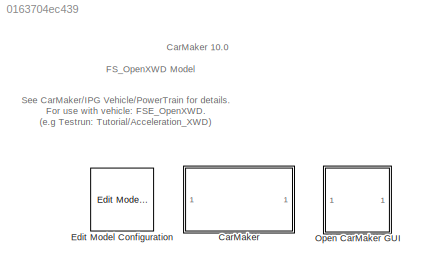
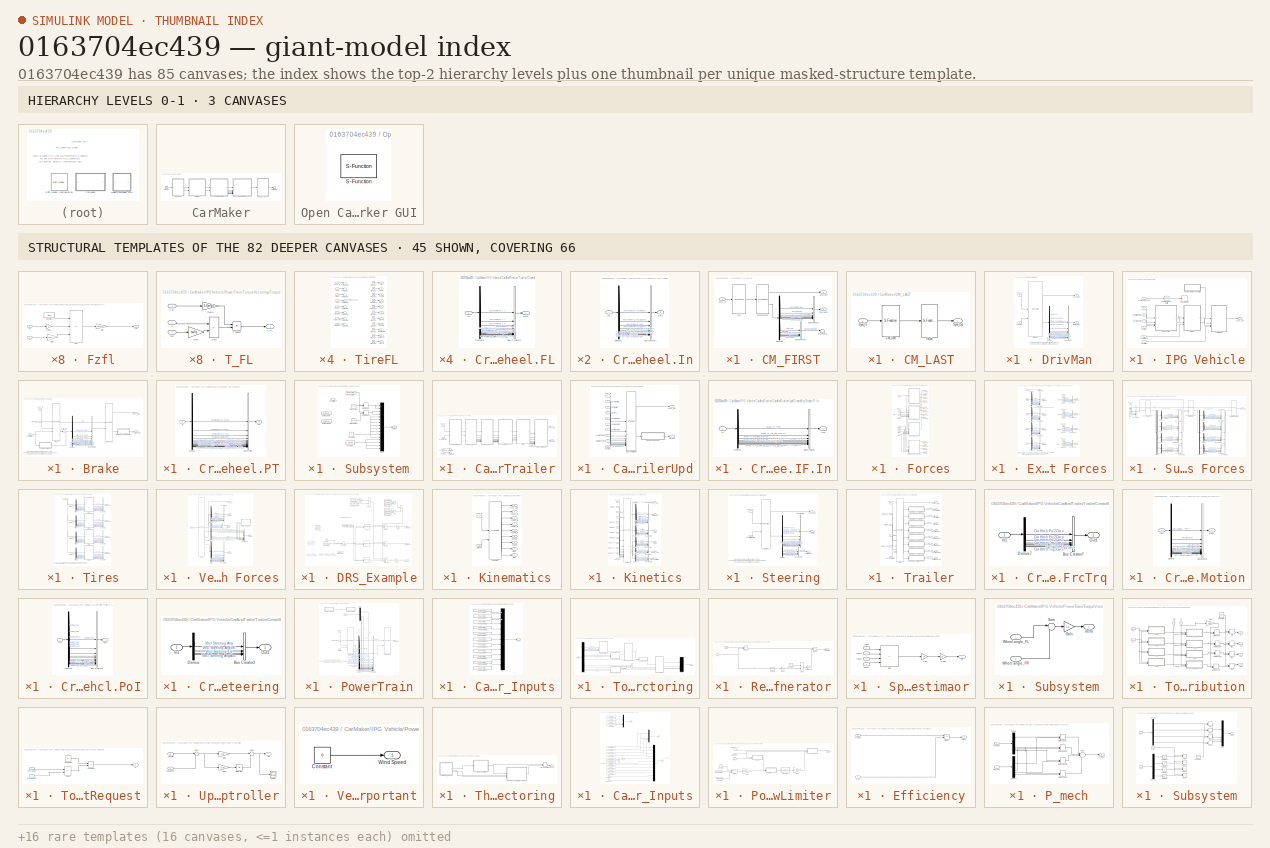
[diagram: thumbnail index - top-2 hierarchy levels (3 canvases) + 45 structural-template representatives of the remaining 82 canvases]
MODEL mdl_0163704ec439
KIND model
CONFIG AbsTol = auto
CONFIG EnableMultiTasking = on
CONFIG FixedStep = auto
CONFIG MaxStep = auto
CONFIG MinStep = auto
CONFIG PreLoadFcn = run('Parameters\FSE_Parameters.m')
CONFIG RelTol = 1e-3
CONFIG SampleTimeConstraint = Unconstrained
CONFIG SolverName = VariableStepAuto
CONFIG StartTime = 0.0
CONFIG StopTime = inf
BLOCK [SubSystem] CarMaker
  TreatAsAtomicUnit = on
BLOCK [SubSystem] CarMaker/CM_FIRST
BLOCK [BusCreator] CarMaker/CM_FIRST/BusCreator1
  InheritFromInputs = on
  Inputs = 8
BLOCK [BusCreator] CarMaker/CM_FIRST/BusCreator2
  InheritFromInputs = on
  Inputs = 6
BLOCK [Demux] CarMaker/CM_FIRST/Demux1
  DisplayOption = none
  Outputs = 14
BLOCK [Outport] CarMaker/CM_FIRST/Env.Misc
  Port = 2
BLOCK [S-Function] CarMaker/CM_FIRST/Environment
  EnableBusSupport = off
  FunctionName = CM_Sfun
  Parameters = 'Environment'
  SFcnIsStateOwnerBlock = off
  SFunctionDeploymentMode = off
BLOCK [S-Function] CarMaker/CM_FIRST/IoIn
  EnableBusSupport = off
  FunctionName = CM_Sfun
  Parameters = 'IoIn'
  SFcnIsStateOwnerBlock = off
  SFunctionDeploymentMode = off
BLOCK [Inport] CarMaker/CM_FIRST/Sync_In
BLOCK [Outport] CarMaker/CM_FIRST/Sync_Out
BLOCK [Terminator] CarMaker/CM_FIRST/Terminator
BLOCK [SubSystem] CarMaker/CM_LAST
BLOCK [S-Function] CarMaker/CM_LAST/CM_User
  EnableBusSupport = off
  FunctionName = CM_Sfun
  Parameters = 'CM_User'
  SFcnIsStateOwnerBlock = off
  SFunctionDeploymentMode = off
BLOCK [S-Function] CarMaker/CM_LAST/IoOut
  EnableBusSupport = off
  FunctionName = CM_Sfun
  Parameters = 'IoOut'
  SFcnIsStateOwnerBlock = off
  SFunctionDeploymentMode = off
BLOCK [Inport] CarMaker/CM_LAST/Sync_In
BLOCK [Outport] CarMaker/CM_LAST/Sync_Out
BLOCK [SubSystem] CarMaker/DrivMan
BLOCK [BusCreator] CarMaker/DrivMan/BusCreator
  InheritFromInputs = on
  Inputs = 17
BLOCK [Demux] CarMaker/DrivMan/Demux
  DisplayOption = none
  Outputs = 17
BLOCK [S-Function] CarMaker/DrivMan/DrivMan
  EnableBusSupport = off
  FunctionName = CM_Sfun
  Parameters = 'DrivMan'
  SFcnIsStateOwnerBlock = off
  SFunctionDeploymentMode = off
BLOCK [Outport] CarMaker/DrivMan/DrivMan.Out
  Port = 2
BLOCK [Inport] CarMaker/DrivMan/Env.Misc
  Port = 2
BLOCK [Inport] CarMaker/DrivMan/Sync_In
BLOCK [Outport] CarMaker/DrivMan/Sync_Out
BLOCK [Ground] CarMaker/Ground
BLOCK [SubSystem] CarMaker/IPG Vehicle
  TreatAsAtomicUnit = on
BLOCK [SubSystem] CarMaker/IPG Vehicle/Brake
BLOCK [S-Function] CarMaker/IPG Vehicle/Brake/Brake
  EnableBusSupport = off
  FunctionName = CM_Sfun
  Parameters = 'Brake'
  SFcnIsStateOwnerBlock = off
  SFunctionDeploymentMode = off
BLOCK [Inport] CarMaker/IPG Vehicle/Brake/Brake.IF.In
  Port = 2
BLOCK [S-Function] CarMaker/IPG Vehicle/Brake/BrakeUpd
  EnableBusSupport = off
  FunctionName = CM_Sfun
  Parameters = 'BrakeUpd'
  SFcnIsStateOwnerBlock = off
  SFunctionDeploymentMode = off
BLOCK [BusCreator] CarMaker/IPG Vehicle/Brake/BusCreator1
  InheritFromInputs = on
  Inputs = 16
BLOCK [SubSystem] CarMaker/IPG Vehicle/Brake/CreateBus Vhcl.Wheel.PT
BLOCK [BusCreator] CarMaker/IPG Vehicle/Brake/CreateBus Vhcl.Wheel.PT/BusCreator1
  InheritFromInputs = on
  Inputs = 20
BLOCK [Demux] CarMaker/IPG Vehicle/Brake/CreateBus Vhcl.Wheel.PT/Demux1
  DisplayOption = none
  Outputs = 20
BLOCK [Inport] CarMaker/IPG Vehicle/Brake/CreateBus Vhcl.Wheel.PT/In
BLOCK [Outport] CarMaker/IPG Vehicle/Brake/CreateBus Vhcl.Wheel.PT/Out
BLOCK [Demux] CarMaker/IPG Vehicle/Brake/Demux
  DisplayOption = none
  Outputs = 16
BLOCK [SubSystem] CarMaker/IPG Vehicle/Brake/Subsystem
BLOCK [Constant] CarMaker/IPG Vehicle/Brake/Subsystem/BrakeF Max
  Value = 416
BLOCK [Constant] CarMaker/IPG Vehicle/Brake/Subsystem/BrakeR Max
  Value = 176
BLOCK [Constant] CarMaker/IPG Vehicle/Brake/Subsystem/Constant
  Value = -99999
BLOCK [Constant] CarMaker/IPG Vehicle/Brake/Subsystem/Constant1
  Value = 0
BLOCK [Reference] CarMaker/IPG Vehicle/Brake/Subsystem/Define CM Dict  REF=CarMaker4SL/Define CM Dict
  SourceBlock = CarMaker4SL/Define CM Dict
  SourceProductName = CarMaker4SL
  SourceType = Define CarMaker Dictionary Variable
BLOCK [Reference] CarMaker/IPG Vehicle/Brake/Subsystem/Define CM Dict1  REF=CarMaker4SL/Define CM Dict
  SourceBlock = CarMaker4SL/Define CM Dict
  SourceProductName = CarMaker4SL
  SourceType = Define CarMaker Dictionary Variable
BLOCK [DotProduct] CarMaker/IPG Vehicle/Brake/Subsystem/Dot Product
  OutDataTypeStr = Inherit: Inherit via internal rule
BLOCK [DotProduct] CarMaker/IPG Vehicle/Brake/Subsystem/Dot Product1
  OutDataTypeStr = Inherit: Inherit via internal rule
BLOCK [Mux] CarMaker/IPG Vehicle/Brake/Subsystem/Mux
  DisplayOption = bar
  Inputs = 16
BLOCK [Outport] CarMaker/IPG Vehicle/Brake/Subsystem/Output
BLOCK [Reference] CarMaker/IPG Vehicle/Brake/Subsystem/Read CM Dict  REF=CarMaker4SL/Read CM Dict
  SourceBlock = CarMaker4SL/Read CM Dict
  SourceProductName = CarMaker4SL
  SourceType = Read CarMaker Dictionary Variable(s)
BLOCK [Inport] CarMaker/IPG Vehicle/Brake/Subsystem/VhclCtrl.Brake
BLOCK [Inport] CarMaker/IPG Vehicle/Brake/Sync_In
BLOCK [Outport] CarMaker/IPG Vehicle/Brake/Sync_Out
BLOCK [Terminator] CarMaker/IPG Vehicle/Brake/Terminator
BLOCK [Outport] CarMaker/IPG Vehicle/Brake/Vhcl.Wheel.PT
  Port = 2
BLOCK [Inport] CarMaker/IPG Vehicle/Brake/VhclCtrl.Brake
  Port = 3
BLOCK [SubSystem] CarMaker/IPG Vehicle/CarAndTrailer
BLOCK [Outport] CarMaker/IPG Vehicle/CarAndTrailer/Brake.IF.In
  Port = 2
BLOCK [SubSystem] CarMaker/IPG Vehicle/CarAndTrailer/CarAndTrailerUpd
BLOCK [Outport] CarMaker/IPG Vehicle/CarAndTrailer/CarAndTrailerUpd/Brake.IF.In
  Port = 2
BLOCK [Inport] CarMaker/IPG Vehicle/CarAndTrailer/CarAndTrailerUpd/Car.Hitch.FrcTrq
  Port = 9
BLOCK [S-Function] CarMaker/IPG Vehicle/CarAndTrailer/CarAndTrailerUpd/CarAndTrailerUpd
  EnableBusSupport = off
  FunctionName = CM_Sfun
  Parameters = 'CarAndTrUpd'
  SFcnIsStateOwnerBlock = off
  SFunctionDeploymentMode = off
BLOCK [SubSystem] CarMaker/IPG Vehicle/CarAndTrailer/CarAndTrailerUpd/CreateBus Brake.IF.In
BLOCK [BusCreator] CarMaker/IPG Vehicle/CarAndTrailer/CarAndTrailerUpd/CreateBus Brake.IF.In/BusCreator
  InheritFromInputs = on
  Inputs = 9
BLOCK [Demux] CarMaker/IPG Vehicle/CarAndTrailer/CarAndTrailerUpd/CreateBus Brake.IF.In/Demux
  DisplayOption = none
  Outputs = 9
BLOCK [Inport] CarMaker/IPG Vehicle/CarAndTrailer/CarAndTrailerUpd/CreateBus Brake.IF.In/In
BLOCK [Outport] CarMaker/IPG Vehicle/CarAndTrailer/CarAndTrailerUpd/CreateBus Brake.IF.In/Out
BLOCK [Inport] CarMaker/IPG Vehicle/CarAndTrailer/CarAndTrailerUpd/Sync_In
BLOCK [Outport] CarMaker/IPG Vehicle/CarAndTrailer/CarAndTrailerUpd/Sync_Out
BLOCK [Inport] CarMaker/IPG Vehicle/CarAndTrailer/CarAndTrailerUpd/Vhcl.Fr1A
  Port = 10
BLOCK [Inport] CarMaker/IPG Vehicle/CarAndTrailer/CarAndTrailerUpd/Vhcl.Motion
  Port = 3
BLOCK [Inport] CarMaker/IPG Vehicle/CarAndTrailer/CarAndTrailerUpd/Vhcl.PoI
  Port = 4
BLOCK [Inport] CarMaker/IPG Vehicle/CarAndTrailer/CarAndTrailerUpd/Vhcl.Steering
  Port = 2
BLOCK [Inport] CarMaker/IPG Vehicle/CarAndTrailer/CarAndTrailerUpd/Vhcl.Wheel.FL
  Port = 5
BLOCK [Inport] CarMaker/IPG Vehicle/CarAndTrailer/CarAndTrailerUpd/Vhcl.Wheel.FR
  Port = 6
BLOCK [Inport] CarMaker/IPG Vehicle/CarAndTrailer/CarAndTrailerUpd/Vhcl.Wheel.RL
  Port = 7
BLOCK [Inport] CarMaker/IPG Vehicle/CarAndTrailer/CarAndTrailerUpd/Vhcl.Wheel.RR
  Port = 8
BLOCK [SubSystem] CarMaker/IPG Vehicle/CarAndTrailer/Forces
BLOCK [Outport] CarMaker/IPG Vehicle/CarAndTrailer/Forces/Car.Aero
  Port = 3
BLOCK [Outport] CarMaker/IPG Vehicle/CarAndTrailer/Forces/Car.Load
  Port = 4
BLOCK [Outport] CarMaker/IPG Vehicle/CarAndTrailer/Forces/Car.Virtual
  Port = 2
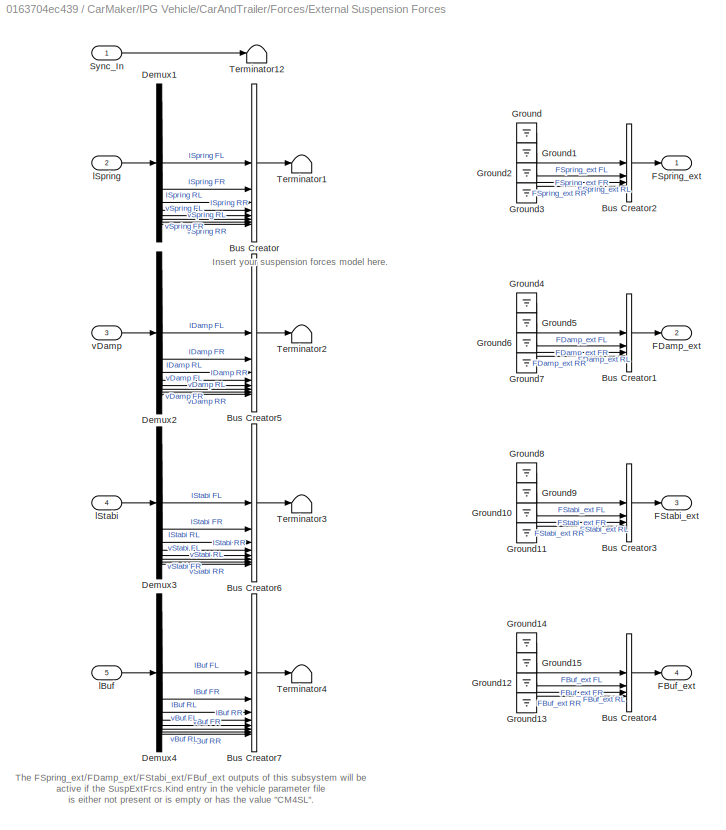
BLOCK [SubSystem] CarMaker/IPG Vehicle/CarAndTrailer/Forces/External Suspension Forces
BLOCK [BusCreator] CarMaker/IPG Vehicle/CarAndTrailer/Forces/External Suspension Forces/Bus Creator
  DisplayOption = bar
  InheritFromInputs = on
  Inputs = 8
BLOCK [BusCreator] CarMaker/IPG Vehicle/CarAndTrailer/Forces/External Suspension Forces/Bus Creator1
  DisplayOption = bar
  InheritFromInputs = on
  Inputs = 4
BLOCK [BusCreator] CarMaker/IPG Vehicle/CarAndTrailer/Forces/External Suspension Forces/Bus Creator2
  DisplayOption = bar
  InheritFromInputs = on
  Inputs = 4
BLOCK [BusCreator] CarMaker/IPG Vehicle/CarAndTrailer/Forces/External Suspension Forces/Bus Creator3
  DisplayOption = bar
  InheritFromInputs = on
  Inputs = 4
BLOCK [BusCreator] CarMaker/IPG Vehicle/CarAndTrailer/Forces/External Suspension Forces/Bus Creator4
  DisplayOption = bar
  InheritFromInputs = on
  Inputs = 4
BLOCK [BusCreator] CarMaker/IPG Vehicle/CarAndTrailer/Forces/External Suspension Forces/Bus Creator5
  DisplayOption = bar
  InheritFromInputs = on
  Inputs = 8
BLOCK [BusCreator] CarMaker/IPG Vehicle/CarAndTrailer/Forces/External Suspension Forces/Bus Creator6
  DisplayOption = bar
  InheritFromInputs = on
  Inputs = 8
BLOCK [BusCreator] CarMaker/IPG Vehicle/CarAndTrailer/Forces/External Suspension Forces/Bus Creator7
  DisplayOption = bar
  InheritFromInputs = on
  Inputs = 8
BLOCK [Demux] CarMaker/IPG Vehicle/CarAndTrailer/Forces/External Suspension Forces/Demux1
  DisplayOption = none
  Outputs = 8
BLOCK [Demux] CarMaker/IPG Vehicle/CarAndTrailer/Forces/External Suspension Forces/Demux2
  DisplayOption = none
  Outputs = 8
BLOCK [Demux] CarMaker/IPG Vehicle/CarAndTrailer/Forces/External Suspension Forces/Demux3
  DisplayOption = none
  Outputs = 8
BLOCK [Demux] CarMaker/IPG Vehicle/CarAndTrailer/Forces/External Suspension Forces/Demux4
  DisplayOption = none
  Outputs = 8
BLOCK [Outport] CarMaker/IPG Vehicle/CarAndTrailer/Forces/External Suspension Forces/FBuf_ext
  Port = 4
BLOCK [Outport] CarMaker/IPG Vehicle/CarAndTrailer/Forces/External Suspension Forces/FDamp_ext
  Port = 2
BLOCK [Outport] CarMaker/IPG Vehicle/CarAndTrailer/Forces/External Suspension Forces/FSpring_ext
BLOCK [Outport] CarMaker/IPG Vehicle/CarAndTrailer/Forces/External Suspension Forces/FStabi_ext
  Port = 3
BLOCK [Ground] CarMaker/IPG Vehicle/CarAndTrailer/Forces/External Suspension Forces/Ground
BLOCK [Ground] CarMaker/IPG Vehicle/CarAndTrailer/Forces/External Suspension Forces/Ground1
BLOCK [Ground] CarMaker/IPG Vehicle/CarAndTrailer/Forces/External Suspension Forces/Ground10
BLOCK [Ground] CarMaker/IPG Vehicle/CarAndTrailer/Forces/External Suspension Forces/Ground11
BLOCK [Ground] CarMaker/IPG Vehicle/CarAndTrailer/Forces/External Suspension Forces/Ground12
BLOCK [Ground] CarMaker/IPG Vehicle/CarAndTrailer/Forces/External Suspension Forces/Ground13
BLOCK [Ground] CarMaker/IPG Vehicle/CarAndTrailer/Forces/External Suspension Forces/Ground14
BLOCK [Ground] CarMaker/IPG Vehicle/CarAndTrailer/Forces/External Suspension Forces/Ground15
BLOCK [Ground] CarMaker/IPG Vehicle/CarAndTrailer/Forces/External Suspension Forces/Ground2
BLOCK [Ground] CarMaker/IPG Vehicle/CarAndTrailer/Forces/External Suspension Forces/Ground3
BLOCK [Ground] CarMaker/IPG Vehicle/CarAndTrailer/Forces/External Suspension Forces/Ground4
BLOCK [Ground] CarMaker/IPG Vehicle/CarAndTrailer/Forces/External Suspension Forces/Ground5
BLOCK [Ground] CarMaker/IPG Vehicle/CarAndTrailer/Forces/External Suspension Forces/Ground6
BLOCK [Ground] CarMaker/IPG Vehicle/CarAndTrailer/Forces/External Suspension Forces/Ground7
BLOCK [Ground] CarMaker/IPG Vehicle/CarAndTrailer/Forces/External Suspension Forces/Ground8
BLOCK [Ground] CarMaker/IPG Vehicle/CarAndTrailer/Forces/External Suspension Forces/Ground9
BLOCK [Inport] CarMaker/IPG Vehicle/CarAndTrailer/Forces/External Suspension Forces/Sync_In
BLOCK [Terminator] CarMaker/IPG Vehicle/CarAndTrailer/Forces/External Suspension Forces/Terminator1
BLOCK [Terminator] CarMaker/IPG Vehicle/CarAndTrailer/Forces/External Suspension Forces/Terminator12
BLOCK [Terminator] CarMaker/IPG Vehicle/CarAndTrailer/Forces/External Suspension Forces/Terminator2
BLOCK [Terminator] CarMaker/IPG Vehicle/CarAndTrailer/Forces/External Suspension Forces/Terminator3
BLOCK [Terminator] CarMaker/IPG Vehicle/CarAndTrailer/Forces/External Suspension Forces/Terminator4
BLOCK [Inport] CarMaker/IPG Vehicle/CarAndTrailer/Forces/External Suspension Forces/lBuf
  Port = 5
BLOCK [Inport] CarMaker/IPG Vehicle/CarAndTrailer/Forces/External Suspension Forces/lSpring
  Port = 2
BLOCK [Inport] CarMaker/IPG Vehicle/CarAndTrailer/Forces/External Suspension Forces/lStabi
  Port = 4
BLOCK [Inport] CarMaker/IPG Vehicle/CarAndTrailer/Forces/External Suspension Forces/vDamp
  Port = 3
BLOCK [Outport] CarMaker/IPG Vehicle/CarAndTrailer/Forces/FBuf_ext
  Port = 12
BLOCK [Outport] CarMaker/IPG Vehicle/CarAndTrailer/Forces/FDamp_ext
  Port = 10
BLOCK [Outport] CarMaker/IPG Vehicle/CarAndTrailer/Forces/FSpring_ext
  Port = 9
BLOCK [Outport] CarMaker/IPG Vehicle/CarAndTrailer/Forces/FStabi_ext
  Port = 11
BLOCK [SubSystem] CarMaker/IPG Vehicle/CarAndTrailer/Forces/Suspension Forces
BLOCK [BusCreator] CarMaker/IPG Vehicle/CarAndTrailer/Forces/Suspension Forces/Bus Creator
  DisplayOption = bar
  InheritFromInputs = on
  Inputs = 4
BLOCK [BusCreator] CarMaker/IPG Vehicle/CarAndTrailer/Forces/Suspension Forces/Bus Creator1
  DisplayOption = bar
  InheritFromInputs = on
  Inputs = 4
BLOCK [BusCreator] CarMaker/IPG Vehicle/CarAndTrailer/Forces/Suspension Forces/Bus Creator10
  DisplayOption = bar
  InheritFromInputs = on
  Inputs = 4
BLOCK [BusCreator] CarMaker/IPG Vehicle/CarAndTrailer/Forces/Suspension Forces/Bus Creator2
  DisplayOption = bar
  InheritFromInputs = on
  Inputs = 4
BLOCK [BusCreator] CarMaker/IPG Vehicle/CarAndTrailer/Forces/Suspension Forces/Bus Creator3
  DisplayOption = bar
  InheritFromInputs = on
  Inputs = 4
BLOCK [BusCreator] CarMaker/IPG Vehicle/CarAndTrailer/Forces/Suspension Forces/Bus Creator4
  DisplayOption = bar
  InheritFromInputs = on
  Inputs = 6
BLOCK [BusCreator] CarMaker/IPG Vehicle/CarAndTrailer/Forces/Suspension Forces/Bus Creator5
  DisplayOption = bar
  InheritFromInputs = on
  Inputs = 6
BLOCK [BusCreator] CarMaker/IPG Vehicle/CarAndTrailer/Forces/Suspension Forces/Bus Creator6
  DisplayOption = bar
  InheritFromInputs = on
  Inputs = 6
BLOCK [BusCreator] CarMaker/IPG Vehicle/CarAndTrailer/Forces/Suspension Forces/Bus Creator7
  DisplayOption = bar
  InheritFromInputs = on
  Inputs = 6
BLOCK [BusCreator] CarMaker/IPG Vehicle/CarAndTrailer/Forces/Suspension Forces/Bus Creator8
  DisplayOption = bar
  InheritFromInputs = on
  Inputs = 4
BLOCK [BusCreator] CarMaker/IPG Vehicle/CarAndTrailer/Forces/Suspension Forces/Bus Creator9
  DisplayOption = bar
  InheritFromInputs = on
  Inputs = 4
BLOCK [Demux] CarMaker/IPG Vehicle/CarAndTrailer/Forces/Suspension Forces/Demux
BLOCK [Demux] CarMaker/IPG Vehicle/CarAndTrailer/Forces/Suspension Forces/Demux1
BLOCK [Demux] CarMaker/IPG Vehicle/CarAndTrailer/Forces/Suspension Forces/Demux2
BLOCK [Demux] CarMaker/IPG Vehicle/CarAndTrailer/Forces/Suspension Forces/Demux3
BLOCK [Demux] CarMaker/IPG Vehicle/CarAndTrailer/Forces/Suspension Forces/Demux4
BLOCK [Demux] CarMaker/IPG Vehicle/CarAndTrailer/Forces/Suspension Forces/Demux5
BLOCK [Demux] CarMaker/IPG Vehicle/CarAndTrailer/Forces/Suspension Forces/Demux6
  Outputs = 6
BLOCK [Demux] CarMaker/IPG Vehicle/CarAndTrailer/Forces/Suspension Forces/Demux7
  Outputs = 6
BLOCK [Demux] CarMaker/IPG Vehicle/CarAndTrailer/Forces/Suspension Forces/Demux8
  Outputs = 6
BLOCK [Demux] CarMaker/IPG Vehicle/CarAndTrailer/Forces/Suspension Forces/Demux9
  Outputs = 6
BLOCK [S-Function] CarMaker/IPG Vehicle/CarAndTrailer/Forces/Suspension Forces/Suspension Control Unit
  EnableBusSupport = off
  FunctionName = CM_Sfun
  Parameters = 'ForcesSuspControl'
  SFcnIsStateOwnerBlock = off
  SFunctionDeploymentMode = off
BLOCK [S-Function] CarMaker/IPG Vehicle/CarAndTrailer/Forces/Suspension Forces/Suspension Force Elements
  EnableBusSupport = off
  FunctionName = CM_Sfun
  Parameters = 'ForcesSusp'
  SFcnIsStateOwnerBlock = off
  SFunctionDeploymentMode = off
BLOCK [S-Function] CarMaker/IPG Vehicle/CarAndTrailer/Forces/Suspension Forces/Suspension Force Elements Update
  EnableBusSupport = off
  FunctionName = CM_Sfun
  Parameters = 'ForcesSuspUpd'
  SFcnIsStateOwnerBlock = off
  SFunctionDeploymentMode = off
BLOCK [Inport] CarMaker/IPG Vehicle/CarAndTrailer/Forces/Suspension Forces/Sync_In
BLOCK [Outport] CarMaker/IPG Vehicle/CarAndTrailer/Forces/Suspension Forces/Sync_Out
BLOCK [Inport] CarMaker/IPG Vehicle/CarAndTrailer/Forces/Suspension Forces/lBuf
  Port = 5
BLOCK [Inport] CarMaker/IPG Vehicle/CarAndTrailer/Forces/Suspension Forces/lSpring
  Port = 2
BLOCK [Inport] CarMaker/IPG Vehicle/CarAndTrailer/Forces/Suspension Forces/lStabi
  Port = 4
BLOCK [Inport] CarMaker/IPG Vehicle/CarAndTrailer/Forces/Suspension Forces/vDamp
  Port = 3
BLOCK [Inport] CarMaker/IPG Vehicle/CarAndTrailer/Forces/Sync_In
BLOCK [Outport] CarMaker/IPG Vehicle/CarAndTrailer/Forces/Sync_Out
BLOCK [Inport] CarMaker/IPG Vehicle/CarAndTrailer/Forces/TireFL_In
  Port = 2
BLOCK [Outport] CarMaker/IPG Vehicle/CarAndTrailer/Forces/TireFL_Out
  Port = 5
BLOCK [Inport] CarMaker/IPG Vehicle/CarAndTrailer/Forces/TireFR_In
  Port = 3
BLOCK [Outport] CarMaker/IPG Vehicle/CarAndTrailer/Forces/TireFR_Out
  Port = 6
BLOCK [Inport] CarMaker/IPG Vehicle/CarAndTrailer/Forces/TireRL_In
  Port = 4
BLOCK [Outport] CarMaker/IPG Vehicle/CarAndTrailer/Forces/TireRL_Out
  Port = 7
BLOCK [Inport] CarMaker/IPG Vehicle/CarAndTrailer/Forces/TireRR_In
  Port = 5
BLOCK [Outport] CarMaker/IPG Vehicle/CarAndTrailer/Forces/TireRR_Out
  Port = 8
BLOCK [SubSystem] CarMaker/IPG Vehicle/CarAndTrailer/Forces/Tires
BLOCK [BusCreator] CarMaker/IPG Vehicle/CarAndTrailer/Forces/Tires/Bus Creator1
  DisplayOption = bar
  InheritFromInputs = on
  Inputs = 11
BLOCK [BusCreator] CarMaker/IPG Vehicle/CarAndTrailer/Forces/Tires/Bus Creator2
  DisplayOption = bar
  InheritFromInputs = on
  Inputs = 11
BLOCK [BusCreator] CarMaker/IPG Vehicle/CarAndTrailer/Forces/Tires/Bus Creator3
  DisplayOption = bar
  InheritFromInputs = on
  Inputs = 11
BLOCK [BusCreator] CarMaker/IPG Vehicle/CarAndTrailer/Forces/Tires/Bus Creator4
  DisplayOption = bar
  InheritFromInputs = on
  Inputs = 11
BLOCK [Demux] CarMaker/IPG Vehicle/CarAndTrailer/Forces/Tires/Demux1
  DisplayOption = none
  Outputs = 7
BLOCK [Demux] CarMaker/IPG Vehicle/CarAndTrailer/Forces/Tires/Demux2
  DisplayOption = none
  Outputs = 7
BLOCK [Demux] CarMaker/IPG Vehicle/CarAndTrailer/Forces/Tires/Demux3
  DisplayOption = none
  Outputs = 7
BLOCK [Demux] CarMaker/IPG Vehicle/CarAndTrailer/Forces/Tires/Demux8
  DisplayOption = none
  Outputs = 7
BLOCK [Inport] CarMaker/IPG Vehicle/CarAndTrailer/Forces/Tires/Sync_In
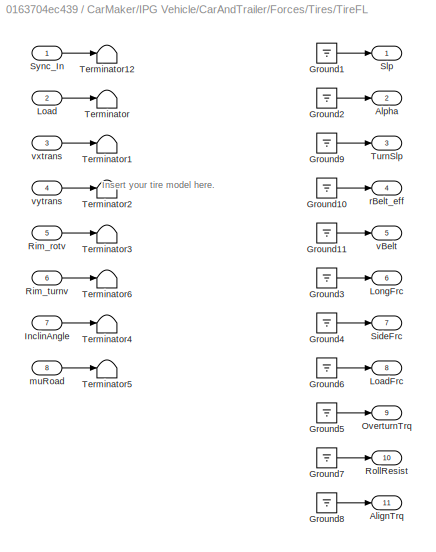
BLOCK [SubSystem] CarMaker/IPG Vehicle/CarAndTrailer/Forces/Tires/TireFL
BLOCK [Outport] CarMaker/IPG Vehicle/CarAndTrailer/Forces/Tires/TireFL/AlignTrq
  Port = 11
BLOCK [Outport] CarMaker/IPG Vehicle/CarAndTrailer/Forces/Tires/TireFL/Alpha
  Port = 2
BLOCK [Ground] CarMaker/IPG Vehicle/CarAndTrailer/Forces/Tires/TireFL/Ground1
BLOCK [Ground] CarMaker/IPG Vehicle/CarAndTrailer/Forces/Tires/TireFL/Ground10
BLOCK [Ground] CarMaker/IPG Vehicle/CarAndTrailer/Forces/Tires/TireFL/Ground11
BLOCK [Ground] CarMaker/IPG Vehicle/CarAndTrailer/Forces/Tires/TireFL/Ground2
BLOCK [Ground] CarMaker/IPG Vehicle/CarAndTrailer/Forces/Tires/TireFL/Ground3
BLOCK [Ground] CarMaker/IPG Vehicle/CarAndTrailer/Forces/Tires/TireFL/Ground4
BLOCK [Ground] CarMaker/IPG Vehicle/CarAndTrailer/Forces/Tires/TireFL/Ground5
BLOCK [Ground] CarMaker/IPG Vehicle/CarAndTrailer/Forces/Tires/TireFL/Ground6
BLOCK [Ground] CarMaker/IPG Vehicle/CarAndTrailer/Forces/Tires/TireFL/Ground7
BLOCK [Ground] CarMaker/IPG Vehicle/CarAndTrailer/Forces/Tires/TireFL/Ground8
BLOCK [Ground] CarMaker/IPG Vehicle/CarAndTrailer/Forces/Tires/TireFL/Ground9
BLOCK [Inport] CarMaker/IPG Vehicle/CarAndTrailer/Forces/Tires/TireFL/InclinAngle
  Port = 7
BLOCK [Inport] CarMaker/IPG Vehicle/CarAndTrailer/Forces/Tires/TireFL/Load
  Port = 2
BLOCK [Outport] CarMaker/IPG Vehicle/CarAndTrailer/Forces/Tires/TireFL/LoadFrc
  Port = 8
BLOCK [Outport] CarMaker/IPG Vehicle/CarAndTrailer/Forces/Tires/TireFL/LongFrc
  Port = 6
BLOCK [Outport] CarMaker/IPG Vehicle/CarAndTrailer/Forces/Tires/TireFL/OverturnTrq
  Port = 9
BLOCK [Inport] CarMaker/IPG Vehicle/CarAndTrailer/Forces/Tires/TireFL/Rim_rotv
  Port = 5
BLOCK [Inport] CarMaker/IPG Vehicle/CarAndTrailer/Forces/Tires/TireFL/Rim_turnv
  Port = 6
BLOCK [Outport] CarMaker/IPG Vehicle/CarAndTrailer/Forces/Tires/TireFL/RollResist
  Port = 10
BLOCK [Outport] CarMaker/IPG Vehicle/CarAndTrailer/Forces/Tires/TireFL/SideFrc
  Port = 7
BLOCK [Outport] CarMaker/IPG Vehicle/CarAndTrailer/Forces/Tires/TireFL/Slp
BLOCK [Inport] CarMaker/IPG Vehicle/CarAndTrailer/Forces/Tires/TireFL/Sync_In
BLOCK [Terminator] CarMaker/IPG Vehicle/CarAndTrailer/Forces/Tires/TireFL/Terminator
BLOCK [Terminator] CarMaker/IPG Vehicle/CarAndTrailer/Forces/Tires/TireFL/Terminator1
BLOCK [Terminator] CarMaker/IPG Vehicle/CarAndTrailer/Forces/Tires/TireFL/Terminator12
BLOCK [Terminator] CarMaker/IPG Vehicle/CarAndTrailer/Forces/Tires/TireFL/Terminator2
BLOCK [Terminator] CarMaker/IPG Vehicle/CarAndTrailer/Forces/Tires/TireFL/Terminator3
BLOCK [Terminator] CarMaker/IPG Vehicle/CarAndTrailer/Forces/Tires/TireFL/Terminator4
BLOCK [Terminator] CarMaker/IPG Vehicle/CarAndTrailer/Forces/Tires/TireFL/Terminator5
BLOCK [Terminator] CarMaker/IPG Vehicle/CarAndTrailer/Forces/Tires/TireFL/Terminator6
BLOCK [Outport] CarMaker/IPG Vehicle/CarAndTrailer/Forces/Tires/TireFL/TurnSlp
  Port = 3
BLOCK [Inport] CarMaker/IPG Vehicle/CarAndTrailer/Forces/Tires/TireFL/muRoad
  Port = 8
BLOCK [Outport] CarMaker/IPG Vehicle/CarAndTrailer/Forces/Tires/TireFL/rBelt_eff
  Port = 4
BLOCK [Outport] CarMaker/IPG Vehicle/CarAndTrailer/Forces/Tires/TireFL/vBelt
  Port = 5
BLOCK [Inport] CarMaker/IPG Vehicle/CarAndTrailer/Forces/Tires/TireFL/vxtrans
  Port = 3
BLOCK [Inport] CarMaker/IPG Vehicle/CarAndTrailer/Forces/Tires/TireFL/vytrans
  Port = 4
BLOCK [Inport] CarMaker/IPG Vehicle/CarAndTrailer/Forces/Tires/TireFL_In
  Port = 2
BLOCK [Outport] CarMaker/IPG Vehicle/CarAndTrailer/Forces/Tires/TireFL_Out
BLOCK [SubSystem] CarMaker/IPG Vehicle/CarAndTrailer/Forces/Tires/TireFR
BLOCK [Outport] CarMaker/IPG Vehicle/CarAndTrailer/Forces/Tires/TireFR/AlignTrq
  Port = 11
BLOCK [Outport] CarMaker/IPG Vehicle/CarAndTrailer/Forces/Tires/TireFR/Alpha
  Port = 2
BLOCK [Ground] CarMaker/IPG Vehicle/CarAndTrailer/Forces/Tires/TireFR/Ground1
BLOCK [Ground] CarMaker/IPG Vehicle/CarAndTrailer/Forces/Tires/TireFR/Ground10
BLOCK [Ground] CarMaker/IPG Vehicle/CarAndTrailer/Forces/Tires/TireFR/Ground11
BLOCK [Ground] CarMaker/IPG Vehicle/CarAndTrailer/Forces/Tires/TireFR/Ground2
BLOCK [Ground] CarMaker/IPG Vehicle/CarAndTrailer/Forces/Tires/TireFR/Ground3
BLOCK [Ground] CarMaker/IPG Vehicle/CarAndTrailer/Forces/Tires/TireFR/Ground4
BLOCK [Ground] CarMaker/IPG Vehicle/CarAndTrailer/Forces/Tires/TireFR/Ground5
BLOCK [Ground] CarMaker/IPG Vehicle/CarAndTrailer/Forces/Tires/TireFR/Ground6
BLOCK [Ground] CarMaker/IPG Vehicle/CarAndTrailer/Forces/Tires/TireFR/Ground7
BLOCK [Ground] CarMaker/IPG Vehicle/CarAndTrailer/Forces/Tires/TireFR/Ground8
BLOCK [Ground] CarMaker/IPG Vehicle/CarAndTrailer/Forces/Tires/TireFR/Ground9
BLOCK [Inport] CarMaker/IPG Vehicle/CarAndTrailer/Forces/Tires/TireFR/InclinAngle
  Port = 7
BLOCK [Inport] CarMaker/IPG Vehicle/CarAndTrailer/Forces/Tires/TireFR/Load
  Port = 2
BLOCK [Outport] CarMaker/IPG Vehicle/CarAndTrailer/Forces/Tires/TireFR/LoadFrc
  Port = 8
BLOCK [Outport] CarMaker/IPG Vehicle/CarAndTrailer/Forces/Tires/TireFR/LongFrc
  Port = 6
BLOCK [Outport] CarMaker/IPG Vehicle/CarAndTrailer/Forces/Tires/TireFR/OverturnTrq
  Port = 9
BLOCK [Inport] CarMaker/IPG Vehicle/CarAndTrailer/Forces/Tires/TireFR/Rim_rotv
  Port = 5
BLOCK [Inport] CarMaker/IPG Vehicle/CarAndTrailer/Forces/Tires/TireFR/Rim_turnv
  Port = 6
BLOCK [Outport] CarMaker/IPG Vehicle/CarAndTrailer/Forces/Tires/TireFR/RollResist
  Port = 10
BLOCK [Outport] CarMaker/IPG Vehicle/CarAndTrailer/Forces/Tires/TireFR/SideFrc
  Port = 7
BLOCK [Outport] CarMaker/IPG Vehicle/CarAndTrailer/Forces/Tires/TireFR/Slp
BLOCK [Inport] CarMaker/IPG Vehicle/CarAndTrailer/Forces/Tires/TireFR/Sync_In
BLOCK [Terminator] CarMaker/IPG Vehicle/CarAndTrailer/Forces/Tires/TireFR/Terminator
BLOCK [Terminator] CarMaker/IPG Vehicle/CarAndTrailer/Forces/Tires/TireFR/Terminator1
BLOCK [Terminator] CarMaker/IPG Vehicle/CarAndTrailer/Forces/Tires/TireFR/Terminator12
BLOCK [Terminator] CarMaker/IPG Vehicle/CarAndTrailer/Forces/Tires/TireFR/Terminator2
BLOCK [Terminator] CarMaker/IPG Vehicle/CarAndTrailer/Forces/Tires/TireFR/Terminator3
BLOCK [Terminator] CarMaker/IPG Vehicle/CarAndTrailer/Forces/Tires/TireFR/Terminator4
BLOCK [Terminator] CarMaker/IPG Vehicle/CarAndTrailer/Forces/Tires/TireFR/Terminator5
BLOCK [Terminator] CarMaker/IPG Vehicle/CarAndTrailer/Forces/Tires/TireFR/Terminator6
BLOCK [Outport] CarMaker/IPG Vehicle/CarAndTrailer/Forces/Tires/TireFR/TurnSlp
  Port = 3
BLOCK [Inport] CarMaker/IPG Vehicle/CarAndTrailer/Forces/Tires/TireFR/muRoad
  Port = 8
BLOCK [Outport] CarMaker/IPG Vehicle/CarAndTrailer/Forces/Tires/TireFR/rBelt_eff
  Port = 4
BLOCK [Outport] CarMaker/IPG Vehicle/CarAndTrailer/Forces/Tires/TireFR/vBelt
  Port = 5
BLOCK [Inport] CarMaker/IPG Vehicle/CarAndTrailer/Forces/Tires/TireFR/vxtrans
  Port = 3
BLOCK [Inport] CarMaker/IPG Vehicle/CarAndTrailer/Forces/Tires/TireFR/vytrans
  Port = 4
BLOCK [Inport] CarMaker/IPG Vehicle/CarAndTrailer/Forces/Tires/TireFR_In
  Port = 3
BLOCK [Outport] CarMaker/IPG Vehicle/CarAndTrailer/Forces/Tires/TireFR_Out
  Port = 2
BLOCK [SubSystem] CarMaker/IPG Vehicle/CarAndTrailer/Forces/Tires/TireRL
BLOCK [Outport] CarMaker/IPG Vehicle/CarAndTrailer/Forces/Tires/TireRL/AlignTrq
  Port = 11
BLOCK [Outport] CarMaker/IPG Vehicle/CarAndTrailer/Forces/Tires/TireRL/Alpha
  Port = 2
BLOCK [Ground] CarMaker/IPG Vehicle/CarAndTrailer/Forces/Tires/TireRL/Ground1
BLOCK [Ground] CarMaker/IPG Vehicle/CarAndTrailer/Forces/Tires/TireRL/Ground10
BLOCK [Ground] CarMaker/IPG Vehicle/CarAndTrailer/Forces/Tires/TireRL/Ground11
BLOCK [Ground] CarMaker/IPG Vehicle/CarAndTrailer/Forces/Tires/TireRL/Ground2
BLOCK [Ground] CarMaker/IPG Vehicle/CarAndTrailer/Forces/Tires/TireRL/Ground3
BLOCK [Ground] CarMaker/IPG Vehicle/CarAndTrailer/Forces/Tires/TireRL/Ground4
BLOCK [Ground] CarMaker/IPG Vehicle/CarAndTrailer/Forces/Tires/TireRL/Ground5
BLOCK [Ground] CarMaker/IPG Vehicle/CarAndTrailer/Forces/Tires/TireRL/Ground6
BLOCK [Ground] CarMaker/IPG Vehicle/CarAndTrailer/Forces/Tires/TireRL/Ground7
BLOCK [Ground] CarMaker/IPG Vehicle/CarAndTrailer/Forces/Tires/TireRL/Ground8
BLOCK [Ground] CarMaker/IPG Vehicle/CarAndTrailer/Forces/Tires/TireRL/Ground9
BLOCK [Inport] CarMaker/IPG Vehicle/CarAndTrailer/Forces/Tires/TireRL/InclinAngle
  Port = 7
BLOCK [Inport] CarMaker/IPG Vehicle/CarAndTrailer/Forces/Tires/TireRL/Load
  Port = 2
BLOCK [Outport] CarMaker/IPG Vehicle/CarAndTrailer/Forces/Tires/TireRL/LoadFrc
  Port = 8
BLOCK [Outport] CarMaker/IPG Vehicle/CarAndTrailer/Forces/Tires/TireRL/LongFrc
  Port = 6
BLOCK [Outport] CarMaker/IPG Vehicle/CarAndTrailer/Forces/Tires/TireRL/OverturnTrq
  Port = 9
BLOCK [Inport] CarMaker/IPG Vehicle/CarAndTrailer/Forces/Tires/TireRL/Rim_rotv
  Port = 5
BLOCK [Inport] CarMaker/IPG Vehicle/CarAndTrailer/Forces/Tires/TireRL/Rim_turnv
  Port = 6
BLOCK [Outport] CarMaker/IPG Vehicle/CarAndTrailer/Forces/Tires/TireRL/RollResist
  Port = 10
BLOCK [Outport] CarMaker/IPG Vehicle/CarAndTrailer/Forces/Tires/TireRL/SideFrc
  Port = 7
BLOCK [Outport] CarMaker/IPG Vehicle/CarAndTrailer/Forces/Tires/TireRL/Slp
BLOCK [Inport] CarMaker/IPG Vehicle/CarAndTrailer/Forces/Tires/TireRL/Sync_In
BLOCK [Terminator] CarMaker/IPG Vehicle/CarAndTrailer/Forces/Tires/TireRL/Terminator
BLOCK [Terminator] CarMaker/IPG Vehicle/CarAndTrailer/Forces/Tires/TireRL/Terminator1
BLOCK [Terminator] CarMaker/IPG Vehicle/CarAndTrailer/Forces/Tires/TireRL/Terminator12
BLOCK [Terminator] CarMaker/IPG Vehicle/CarAndTrailer/Forces/Tires/TireRL/Terminator2
BLOCK [Terminator] CarMaker/IPG Vehicle/CarAndTrailer/Forces/Tires/TireRL/Terminator3
BLOCK [Terminator] CarMaker/IPG Vehicle/CarAndTrailer/Forces/Tires/TireRL/Terminator4
BLOCK [Terminator] CarMaker/IPG Vehicle/CarAndTrailer/Forces/Tires/TireRL/Terminator5
BLOCK [Terminator] CarMaker/IPG Vehicle/CarAndTrailer/Forces/Tires/TireRL/Terminator6
BLOCK [Outport] CarMaker/IPG Vehicle/CarAndTrailer/Forces/Tires/TireRL/TurnSlp
  Port = 3
BLOCK [Inport] CarMaker/IPG Vehicle/CarAndTrailer/Forces/Tires/TireRL/muRoad
  Port = 8
BLOCK [Outport] CarMaker/IPG Vehicle/CarAndTrailer/Forces/Tires/TireRL/rBelt_eff
  Port = 4
BLOCK [Outport] CarMaker/IPG Vehicle/CarAndTrailer/Forces/Tires/TireRL/vBelt
  Port = 5
BLOCK [Inport] CarMaker/IPG Vehicle/CarAndTrailer/Forces/Tires/TireRL/vxtrans
  Port = 3
BLOCK [Inport] CarMaker/IPG Vehicle/CarAndTrailer/Forces/Tires/TireRL/vytrans
  Port = 4
BLOCK [Inport] CarMaker/IPG Vehicle/CarAndTrailer/Forces/Tires/TireRL_In
  Port = 4
BLOCK [Outport] CarMaker/IPG Vehicle/CarAndTrailer/Forces/Tires/TireRL_Out
  Port = 3
BLOCK [SubSystem] CarMaker/IPG Vehicle/CarAndTrailer/Forces/Tires/TireRR
BLOCK [Outport] CarMaker/IPG Vehicle/CarAndTrailer/Forces/Tires/TireRR/AlignTrq
  Port = 11
BLOCK [Outport] CarMaker/IPG Vehicle/CarAndTrailer/Forces/Tires/TireRR/Alpha
  Port = 2
BLOCK [Ground] CarMaker/IPG Vehicle/CarAndTrailer/Forces/Tires/TireRR/Ground1
BLOCK [Ground] CarMaker/IPG Vehicle/CarAndTrailer/Forces/Tires/TireRR/Ground10
BLOCK [Ground] CarMaker/IPG Vehicle/CarAndTrailer/Forces/Tires/TireRR/Ground11
BLOCK [Ground] CarMaker/IPG Vehicle/CarAndTrailer/Forces/Tires/TireRR/Ground2
BLOCK [Ground] CarMaker/IPG Vehicle/CarAndTrailer/Forces/Tires/TireRR/Ground3
BLOCK [Ground] CarMaker/IPG Vehicle/CarAndTrailer/Forces/Tires/TireRR/Ground4
BLOCK [Ground] CarMaker/IPG Vehicle/CarAndTrailer/Forces/Tires/TireRR/Ground5
BLOCK [Ground] CarMaker/IPG Vehicle/CarAndTrailer/Forces/Tires/TireRR/Ground6
BLOCK [Ground] CarMaker/IPG Vehicle/CarAndTrailer/Forces/Tires/TireRR/Ground7
BLOCK [Ground] CarMaker/IPG Vehicle/CarAndTrailer/Forces/Tires/TireRR/Ground8
BLOCK [Ground] CarMaker/IPG Vehicle/CarAndTrailer/Forces/Tires/TireRR/Ground9
BLOCK [Inport] CarMaker/IPG Vehicle/CarAndTrailer/Forces/Tires/TireRR/InclinAngle
  Port = 7
BLOCK [Inport] CarMaker/IPG Vehicle/CarAndTrailer/Forces/Tires/TireRR/Load
  Port = 2
BLOCK [Outport] CarMaker/IPG Vehicle/CarAndTrailer/Forces/Tires/TireRR/LoadFrc
  Port = 8
BLOCK [Outport] CarMaker/IPG Vehicle/CarAndTrailer/Forces/Tires/TireRR/LongFrc
  Port = 6
BLOCK [Outport] CarMaker/IPG Vehicle/CarAndTrailer/Forces/Tires/TireRR/OverturnTrq
  Port = 9
BLOCK [Inport] CarMaker/IPG Vehicle/CarAndTrailer/Forces/Tires/TireRR/Rim_rotv
  Port = 5
BLOCK [Inport] CarMaker/IPG Vehicle/CarAndTrailer/Forces/Tires/TireRR/Rim_turnv
  Port = 6
BLOCK [Outport] CarMaker/IPG Vehicle/CarAndTrailer/Forces/Tires/TireRR/RollResist
  Port = 10
BLOCK [Outport] CarMaker/IPG Vehicle/CarAndTrailer/Forces/Tires/TireRR/SideFrc
  Port = 7
BLOCK [Outport] CarMaker/IPG Vehicle/CarAndTrailer/Forces/Tires/TireRR/Slp
BLOCK [Inport] CarMaker/IPG Vehicle/CarAndTrailer/Forces/Tires/TireRR/Sync_In
BLOCK [Terminator] CarMaker/IPG Vehicle/CarAndTrailer/Forces/Tires/TireRR/Terminator
BLOCK [Terminator] CarMaker/IPG Vehicle/CarAndTrailer/Forces/Tires/TireRR/Terminator1
BLOCK [Terminator] CarMaker/IPG Vehicle/CarAndTrailer/Forces/Tires/TireRR/Terminator12
BLOCK [Terminator] CarMaker/IPG Vehicle/CarAndTrailer/Forces/Tires/TireRR/Terminator2
BLOCK [Terminator] CarMaker/IPG Vehicle/CarAndTrailer/Forces/Tires/TireRR/Terminator3
BLOCK [Terminator] CarMaker/IPG Vehicle/CarAndTrailer/Forces/Tires/TireRR/Terminator4
BLOCK [Terminator] CarMaker/IPG Vehicle/CarAndTrailer/Forces/Tires/TireRR/Terminator5
BLOCK [Terminator] CarMaker/IPG Vehicle/CarAndTrailer/Forces/Tires/TireRR/Terminator6
BLOCK [Outport] CarMaker/IPG Vehicle/CarAndTrailer/Forces/Tires/TireRR/TurnSlp
  Port = 3
BLOCK [Inport] CarMaker/IPG Vehicle/CarAndTrailer/Forces/Tires/TireRR/muRoad
  Port = 8
BLOCK [Outport] CarMaker/IPG Vehicle/CarAndTrailer/Forces/Tires/TireRR/rBelt_eff
  Port = 4
BLOCK [Outport] CarMaker/IPG Vehicle/CarAndTrailer/Forces/Tires/TireRR/vBelt
  Port = 5
BLOCK [Inport] CarMaker/IPG Vehicle/CarAndTrailer/Forces/Tires/TireRR/vxtrans
  Port = 3
BLOCK [Inport] CarMaker/IPG Vehicle/CarAndTrailer/Forces/Tires/TireRR/vytrans
  Port = 4
BLOCK [Inport] CarMaker/IPG Vehicle/CarAndTrailer/Forces/Tires/TireRR_In
  Port = 5
BLOCK [Outport] CarMaker/IPG Vehicle/CarAndTrailer/Forces/Tires/TireRR_Out
  Port = 4
BLOCK [SubSystem] CarMaker/IPG Vehicle/CarAndTrailer/Forces/Vehicle Forces
BLOCK [BusCreator] CarMaker/IPG Vehicle/CarAndTrailer/Forces/Vehicle Forces/Bus Creator1
  DisplayOption = bar
  InheritFromInputs = on
  Inputs = 12
BLOCK [BusCreator] CarMaker/IPG Vehicle/CarAndTrailer/Forces/Vehicle Forces/Bus Creator8
  DisplayOption = bar
  InheritFromInputs = on
  Inputs = 16
BLOCK [BusCreator] CarMaker/IPG Vehicle/CarAndTrailer/Forces/Vehicle Forces/BusCreator1
  InheritFromInputs = on
  Inputs = 4
BLOCK [BusCreator] CarMaker/IPG Vehicle/CarAndTrailer/Forces/Vehicle Forces/BusCreator2
  InheritFromInputs = on
  Inputs = 9
BLOCK [Outport] CarMaker/IPG Vehicle/CarAndTrailer/Forces/Vehicle Forces/Car.Aero
  Port = 3
BLOCK [Outport] CarMaker/IPG Vehicle/CarAndTrailer/Forces/Vehicle Forces/Car.Load
  Port = 4
BLOCK [Outport] CarMaker/IPG Vehicle/CarAndTrailer/Forces/Vehicle Forces/Car.Virtual
  Port = 2
BLOCK [SubSystem] CarMaker/IPG Vehicle/CarAndTrailer/Forces/Vehicle Forces/DRS_Example
  NameLocation = top
BLOCK [Outport] CarMaker/IPG Vehicle/CarAndTrailer/Forces/Vehicle Forces/DRS_Example/Car Aero Frc_1x
  VectorParamsAs1DForOutWhenUnconnected = off
BLOCK [Outport] CarMaker/IPG Vehicle/CarAndTrailer/Forces/Vehicle Forces/DRS_Example/Car Aero Frc_1y
  Port = 2
  VectorParamsAs1DForOutWhenUnconnected = off
BLOCK [Outport] CarMaker/IPG Vehicle/CarAndTrailer/Forces/Vehicle Forces/DRS_Example/Car Aero Frc_1z
  Port = 3
  VectorParamsAs1DForOutWhenUnconnected = off
BLOCK [Constant] CarMaker/IPG Vehicle/CarAndTrailer/Forces/Vehicle Forces/DRS_Example/Constant
  Value = 0
BLOCK [Reference] CarMaker/IPG Vehicle/CarAndTrailer/Forces/Vehicle Forces/DRS_Example/Define CM Dict  REF=CarMaker4SL/Define CM Dict
  SourceBlock = CarMaker4SL/Define CM Dict
  SourceProductName = CarMaker4SL
  SourceType = Define CarMaker Dictionary Variable
BLOCK [Gain] CarMaker/IPG Vehicle/CarAndTrailer/Forces/Vehicle Forces/DRS_Example/Gain1
  Gain = 1/2
BLOCK [Gain] CarMaker/IPG Vehicle/CarAndTrailer/Forces/Vehicle Forces/DRS_Example/Gain2
  Gain = -1
BLOCK [Gain] CarMaker/IPG Vehicle/CarAndTrailer/Forces/Vehicle Forces/DRS_Example/Gain4
  Gain = -1
BLOCK [ManualSwitch] CarMaker/IPG Vehicle/CarAndTrailer/Forces/Vehicle Forces/DRS_Example/Manual Switch
BLOCK [Product] CarMaker/IPG Vehicle/CarAndTrailer/Forces/Vehicle Forces/DRS_Example/Product1
  Inputs = 3
  RndMeth = Zero
BLOCK [Product] CarMaker/IPG Vehicle/CarAndTrailer/Forces/Vehicle Forces/DRS_Example/Product2
  RndMeth = Zero
BLOCK [Product] CarMaker/IPG Vehicle/CarAndTrailer/Forces/Vehicle Forces/DRS_Example/Product3
  Inputs = 3
  RndMeth = Zero
BLOCK [Product] CarMaker/IPG Vehicle/CarAndTrailer/Forces/Vehicle Forces/DRS_Example/Product4
  Inputs = 3
  RndMeth = Zero
BLOCK [Reference] CarMaker/IPG Vehicle/CarAndTrailer/Forces/Vehicle Forces/DRS_Example/Read CM Dict  REF=CarMaker4SL/Read CM Dict
  SourceBlock = CarMaker4SL/Read CM Dict
  SourceProductName = CarMaker4SL
  SourceType = Read CarMaker Dictionary Variable(s)
BLOCK [Reference] CarMaker/IPG Vehicle/CarAndTrailer/Forces/Vehicle Forces/DRS_Example/Read CM Dict1  REF=CarMaker4SL/Read CM Dict
  SourceBlock = CarMaker4SL/Read CM Dict
  SourceProductName = CarMaker4SL
  SourceType = Read CarMaker Dictionary Variable(s)
BLOCK [Reference] CarMaker/IPG Vehicle/CarAndTrailer/Forces/Vehicle Forces/DRS_Example/Read CM Dict2  REF=CarMaker4SL/Read CM Dict
  SourceBlock = CarMaker4SL/Read CM Dict
  SourceProductName = CarMaker4SL
  SourceType = Read CarMaker Dictionary Variable(s)
BLOCK [Reference] CarMaker/IPG Vehicle/CarAndTrailer/Forces/Vehicle Forces/DRS_Example/Read CM Dict3  REF=CarMaker4SL/Read CM Dict
  SourceBlock = CarMaker4SL/Read CM Dict
  SourceProductName = CarMaker4SL
  SourceType = Read CarMaker Dictionary Variable(s)
BLOCK [Reference] CarMaker/IPG Vehicle/CarAndTrailer/Forces/Vehicle Forces/DRS_Example/Read CM Dict4  REF=CarMaker4SL/Read CM Dict
  SourceBlock = CarMaker4SL/Read CM Dict
  SourceProductName = CarMaker4SL
  SourceType = Read CarMaker Dictionary Variable(s)
BLOCK [Reference] CarMaker/IPG Vehicle/CarAndTrailer/Forces/Vehicle Forces/DRS_Example/Read CM Dict5  REF=CarMaker4SL/Read CM Dict
  SourceBlock = CarMaker4SL/Read CM Dict
  SourceProductName = CarMaker4SL
  SourceType = Read CarMaker Dictionary Variable(s)
BLOCK [Reference] CarMaker/IPG Vehicle/CarAndTrailer/Forces/Vehicle Forces/DRS_Example/Read CM Dict6  REF=CarMaker4SL/Read CM Dict
  SourceBlock = CarMaker4SL/Read CM Dict
  SourceProductName = CarMaker4SL
  SourceType = Read CarMaker Dictionary Variable(s)
BLOCK [Reference] CarMaker/IPG Vehicle/CarAndTrailer/Forces/Vehicle Forces/DRS_Example/Read CM Parameter  REF=CarMaker4SL/Read CM Parameter
  SourceBlock = CarMaker4SL/Read CM Parameter
  SourceProductName = CarMaker4SL
  SourceType = Read CarMaker Infofile Parameter
BLOCK [Sum] CarMaker/IPG Vehicle/CarAndTrailer/Forces/Vehicle Forces/DRS_Example/Sum
  Inputs = |++
BLOCK [Lookup_n-D] CarMaker/IPG Vehicle/CarAndTrailer/Forces/Vehicle Forces/DRS_Example/cD
  BreakpointsForDimension1 = AeroFD(2:end, 1)
  BreakpointsForDimension2 = AeroFD(1, 2:end)
  InputPortMap = u0,u1
  RndMeth = Simplest
  Table = AeroFD(2:end, 2:end)
BLOCK [Lookup_n-D] CarMaker/IPG Vehicle/CarAndTrailer/Forces/Vehicle Forces/DRS_Example/cL
  BreakpointsForDimension1 = AeroFL(2:end, 1)
  BreakpointsForDimension2 = AeroFL(1, 2:end)
  InputPortMap = u0,u1
  RndMeth = Simplest
  Table = AeroFL(2:end, 2:end)
BLOCK [Lookup_n-D] CarMaker/IPG Vehicle/CarAndTrailer/Forces/Vehicle Forces/DRS_Example/cS
  BreakpointsForDimension1 = AeroFS(2:end, 1)
  BreakpointsForDimension2 = AeroFS(1, 2:end)
  InputPortMap = u0,u1
  RndMeth = Simplest
  Table = AeroFS(2:end, 2:end)
BLOCK [Gain] CarMaker/IPG Vehicle/CarAndTrailer/Forces/Vehicle Forces/DRS_Example/rad2deg
  Gain = 180/pi
BLOCK [Product] CarMaker/IPG Vehicle/CarAndTrailer/Forces/Vehicle Forces/DRS_Example/vx²
  RndMeth = Zero
BLOCK [Product] CarMaker/IPG Vehicle/CarAndTrailer/Forces/Vehicle Forces/DRS_Example/vy²
  RndMeth = Zero
BLOCK [Demux] CarMaker/IPG Vehicle/CarAndTrailer/Forces/Vehicle Forces/Demux
  DisplayOption = none
  Outputs = 16
BLOCK [Demux] CarMaker/IPG Vehicle/CarAndTrailer/Forces/Vehicle Forces/Demux1
  DisplayOption = none
  Outputs = 12
BLOCK [Demux] CarMaker/IPG Vehicle/CarAndTrailer/Forces/Vehicle Forces/Demux2
  DisplayOption = none
  Outputs = 13
BLOCK [S-Function] CarMaker/IPG Vehicle/CarAndTrailer/Forces/Vehicle Forces/Forces
  EnableBusSupport = off
  FunctionName = CM_Sfun
  Parameters = 'Forces'
  SFcnIsStateOwnerBlock = off
  SFunctionDeploymentMode = off
BLOCK [Inport] CarMaker/IPG Vehicle/CarAndTrailer/Forces/Vehicle Forces/Sync_In
BLOCK [Outport] CarMaker/IPG Vehicle/CarAndTrailer/Forces/Vehicle Forces/Sync_Out
BLOCK [Terminator] CarMaker/IPG Vehicle/CarAndTrailer/Forces/Vehicle Forces/Terminator
BLOCK [Inport] CarMaker/IPG Vehicle/CarAndTrailer/Forces/lBuf
  Port = 9
BLOCK [Inport] CarMaker/IPG Vehicle/CarAndTrailer/Forces/lSpring
  Port = 6
BLOCK [Inport] CarMaker/IPG Vehicle/CarAndTrailer/Forces/lStabi
  Port = 8
BLOCK [Inport] CarMaker/IPG Vehicle/CarAndTrailer/Forces/vDamp
  Port = 7
BLOCK [Ground] CarMaker/IPG Vehicle/CarAndTrailer/Ground
BLOCK [SubSystem] CarMaker/IPG Vehicle/CarAndTrailer/Kinematics
BLOCK [S-Function] CarMaker/IPG Vehicle/CarAndTrailer/Kinematics/Kinematics
  EnableBusSupport = off
  FunctionName = CM_Sfun
  Parameters = 'Kinematics'
  SFcnIsStateOwnerBlock = off
  SFunctionDeploymentMode = off
BLOCK [Inport] CarMaker/IPG Vehicle/CarAndTrailer/Kinematics/Steer.IF
  Port = 2
BLOCK [Inport] CarMaker/IPG Vehicle/CarAndTrailer/Kinematics/Sync_In
BLOCK [Outport] CarMaker/IPG Vehicle/CarAndTrailer/Kinematics/Sync_Out
BLOCK [Outport] CarMaker/IPG Vehicle/CarAndTrailer/Kinematics/TireFL_In
  Port = 2
BLOCK [Outport] CarMaker/IPG Vehicle/CarAndTrailer/Kinematics/TireFR_In
  Port = 3
BLOCK [Outport] CarMaker/IPG Vehicle/CarAndTrailer/Kinematics/TireRL_In
  Port = 4
BLOCK [Outport] CarMaker/IPG Vehicle/CarAndTrailer/Kinematics/TireRR_In
  Port = 5
BLOCK [Outport] CarMaker/IPG Vehicle/CarAndTrailer/Kinematics/lBuf
  Port = 9
BLOCK [Outport] CarMaker/IPG Vehicle/CarAndTrailer/Kinematics/lSpring
  Port = 6
BLOCK [Outport] CarMaker/IPG Vehicle/CarAndTrailer/Kinematics/lStabi
  Port = 8
BLOCK [Outport] CarMaker/IPG Vehicle/CarAndTrailer/Kinematics/vDamp
  Port = 7
BLOCK [SubSystem] CarMaker/IPG Vehicle/CarAndTrailer/Kinetics
BLOCK [BusCreator] CarMaker/IPG Vehicle/CarAndTrailer/Kinetics/Bus Creator
  DisplayOption = bar
  InheritFromInputs = on
  Inputs = 4
BLOCK [BusCreator] CarMaker/IPG Vehicle/CarAndTrailer/Kinetics/Bus Creator1
  DisplayOption = bar
  InheritFromInputs = on
  Inputs = 12
BLOCK [BusCreator] CarMaker/IPG Vehicle/CarAndTrailer/Kinetics/Bus Creator2
  DisplayOption = bar
  InheritFromInputs = on
  Inputs = 6
BLOCK [BusCreator] CarMaker/IPG Vehicle/CarAndTrailer/Kinetics/Bus Creator3
  DisplayOption = bar
  InheritFromInputs = on
  Inputs = 6
BLOCK [BusCreator] CarMaker/IPG Vehicle/CarAndTrailer/Kinetics/Bus Creator4
  DisplayOption = bar
  InheritFromInputs = on
  Inputs = 4
BLOCK [Inport] CarMaker/IPG Vehicle/CarAndTrailer/Kinetics/Car.Aero
  Port = 3
BLOCK [Outport] CarMaker/IPG Vehicle/CarAndTrailer/Kinetics/Car.Fr1
  Port = 4
BLOCK [Outport] CarMaker/IPG Vehicle/CarAndTrailer/Kinetics/Car.Hitch
  Port = 3
BLOCK [Inport] CarMaker/IPG Vehicle/CarAndTrailer/Kinetics/Car.Load
  Port = 4
BLOCK [Outport] CarMaker/IPG Vehicle/CarAndTrailer/Kinetics/Car.Trq_T2W
  Port = 5
BLOCK [Inport] CarMaker/IPG Vehicle/CarAndTrailer/Kinetics/Car.Virtual
  Port = 2
BLOCK [Demux] CarMaker/IPG Vehicle/CarAndTrailer/Kinetics/Demux
  DisplayOption = none
  Outputs = 12
BLOCK [Demux] CarMaker/IPG Vehicle/CarAndTrailer/Kinetics/Demux1
  DisplayOption = none
  Outputs = 6
BLOCK [Demux] CarMaker/IPG Vehicle/CarAndTrailer/Kinetics/Demux2
  DisplayOption = none
  Outputs = 6
BLOCK [Demux] CarMaker/IPG Vehicle/CarAndTrailer/Kinetics/Demux3
  DisplayOption = none
BLOCK [Demux] CarMaker/IPG Vehicle/CarAndTrailer/Kinetics/Demux4
  DisplayOption = none
BLOCK [Inport] CarMaker/IPG Vehicle/CarAndTrailer/Kinetics/FBuf_ext
  Port = 12
BLOCK [Inport] CarMaker/IPG Vehicle/CarAndTrailer/Kinetics/FDamp_ext
  Port = 10
BLOCK [Inport] CarMaker/IPG Vehicle/CarAndTrailer/Kinetics/FSpring_ext
  Port = 9
BLOCK [Inport] CarMaker/IPG Vehicle/CarAndTrailer/Kinetics/FStabi_ext
  Port = 11
BLOCK [S-Function] CarMaker/IPG Vehicle/CarAndTrailer/Kinetics/Kinetics
  EnableBusSupport = off
  FunctionName = CM_Sfun
  Parameters = 'Kinetics'
  SFcnIsStateOwnerBlock = off
  SFunctionDeploymentMode = off
BLOCK [Inport] CarMaker/IPG Vehicle/CarAndTrailer/Kinetics/Sync_In
BLOCK [Outport] CarMaker/IPG Vehicle/CarAndTrailer/Kinetics/Sync_Out
BLOCK [Inport] CarMaker/IPG Vehicle/CarAndTrailer/Kinetics/TireFL.Out
  Port = 5
BLOCK [Inport] CarMaker/IPG Vehicle/CarAndTrailer/Kinetics/TireFR.Out
  Port = 6
BLOCK [Inport] CarMaker/IPG Vehicle/CarAndTrailer/Kinetics/TireRL.Out
  Port = 7
BLOCK [Inport] CarMaker/IPG Vehicle/CarAndTrailer/Kinetics/TireRR.Out
  Port = 8
BLOCK [Outport] CarMaker/IPG Vehicle/CarAndTrailer/Kinetics/Trailer.Load
  Port = 2
BLOCK [Outport] CarMaker/IPG Vehicle/CarAndTrailer/Kinetics/WheelCarrier.Misc
  Port = 6
BLOCK [SubSystem] CarMaker/IPG Vehicle/CarAndTrailer/Steering
BLOCK [BusCreator] CarMaker/IPG Vehicle/CarAndTrailer/Steering/Bus Creator1
  DisplayOption = bar
  InheritFromInputs = on
  Inputs = 16
BLOCK [BusCreator] CarMaker/IPG Vehicle/CarAndTrailer/Steering/Bus Creator2
  DisplayOption = bar
  InheritFromInputs = on
  Inputs = 5
BLOCK [Demux] CarMaker/IPG Vehicle/CarAndTrailer/Steering/Demux
  DisplayOption = none
  Outputs = 21
BLOCK [Outport] CarMaker/IPG Vehicle/CarAndTrailer/Steering/Steer.IF
  Port = 2
BLOCK [S-Function] CarMaker/IPG Vehicle/CarAndTrailer/Steering/Steering
  EnableBusSupport = off
  FunctionName = CM_Sfun
  Parameters = 'Steering'
  SFcnIsStateOwnerBlock = off
  SFunctionDeploymentMode = off
BLOCK [Inport] CarMaker/IPG Vehicle/CarAndTrailer/Steering/Sync_In
BLOCK [Outport] CarMaker/IPG Vehicle/CarAndTrailer/Steering/Sync_Out
BLOCK [Terminator] CarMaker/IPG Vehicle/CarAndTrailer/Steering/Terminator
BLOCK [Inport] CarMaker/IPG Vehicle/CarAndTrailer/Steering/VhclCtrl.Steering
  Port = 2
BLOCK [Inport] CarMaker/IPG Vehicle/CarAndTrailer/Sync_In
BLOCK [Outport] CarMaker/IPG Vehicle/CarAndTrailer/Sync_Out
BLOCK [Terminator] CarMaker/IPG Vehicle/CarAndTrailer/Terminator
BLOCK [Terminator] CarMaker/IPG Vehicle/CarAndTrailer/Terminator1
BLOCK [SubSystem] CarMaker/IPG Vehicle/CarAndTrailer/Trailer
BLOCK [Inport] CarMaker/IPG Vehicle/CarAndTrailer/Trailer/Car.Fr1
  Port = 4
BLOCK [Inport] CarMaker/IPG Vehicle/CarAndTrailer/Trailer/Car.Hitch
  Port = 3
BLOCK [Outport] CarMaker/IPG Vehicle/CarAndTrailer/Trailer/Car.Hitch.FrcTrq
  Port = 9
BLOCK [Inport] CarMaker/IPG Vehicle/CarAndTrailer/Trailer/Car.Trq_T2W
  Port = 5
BLOCK [SubSystem] CarMaker/IPG Vehicle/CarAndTrailer/Trailer/CreateBus Car.Hitch.FrcTrq
BLOCK [BusCreator] CarMaker/IPG Vehicle/CarAndTrailer/Trailer/CreateBus Car.Hitch.FrcTrq/Bus Creator7
  DisplayOption = bar
  InheritFromInputs = on
  Inputs = 6
BLOCK [Demux] CarMaker/IPG Vehicle/CarAndTrailer/Trailer/CreateBus Car.Hitch.FrcTrq/Demux7
  DisplayOption = none
  Outputs = 6
BLOCK [Inport] CarMaker/IPG Vehicle/CarAndTrailer/Trailer/CreateBus Car.Hitch.FrcTrq/In1
BLOCK [Outport] CarMaker/IPG Vehicle/CarAndTrailer/Trailer/CreateBus Car.Hitch.FrcTrq/Out1
BLOCK [SubSystem] CarMaker/IPG Vehicle/CarAndTrailer/Trailer/CreateBus Vhcl.Motion
BLOCK [BusCreator] CarMaker/IPG Vehicle/CarAndTrailer/Trailer/CreateBus Vhcl.Motion/BusCreator
  InheritFromInputs = on
  Inputs = 15
BLOCK [Demux] CarMaker/IPG Vehicle/CarAndTrailer/Trailer/CreateBus Vhcl.Motion/Demux
  DisplayOption = none
  Outputs = 15
BLOCK [Inport] CarMaker/IPG Vehicle/CarAndTrailer/Trailer/CreateBus Vhcl.Motion/In1
BLOCK [Outport] CarMaker/IPG Vehicle/CarAndTrailer/Trailer/CreateBus Vhcl.Motion/Out1
BLOCK [SubSystem] CarMaker/IPG Vehicle/CarAndTrailer/Trailer/CreateBus Vhcl.PoI
BLOCK [BusCreator] CarMaker/IPG Vehicle/CarAndTrailer/Trailer/CreateBus Vhcl.PoI/Bus Creator3
  DisplayOption = bar
  InheritFromInputs = on
  Inputs = 18
BLOCK [Demux] CarMaker/IPG Vehicle/CarAndTrailer/Trailer/CreateBus Vhcl.PoI/Demux3
  DisplayOption = none
  Outputs = 18
BLOCK [Inport] CarMaker/IPG Vehicle/CarAndTrailer/Trailer/CreateBus Vhcl.PoI/In1
BLOCK [Outport] CarMaker/IPG Vehicle/CarAndTrailer/Trailer/CreateBus Vhcl.PoI/Out1
BLOCK [SubSystem] CarMaker/IPG Vehicle/CarAndTrailer/Trailer/CreateBus Vhcl.Steering
BLOCK [BusCreator] CarMaker/IPG Vehicle/CarAndTrailer/Trailer/CreateBus Vhcl.Steering/Bus Creator3
  DisplayOption = bar
  InheritFromInputs = on
  Inputs = 4
BLOCK [Demux] CarMaker/IPG Vehicle/CarAndTrailer/Trailer/CreateBus Vhcl.Steering/Demux
  DisplayOption = none
BLOCK [Inport] CarMaker/IPG Vehicle/CarAndTrailer/Trailer/CreateBus Vhcl.Steering/In1
BLOCK [Outport] CarMaker/IPG Vehicle/CarAndTrailer/Trailer/CreateBus Vhcl.Steering/Out1
BLOCK [SubSystem] CarMaker/IPG Vehicle/CarAndTrailer/Trailer/CreateBus Vhcl.Wheel.FL
BLOCK [BusCreator] CarMaker/IPG Vehicle/CarAndTrailer/Trailer/CreateBus Vhcl.Wheel.FL/Bus Creator3
  DisplayOption = bar
  InheritFromInputs = on
  Inputs = 14
BLOCK [Demux] CarMaker/IPG Vehicle/CarAndTrailer/Trailer/CreateBus Vhcl.Wheel.FL/Demux3
  DisplayOption = none
  Outputs = 14
BLOCK [Inport] CarMaker/IPG Vehicle/CarAndTrailer/Trailer/CreateBus Vhcl.Wheel.FL/In1
BLOCK [Outport] CarMaker/IPG Vehicle/CarAndTrailer/Trailer/CreateBus Vhcl.Wheel.FL/Out1
BLOCK [SubSystem] CarMaker/IPG Vehicle/CarAndTrailer/Trailer/CreateBus Vhcl.Wheel.FR
BLOCK [BusCreator] CarMaker/IPG Vehicle/CarAndTrailer/Trailer/CreateBus Vhcl.Wheel.FR/Bus Creator3
  DisplayOption = bar
  InheritFromInputs = on
  Inputs = 14
BLOCK [Demux] CarMaker/IPG Vehicle/CarAndTrailer/Trailer/CreateBus Vhcl.Wheel.FR/Demux3
  DisplayOption = none
  Outputs = 14
BLOCK [Inport] CarMaker/IPG Vehicle/CarAndTrailer/Trailer/CreateBus Vhcl.Wheel.FR/In1
BLOCK [Outport] CarMaker/IPG Vehicle/CarAndTrailer/Trailer/CreateBus Vhcl.Wheel.FR/Out1
BLOCK [SubSystem] CarMaker/IPG Vehicle/CarAndTrailer/Trailer/CreateBus Vhcl.Wheel.RL
BLOCK [BusCreator] CarMaker/IPG Vehicle/CarAndTrailer/Trailer/CreateBus Vhcl.Wheel.RL/Bus Creator3
  DisplayOption = bar
  InheritFromInputs = on
  Inputs = 14
BLOCK [Demux] CarMaker/IPG Vehicle/CarAndTrailer/Trailer/CreateBus Vhcl.Wheel.RL/Demux3
  DisplayOption = none
  Outputs = 14
BLOCK [Inport] CarMaker/IPG Vehicle/CarAndTrailer/Trailer/CreateBus Vhcl.Wheel.RL/In1
BLOCK [Outport] CarMaker/IPG Vehicle/CarAndTrailer/Trailer/CreateBus Vhcl.Wheel.RL/Out1
BLOCK [SubSystem] CarMaker/IPG Vehicle/CarAndTrailer/Trailer/CreateBus Vhcl.Wheel.RR
BLOCK [BusCreator] CarMaker/IPG Vehicle/CarAndTrailer/Trailer/CreateBus Vhcl.Wheel.RR/Bus Creator3
  DisplayOption = bar
  InheritFromInputs = on
  Inputs = 14
BLOCK [Demux] CarMaker/IPG Vehicle/CarAndTrailer/Trailer/CreateBus Vhcl.Wheel.RR/Demux3
  DisplayOption = none
  Outputs = 14
BLOCK [Inport] CarMaker/IPG Vehicle/CarAndTrailer/Trailer/CreateBus Vhcl.Wheel.RR/In1
BLOCK [Outport] CarMaker/IPG Vehicle/CarAndTrailer/Trailer/CreateBus Vhcl.Wheel.RR/Out1
BLOCK [Inport] CarMaker/IPG Vehicle/CarAndTrailer/Trailer/Sync_In
BLOCK [Outport] CarMaker/IPG Vehicle/CarAndTrailer/Trailer/Sync_Out
BLOCK [S-Function] CarMaker/IPG Vehicle/CarAndTrailer/Trailer/Trailer
  EnableBusSupport = off
  FunctionName = CM_Sfun
  Parameters = 'Trailer'
  SFcnIsStateOwnerBlock = off
  SFunctionDeploymentMode = off
BLOCK [Inport] CarMaker/IPG Vehicle/CarAndTrailer/Trailer/Trailer.Load
  Port = 2
BLOCK [Outport] CarMaker/IPG Vehicle/CarAndTrailer/Trailer/Vhcl.Motion
  Port = 3
BLOCK [Outport] CarMaker/IPG Vehicle/CarAndTrailer/Trailer/Vhcl.PoI
  Port = 4
BLOCK [Outport] CarMaker/IPG Vehicle/CarAndTrailer/Trailer/Vhcl.Steering
  Port = 2
BLOCK [Outport] CarMaker/IPG Vehicle/CarAndTrailer/Trailer/Vhcl.Wheel.FL
  Port = 5
BLOCK [Outport] CarMaker/IPG Vehicle/CarAndTrailer/Trailer/Vhcl.Wheel.FR
  Port = 6
BLOCK [Outport] CarMaker/IPG Vehicle/CarAndTrailer/Trailer/Vhcl.Wheel.RL
  Port = 7
BLOCK [Outport] CarMaker/IPG Vehicle/CarAndTrailer/Trailer/Vhcl.Wheel.RR
  Port = 8
BLOCK [Inport] CarMaker/IPG Vehicle/CarAndTrailer/Trailer/WheelCarrier.Misc
  Port = 6
BLOCK [Inport] CarMaker/IPG Vehicle/CarAndTrailer/Vhcl.Misc
  Port = 4
BLOCK [Inport] CarMaker/IPG Vehicle/CarAndTrailer/Vhcl.Wheel.In
  Port = 3
BLOCK [Inport] CarMaker/IPG Vehicle/CarAndTrailer/VhclCtrl.Steering
  Port = 2
BLOCK [SubSystem] CarMaker/IPG Vehicle/PowerTrain
BLOCK [BusCreator] CarMaker/IPG Vehicle/PowerTrain/BusCreator1
  InheritFromInputs = on
  Inputs = 42
BLOCK [SubSystem] CarMaker/IPG Vehicle/PowerTrain/CarMaker_Inputs
BLOCK [Outport] CarMaker/IPG Vehicle/PowerTrain/CarMaker_Inputs/Inputs
BLOCK [Mux] CarMaker/IPG Vehicle/PowerTrain/CarMaker_Inputs/Mux
  DisplayOption = bar
  Inputs = 11
BLOCK [Reference] CarMaker/IPG Vehicle/PowerTrain/CarMaker_Inputs/Read CM Dict  REF=CarMaker4SL/Read CM Dict
  SourceBlock = CarMaker4SL/Read CM Dict
  SourceProductName = CarMaker4SL
  SourceType = Read CarMaker Dictionary Variable(s)
BLOCK [Reference] CarMaker/IPG Vehicle/PowerTrain/CarMaker_Inputs/Read CM Dict10  REF=CarMaker4SL/Read CM Dict
  SourceBlock = CarMaker4SL/Read CM Dict
  SourceProductName = CarMaker4SL
  SourceType = Read CarMaker Dictionary Variable(s)
BLOCK [Reference] CarMaker/IPG Vehicle/PowerTrain/CarMaker_Inputs/Read CM Dict11  REF=CarMaker4SL/Read CM Dict
  SourceBlock = CarMaker4SL/Read CM Dict
  SourceProductName = CarMaker4SL
  SourceType = Read CarMaker Dictionary Variable(s)
BLOCK [Reference] CarMaker/IPG Vehicle/PowerTrain/CarMaker_Inputs/Read CM Dict12  REF=CarMaker4SL/Read CM Dict
  SourceBlock = CarMaker4SL/Read CM Dict
  SourceProductName = CarMaker4SL
  SourceType = Read CarMaker Dictionary Variable(s)
BLOCK [Reference] CarMaker/IPG Vehicle/PowerTrain/CarMaker_Inputs/Read CM Dict13  REF=CarMaker4SL/Read CM Dict
  SourceBlock = CarMaker4SL/Read CM Dict
  SourceProductName = CarMaker4SL
  SourceType = Read CarMaker Dictionary Variable(s)
BLOCK [Reference] CarMaker/IPG Vehicle/PowerTrain/CarMaker_Inputs/Read CM Dict14  REF=CarMaker4SL/Read CM Dict
  SourceBlock = CarMaker4SL/Read CM Dict
  SourceProductName = CarMaker4SL
  SourceType = Read CarMaker Dictionary Variable(s)
BLOCK [Reference] CarMaker/IPG Vehicle/PowerTrain/CarMaker_Inputs/Read CM Dict15  REF=CarMaker4SL/Read CM Dict
  SourceBlock = CarMaker4SL/Read CM Dict
  SourceProductName = CarMaker4SL
  SourceType = Read CarMaker Dictionary Variable(s)
BLOCK [Reference] CarMaker/IPG Vehicle/PowerTrain/CarMaker_Inputs/Read CM Dict6  REF=CarMaker4SL/Read CM Dict
  SourceBlock = CarMaker4SL/Read CM Dict
  SourceProductName = CarMaker4SL
  SourceType = Read CarMaker Dictionary Variable(s)
BLOCK [Reference] CarMaker/IPG Vehicle/PowerTrain/CarMaker_Inputs/Read CM Dict7  REF=CarMaker4SL/Read CM Dict
  SourceBlock = CarMaker4SL/Read CM Dict
  SourceProductName = CarMaker4SL
  SourceType = Read CarMaker Dictionary Variable(s)
BLOCK [Reference] CarMaker/IPG Vehicle/PowerTrain/CarMaker_Inputs/Read CM Dict8  REF=CarMaker4SL/Read CM Dict
  SourceBlock = CarMaker4SL/Read CM Dict
  SourceProductName = CarMaker4SL
  SourceType = Read CarMaker Dictionary Variable(s)
BLOCK [Reference] CarMaker/IPG Vehicle/PowerTrain/CarMaker_Inputs/Read CM Dict9  REF=CarMaker4SL/Read CM Dict
  SourceBlock = CarMaker4SL/Read CM Dict
  SourceProductName = CarMaker4SL
  SourceType = Read CarMaker Dictionary Variable(s)
BLOCK [Demux] CarMaker/IPG Vehicle/PowerTrain/Demux
BLOCK [Demux] CarMaker/IPG Vehicle/PowerTrain/Demux1
  DisplayOption = none
  Outputs = 42
BLOCK [S-Function] CarMaker/IPG Vehicle/PowerTrain/PowerTrain
  EnableBusSupport = off
  FunctionName = CM_Sfun
  Parameters = 'PowerTrain'
  SFcnIsStateOwnerBlock = off
  SFunctionDeploymentMode = off
BLOCK [S-Function] CarMaker/IPG Vehicle/PowerTrain/PowerTrainUpd
  EnableBusSupport = off
  FunctionName = CM_Sfun
  Parameters = 'PowerTrainUpd'
  SFcnIsStateOwnerBlock = off
  SFunctionDeploymentMode = off
BLOCK [Inport] CarMaker/IPG Vehicle/PowerTrain/Sync_In
  Port = 2
BLOCK [Outport] CarMaker/IPG Vehicle/PowerTrain/Sync_Out
  VectorParamsAs1DForOutWhenUnconnected = off
BLOCK [SubSystem] CarMaker/IPG Vehicle/PowerTrain/TorqueVectoring
BLOCK [Demux] CarMaker/IPG Vehicle/PowerTrain/TorqueVectoring/Demux
  Outputs = 11
BLOCK [Inport] CarMaker/IPG Vehicle/PowerTrain/TorqueVectoring/Inputes
BLOCK [Mux] CarMaker/IPG Vehicle/PowerTrain/TorqueVectoring/Mux
  DisplayOption = bar
BLOCK [SubSystem] CarMaker/IPG Vehicle/PowerTrain/TorqueVectoring/Reference generator
BLOCK [Constant] CarMaker/IPG Vehicle/PowerTrain/TorqueVectoring/Reference generator/Constant
BLOCK [Product] CarMaker/IPG Vehicle/PowerTrain/TorqueVectoring/Reference generator/Divide
  Inputs = */
BLOCK [Gain] CarMaker/IPG Vehicle/PowerTrain/TorqueVectoring/Reference generator/Gain1
  Gain = 1/2500
BLOCK [Product] CarMaker/IPG Vehicle/PowerTrain/TorqueVectoring/Reference generator/Product
BLOCK [Math] CarMaker/IPG Vehicle/PowerTrain/TorqueVectoring/Reference generator/Square
  Operator = square
BLOCK [Sum] CarMaker/IPG Vehicle/PowerTrain/TorqueVectoring/Reference generator/Sum
  IconShape = rectangular
BLOCK [Gain] CarMaker/IPG Vehicle/PowerTrain/TorqueVectoring/Reference generator/axlebase
  Gain = L
BLOCK [Inport] CarMaker/IPG Vehicle/PowerTrain/TorqueVectoring/Reference generator/delta
  Port = 2
BLOCK [Inport] CarMaker/IPG Vehicle/PowerTrain/TorqueVectoring/Reference generator/vx
BLOCK [Outport] CarMaker/IPG Vehicle/PowerTrain/TorqueVectoring/Reference generator/yaw rate ref
BLOCK [SubSystem] CarMaker/IPG Vehicle/PowerTrain/TorqueVectoring/Speed estimaor
BLOCK [Gain] CarMaker/IPG Vehicle/PowerTrain/TorqueVectoring/Speed estimaor/Gain
  Gain = 1/4
BLOCK [Gain] CarMaker/IPG Vehicle/PowerTrain/TorqueVectoring/Speed estimaor/Gain1
  Gain = rw
BLOCK [Inport] CarMaker/IPG Vehicle/PowerTrain/TorqueVectoring/Speed estimaor/Input
BLOCK [Inport] CarMaker/IPG Vehicle/PowerTrain/TorqueVectoring/Speed estimaor/Input1
  Port = 2
BLOCK [Inport] CarMaker/IPG Vehicle/PowerTrain/TorqueVectoring/Speed estimaor/Input2
  Port = 3
BLOCK [Inport] CarMaker/IPG Vehicle/PowerTrain/TorqueVectoring/Speed estimaor/Input3
  Port = 4
BLOCK [Sum] CarMaker/IPG Vehicle/PowerTrain/TorqueVectoring/Speed estimaor/Plus
  IconShape = rectangular
  Inputs = ++++
BLOCK [Outport] CarMaker/IPG Vehicle/PowerTrain/TorqueVectoring/Speed estimaor/vx
BLOCK [SubSystem] CarMaker/IPG Vehicle/PowerTrain/TorqueVectoring/Subsystem
BLOCK [Gain] CarMaker/IPG Vehicle/PowerTrain/TorqueVectoring/Subsystem/Gain
  Gain = 0.5
BLOCK [Sum] CarMaker/IPG Vehicle/PowerTrain/TorqueVectoring/Subsystem/Sum
  Inputs = |++
BLOCK [Inport] CarMaker/IPG Vehicle/PowerTrain/TorqueVectoring/Subsystem/Wheel.angle_FL
BLOCK [Inport] CarMaker/IPG Vehicle/PowerTrain/TorqueVectoring/Subsystem/Wheel.angle_FR
  Port = 2
BLOCK [Outport] CarMaker/IPG Vehicle/PowerTrain/TorqueVectoring/Subsystem/delta
BLOCK [Sum] CarMaker/IPG Vehicle/PowerTrain/TorqueVectoring/Sum
  IconShape = rectangular
BLOCK [SubSystem] CarMaker/IPG Vehicle/PowerTrain/TorqueVectoring/Torque distribution
BLOCK [Constant] CarMaker/IPG Vehicle/PowerTrain/TorqueVectoring/Torque distribution/Constant
  Value = 200
BLOCK [DotProduct] CarMaker/IPG Vehicle/PowerTrain/TorqueVectoring/Torque distribution/Dot Product
  OutDataTypeStr = Inherit: Inherit via internal rule
BLOCK [DotProduct] CarMaker/IPG Vehicle/PowerTrain/TorqueVectoring/Torque distribution/Dot Product1
  OutDataTypeStr = Inherit: Inherit via internal rule
BLOCK [DotProduct] CarMaker/IPG Vehicle/PowerTrain/TorqueVectoring/Torque distribution/Dot Product2
  OutDataTypeStr = Inherit: Inherit via internal rule
BLOCK [DotProduct] CarMaker/IPG Vehicle/PowerTrain/TorqueVectoring/Torque distribution/Dot Product3
  OutDataTypeStr = Inherit: Inherit via internal rule
BLOCK [SubSystem] CarMaker/IPG Vehicle/PowerTrain/TorqueVectoring/Torque distribution/Fzfl
BLOCK [Constant] CarMaker/IPG Vehicle/PowerTrain/TorqueVectoring/Torque distribution/Fzfl/Constant
  Value = g*lr
BLOCK [Outport] CarMaker/IPG Vehicle/PowerTrain/TorqueVectoring/Torque distribution/Fzfl/Fzfl
BLOCK [Gain] CarMaker/IPG Vehicle/PowerTrain/TorqueVectoring/Torque distribution/Fzfl/Gain
  Gain = m/(2*L)
BLOCK [Gain] CarMaker/IPG Vehicle/PowerTrain/TorqueVectoring/Torque distribution/Fzfl/Gain1
  Gain = h
BLOCK [Gain] CarMaker/IPG Vehicle/PowerTrain/TorqueVectoring/Torque distribution/Fzfl/Gain2
  Gain = (h*lr)/(ls)
BLOCK [Sum] CarMaker/IPG Vehicle/PowerTrain/TorqueVectoring/Torque distribution/Fzfl/Sum
  IconShape = rectangular
  Inputs = +--
BLOCK [Inport] CarMaker/IPG Vehicle/PowerTrain/TorqueVectoring/Torque distribution/Fzfl/ax
BLOCK [Inport] CarMaker/IPG Vehicle/PowerTrain/TorqueVectoring/Torque distribution/Fzfl/ay
  Port = 2
BLOCK [SubSystem] CarMaker/IPG Vehicle/PowerTrain/TorqueVectoring/Torque distribution/Fzfr
BLOCK [Constant] CarMaker/IPG Vehicle/PowerTrain/TorqueVectoring/Torque distribution/Fzfr/Constant
  Value = g*lr
BLOCK [Outport] CarMaker/IPG Vehicle/PowerTrain/TorqueVectoring/Torque distribution/Fzfr/Fzfr
BLOCK [Gain] CarMaker/IPG Vehicle/PowerTrain/TorqueVectoring/Torque distribution/Fzfr/Gain
  Gain = m/(2*L)
BLOCK [Gain] CarMaker/IPG Vehicle/PowerTrain/TorqueVectoring/Torque distribution/Fzfr/Gain1
  Gain = h
BLOCK [Gain] CarMaker/IPG Vehicle/PowerTrain/TorqueVectoring/Torque distribution/Fzfr/Gain2
  Gain = (h*lr)/(ls)
BLOCK [Sum] CarMaker/IPG Vehicle/PowerTrain/TorqueVectoring/Torque distribution/Fzfr/Sum
  IconShape = rectangular
  Inputs = +-+
BLOCK [Inport] CarMaker/IPG Vehicle/PowerTrain/TorqueVectoring/Torque distribution/Fzfr/ax
  Port = 2
BLOCK [Inport] CarMaker/IPG Vehicle/PowerTrain/TorqueVectoring/Torque distribution/Fzfr/ay
BLOCK [SubSystem] CarMaker/IPG Vehicle/PowerTrain/TorqueVectoring/Torque distribution/Fzrl
BLOCK [Constant] CarMaker/IPG Vehicle/PowerTrain/TorqueVectoring/Torque distribution/Fzrl/Constant
  Value = g*lf
BLOCK [Outport] CarMaker/IPG Vehicle/PowerTrain/TorqueVectoring/Torque distribution/Fzrl/Fzrl
BLOCK [Gain] CarMaker/IPG Vehicle/PowerTrain/TorqueVectoring/Torque distribution/Fzrl/Gain
  Gain = m/(2*L)
BLOCK [Gain] CarMaker/IPG Vehicle/PowerTrain/TorqueVectoring/Torque distribution/Fzrl/Gain1
  Gain = h
BLOCK [Gain] CarMaker/IPG Vehicle/PowerTrain/TorqueVectoring/Torque distribution/Fzrl/Gain2
  Gain = (h*lf)/(ls)
BLOCK [Sum] CarMaker/IPG Vehicle/PowerTrain/TorqueVectoring/Torque distribution/Fzrl/Sum
  IconShape = rectangular
  Inputs = ++-
BLOCK [Inport] CarMaker/IPG Vehicle/PowerTrain/TorqueVectoring/Torque distribution/Fzrl/ax
BLOCK [Inport] CarMaker/IPG Vehicle/PowerTrain/TorqueVectoring/Torque distribution/Fzrl/ay
  Port = 2
BLOCK [SubSystem] CarMaker/IPG Vehicle/PowerTrain/TorqueVectoring/Torque distribution/Fzrr
BLOCK [Constant] CarMaker/IPG Vehicle/PowerTrain/TorqueVectoring/Torque distribution/Fzrr/Constant
  Value = g*lf
BLOCK [Outport] CarMaker/IPG Vehicle/PowerTrain/TorqueVectoring/Torque distribution/Fzrr/Fzrr
BLOCK [Gain] CarMaker/IPG Vehicle/PowerTrain/TorqueVectoring/Torque distribution/Fzrr/Gain
  Gain = m/(2*L)
BLOCK [Gain] CarMaker/IPG Vehicle/PowerTrain/TorqueVectoring/Torque distribution/Fzrr/Gain1
  Gain = h
BLOCK [Gain] CarMaker/IPG Vehicle/PowerTrain/TorqueVectoring/Torque distribution/Fzrr/Gain2
  Gain = (h*lf)/(ls)
BLOCK [Sum] CarMaker/IPG Vehicle/PowerTrain/TorqueVectoring/Torque distribution/Fzrr/Sum
  IconShape = rectangular
  Inputs = +++
BLOCK [Inport] CarMaker/IPG Vehicle/PowerTrain/TorqueVectoring/Torque distribution/Fzrr/ax
  Port = 2
BLOCK [Inport] CarMaker/IPG Vehicle/PowerTrain/TorqueVectoring/Torque distribution/Fzrr/ay
BLOCK [Gain] CarMaker/IPG Vehicle/PowerTrain/TorqueVectoring/Torque distribution/Gain
  Gain = 1/10
BLOCK [MinMax] CarMaker/IPG Vehicle/PowerTrain/TorqueVectoring/Torque distribution/Min
  Inputs = 2
BLOCK [MinMax] CarMaker/IPG Vehicle/PowerTrain/TorqueVectoring/Torque distribution/Min1
  Inputs = 2
BLOCK [MinMax] CarMaker/IPG Vehicle/PowerTrain/TorqueVectoring/Torque distribution/Min2
  Inputs = 2
BLOCK [MinMax] CarMaker/IPG Vehicle/PowerTrain/TorqueVectoring/Torque distribution/Min3
  Inputs = 2
BLOCK [Outport] CarMaker/IPG Vehicle/PowerTrain/TorqueVectoring/Torque distribution/TFL
BLOCK [Outport] CarMaker/IPG Vehicle/PowerTrain/TorqueVectoring/Torque distribution/TFR
  Port = 2
BLOCK [Outport] CarMaker/IPG Vehicle/PowerTrain/TorqueVectoring/Torque distribution/TRL
  Port = 3
BLOCK [Outport] CarMaker/IPG Vehicle/PowerTrain/TorqueVectoring/Torque distribution/TRR
  Port = 4
BLOCK [SubSystem] CarMaker/IPG Vehicle/PowerTrain/TorqueVectoring/Torque distribution/T_FL
BLOCK [Inport] CarMaker/IPG Vehicle/PowerTrain/TorqueVectoring/Torque distribution/T_FL/Fzfl
BLOCK [Gain] CarMaker/IPG Vehicle/PowerTrain/TorqueVectoring/Torque distribution/T_FL/Gain
  Gain = rw/ls
BLOCK [Gain] CarMaker/IPG Vehicle/PowerTrain/TorqueVectoring/Torque distribution/T_FL/Gain1
  Gain = 1/(m*g)
BLOCK [Product] CarMaker/IPG Vehicle/PowerTrain/TorqueVectoring/Torque distribution/T_FL/Product
BLOCK [Sum] CarMaker/IPG Vehicle/PowerTrain/TorqueVectoring/Torque distribution/T_FL/Sum
  IconShape = rectangular
  Inputs = +-
BLOCK [Outport] CarMaker/IPG Vehicle/PowerTrain/TorqueVectoring/Torque distribution/T_FL/T_FL
BLOCK [Inport] CarMaker/IPG Vehicle/PowerTrain/TorqueVectoring/Torque distribution/T_FL/Tt
  Port = 2
BLOCK [Inport] CarMaker/IPG Vehicle/PowerTrain/TorqueVectoring/Torque distribution/T_FL/^Mz
  Port = 3
BLOCK [SubSystem] CarMaker/IPG Vehicle/PowerTrain/TorqueVectoring/Torque distribution/T_FR
BLOCK [Inport] CarMaker/IPG Vehicle/PowerTrain/TorqueVectoring/Torque distribution/T_FR/Fzfr
BLOCK [Gain] CarMaker/IPG Vehicle/PowerTrain/TorqueVectoring/Torque distribution/T_FR/Gain
  Gain = rw/ls
BLOCK [Gain] CarMaker/IPG Vehicle/PowerTrain/TorqueVectoring/Torque distribution/T_FR/Gain1
  Gain = 1/(m*g)
BLOCK [Product] CarMaker/IPG Vehicle/PowerTrain/TorqueVectoring/Torque distribution/T_FR/Product
BLOCK [Sum] CarMaker/IPG Vehicle/PowerTrain/TorqueVectoring/Torque distribution/T_FR/Sum
  IconShape = rectangular
BLOCK [Outport] CarMaker/IPG Vehicle/PowerTrain/TorqueVectoring/Torque distribution/T_FR/T_FR
BLOCK [Inport] CarMaker/IPG Vehicle/PowerTrain/TorqueVectoring/Torque distribution/T_FR/Tt
  Port = 2
BLOCK [Inport] CarMaker/IPG Vehicle/PowerTrain/TorqueVectoring/Torque distribution/T_FR/^Mz
  Port = 3
BLOCK [SubSystem] CarMaker/IPG Vehicle/PowerTrain/TorqueVectoring/Torque distribution/T_FR1
BLOCK [Inport] CarMaker/IPG Vehicle/PowerTrain/TorqueVectoring/Torque distribution/T_FR1/FzRR
BLOCK [Gain] CarMaker/IPG Vehicle/PowerTrain/TorqueVectoring/Torque distribution/T_FR1/Gain
  Gain = rw/ls
BLOCK [Gain] CarMaker/IPG Vehicle/PowerTrain/TorqueVectoring/Torque distribution/T_FR1/Gain1
  Gain = 1/(m*g)
BLOCK [Product] CarMaker/IPG Vehicle/PowerTrain/TorqueVectoring/Torque distribution/T_FR1/Product
BLOCK [Sum] CarMaker/IPG Vehicle/PowerTrain/TorqueVectoring/Torque distribution/T_FR1/Sum
  IconShape = rectangular
BLOCK [Outport] CarMaker/IPG Vehicle/PowerTrain/TorqueVectoring/Torque distribution/T_FR1/T_RR
BLOCK [Inport] CarMaker/IPG Vehicle/PowerTrain/TorqueVectoring/Torque distribution/T_FR1/Tt
  Port = 2
BLOCK [Inport] CarMaker/IPG Vehicle/PowerTrain/TorqueVectoring/Torque distribution/T_FR1/^Mz
  Port = 3
BLOCK [SubSystem] CarMaker/IPG Vehicle/PowerTrain/TorqueVectoring/Torque distribution/T_RL
BLOCK [Inport] CarMaker/IPG Vehicle/PowerTrain/TorqueVectoring/Torque distribution/T_RL/FzRL
BLOCK [Gain] CarMaker/IPG Vehicle/PowerTrain/TorqueVectoring/Torque distribution/T_RL/Gain
  Gain = rw/ls
BLOCK [Gain] CarMaker/IPG Vehicle/PowerTrain/TorqueVectoring/Torque distribution/T_RL/Gain1
  Gain = 1/(m*g)
BLOCK [Product] CarMaker/IPG Vehicle/PowerTrain/TorqueVectoring/Torque distribution/T_RL/Product
BLOCK [Sum] CarMaker/IPG Vehicle/PowerTrain/TorqueVectoring/Torque distribution/T_RL/Sum
  IconShape = rectangular
  Inputs = +-
BLOCK [Outport] CarMaker/IPG Vehicle/PowerTrain/TorqueVectoring/Torque distribution/T_RL/T_RL
BLOCK [Inport] CarMaker/IPG Vehicle/PowerTrain/TorqueVectoring/Torque distribution/T_RL/Tt
  Port = 2
BLOCK [Inport] CarMaker/IPG Vehicle/PowerTrain/TorqueVectoring/Torque distribution/T_RL/^Mz
  Port = 3
BLOCK [Inport] CarMaker/IPG Vehicle/PowerTrain/TorqueVectoring/Torque distribution/Tt
  NameLocation = right
  Port = 4
BLOCK [Inport] CarMaker/IPG Vehicle/PowerTrain/TorqueVectoring/Torque distribution/^Mz
  NameLocation = left
BLOCK [Inport] CarMaker/IPG Vehicle/PowerTrain/TorqueVectoring/Torque distribution/ax
  Port = 2
BLOCK [Inport] CarMaker/IPG Vehicle/PowerTrain/TorqueVectoring/Torque distribution/ay
  Port = 3
BLOCK [Outport] CarMaker/IPG Vehicle/PowerTrain/TorqueVectoring/Torques
BLOCK [SubSystem] CarMaker/IPG Vehicle/PowerTrain/TorqueVectoring/Total Torque Request
BLOCK [Constant] CarMaker/IPG Vehicle/PowerTrain/TorqueVectoring/Total Torque Request/Constant1
  Value = 84
BLOCK [Product] CarMaker/IPG Vehicle/PowerTrain/TorqueVectoring/Total Torque Request/Product1
BLOCK [Sum] CarMaker/IPG Vehicle/PowerTrain/TorqueVectoring/Total Torque Request/Sum1
  IconShape = rectangular
  Inputs = +-
BLOCK [Outport] CarMaker/IPG Vehicle/PowerTrain/TorqueVectoring/Total Torque Request/Tt
BLOCK [Inport] CarMaker/IPG Vehicle/PowerTrain/TorqueVectoring/Total Torque Request/acc_pedal
BLOCK [Inport] CarMaker/IPG Vehicle/PowerTrain/TorqueVectoring/Total Torque Request/brake pedal
  Port = 2
BLOCK [SubSystem] CarMaker/IPG Vehicle/PowerTrain/TorqueVectoring/Upper Controller
BLOCK [Gain] CarMaker/IPG Vehicle/PowerTrain/TorqueVectoring/Upper Controller/Gain
  Gain = 0.5
BLOCK [Gain] CarMaker/IPG Vehicle/PowerTrain/TorqueVectoring/Upper Controller/Gain1
  Gain = 0.05
BLOCK [Integrator] CarMaker/IPG Vehicle/PowerTrain/TorqueVectoring/Upper Controller/Integrator
BLOCK [Scope] CarMaker/IPG Vehicle/PowerTrain/TorqueVectoring/Upper Controller/Scope
  Floating = off
  NumInputPorts = 1
  ScopeSpecificationString = Simulink.scopes.TimeScopeBlockCfg('CurrentConfiguration', extmgr.ConfigurationSet(extmgr.Configuration('Core','General UI',true),extmgr.Configuration('Core','Source UI',true),extmgr.Configuration('Sources','WiredSimulink',true,'DataLoggingVariableName','ScopeData1'),extmgr.Configuration('Visuals','Time Domain',true,'SerializedDisplays',{struct('MinYLimReal','-0.13431','MaxYLimReal','0.13387','YLab...<+1363ch>
BLOCK [Sum] CarMaker/IPG Vehicle/PowerTrain/TorqueVectoring/Upper Controller/Sum
  Inputs = |-+
BLOCK [Sum] CarMaker/IPG Vehicle/PowerTrain/TorqueVectoring/Upper Controller/Sum1
  Inputs = |++
BLOCK [Outport] CarMaker/IPG Vehicle/PowerTrain/TorqueVectoring/Upper Controller/^Mz
BLOCK [Inport] CarMaker/IPG Vehicle/PowerTrain/TorqueVectoring/Upper Controller/yaw rate
  Port = 2
BLOCK [Inport] CarMaker/IPG Vehicle/PowerTrain/TorqueVectoring/Upper Controller/yaw rate ref
BLOCK [SubSystem] CarMaker/IPG Vehicle/PowerTrain/TorqueVectoring/Very Important
BLOCK [Constant] CarMaker/IPG Vehicle/PowerTrain/TorqueVectoring/Very Important/Constant
  Value = 0
BLOCK [Outport] CarMaker/IPG Vehicle/PowerTrain/TorqueVectoring/Very Important/Wind Speed
BLOCK [Inport] CarMaker/IPG Vehicle/PowerTrain/Torques
BLOCK [Inport] CarMaker/IPG Vehicle/PowerTrain/Vhcl.Wheel.PT
  Port = 3
BLOCK [Inport] CarMaker/IPG Vehicle/PowerTrain/VhclCtrl.PT
  Port = 4
BLOCK [Stop] CarMaker/IPG Vehicle/Stop Simulation
BLOCK [Inport] CarMaker/IPG Vehicle/Sync_In
BLOCK [Outport] CarMaker/IPG Vehicle/Sync_Out
BLOCK [SubSystem] CarMaker/IPG Vehicle/The Best TorqueVectoring
BLOCK [SubSystem] CarMaker/IPG Vehicle/The Best TorqueVectoring/CarMaker_Inputs
BLOCK [Gain] CarMaker/IPG Vehicle/The Best TorqueVectoring/CarMaker_Inputs/Gain
  Gain = 0.5
BLOCK [Outport] CarMaker/IPG Vehicle/The Best TorqueVectoring/CarMaker_Inputs/Inputs
BLOCK [Mux] CarMaker/IPG Vehicle/The Best TorqueVectoring/CarMaker_Inputs/Mux
  DisplayOption = bar
  Inputs = 12
BLOCK [Mux] CarMaker/IPG Vehicle/The Best TorqueVectoring/CarMaker_Inputs/Mux1
  DisplayOption = bar
BLOCK [Mux] CarMaker/IPG Vehicle/The Best TorqueVectoring/CarMaker_Inputs/Mux2
  DisplayOption = bar
BLOCK [Constant] CarMaker/IPG Vehicle/The Best TorqueVectoring/CarMaker_Inputs/Mz Integative Gain
  Value = Mz_I
BLOCK [Constant] CarMaker/IPG Vehicle/The Best TorqueVectoring/CarMaker_Inputs/Mz Proportional Gain
  Value = Mz_p
BLOCK [Outport] CarMaker/IPG Vehicle/The Best TorqueVectoring/CarMaker_Inputs/Output
  Port = 2
BLOCK [Outport] CarMaker/IPG Vehicle/The Best TorqueVectoring/CarMaker_Inputs/Output1
  Port = 3
BLOCK [Reference] CarMaker/IPG Vehicle/The Best TorqueVectoring/CarMaker_Inputs/Read CM Dict  REF=CarMaker4SL/Read CM Dict
  SourceBlock = CarMaker4SL/Read CM Dict
  SourceProductName = CarMaker4SL
  SourceType = Read CarMaker Dictionary Variable(s)
BLOCK [Reference] CarMaker/IPG Vehicle/The Best TorqueVectoring/CarMaker_Inputs/Read CM Dict1  REF=CarMaker4SL/Read CM Dict
  SourceBlock = CarMaker4SL/Read CM Dict
  SourceProductName = CarMaker4SL
  SourceType = Read CarMaker Dictionary Variable(s)
BLOCK [Reference] CarMaker/IPG Vehicle/The Best TorqueVectoring/CarMaker_Inputs/Read CM Dict10  REF=CarMaker4SL/Read CM Dict
  SourceBlock = CarMaker4SL/Read CM Dict
  SourceProductName = CarMaker4SL
  SourceType = Read CarMaker Dictionary Variable(s)
BLOCK [Reference] CarMaker/IPG Vehicle/The Best TorqueVectoring/CarMaker_Inputs/Read CM Dict11  REF=CarMaker4SL/Read CM Dict
  SourceBlock = CarMaker4SL/Read CM Dict
  SourceProductName = CarMaker4SL
  SourceType = Read CarMaker Dictionary Variable(s)
BLOCK [Reference] CarMaker/IPG Vehicle/The Best TorqueVectoring/CarMaker_Inputs/Read CM Dict12  REF=CarMaker4SL/Read CM Dict
  SourceBlock = CarMaker4SL/Read CM Dict
  SourceProductName = CarMaker4SL
  SourceType = Read CarMaker Dictionary Variable(s)
BLOCK [Reference] CarMaker/IPG Vehicle/The Best TorqueVectoring/CarMaker_Inputs/Read CM Dict13  REF=CarMaker4SL/Read CM Dict
  SourceBlock = CarMaker4SL/Read CM Dict
  SourceProductName = CarMaker4SL
  SourceType = Read CarMaker Dictionary Variable(s)
BLOCK [Reference] CarMaker/IPG Vehicle/The Best TorqueVectoring/CarMaker_Inputs/Read CM Dict14  REF=CarMaker4SL/Read CM Dict
  SourceBlock = CarMaker4SL/Read CM Dict
  SourceProductName = CarMaker4SL
  SourceType = Read CarMaker Dictionary Variable(s)
BLOCK [Reference] CarMaker/IPG Vehicle/The Best TorqueVectoring/CarMaker_Inputs/Read CM Dict15  REF=CarMaker4SL/Read CM Dict
  SourceBlock = CarMaker4SL/Read CM Dict
  SourceProductName = CarMaker4SL
  SourceType = Read CarMaker Dictionary Variable(s)
BLOCK [Reference] CarMaker/IPG Vehicle/The Best TorqueVectoring/CarMaker_Inputs/Read CM Dict2  REF=CarMaker4SL/Read CM Dict
  SourceBlock = CarMaker4SL/Read CM Dict
  SourceProductName = CarMaker4SL
  SourceType = Read CarMaker Dictionary Variable(s)
BLOCK [Reference] CarMaker/IPG Vehicle/The Best TorqueVectoring/CarMaker_Inputs/Read CM Dict3  REF=CarMaker4SL/Read CM Dict
  SourceBlock = CarMaker4SL/Read CM Dict
  SourceProductName = CarMaker4SL
  SourceType = Read CarMaker Dictionary Variable(s)
BLOCK [Reference] CarMaker/IPG Vehicle/The Best TorqueVectoring/CarMaker_Inputs/Read CM Dict4  REF=CarMaker4SL/Read CM Dict
  SourceBlock = CarMaker4SL/Read CM Dict
  SourceProductName = CarMaker4SL
  SourceType = Read CarMaker Dictionary Variable(s)
BLOCK [Reference] CarMaker/IPG Vehicle/The Best TorqueVectoring/CarMaker_Inputs/Read CM Dict6  REF=CarMaker4SL/Read CM Dict
  SourceBlock = CarMaker4SL/Read CM Dict
  SourceProductName = CarMaker4SL
  SourceType = Read CarMaker Dictionary Variable(s)
BLOCK [Reference] CarMaker/IPG Vehicle/The Best TorqueVectoring/CarMaker_Inputs/Read CM Dict7  REF=CarMaker4SL/Read CM Dict
  SourceBlock = CarMaker4SL/Read CM Dict
  SourceProductName = CarMaker4SL
  SourceType = Read CarMaker Dictionary Variable(s)
BLOCK [Reference] CarMaker/IPG Vehicle/The Best TorqueVectoring/CarMaker_Inputs/Read CM Dict8  REF=CarMaker4SL/Read CM Dict
  SourceBlock = CarMaker4SL/Read CM Dict
  SourceProductName = CarMaker4SL
  SourceType = Read CarMaker Dictionary Variable(s)
BLOCK [Reference] CarMaker/IPG Vehicle/The Best TorqueVectoring/CarMaker_Inputs/Read CM Dict9  REF=CarMaker4SL/Read CM Dict
  SourceBlock = CarMaker4SL/Read CM Dict
  SourceProductName = CarMaker4SL
  SourceType = Read CarMaker Dictionary Variable(s)
BLOCK [Sum] CarMaker/IPG Vehicle/The Best TorqueVectoring/CarMaker_Inputs/Sum
  IconShape = rectangular
BLOCK [ManualSwitch] CarMaker/IPG Vehicle/The Best TorqueVectoring/Manual Switch
BLOCK [SubSystem] CarMaker/IPG Vehicle/The Best TorqueVectoring/PowerLimiter
  Commented = on
BLOCK [Constant] CarMaker/IPG Vehicle/The Best TorqueVectoring/PowerLimiter/Constant
  Value = 150
BLOCK [SubSystem] CarMaker/IPG Vehicle/The Best TorqueVectoring/PowerLimiter/Efficiency
BLOCK [Product] CarMaker/IPG Vehicle/The Best TorqueVectoring/PowerLimiter/Efficiency/Divide
  Inputs = */
BLOCK [Outport] CarMaker/IPG Vehicle/The Best TorqueVectoring/PowerLimiter/Efficiency/Output
BLOCK [Inport] CarMaker/IPG Vehicle/The Best TorqueVectoring/PowerLimiter/Efficiency/P_el
  Port = 2
BLOCK [Inport] CarMaker/IPG Vehicle/The Best TorqueVectoring/PowerLimiter/Efficiency/P_mech
BLOCK [Gain] CarMaker/IPG Vehicle/The Best TorqueVectoring/PowerLimiter/Gain
  Gain = batt_voltage
BLOCK [Gain] CarMaker/IPG Vehicle/The Best TorqueVectoring/PowerLimiter/Gain1
  Gain = P_max
BLOCK [Constant] CarMaker/IPG Vehicle/The Best TorqueVectoring/PowerLimiter/I_batt
  Value = batt_curr
BLOCK [Outport] CarMaker/IPG Vehicle/The Best TorqueVectoring/PowerLimiter/Output
BLOCK [SubSystem] CarMaker/IPG Vehicle/The Best TorqueVectoring/PowerLimiter/P_mech
BLOCK [Demux] CarMaker/IPG Vehicle/The Best TorqueVectoring/PowerLimiter/P_mech/Demux
BLOCK [Demux] CarMaker/IPG Vehicle/The Best TorqueVectoring/PowerLimiter/P_mech/Demux1
BLOCK [DotProduct] CarMaker/IPG Vehicle/The Best TorqueVectoring/PowerLimiter/P_mech/Dot Product
  OutDataTypeStr = Inherit: Inherit via internal rule
BLOCK [DotProduct] CarMaker/IPG Vehicle/The Best TorqueVectoring/PowerLimiter/P_mech/Dot Product1
  OutDataTypeStr = Inherit: Inherit via internal rule
BLOCK [DotProduct] CarMaker/IPG Vehicle/The Best TorqueVectoring/PowerLimiter/P_mech/Dot Product2
  OutDataTypeStr = Inherit: Inherit via internal rule
BLOCK [DotProduct] CarMaker/IPG Vehicle/The Best TorqueVectoring/PowerLimiter/P_mech/Dot Product3
  OutDataTypeStr = Inherit: Inherit via internal rule
BLOCK [Outport] CarMaker/IPG Vehicle/The Best TorqueVectoring/PowerLimiter/P_mech/P_mech
BLOCK [Sum] CarMaker/IPG Vehicle/The Best TorqueVectoring/PowerLimiter/P_mech/Sum
  Inputs = |++++
BLOCK [Inport] CarMaker/IPG Vehicle/The Best TorqueVectoring/PowerLimiter/P_mech/Torques
  Port = 2
BLOCK [Inport] CarMaker/IPG Vehicle/The Best TorqueVectoring/PowerLimiter/P_mech/Whl_spds
BLOCK [Reference] CarMaker/IPG Vehicle/The Best TorqueVectoring/PowerLimiter/Read CM Dict  REF=CarMaker4SL/Read CM Dict
  SourceBlock = CarMaker4SL/Read CM Dict
  SourceProductName = CarMaker4SL
  SourceType = Read CarMaker Dictionary Variable(s)
BLOCK [SubSystem] CarMaker/IPG Vehicle/The Best TorqueVectoring/PowerLimiter/Subsystem
BLOCK [Constant] CarMaker/IPG Vehicle/The Best TorqueVectoring/PowerLimiter/Subsystem/Constant
  Value = 1000
BLOCK [Demux] CarMaker/IPG Vehicle/The Best TorqueVectoring/PowerLimiter/Subsystem/Demux
BLOCK [Demux] CarMaker/IPG Vehicle/The Best TorqueVectoring/PowerLimiter/Subsystem/Demux1
BLOCK [Product] CarMaker/IPG Vehicle/The Best TorqueVectoring/PowerLimiter/Subsystem/Divide
  Inputs = */
BLOCK [Product] CarMaker/IPG Vehicle/The Best TorqueVectoring/PowerLimiter/Subsystem/Divide1
  Inputs = */
BLOCK [Product] CarMaker/IPG Vehicle/The Best TorqueVectoring/PowerLimiter/Subsystem/Divide2
  Inputs = */
BLOCK [Product] CarMaker/IPG Vehicle/The Best TorqueVectoring/PowerLimiter/Subsystem/Divide3
  Inputs = */
BLOCK [Inport] CarMaker/IPG Vehicle/The Best TorqueVectoring/PowerLimiter/Subsystem/Input
BLOCK [Inport] CarMaker/IPG Vehicle/The Best TorqueVectoring/PowerLimiter/Subsystem/Input1
  Port = 2
BLOCK [Inport] CarMaker/IPG Vehicle/The Best TorqueVectoring/PowerLimiter/Subsystem/Input2
  Port = 3
BLOCK [MinMax] CarMaker/IPG Vehicle/The Best TorqueVectoring/PowerLimiter/Subsystem/Min
  Inputs = 2
BLOCK [MinMax] CarMaker/IPG Vehicle/The Best TorqueVectoring/PowerLimiter/Subsystem/Min1
  Inputs = 2
BLOCK [MinMax] CarMaker/IPG Vehicle/The Best TorqueVectoring/PowerLimiter/Subsystem/Min2
  Inputs = 2
BLOCK [MinMax] CarMaker/IPG Vehicle/The Best TorqueVectoring/PowerLimiter/Subsystem/Min3
  Inputs = 2
BLOCK [Mux] CarMaker/IPG Vehicle/The Best TorqueVectoring/PowerLimiter/Subsystem/Mux
  DisplayOption = bar
BLOCK [Outport] CarMaker/IPG Vehicle/The Best TorqueVectoring/PowerLimiter/Subsystem/Output
BLOCK [Saturate] CarMaker/IPG Vehicle/The Best TorqueVectoring/PowerLimiter/Subsystem/Saturation
  LowerLimit = 0.5
  UpperLimit = inf
BLOCK [Saturate] CarMaker/IPG Vehicle/The Best TorqueVectoring/PowerLimiter/Subsystem/Saturation1
  LowerLimit = 0.5
  UpperLimit = inf
BLOCK [Saturate] CarMaker/IPG Vehicle/The Best TorqueVectoring/PowerLimiter/Subsystem/Saturation2
  LowerLimit = 0.5
  UpperLimit = inf
BLOCK [Saturate] CarMaker/IPG Vehicle/The Best TorqueVectoring/PowerLimiter/Subsystem/Saturation3
  LowerLimit = 0.5
  UpperLimit = inf
BLOCK [Switch] CarMaker/IPG Vehicle/The Best TorqueVectoring/PowerLimiter/Switch
  Criteria = u2 > Threshold
  InputSameDT = off
  SaturateOnIntegerOverflow = off
  Threshold = 20
BLOCK [Inport] CarMaker/IPG Vehicle/The Best TorqueVectoring/PowerLimiter/Torques
  Port = 2
BLOCK [Inport] CarMaker/IPG Vehicle/The Best TorqueVectoring/PowerLimiter/Torques_in
BLOCK [TransferFcn] CarMaker/IPG Vehicle/The Best TorqueVectoring/PowerLimiter/Transfer Fcn
  Denominator = [0.05 1]
BLOCK [Inport] CarMaker/IPG Vehicle/The Best TorqueVectoring/PowerLimiter/Whl_spds
  Port = 3
BLOCK [SubSystem] CarMaker/IPG Vehicle/The Best TorqueVectoring/TorqueVectoring
BLOCK [Demux] CarMaker/IPG Vehicle/The Best TorqueVectoring/TorqueVectoring/Demux
  Outputs = 12
BLOCK [Inport] CarMaker/IPG Vehicle/The Best TorqueVectoring/TorqueVectoring/Inputs
BLOCK [Mux] CarMaker/IPG Vehicle/The Best TorqueVectoring/TorqueVectoring/Mux
  DisplayOption = bar
BLOCK [SubSystem] CarMaker/IPG Vehicle/The Best TorqueVectoring/TorqueVectoring/Power Limiter for sim
BLOCK [Constant] CarMaker/IPG Vehicle/The Best TorqueVectoring/TorqueVectoring/Power Limiter for sim/Constant
  Value = P_max/batt_voltage
BLOCK [Demux] CarMaker/IPG Vehicle/The Best TorqueVectoring/TorqueVectoring/Power Limiter for sim/Demux
BLOCK [Demux] CarMaker/IPG Vehicle/The Best TorqueVectoring/TorqueVectoring/Power Limiter for sim/Demux1
  NameLocation = left
BLOCK [Derivative] CarMaker/IPG Vehicle/The Best TorqueVectoring/TorqueVectoring/Power Limiter for sim/Derivative
BLOCK [Product] CarMaker/IPG Vehicle/The Best TorqueVectoring/TorqueVectoring/Power Limiter for sim/Divide
  Inputs = */
BLOCK [DotProduct] CarMaker/IPG Vehicle/The Best TorqueVectoring/TorqueVectoring/Power Limiter for sim/Dot Product
  OutDataTypeStr = Inherit: Inherit via internal rule
BLOCK [DotProduct] CarMaker/IPG Vehicle/The Best TorqueVectoring/TorqueVectoring/Power Limiter for sim/Dot Product1
  OutDataTypeStr = Inherit: Inherit via internal rule
BLOCK [DotProduct] CarMaker/IPG Vehicle/The Best TorqueVectoring/TorqueVectoring/Power Limiter for sim/Dot Product2
  OutDataTypeStr = Inherit: Inherit via internal rule
BLOCK [DotProduct] CarMaker/IPG Vehicle/The Best TorqueVectoring/TorqueVectoring/Power Limiter for sim/Dot Product3
  OutDataTypeStr = Inherit: Inherit via internal rule
BLOCK [Gain] CarMaker/IPG Vehicle/The Best TorqueVectoring/TorqueVectoring/Power Limiter for sim/Gain
  Gain = 60*drive_ratio/(2*pi)
BLOCK [Gain] CarMaker/IPG Vehicle/The Best TorqueVectoring/TorqueVectoring/Power Limiter for sim/Gain1
  Gain = batt_voltage/20000
BLOCK [Gain] CarMaker/IPG Vehicle/The Best TorqueVectoring/TorqueVectoring/Power Limiter for sim/Gain10
  Gain = 1/batt_voltage
BLOCK [Gain] CarMaker/IPG Vehicle/The Best TorqueVectoring/TorqueVectoring/Power Limiter for sim/Gain11
  Gain = 1/1000
BLOCK [Gain] CarMaker/IPG Vehicle/The Best TorqueVectoring/TorqueVectoring/Power Limiter for sim/Gain2
  Gain = batt_voltage/20000
BLOCK [Gain] CarMaker/IPG Vehicle/The Best TorqueVectoring/TorqueVectoring/Power Limiter for sim/Gain3
  Gain = batt_voltage/20000
BLOCK [Gain] CarMaker/IPG Vehicle/The Best TorqueVectoring/TorqueVectoring/Power Limiter for sim/Gain4
  Gain = batt_voltage/20000
BLOCK [Gain] CarMaker/IPG Vehicle/The Best TorqueVectoring/TorqueVectoring/Power Limiter for sim/Gain5
  Gain = 1/(0.26*drive_ratio)
  NameLocation = left
BLOCK [Gain] CarMaker/IPG Vehicle/The Best TorqueVectoring/TorqueVectoring/Power Limiter for sim/Gain6
  Gain = sqrt(3)
BLOCK [Gain] CarMaker/IPG Vehicle/The Best TorqueVectoring/TorqueVectoring/Power Limiter for sim/Gain7
  Gain = sqrt(3)
BLOCK [Gain] CarMaker/IPG Vehicle/The Best TorqueVectoring/TorqueVectoring/Power Limiter for sim/Gain8
  Gain = sqrt(3)
BLOCK [Gain] CarMaker/IPG Vehicle/The Best TorqueVectoring/TorqueVectoring/Power Limiter for sim/Gain9
  Gain = sqrt(3)
BLOCK [Outport] CarMaker/IPG Vehicle/The Best TorqueVectoring/TorqueVectoring/Power Limiter for sim/Out1
BLOCK [Product] CarMaker/IPG Vehicle/The Best TorqueVectoring/TorqueVectoring/Power Limiter for sim/Product
BLOCK [Scope] CarMaker/IPG Vehicle/The Best TorqueVectoring/TorqueVectoring/Power Limiter for sim/Scope
  Floating = off
  NumInputPorts = 2
  ScopeSpecificationString = Simulink.scopes.TimeScopeBlockCfg('CurrentConfiguration', extmgr.ConfigurationSet(extmgr.Configuration('Core','General UI',true),extmgr.Configuration('Core','Source UI',true),extmgr.Configuration('Sources','WiredSimulink',true,'DataLoggingVariableName','ScopeData1'),extmgr.Configuration('Visuals','Time Domain',true,'SerializedDisplays',{struct('MinYLimReal','337.75196','MaxYLimReal','337.75218','Y...<+1477ch>
BLOCK [Scope] CarMaker/IPG Vehicle/The Best TorqueVectoring/TorqueVectoring/Power Limiter for sim/Scope1
  Floating = off
  NumInputPorts = 2
  ScopeSpecificationString = Simulink.scopes.TimeScopeBlockCfg('CurrentConfiguration', extmgr.ConfigurationSet(extmgr.Configuration('Core','General UI',true),extmgr.Configuration('Core','Source UI',true),extmgr.Configuration('Sources','WiredSimulink',true,'DataLoggingVariableName','ScopeData2'),extmgr.Configuration('Visuals','Time Domain',true,'SerializedDisplays',{struct('MinYLimReal','-8661497.59372','MaxYLimReal','3678685....<+1498ch>
BLOCK [Scope] CarMaker/IPG Vehicle/The Best TorqueVectoring/TorqueVectoring/Power Limiter for sim/Scope3
  Floating = off
  NumInputPorts = 1
  ScopeSpecificationString = Simulink.scopes.TimeScopeBlockCfg('CurrentConfiguration', extmgr.ConfigurationSet(extmgr.Configuration('Core','General UI',true),extmgr.Configuration('Core','Source UI',true),extmgr.Configuration('Sources','WiredSimulink',true,'DataLoggingVariableName','ScopeData4'),extmgr.Configuration('Visuals','Time Domain',true,'SerializedDisplays',{struct('MinYLimReal','-2109.52774','MaxYLimReal','18985.70325...<+1392ch>
BLOCK [Sum] CarMaker/IPG Vehicle/The Best TorqueVectoring/TorqueVectoring/Power Limiter for sim/Sum
  IconShape = rectangular
  Inputs = ++++
BLOCK [Sum] CarMaker/IPG Vehicle/The Best TorqueVectoring/TorqueVectoring/Power Limiter for sim/Sum1
  IconShape = rectangular
BLOCK [Switch] CarMaker/IPG Vehicle/The Best TorqueVectoring/TorqueVectoring/Power Limiter for sim/Switch
  Criteria = u2 > Threshold
  InputSameDT = off
  SaturateOnIntegerOverflow = off
  Threshold = P_max/batt_voltage
BLOCK [Inport] CarMaker/IPG Vehicle/The Best TorqueVectoring/TorqueVectoring/Power Limiter for sim/Torques
  NameLocation = left
  Port = 2
  PortDimensions = 4
BLOCK [Inport] CarMaker/IPG Vehicle/The Best TorqueVectoring/TorqueVectoring/Power Limiter for sim/wheelspeeds
BLOCK [SubSystem] CarMaker/IPG Vehicle/The Best TorqueVectoring/TorqueVectoring/Power limiter for car
  Commented = on
BLOCK [Constant] CarMaker/IPG Vehicle/The Best TorqueVectoring/TorqueVectoring/Power limiter for car/Constant
  Value = P_max/batt_voltage
BLOCK [Derivative] CarMaker/IPG Vehicle/The Best TorqueVectoring/TorqueVectoring/Power limiter for car/Derivative
BLOCK [Product] CarMaker/IPG Vehicle/The Best TorqueVectoring/TorqueVectoring/Power limiter for car/Divide
  Inputs = */
BLOCK [Gain] CarMaker/IPG Vehicle/The Best TorqueVectoring/TorqueVectoring/Power limiter for car/Gain11
  Gain = 1/100
BLOCK [Product] CarMaker/IPG Vehicle/The Best TorqueVectoring/TorqueVectoring/Power limiter for car/Product
BLOCK [Scope] CarMaker/IPG Vehicle/The Best TorqueVectoring/TorqueVectoring/Power limiter for car/Scope
  Floating = off
  NumInputPorts = 2
  ScopeSpecificationString = Simulink.scopes.TimeScopeBlockCfg('CurrentConfiguration', extmgr.ConfigurationSet(extmgr.Configuration('Core','General UI',true),extmgr.Configuration('Core','Source UI',true),extmgr.Configuration('Sources','WiredSimulink',true,'DataLoggingVariableName','ScopeData1'),extmgr.Configuration('Visuals','Time Domain',true,'SerializedDisplays',{struct('MinYLimReal','337.75196','MaxYLimReal','337.75218','Y...<+1477ch>
BLOCK [Scope] CarMaker/IPG Vehicle/The Best TorqueVectoring/TorqueVectoring/Power limiter for car/Scope1
  Floating = off
  NumInputPorts = 2
  ScopeSpecificationString = Simulink.scopes.TimeScopeBlockCfg('CurrentConfiguration', extmgr.ConfigurationSet(extmgr.Configuration('Core','General UI',true),extmgr.Configuration('Core','Source UI',true),extmgr.Configuration('Sources','WiredSimulink',true,'DataLoggingVariableName','ScopeData2'),extmgr.Configuration('Visuals','Time Domain',true,'SerializedDisplays',{struct('MinYLimReal','-8661497.59372','MaxYLimReal','3678685....<+1498ch>
BLOCK [Sum] CarMaker/IPG Vehicle/The Best TorqueVectoring/TorqueVectoring/Power limiter for car/Sum1
  IconShape = rectangular
BLOCK [Switch] CarMaker/IPG Vehicle/The Best TorqueVectoring/TorqueVectoring/Power limiter for car/Switch
  Criteria = u2 > Threshold
  InputSameDT = off
  SaturateOnIntegerOverflow = off
  Threshold = P_max/batt_voltage
BLOCK [Inport] CarMaker/IPG Vehicle/The Best TorqueVectoring/TorqueVectoring/Power limiter for car/Torques
BLOCK [Outport] CarMaker/IPG Vehicle/The Best TorqueVectoring/TorqueVectoring/Power limiter for car/Torques_lim
BLOCK [Inport] CarMaker/IPG Vehicle/The Best TorqueVectoring/TorqueVectoring/Power limiter for car/batt_current
  Port = 2
BLOCK [SubSystem] CarMaker/IPG Vehicle/The Best TorqueVectoring/TorqueVectoring/Reference generator
BLOCK [Constant] CarMaker/IPG Vehicle/The Best TorqueVectoring/TorqueVectoring/Reference generator/Constant
BLOCK [Gain] CarMaker/IPG Vehicle/The Best TorqueVectoring/TorqueVectoring/Reference generator/Desired Understeer Gradient
  Gain = Ku
BLOCK [Product] CarMaker/IPG Vehicle/The Best TorqueVectoring/TorqueVectoring/Reference generator/Divide
  Inputs = */
BLOCK [Product] CarMaker/IPG Vehicle/The Best TorqueVectoring/TorqueVectoring/Reference generator/Product
BLOCK [Saturate] CarMaker/IPG Vehicle/The Best TorqueVectoring/TorqueVectoring/Reference generator/Saturation
  LowerLimit = -6
  UpperLimit = 6
BLOCK [Saturate] CarMaker/IPG Vehicle/The Best TorqueVectoring/TorqueVectoring/Reference generator/Saturation1
  LowerLimit = 0.3
  NameLocation = right
  UpperLimit = inf
BLOCK [Math] CarMaker/IPG Vehicle/The Best TorqueVectoring/TorqueVectoring/Reference generator/Square
  Operator = square
BLOCK [Sum] CarMaker/IPG Vehicle/The Best TorqueVectoring/TorqueVectoring/Reference generator/Sum
  IconShape = rectangular
BLOCK [Gain] CarMaker/IPG Vehicle/The Best TorqueVectoring/TorqueVectoring/Reference generator/axlebase
  Gain = L
BLOCK [Inport] CarMaker/IPG Vehicle/The Best TorqueVectoring/TorqueVectoring/Reference generator/delta
  Port = 2
BLOCK [Inport] CarMaker/IPG Vehicle/The Best TorqueVectoring/TorqueVectoring/Reference generator/vx
BLOCK [Outport] CarMaker/IPG Vehicle/The Best TorqueVectoring/TorqueVectoring/Reference generator/yaw rate ref
BLOCK [SubSystem] CarMaker/IPG Vehicle/The Best TorqueVectoring/TorqueVectoring/Regenerative braking
BLOCK [Constant] CarMaker/IPG Vehicle/The Best TorqueVectoring/TorqueVectoring/Regenerative braking/Constant
  Value = 0
BLOCK [Gain] CarMaker/IPG Vehicle/The Best TorqueVectoring/TorqueVectoring/Regenerative braking/Gain
  Gain = -1
BLOCK [ManualSwitch] CarMaker/IPG Vehicle/The Best TorqueVectoring/TorqueVectoring/Regenerative braking/Manual Switch
BLOCK [MinMax] CarMaker/IPG Vehicle/The Best TorqueVectoring/TorqueVectoring/Regenerative braking/Max of Elements
  Inputs = 2
BLOCK [Inport] CarMaker/IPG Vehicle/The Best TorqueVectoring/TorqueVectoring/Regenerative braking/Mz
BLOCK [Outport] CarMaker/IPG Vehicle/The Best TorqueVectoring/TorqueVectoring/Regenerative braking/Mz_out
BLOCK [SubSystem] CarMaker/IPG Vehicle/The Best TorqueVectoring/TorqueVectoring/Regenerative braking/Subsystem
BLOCK [Outport] CarMaker/IPG Vehicle/The Best TorqueVectoring/TorqueVectoring/Regenerative braking/Subsystem/C1
BLOCK [Outport] CarMaker/IPG Vehicle/The Best TorqueVectoring/TorqueVectoring/Regenerative braking/Subsystem/C2
  Port = 2
BLOCK [Gain] CarMaker/IPG Vehicle/The Best TorqueVectoring/TorqueVectoring/Regenerative braking/Subsystem/Gain
  Gain = 1/drive_ratio
BLOCK [Gain] CarMaker/IPG Vehicle/The Best TorqueVectoring/TorqueVectoring/Regenerative braking/Subsystem/Gain1
  Gain = 1/drive_ratio
BLOCK [Gain] CarMaker/IPG Vehicle/The Best TorqueVectoring/TorqueVectoring/Regenerative braking/Subsystem/Ta
  Gain = rw
BLOCK [Gain] CarMaker/IPG Vehicle/The Best TorqueVectoring/TorqueVectoring/Regenerative braking/Subsystem/Tr
  Gain = rw
BLOCK [Gain] CarMaker/IPG Vehicle/The Best TorqueVectoring/TorqueVectoring/Regenerative braking/Subsystem/X1
  Gain = 1.3
BLOCK [Gain] CarMaker/IPG Vehicle/The Best TorqueVectoring/TorqueVectoring/Regenerative braking/Subsystem/X2
  Gain = 1.3
BLOCK [Constant] CarMaker/IPG Vehicle/The Best TorqueVectoring/TorqueVectoring/Regenerative braking/Subsystem/Z1
  Value = (m*g*lf)/L
BLOCK [Constant] CarMaker/IPG Vehicle/The Best TorqueVectoring/TorqueVectoring/Regenerative braking/Subsystem/Z2
  Value = (m*g*lr)/L
BLOCK [Sum] CarMaker/IPG Vehicle/The Best TorqueVectoring/TorqueVectoring/Regenerative braking/Sum
  Inputs = |++
BLOCK [Switch] CarMaker/IPG Vehicle/The Best TorqueVectoring/TorqueVectoring/Regenerative braking/Switch
  Criteria = u2 > Threshold
  InputSameDT = off
  SaturateOnIntegerOverflow = off
BLOCK [Switch] CarMaker/IPG Vehicle/The Best TorqueVectoring/TorqueVectoring/Regenerative braking/Switch1
  Criteria = u2 > Threshold
  InputSameDT = off
  SaturateOnIntegerOverflow = off
BLOCK [SubSystem] CarMaker/IPG Vehicle/The Best TorqueVectoring/TorqueVectoring/Regenerative braking/Tmax
BLOCK [Sum] CarMaker/IPG Vehicle/The Best TorqueVectoring/TorqueVectoring/Regenerative braking/Tmax/Add
  IconShape = rectangular
  Inputs = ++++
BLOCK [Product] CarMaker/IPG Vehicle/The Best TorqueVectoring/TorqueVectoring/Regenerative braking/Tmax/Divide
  Inputs = */
BLOCK [DotProduct] CarMaker/IPG Vehicle/The Best TorqueVectoring/TorqueVectoring/Regenerative braking/Tmax/Dot Product
  OutDataTypeStr = Inherit: Inherit via internal rule
BLOCK [Gain] CarMaker/IPG Vehicle/The Best TorqueVectoring/TorqueVectoring/Regenerative braking/Tmax/Gain
  Gain = 0.95
  NameLocation = left
BLOCK [Constant] CarMaker/IPG Vehicle/The Best TorqueVectoring/TorqueVectoring/Regenerative braking/Tmax/I_max
  Value = 15
BLOCK [Outport] CarMaker/IPG Vehicle/The Best TorqueVectoring/TorqueVectoring/Regenerative braking/Tmax/Output
BLOCK [Reference] CarMaker/IPG Vehicle/The Best TorqueVectoring/TorqueVectoring/Regenerative braking/Tmax/Read CM Dict  REF=CarMaker4SL/Read CM Dict
  SourceBlock = CarMaker4SL/Read CM Dict
  SourceProductName = CarMaker4SL
  SourceType = Read CarMaker Dictionary Variable(s)
BLOCK [Reference] CarMaker/IPG Vehicle/The Best TorqueVectoring/TorqueVectoring/Regenerative braking/Tmax/Read CM Dict7  REF=CarMaker4SL/Read CM Dict
  SourceBlock = CarMaker4SL/Read CM Dict
  SourceProductName = CarMaker4SL
  SourceType = Read CarMaker Dictionary Variable(s)
BLOCK [Reference] CarMaker/IPG Vehicle/The Best TorqueVectoring/TorqueVectoring/Regenerative braking/Tmax/Read CM Dict8  REF=CarMaker4SL/Read CM Dict
  SourceBlock = CarMaker4SL/Read CM Dict
  SourceProductName = CarMaker4SL
  SourceType = Read CarMaker Dictionary Variable(s)
BLOCK [Reference] CarMaker/IPG Vehicle/The Best TorqueVectoring/TorqueVectoring/Regenerative braking/Tmax/Read CM Dict9  REF=CarMaker4SL/Read CM Dict
  SourceBlock = CarMaker4SL/Read CM Dict
  SourceProductName = CarMaker4SL
  SourceType = Read CarMaker Dictionary Variable(s)
BLOCK [Constant] CarMaker/IPG Vehicle/The Best TorqueVectoring/TorqueVectoring/Regenerative braking/Tmax/Vdc
  Value = 550
BLOCK [Inport] CarMaker/IPG Vehicle/The Best TorqueVectoring/TorqueVectoring/Regenerative braking/Total Torque
  Port = 2
BLOCK [Outport] CarMaker/IPG Vehicle/The Best TorqueVectoring/TorqueVectoring/Regenerative braking/Tt
  Port = 2
BLOCK [SubSystem] CarMaker/IPG Vehicle/The Best TorqueVectoring/TorqueVectoring/Speed estimaor
BLOCK [Gain] CarMaker/IPG Vehicle/The Best TorqueVectoring/TorqueVectoring/Speed estimaor/Gain
  Gain = 1/4
BLOCK [Gain] CarMaker/IPG Vehicle/The Best TorqueVectoring/TorqueVectoring/Speed estimaor/Gain1
  Gain = rw
BLOCK [Inport] CarMaker/IPG Vehicle/The Best TorqueVectoring/TorqueVectoring/Speed estimaor/Input
BLOCK [Inport] CarMaker/IPG Vehicle/The Best TorqueVectoring/TorqueVectoring/Speed estimaor/Input1
  Port = 2
BLOCK [Inport] CarMaker/IPG Vehicle/The Best TorqueVectoring/TorqueVectoring/Speed estimaor/Input2
  Port = 3
BLOCK [Inport] CarMaker/IPG Vehicle/The Best TorqueVectoring/TorqueVectoring/Speed estimaor/Input3
  Port = 4
BLOCK [Mux] CarMaker/IPG Vehicle/The Best TorqueVectoring/TorqueVectoring/Speed estimaor/Mux
  DisplayOption = bar
BLOCK [Sum] CarMaker/IPG Vehicle/The Best TorqueVectoring/TorqueVectoring/Speed estimaor/Plus
  IconShape = rectangular
  Inputs = ++++
BLOCK [Outport] CarMaker/IPG Vehicle/The Best TorqueVectoring/TorqueVectoring/Speed estimaor/vx
  Port = 2
BLOCK [Outport] CarMaker/IPG Vehicle/The Best TorqueVectoring/TorqueVectoring/Speed estimaor/wheelspeeds
BLOCK [Switch] CarMaker/IPG Vehicle/The Best TorqueVectoring/TorqueVectoring/Switch
  Criteria = u2 > Threshold
  InputSameDT = off
  SaturateOnIntegerOverflow = off
  Threshold = 3
BLOCK [Switch] CarMaker/IPG Vehicle/The Best TorqueVectoring/TorqueVectoring/Switch1
  Criteria = u2 > Threshold
  InputSameDT = off
  SaturateOnIntegerOverflow = off
  Threshold = 10
BLOCK [SubSystem] CarMaker/IPG Vehicle/The Best TorqueVectoring/TorqueVectoring/Toque distibution NO Tv
BLOCK [Outport] CarMaker/IPG Vehicle/The Best TorqueVectoring/TorqueVectoring/Toque distibution NO Tv/Const. Torques 
BLOCK [Gain] CarMaker/IPG Vehicle/The Best TorqueVectoring/TorqueVectoring/Toque distibution NO Tv/Gain
  Gain = 1/4
BLOCK [Mux] CarMaker/IPG Vehicle/The Best TorqueVectoring/TorqueVectoring/Toque distibution NO Tv/Mux1
  DisplayOption = bar
BLOCK [Saturate] CarMaker/IPG Vehicle/The Best TorqueVectoring/TorqueVectoring/Toque distibution NO Tv/Saturation
  LowerLimit = 0
  UpperLimit = inf
BLOCK [Inport] CarMaker/IPG Vehicle/The Best TorqueVectoring/TorqueVectoring/Toque distibution NO Tv/Tt
BLOCK [SubSystem] CarMaker/IPG Vehicle/The Best TorqueVectoring/TorqueVectoring/Torque distribution Tv
BLOCK [Constant] CarMaker/IPG Vehicle/The Best TorqueVectoring/TorqueVectoring/Torque distribution Tv/Constant
BLOCK [Constant] CarMaker/IPG Vehicle/The Best TorqueVectoring/TorqueVectoring/Torque distribution Tv/Constant1
  Value = 0
BLOCK [DotProduct] CarMaker/IPG Vehicle/The Best TorqueVectoring/TorqueVectoring/Torque distribution Tv/Dot Product
  OutDataTypeStr = Inherit: Inherit via internal rule
BLOCK [DotProduct] CarMaker/IPG Vehicle/The Best TorqueVectoring/TorqueVectoring/Torque distribution Tv/Dot Product1
  OutDataTypeStr = Inherit: Inherit via internal rule
BLOCK [DotProduct] CarMaker/IPG Vehicle/The Best TorqueVectoring/TorqueVectoring/Torque distribution Tv/Dot Product2
  OutDataTypeStr = Inherit: Inherit via internal rule
BLOCK [DotProduct] CarMaker/IPG Vehicle/The Best TorqueVectoring/TorqueVectoring/Torque distribution Tv/Dot Product3
  OutDataTypeStr = Inherit: Inherit via internal rule
BLOCK [SubSystem] CarMaker/IPG Vehicle/The Best TorqueVectoring/TorqueVectoring/Torque distribution Tv/Fzfl
BLOCK [Constant] CarMaker/IPG Vehicle/The Best TorqueVectoring/TorqueVectoring/Torque distribution Tv/Fzfl/Constant
  Value = g*lr
BLOCK [Outport] CarMaker/IPG Vehicle/The Best TorqueVectoring/TorqueVectoring/Torque distribution Tv/Fzfl/Fzfl
BLOCK [Gain] CarMaker/IPG Vehicle/The Best TorqueVectoring/TorqueVectoring/Torque distribution Tv/Fzfl/Gain
  Gain = m/(2*L)
BLOCK [Gain] CarMaker/IPG Vehicle/The Best TorqueVectoring/TorqueVectoring/Torque distribution Tv/Fzfl/Gain1
  Gain = h
BLOCK [Gain] CarMaker/IPG Vehicle/The Best TorqueVectoring/TorqueVectoring/Torque distribution Tv/Fzfl/Gain2
  Gain = (h*lr)/(ls)
BLOCK [Sum] CarMaker/IPG Vehicle/The Best TorqueVectoring/TorqueVectoring/Torque distribution Tv/Fzfl/Sum
  IconShape = rectangular
  Inputs = +--
BLOCK [Inport] CarMaker/IPG Vehicle/The Best TorqueVectoring/TorqueVectoring/Torque distribution Tv/Fzfl/ax
BLOCK [Inport] CarMaker/IPG Vehicle/The Best TorqueVectoring/TorqueVectoring/Torque distribution Tv/Fzfl/ay
  Port = 2
BLOCK [SubSystem] CarMaker/IPG Vehicle/The Best TorqueVectoring/TorqueVectoring/Torque distribution Tv/Fzfr
BLOCK [Constant] CarMaker/IPG Vehicle/The Best TorqueVectoring/TorqueVectoring/Torque distribution Tv/Fzfr/Constant
  Value = g*lr
BLOCK [Outport] CarMaker/IPG Vehicle/The Best TorqueVectoring/TorqueVectoring/Torque distribution Tv/Fzfr/Fzfr
BLOCK [Gain] CarMaker/IPG Vehicle/The Best TorqueVectoring/TorqueVectoring/Torque distribution Tv/Fzfr/Gain
  Gain = m/(2*L)
BLOCK [Gain] CarMaker/IPG Vehicle/The Best TorqueVectoring/TorqueVectoring/Torque distribution Tv/Fzfr/Gain1
  Gain = h
BLOCK [Gain] CarMaker/IPG Vehicle/The Best TorqueVectoring/TorqueVectoring/Torque distribution Tv/Fzfr/Gain2
  Gain = (h*lr)/(ls)
BLOCK [Sum] CarMaker/IPG Vehicle/The Best TorqueVectoring/TorqueVectoring/Torque distribution Tv/Fzfr/Sum
  IconShape = rectangular
  Inputs = +-+
BLOCK [Inport] CarMaker/IPG Vehicle/The Best TorqueVectoring/TorqueVectoring/Torque distribution Tv/Fzfr/ax
  Port = 2
BLOCK [Inport] CarMaker/IPG Vehicle/The Best TorqueVectoring/TorqueVectoring/Torque distribution Tv/Fzfr/ay
BLOCK [SubSystem] CarMaker/IPG Vehicle/The Best TorqueVectoring/TorqueVectoring/Torque distribution Tv/Fzrl
BLOCK [Constant] CarMaker/IPG Vehicle/The Best TorqueVectoring/TorqueVectoring/Torque distribution Tv/Fzrl/Constant
  Value = g*lf
BLOCK [Outport] CarMaker/IPG Vehicle/The Best TorqueVectoring/TorqueVectoring/Torque distribution Tv/Fzrl/Fzrl
BLOCK [Gain] CarMaker/IPG Vehicle/The Best TorqueVectoring/TorqueVectoring/Torque distribution Tv/Fzrl/Gain
  Gain = m/(2*L)
BLOCK [Gain] CarMaker/IPG Vehicle/The Best TorqueVectoring/TorqueVectoring/Torque distribution Tv/Fzrl/Gain1
  Gain = h
BLOCK [Gain] CarMaker/IPG Vehicle/The Best TorqueVectoring/TorqueVectoring/Torque distribution Tv/Fzrl/Gain2
  Gain = (h*lf)/(ls)
BLOCK [Sum] CarMaker/IPG Vehicle/The Best TorqueVectoring/TorqueVectoring/Torque distribution Tv/Fzrl/Sum
  IconShape = rectangular
  Inputs = ++-
BLOCK [Inport] CarMaker/IPG Vehicle/The Best TorqueVectoring/TorqueVectoring/Torque distribution Tv/Fzrl/ax
BLOCK [Inport] CarMaker/IPG Vehicle/The Best TorqueVectoring/TorqueVectoring/Torque distribution Tv/Fzrl/ay
  Port = 2
BLOCK [SubSystem] CarMaker/IPG Vehicle/The Best TorqueVectoring/TorqueVectoring/Torque distribution Tv/Fzrr
BLOCK [Constant] CarMaker/IPG Vehicle/The Best TorqueVectoring/TorqueVectoring/Torque distribution Tv/Fzrr/Constant
  Value = g*lf
BLOCK [Outport] CarMaker/IPG Vehicle/The Best TorqueVectoring/TorqueVectoring/Torque distribution Tv/Fzrr/Fzrr
BLOCK [Gain] CarMaker/IPG Vehicle/The Best TorqueVectoring/TorqueVectoring/Torque distribution Tv/Fzrr/Gain
  Gain = m/(2*L)
BLOCK [Gain] CarMaker/IPG Vehicle/The Best TorqueVectoring/TorqueVectoring/Torque distribution Tv/Fzrr/Gain1
  Gain = h
BLOCK [Gain] CarMaker/IPG Vehicle/The Best TorqueVectoring/TorqueVectoring/Torque distribution Tv/Fzrr/Gain2
  Gain = (h*lf)/(ls)
BLOCK [Sum] CarMaker/IPG Vehicle/The Best TorqueVectoring/TorqueVectoring/Torque distribution Tv/Fzrr/Sum
  IconShape = rectangular
  Inputs = +++
BLOCK [Inport] CarMaker/IPG Vehicle/The Best TorqueVectoring/TorqueVectoring/Torque distribution Tv/Fzrr/ax
  Port = 2
BLOCK [Inport] CarMaker/IPG Vehicle/The Best TorqueVectoring/TorqueVectoring/Torque distribution Tv/Fzrr/ay
BLOCK [Saturate] CarMaker/IPG Vehicle/The Best TorqueVectoring/TorqueVectoring/Torque distribution Tv/Saturation
  LowerLimit = -max_moment*drive_ratio
  UpperLimit = max_moment*drive_ratio
BLOCK [Saturate] CarMaker/IPG Vehicle/The Best TorqueVectoring/TorqueVectoring/Torque distribution Tv/Saturation1
  LowerLimit = -max_moment*drive_ratio
  UpperLimit = max_moment*drive_ratio
BLOCK [Saturate] CarMaker/IPG Vehicle/The Best TorqueVectoring/TorqueVectoring/Torque distribution Tv/Saturation2
  LowerLimit = -max_moment*drive_ratio
  UpperLimit = max_moment*drive_ratio
BLOCK [Saturate] CarMaker/IPG Vehicle/The Best TorqueVectoring/TorqueVectoring/Torque distribution Tv/Saturation3
  LowerLimit = -max_moment*drive_ratio
  UpperLimit = max_moment*drive_ratio
BLOCK [Switch] CarMaker/IPG Vehicle/The Best TorqueVectoring/TorqueVectoring/Torque distribution Tv/Switch
  Criteria = u2 > Threshold
  InputSameDT = off
  SaturateOnIntegerOverflow = off
BLOCK [Outport] CarMaker/IPG Vehicle/The Best TorqueVectoring/TorqueVectoring/Torque distribution Tv/TFL
BLOCK [Outport] CarMaker/IPG Vehicle/The Best TorqueVectoring/TorqueVectoring/Torque distribution Tv/TFR
  Port = 2
BLOCK [Outport] CarMaker/IPG Vehicle/The Best TorqueVectoring/TorqueVectoring/Torque distribution Tv/TRL
  Port = 3
BLOCK [Outport] CarMaker/IPG Vehicle/The Best TorqueVectoring/TorqueVectoring/Torque distribution Tv/TRR
  Port = 4
BLOCK [SubSystem] CarMaker/IPG Vehicle/The Best TorqueVectoring/TorqueVectoring/Torque distribution Tv/T_FL
BLOCK [Inport] CarMaker/IPG Vehicle/The Best TorqueVectoring/TorqueVectoring/Torque distribution Tv/T_FL/Fzfl
BLOCK [Gain] CarMaker/IPG Vehicle/The Best TorqueVectoring/TorqueVectoring/Torque distribution Tv/T_FL/Gain
  Gain = rw/ls
BLOCK [Gain] CarMaker/IPG Vehicle/The Best TorqueVectoring/TorqueVectoring/Torque distribution Tv/T_FL/Gain1
  Gain = 1/(m*g)
BLOCK [Product] CarMaker/IPG Vehicle/The Best TorqueVectoring/TorqueVectoring/Torque distribution Tv/T_FL/Product
BLOCK [Sum] CarMaker/IPG Vehicle/The Best TorqueVectoring/TorqueVectoring/Torque distribution Tv/T_FL/Sum
  IconShape = rectangular
  Inputs = +-
BLOCK [Outport] CarMaker/IPG Vehicle/The Best TorqueVectoring/TorqueVectoring/Torque distribution Tv/T_FL/T_FL
BLOCK [Inport] CarMaker/IPG Vehicle/The Best TorqueVectoring/TorqueVectoring/Torque distribution Tv/T_FL/Tt
  Port = 2
BLOCK [Inport] CarMaker/IPG Vehicle/The Best TorqueVectoring/TorqueVectoring/Torque distribution Tv/T_FL/^Mz
  Port = 3
BLOCK [SubSystem] CarMaker/IPG Vehicle/The Best TorqueVectoring/TorqueVectoring/Torque distribution Tv/T_FR
BLOCK [Inport] CarMaker/IPG Vehicle/The Best TorqueVectoring/TorqueVectoring/Torque distribution Tv/T_FR/Fzfr
BLOCK [Gain] CarMaker/IPG Vehicle/The Best TorqueVectoring/TorqueVectoring/Torque distribution Tv/T_FR/Gain
  Gain = rw/ls
BLOCK [Gain] CarMaker/IPG Vehicle/The Best TorqueVectoring/TorqueVectoring/Torque distribution Tv/T_FR/Gain1
  Gain = 1/(m*g)
BLOCK [Product] CarMaker/IPG Vehicle/The Best TorqueVectoring/TorqueVectoring/Torque distribution Tv/T_FR/Product
BLOCK [Sum] CarMaker/IPG Vehicle/The Best TorqueVectoring/TorqueVectoring/Torque distribution Tv/T_FR/Sum
  IconShape = rectangular
BLOCK [Outport] CarMaker/IPG Vehicle/The Best TorqueVectoring/TorqueVectoring/Torque distribution Tv/T_FR/T_FR
BLOCK [Inport] CarMaker/IPG Vehicle/The Best TorqueVectoring/TorqueVectoring/Torque distribution Tv/T_FR/Tt
  Port = 2
BLOCK [Inport] CarMaker/IPG Vehicle/The Best TorqueVectoring/TorqueVectoring/Torque distribution Tv/T_FR/^Mz
  Port = 3
BLOCK [SubSystem] CarMaker/IPG Vehicle/The Best TorqueVectoring/TorqueVectoring/Torque distribution Tv/T_FR1
BLOCK [Inport] CarMaker/IPG Vehicle/The Best TorqueVectoring/TorqueVectoring/Torque distribution Tv/T_FR1/FzRR
BLOCK [Gain] CarMaker/IPG Vehicle/The Best TorqueVectoring/TorqueVectoring/Torque distribution Tv/T_FR1/Gain
  Gain = rw/ls
BLOCK [Gain] CarMaker/IPG Vehicle/The Best TorqueVectoring/TorqueVectoring/Torque distribution Tv/T_FR1/Gain1
  Gain = 1/(m*g)
BLOCK [Product] CarMaker/IPG Vehicle/The Best TorqueVectoring/TorqueVectoring/Torque distribution Tv/T_FR1/Product
BLOCK [Sum] CarMaker/IPG Vehicle/The Best TorqueVectoring/TorqueVectoring/Torque distribution Tv/T_FR1/Sum
  IconShape = rectangular
BLOCK [Outport] CarMaker/IPG Vehicle/The Best TorqueVectoring/TorqueVectoring/Torque distribution Tv/T_FR1/T_RR
BLOCK [Inport] CarMaker/IPG Vehicle/The Best TorqueVectoring/TorqueVectoring/Torque distribution Tv/T_FR1/Tt
  Port = 2
BLOCK [Inport] CarMaker/IPG Vehicle/The Best TorqueVectoring/TorqueVectoring/Torque distribution Tv/T_FR1/^Mz
  Port = 3
BLOCK [SubSystem] CarMaker/IPG Vehicle/The Best TorqueVectoring/TorqueVectoring/Torque distribution Tv/T_RL
BLOCK [Inport] CarMaker/IPG Vehicle/The Best TorqueVectoring/TorqueVectoring/Torque distribution Tv/T_RL/FzRL
BLOCK [Gain] CarMaker/IPG Vehicle/The Best TorqueVectoring/TorqueVectoring/Torque distribution Tv/T_RL/Gain
  Gain = rw/ls
BLOCK [Gain] CarMaker/IPG Vehicle/The Best TorqueVectoring/TorqueVectoring/Torque distribution Tv/T_RL/Gain1
  Gain = 1/(m*g)
BLOCK [Product] CarMaker/IPG Vehicle/The Best TorqueVectoring/TorqueVectoring/Torque distribution Tv/T_RL/Product
BLOCK [Sum] CarMaker/IPG Vehicle/The Best TorqueVectoring/TorqueVectoring/Torque distribution Tv/T_RL/Sum
  IconShape = rectangular
  Inputs = +-
BLOCK [Outport] CarMaker/IPG Vehicle/The Best TorqueVectoring/TorqueVectoring/Torque distribution Tv/T_RL/T_RL
BLOCK [Inport] CarMaker/IPG Vehicle/The Best TorqueVectoring/TorqueVectoring/Torque distribution Tv/T_RL/Tt
  Port = 2
BLOCK [Inport] CarMaker/IPG Vehicle/The Best TorqueVectoring/TorqueVectoring/Torque distribution Tv/T_RL/^Mz
  Port = 3
BLOCK [Inport] CarMaker/IPG Vehicle/The Best TorqueVectoring/TorqueVectoring/Torque distribution Tv/Tt
  NameLocation = right
  Port = 4
BLOCK [Inport] CarMaker/IPG Vehicle/The Best TorqueVectoring/TorqueVectoring/Torque distribution Tv/^Mz
  NameLocation = left
BLOCK [Inport] CarMaker/IPG Vehicle/The Best TorqueVectoring/TorqueVectoring/Torque distribution Tv/ax
  Port = 2
BLOCK [Inport] CarMaker/IPG Vehicle/The Best TorqueVectoring/TorqueVectoring/Torque distribution Tv/ay
  Port = 3
BLOCK [Outport] CarMaker/IPG Vehicle/The Best TorqueVectoring/TorqueVectoring/Torques
BLOCK [SubSystem] CarMaker/IPG Vehicle/The Best TorqueVectoring/TorqueVectoring/Total Torque Request
BLOCK [Constant] CarMaker/IPG Vehicle/The Best TorqueVectoring/TorqueVectoring/Total Torque Request/Constant
  Value = 0
BLOCK [Constant] CarMaker/IPG Vehicle/The Best TorqueVectoring/TorqueVectoring/Total Torque Request/Constant1
  Value = 4*max_moment*drive_ratio
BLOCK [Product] CarMaker/IPG Vehicle/The Best TorqueVectoring/TorqueVectoring/Total Torque Request/Product1
BLOCK [Sum] CarMaker/IPG Vehicle/The Best TorqueVectoring/TorqueVectoring/Total Torque Request/Sum1
  IconShape = rectangular
  Inputs = +-
BLOCK [Outport] CarMaker/IPG Vehicle/The Best TorqueVectoring/TorqueVectoring/Total Torque Request/Tt
BLOCK [Inport] CarMaker/IPG Vehicle/The Best TorqueVectoring/TorqueVectoring/Total Torque Request/acc_pedal
BLOCK [SubSystem] CarMaker/IPG Vehicle/The Best TorqueVectoring/TorqueVectoring/Upper Controller
BLOCK [DotProduct] CarMaker/IPG Vehicle/The Best TorqueVectoring/TorqueVectoring/Upper Controller/Dot Product
  OutDataTypeStr = Inherit: Inherit via internal rule
BLOCK [DotProduct] CarMaker/IPG Vehicle/The Best TorqueVectoring/TorqueVectoring/Upper Controller/Dot Product1
  OutDataTypeStr = Inherit: Inherit via internal rule
BLOCK [Integrator] CarMaker/IPG Vehicle/The Best TorqueVectoring/TorqueVectoring/Upper Controller/Integrator
BLOCK [Inport] CarMaker/IPG Vehicle/The Best TorqueVectoring/TorqueVectoring/Upper Controller/Mz Intergative Gain
  Port = 4
BLOCK [Inport] CarMaker/IPG Vehicle/The Best TorqueVectoring/TorqueVectoring/Upper Controller/Mz Proportional Gain
  Port = 3
BLOCK [Sum] CarMaker/IPG Vehicle/The Best TorqueVectoring/TorqueVectoring/Upper Controller/Sum
  Inputs = |-+
BLOCK [Sum] CarMaker/IPG Vehicle/The Best TorqueVectoring/TorqueVectoring/Upper Controller/Sum1
  Inputs = |++
BLOCK [Outport] CarMaker/IPG Vehicle/The Best TorqueVectoring/TorqueVectoring/Upper Controller/^Mz
BLOCK [Inport] CarMaker/IPG Vehicle/The Best TorqueVectoring/TorqueVectoring/Upper Controller/yaw rate
  Port = 2
BLOCK [Inport] CarMaker/IPG Vehicle/The Best TorqueVectoring/TorqueVectoring/Upper Controller/yaw rate ref
BLOCK [Outport] CarMaker/IPG Vehicle/The Best TorqueVectoring/Torques
BLOCK [Reference] CarMaker/IPG Vehicle/VehicleSource_BuiltIn  REF=simulink/Logic and Bit
Operations/Compare
To Constant
  SourceBlock = simulink/Logic and Bit\nOperations/Compare\nTo Constant
  SourceType = Compare To Constant
BLOCK [Inport] CarMaker/IPG Vehicle/Vhcl.Misc
  Port = 5
BLOCK [Inport] CarMaker/IPG Vehicle/Vhcl.Model.Source
  Port = 2
BLOCK [Inport] CarMaker/IPG Vehicle/Vhcl.Wheel.In
  Port = 4
BLOCK [Inport] CarMaker/IPG Vehicle/VhclCtrl.Brake
  Port = 6
BLOCK [Inport] CarMaker/IPG Vehicle/VhclCtrl.PT
  Port = 7
BLOCK [Inport] CarMaker/IPG Vehicle/VhclCtrl.Steering
  Port = 3
BLOCK [Terminator] CarMaker/Terminator
BLOCK [SubSystem] CarMaker/VehicleControl
BLOCK [BusCreator] CarMaker/VehicleControl/Bus Creator2
  DisplayOption = bar
  InheritFromInputs = on
  Inputs = 2
BLOCK [SubSystem] CarMaker/VehicleControl/CreateBus Vhcl.Misc
BLOCK [BusCreator] CarMaker/VehicleControl/CreateBus Vhcl.Misc/BusCreator
  InheritFromInputs = on
  Inputs = 11
BLOCK [Demux] CarMaker/VehicleControl/CreateBus Vhcl.Misc/Demux
  DisplayOption = none
  Outputs = 11
BLOCK [Inport] CarMaker/VehicleControl/CreateBus Vhcl.Misc/In1
BLOCK [Outport] CarMaker/VehicleControl/CreateBus Vhcl.Misc/Out1
BLOCK [SubSystem] CarMaker/VehicleControl/CreateBus Vhcl.Wheel.In
BLOCK [BusCreator] CarMaker/VehicleControl/CreateBus Vhcl.Wheel.In/Bus Creator1
  DisplayOption = bar
  InheritFromInputs = on
  Inputs = 12
BLOCK [Demux] CarMaker/VehicleControl/CreateBus Vhcl.Wheel.In/Demux1
  DisplayOption = none
  Outputs = 12
BLOCK [Inport] CarMaker/VehicleControl/CreateBus Vhcl.Wheel.In/In1
BLOCK [Outport] CarMaker/VehicleControl/CreateBus Vhcl.Wheel.In/Out1
BLOCK [SubSystem] CarMaker/VehicleControl/CreateBus VhclCtrl
BLOCK [SubSystem] CarMaker/VehicleControl/CreateBus VhclCtrl.PT
BLOCK [BusCreator] CarMaker/VehicleControl/CreateBus VhclCtrl.PT/BusCreator1
  InheritFromInputs = on
  Inputs = 12
BLOCK [Demux] CarMaker/VehicleControl/CreateBus VhclCtrl.PT/Demux1
  DisplayOption = none
  Outputs = 12
BLOCK [Inport] CarMaker/VehicleControl/CreateBus VhclCtrl.PT/In1
BLOCK [Outport] CarMaker/VehicleControl/CreateBus VhclCtrl.PT/Out1
BLOCK [SubSystem] CarMaker/VehicleControl/CreateBus VhclCtrl.Steering
BLOCK [BusCreator] CarMaker/VehicleControl/CreateBus VhclCtrl.Steering/Bus Creator
  DisplayOption = bar
  InheritFromInputs = on
  Inputs = 5
BLOCK [Demux] CarMaker/VehicleControl/CreateBus VhclCtrl.Steering/Demux
  DisplayOption = none
  Outputs = 5
BLOCK [Inport] CarMaker/VehicleControl/CreateBus VhclCtrl.Steering/In1
BLOCK [Outport] CarMaker/VehicleControl/CreateBus VhclCtrl.Steering/Out1
BLOCK [BusCreator] CarMaker/VehicleControl/CreateBus VhclCtrl/BusCreator
  InheritFromInputs = on
  Inputs = 29
BLOCK [Demux] CarMaker/VehicleControl/CreateBus VhclCtrl/Demux
  DisplayOption = none
  Outputs = 29
BLOCK [Inport] CarMaker/VehicleControl/CreateBus VhclCtrl/In
BLOCK [Outport] CarMaker/VehicleControl/CreateBus VhclCtrl/Out
BLOCK [Demux] CarMaker/VehicleControl/Demux2
  DisplayOption = none
  Outputs = 2
BLOCK [Inport] CarMaker/VehicleControl/DrivMan.In
  Port = 2
BLOCK [Inport] CarMaker/VehicleControl/Sync_In
BLOCK [Outport] CarMaker/VehicleControl/Sync_Out
BLOCK [S-Function] CarMaker/VehicleControl/VehicleControl
  EnableBusSupport = off
  FunctionName = CM_Sfun
  Parameters = 'VehicleControl'
  SFcnIsStateOwnerBlock = off
  SFunctionDeploymentMode = off
BLOCK [S-Function] CarMaker/VehicleControl/VehicleControlUpd
  EnableBusSupport = off
  FunctionName = CM_Sfun
  Parameters = 'VehicleControlUpd'
  SFcnIsStateOwnerBlock = off
  SFunctionDeploymentMode = off
BLOCK [Outport] CarMaker/VehicleControl/Vhcl.Misc
  Port = 5
BLOCK [Outport] CarMaker/VehicleControl/Vhcl.Model.Source
  Port = 2
BLOCK [Outport] CarMaker/VehicleControl/Vhcl.Wheel.In
  Port = 4
BLOCK [Outport] CarMaker/VehicleControl/VhclCtrl.Brake
  Port = 6
BLOCK [Outport] CarMaker/VehicleControl/VhclCtrl.PT
  Port = 7
BLOCK [Outport] CarMaker/VehicleControl/VhclCtrl.Steering
  Port = 3
BLOCK [Reference] Edit Model Configuration  REF=CarMaker4SL/Edit Model
Configuration
  SourceBlock = CarMaker4SL/Edit Model\nConfiguration
  SourceProductName = CarMaker4SL
BLOCK [SubSystem] Open CarMaker GUI
  LoadFcn = if ~length(which('cmself')), cmenv; end
  OpenFcn = cmblockmagic('gui_fix_display'); CM_Simulink
BLOCK [S-Function] Open CarMaker GUI/S-Function
  EnableBusSupport = off
  FunctionName = cm_gui
  SFcnIsStateOwnerBlock = off
  SFunctionDeploymentMode = off
ANNOTATION (root): CarMaker 10.0
ANNOTATION (root): FS_OpenXWD Model
ANNOTATION (root): See CarMaker/IPG Vehicle/PowerTrain for details. For use with vehicle: FSE_OpenXWD. (e.g Testrun: Tutorial/Acceleration_XWD)
ANNOTATION CarMaker/DrivMan: There's rarely a reason to override DrivMan signals. Use the VehicleControl interface for this purpose.
ANNOTATION CarMaker/IPG Vehicle/Brake: When replacing the entire braking system, be sure to disable the IPG brake model by using the brake model 'Model Manager off' in the vehicle GUI.
ANNOTATION CarMaker/IPG Vehicle/CarAndTrailer/Forces/External Suspension Forces: Insert your suspension forces model here.
ANNOTATION CarMaker/IPG Vehicle/CarAndTrailer/Forces/External Suspension Forces: The FSpring_ext/FDamp_ext/FStabi_ext/FBuf_ext outputs of this subsystem will be active if the SuspExtFrcs.Kind entry in the vehicle parameter file is either not present or is empty or has the value "CM4SL".
ANNOTATION CarMaker/IPG Vehicle/CarAndTrailer/Forces/Tires: The TireXX_Out signals will only be used if FileIdent is "CarMaker-Tire-CM4SL" in the tire parameter file! An example parameter file can be found in Data/Tire/DT_CM4SL_UserTire.
ANNOTATION CarMaker/IPG Vehicle/CarAndTrailer/Forces/Tires/TireFL: Insert your tire model here.
ANNOTATION CarMaker/IPG Vehicle/CarAndTrailer/Forces/Tires/TireFR: Insert your tire model here.
ANNOTATION CarMaker/IPG Vehicle/CarAndTrailer/Forces/Tires/TireRL: Insert your tire model here.
ANNOTATION CarMaker/IPG Vehicle/CarAndTrailer/Forces/Tires/TireRR: Insert your tire model here.
ANNOTATION CarMaker/IPG Vehicle/CarAndTrailer/Forces/Vehicle Forces/DRS_Example: ACC: drs14.02: 4.583 drs16: 4.576
ANNOTATION CarMaker/IPG Vehicle/CarAndTrailer/Forces/Vehicle Forces/DRS_Example: AX: drs14.02: 150.61s drs16: 150.596
ANNOTATION CarMaker/IPG Vehicle/CarAndTrailer/Forces/Vehicle Forces/DRS_Example: Further information in readme
ANNOTATION CarMaker/IPG Vehicle/CarAndTrailer/Forces/Vehicle Forces/DRS_Example: Iter033 AX:141.288 Acc:4.686
ANNOTATION CarMaker/IPG Vehicle/CarAndTrailer/Forces/Vehicle Forces/DRS_Example: Without DRS: - ACC:4,809 - AX:143.152 With DRS011: - ACC:4,652 - AX:142.648 With DRS012: - ACC:4.644 - AX:142.656
ANNOTATION CarMaker/IPG Vehicle/CarAndTrailer/Forces/Vehicle Forces/DRS_Example: drs014.2 AX:141.301 Acc:4.586
ANNOTATION CarMaker/IPG Vehicle/CarAndTrailer/Forces/Vehicle Forces/DRS_Example: drs016 AX:141.324 Acc:4.577
ANNOTATION CarMaker/IPG Vehicle/CarAndTrailer/Forces/Vehicle Forces/DRS_Example: iter037 AX:141.275 Acc:4.688
ANNOTATION CarMaker/IPG Vehicle/CarAndTrailer/Forces/Vehicle Forces/DRS_Example: iter042 AX:141.279 Acc:4.687
ANNOTATION CarMaker/IPG Vehicle/CarAndTrailer/Steering: When replacing the entire steering system, be sure to disable the IPG steering model by using the steering model 'Model Manager off' in the vehicle GUI.
ANNOTATION CarMaker/IPG Vehicle/PowerTrain: When replacing the entire powertrain, be sure to disable the IPG powertrain model by using the powertrain model 'Model Manager off' in the vehicle GUI.
ANNOTATION CarMaker/IPG Vehicle/The Best TorqueVectoring/CarMaker_Inputs: PT.WFR.Trq_Drive
ANNOTATION CarMaker/IPG Vehicle/The Best TorqueVectoring/TorqueVectoring/Regenerative braking: Negative self alligning torque while braking
ANNOTATION CarMaker/IPG Vehicle/The Best TorqueVectoring/TorqueVectoring/Regenerative braking: We want to maximise driving performance while recuperative braking
ANNOTATION CarMaker/IPG Vehicle/The Best TorqueVectoring/TorqueVectoring/Regenerative braking: bezpiecznik temperatury
ANNOTATION CarMaker/VehicleControl: When implementing a vehicle control model, be sure to add '-disablevehiclecontrol' to the command line arguments in the CarMaker Model Configuration block. Otherwise your model will possibly not see the original DrivMan signals on its inputs, but those of a currently activated C-coded vehicle control model instead.
LINE CarMaker/CM_FIRST/BusCreator1:1 -> CarMaker/CM_FIRST/Env.Misc:1
LINE CarMaker/CM_FIRST/BusCreator2:1 -> CarMaker/CM_FIRST/Terminator:1
LINE CarMaker/CM_FIRST/Demux1:1 -> CarMaker/CM_FIRST/BusCreator1:1
LINE CarMaker/CM_FIRST/Demux1:10 -> CarMaker/CM_FIRST/BusCreator2:2
LINE CarMaker/CM_FIRST/Demux1:11 -> CarMaker/CM_FIRST/BusCreator2:3
LINE CarMaker/CM_FIRST/Demux1:12 -> CarMaker/CM_FIRST/BusCreator2:4
LINE CarMaker/CM_FIRST/Demux1:13 -> CarMaker/CM_FIRST/BusCreator2:5
LINE CarMaker/CM_FIRST/Demux1:14 -> CarMaker/CM_FIRST/BusCreator2:6
LINE CarMaker/CM_FIRST/Demux1:2 -> CarMaker/CM_FIRST/BusCreator1:2
LINE CarMaker/CM_FIRST/Demux1:3 -> CarMaker/CM_FIRST/BusCreator1:3
LINE CarMaker/CM_FIRST/Demux1:4 -> CarMaker/CM_FIRST/BusCreator1:4
LINE CarMaker/CM_FIRST/Demux1:5 -> CarMaker/CM_FIRST/BusCreator1:5
LINE CarMaker/CM_FIRST/Demux1:6 -> CarMaker/CM_FIRST/BusCreator1:6
LINE CarMaker/CM_FIRST/Demux1:7 -> CarMaker/CM_FIRST/BusCreator1:7
LINE CarMaker/CM_FIRST/Demux1:8 -> CarMaker/CM_FIRST/BusCreator1:8
LINE CarMaker/CM_FIRST/Demux1:9 -> CarMaker/CM_FIRST/BusCreator2:1
LINE CarMaker/CM_FIRST/Environment:1 -> CarMaker/CM_FIRST/Sync_Out:1
LINE CarMaker/CM_FIRST/Environment:2 -> CarMaker/CM_FIRST/Demux1:1
LINE CarMaker/CM_FIRST/IoIn:1 -> CarMaker/CM_FIRST/Environment:1
LINE CarMaker/CM_FIRST/Sync_In:1 -> CarMaker/CM_FIRST/IoIn:1
LINE CarMaker/CM_FIRST:1 -> CarMaker/DrivMan:1
LINE CarMaker/CM_FIRST:2 -> CarMaker/DrivMan:2
LINE CarMaker/CM_LAST/CM_User:1 -> CarMaker/CM_LAST/IoOut:1
LINE CarMaker/CM_LAST/IoOut:1 -> CarMaker/CM_LAST/Sync_Out:1
LINE CarMaker/CM_LAST/Sync_In:1 -> CarMaker/CM_LAST/CM_User:1
LINE CarMaker/CM_LAST:1 -> CarMaker/Terminator:1
LINE CarMaker/DrivMan/BusCreator:1 -> CarMaker/DrivMan/DrivMan.Out:1
LINE CarMaker/DrivMan/Demux:1 -> CarMaker/DrivMan/BusCreator:1
LINE CarMaker/DrivMan/Demux:10 -> CarMaker/DrivMan/BusCreator:10
LINE CarMaker/DrivMan/Demux:11 -> CarMaker/DrivMan/BusCreator:11
LINE CarMaker/DrivMan/Demux:12 -> CarMaker/DrivMan/BusCreator:12
LINE CarMaker/DrivMan/Demux:13 -> CarMaker/DrivMan/BusCreator:13
LINE CarMaker/DrivMan/Demux:14 -> CarMaker/DrivMan/BusCreator:14
LINE CarMaker/DrivMan/Demux:15 -> CarMaker/DrivMan/BusCreator:15
LINE CarMaker/DrivMan/Demux:16 -> CarMaker/DrivMan/BusCreator:16
LINE CarMaker/DrivMan/Demux:17 -> CarMaker/DrivMan/BusCreator:17
LINE CarMaker/DrivMan/Demux:2 -> CarMaker/DrivMan/BusCreator:2
LINE CarMaker/DrivMan/Demux:3 -> CarMaker/DrivMan/BusCreator:3
LINE CarMaker/DrivMan/Demux:4 -> CarMaker/DrivMan/BusCreator:4
LINE CarMaker/DrivMan/Demux:5 -> CarMaker/DrivMan/BusCreator:5
LINE CarMaker/DrivMan/Demux:6 -> CarMaker/DrivMan/BusCreator:6
LINE CarMaker/DrivMan/Demux:7 -> CarMaker/DrivMan/BusCreator:7
LINE CarMaker/DrivMan/Demux:8 -> CarMaker/DrivMan/BusCreator:8
LINE CarMaker/DrivMan/Demux:9 -> CarMaker/DrivMan/BusCreator:9
LINE CarMaker/DrivMan/DrivMan:1 -> CarMaker/DrivMan/Sync_Out:1
LINE CarMaker/DrivMan/DrivMan:2 -> CarMaker/DrivMan/Demux:1
LINE CarMaker/DrivMan/Env.Misc:1 -> CarMaker/DrivMan/DrivMan:2
LINE CarMaker/DrivMan/Sync_In:1 -> CarMaker/DrivMan/DrivMan:1
LINE CarMaker/DrivMan:1 -> CarMaker/VehicleControl:1
LINE CarMaker/DrivMan:2 -> CarMaker/VehicleControl:2
LINE CarMaker/Ground:1 -> CarMaker/CM_FIRST:1
LINE CarMaker/IPG Vehicle/Brake/Brake.IF.In:1 -> CarMaker/IPG Vehicle/Brake/Brake:2
LINE CarMaker/IPG Vehicle/Brake/Brake:1 -> CarMaker/IPG Vehicle/Brake/BrakeUpd:1
LINE CarMaker/IPG Vehicle/Brake/Brake:2 -> CarMaker/IPG Vehicle/Brake/Terminator:1
LINE CarMaker/IPG Vehicle/Brake/BrakeUpd:1 -> CarMaker/IPG Vehicle/Brake/Sync_Out:1
LINE CarMaker/IPG Vehicle/Brake/BrakeUpd:2 -> CarMaker/IPG Vehicle/Brake/CreateBus Vhcl.Wheel.PT:1
LINE CarMaker/IPG Vehicle/Brake/BusCreator1:1 -> CarMaker/IPG Vehicle/Brake/BrakeUpd:2
LINE CarMaker/IPG Vehicle/Brake/CreateBus Vhcl.Wheel.PT/BusCreator1:1 -> CarMaker/IPG Vehicle/Brake/CreateBus Vhcl.Wheel.PT/Out:1
LINE CarMaker/IPG Vehicle/Brake/CreateBus Vhcl.Wheel.PT/Demux1:1 -> CarMaker/IPG Vehicle/Brake/CreateBus Vhcl.Wheel.PT/BusCreator1:1
LINE CarMaker/IPG Vehicle/Brake/CreateBus Vhcl.Wheel.PT/Demux1:10 -> CarMaker/IPG Vehicle/Brake/CreateBus Vhcl.Wheel.PT/BusCreator1:10
LINE CarMaker/IPG Vehicle/Brake/CreateBus Vhcl.Wheel.PT/Demux1:11 -> CarMaker/IPG Vehicle/Brake/CreateBus Vhcl.Wheel.PT/BusCreator1:11
LINE CarMaker/IPG Vehicle/Brake/CreateBus Vhcl.Wheel.PT/Demux1:12 -> CarMaker/IPG Vehicle/Brake/CreateBus Vhcl.Wheel.PT/BusCreator1:12
LINE CarMaker/IPG Vehicle/Brake/CreateBus Vhcl.Wheel.PT/Demux1:13 -> CarMaker/IPG Vehicle/Brake/CreateBus Vhcl.Wheel.PT/BusCreator1:13
LINE CarMaker/IPG Vehicle/Brake/CreateBus Vhcl.Wheel.PT/Demux1:14 -> CarMaker/IPG Vehicle/Brake/CreateBus Vhcl.Wheel.PT/BusCreator1:14
LINE CarMaker/IPG Vehicle/Brake/CreateBus Vhcl.Wheel.PT/Demux1:15 -> CarMaker/IPG Vehicle/Brake/CreateBus Vhcl.Wheel.PT/BusCreator1:15
LINE CarMaker/IPG Vehicle/Brake/CreateBus Vhcl.Wheel.PT/Demux1:16 -> CarMaker/IPG Vehicle/Brake/CreateBus Vhcl.Wheel.PT/BusCreator1:16
LINE CarMaker/IPG Vehicle/Brake/CreateBus Vhcl.Wheel.PT/Demux1:17 -> CarMaker/IPG Vehicle/Brake/CreateBus Vhcl.Wheel.PT/BusCreator1:17
LINE CarMaker/IPG Vehicle/Brake/CreateBus Vhcl.Wheel.PT/Demux1:18 -> CarMaker/IPG Vehicle/Brake/CreateBus Vhcl.Wheel.PT/BusCreator1:18
LINE CarMaker/IPG Vehicle/Brake/CreateBus Vhcl.Wheel.PT/Demux1:19 -> CarMaker/IPG Vehicle/Brake/CreateBus Vhcl.Wheel.PT/BusCreator1:19
LINE CarMaker/IPG Vehicle/Brake/CreateBus Vhcl.Wheel.PT/Demux1:2 -> CarMaker/IPG Vehicle/Brake/CreateBus Vhcl.Wheel.PT/BusCreator1:2
LINE CarMaker/IPG Vehicle/Brake/CreateBus Vhcl.Wheel.PT/Demux1:20 -> CarMaker/IPG Vehicle/Brake/CreateBus Vhcl.Wheel.PT/BusCreator1:20
LINE CarMaker/IPG Vehicle/Brake/CreateBus Vhcl.Wheel.PT/Demux1:3 -> CarMaker/IPG Vehicle/Brake/CreateBus Vhcl.Wheel.PT/BusCreator1:3
LINE CarMaker/IPG Vehicle/Brake/CreateBus Vhcl.Wheel.PT/Demux1:4 -> CarMaker/IPG Vehicle/Brake/CreateBus Vhcl.Wheel.PT/BusCreator1:4
LINE CarMaker/IPG Vehicle/Brake/CreateBus Vhcl.Wheel.PT/Demux1:5 -> CarMaker/IPG Vehicle/Brake/CreateBus Vhcl.Wheel.PT/BusCreator1:5
LINE CarMaker/IPG Vehicle/Brake/CreateBus Vhcl.Wheel.PT/Demux1:6 -> CarMaker/IPG Vehicle/Brake/CreateBus Vhcl.Wheel.PT/BusCreator1:6
LINE CarMaker/IPG Vehicle/Brake/CreateBus Vhcl.Wheel.PT/Demux1:7 -> CarMaker/IPG Vehicle/Brake/CreateBus Vhcl.Wheel.PT/BusCreator1:7
LINE CarMaker/IPG Vehicle/Brake/CreateBus Vhcl.Wheel.PT/Demux1:8 -> CarMaker/IPG Vehicle/Brake/CreateBus Vhcl.Wheel.PT/BusCreator1:8
LINE CarMaker/IPG Vehicle/Brake/CreateBus Vhcl.Wheel.PT/Demux1:9 -> CarMaker/IPG Vehicle/Brake/CreateBus Vhcl.Wheel.PT/BusCreator1:9
LINE CarMaker/IPG Vehicle/Brake/CreateBus Vhcl.Wheel.PT/In:1 -> CarMaker/IPG Vehicle/Brake/CreateBus Vhcl.Wheel.PT/Demux1:1
LINE CarMaker/IPG Vehicle/Brake/CreateBus Vhcl.Wheel.PT:1 -> CarMaker/IPG Vehicle/Brake/Vhcl.Wheel.PT:1
LINE CarMaker/IPG Vehicle/Brake/Demux:1 -> CarMaker/IPG Vehicle/Brake/BusCreator1:1
LINE CarMaker/IPG Vehicle/Brake/Demux:10 -> CarMaker/IPG Vehicle/Brake/BusCreator1:10
LINE CarMaker/IPG Vehicle/Brake/Demux:11 -> CarMaker/IPG Vehicle/Brake/BusCreator1:11
LINE CarMaker/IPG Vehicle/Brake/Demux:12 -> CarMaker/IPG Vehicle/Brake/BusCreator1:12
LINE CarMaker/IPG Vehicle/Brake/Demux:13 -> CarMaker/IPG Vehicle/Brake/BusCreator1:13
LINE CarMaker/IPG Vehicle/Brake/Demux:14 -> CarMaker/IPG Vehicle/Brake/BusCreator1:14
LINE CarMaker/IPG Vehicle/Brake/Demux:15 -> CarMaker/IPG Vehicle/Brake/BusCreator1:15
LINE CarMaker/IPG Vehicle/Brake/Demux:16 -> CarMaker/IPG Vehicle/Brake/BusCreator1:16
LINE CarMaker/IPG Vehicle/Brake/Demux:2 -> CarMaker/IPG Vehicle/Brake/BusCreator1:2
LINE CarMaker/IPG Vehicle/Brake/Demux:3 -> CarMaker/IPG Vehicle/Brake/BusCreator1:3
LINE CarMaker/IPG Vehicle/Brake/Demux:4 -> CarMaker/IPG Vehicle/Brake/BusCreator1:4
LINE CarMaker/IPG Vehicle/Brake/Demux:5 -> CarMaker/IPG Vehicle/Brake/BusCreator1:5
LINE CarMaker/IPG Vehicle/Brake/Demux:6 -> CarMaker/IPG Vehicle/Brake/BusCreator1:6
LINE CarMaker/IPG Vehicle/Brake/Demux:7 -> CarMaker/IPG Vehicle/Brake/BusCreator1:7
LINE CarMaker/IPG Vehicle/Brake/Demux:8 -> CarMaker/IPG Vehicle/Brake/BusCreator1:8
LINE CarMaker/IPG Vehicle/Brake/Demux:9 -> CarMaker/IPG Vehicle/Brake/BusCreator1:9
LINE CarMaker/IPG Vehicle/Brake/Subsystem/BrakeF Max:1 -> CarMaker/IPG Vehicle/Brake/Subsystem/Dot Product:2
LINE CarMaker/IPG Vehicle/Brake/Subsystem/BrakeR Max:1 -> CarMaker/IPG Vehicle/Brake/Subsystem/Dot Product1:2
NET CarMaker/IPG Vehicle/Brake/Subsystem/Constant1:1 -> CarMaker/IPG Vehicle/Brake/Subsystem/Mux:10, CarMaker/IPG Vehicle/Brake/Subsystem/Mux:11, CarMaker/IPG Vehicle/Brake/Subsystem/Mux:12, CarMaker/IPG Vehicle/Brake/Subsystem/Mux:5, CarMaker/IPG Vehicle/Brake/Subsystem/Mux:6, CarMaker/IPG Vehicle/Brake/Subsystem/Mux:7, CarMaker/IPG Vehicle/Brake/Subsystem/Mux:8, CarMaker/IPG Vehicle/Brake/Subsystem/Mux:9
NET CarMaker/IPG Vehicle/Brake/Subsystem/Constant:1 -> CarMaker/IPG Vehicle/Brake/Subsystem/Mux:13, CarMaker/IPG Vehicle/Brake/Subsystem/Mux:14, CarMaker/IPG Vehicle/Brake/Subsystem/Mux:15, CarMaker/IPG Vehicle/Brake/Subsystem/Mux:16
NET CarMaker/IPG Vehicle/Brake/Subsystem/Dot Product1:1 -> CarMaker/IPG Vehicle/Brake/Subsystem/Mux:3, CarMaker/IPG Vehicle/Brake/Subsystem/Mux:4
NET CarMaker/IPG Vehicle/Brake/Subsystem/Dot Product:1 -> CarMaker/IPG Vehicle/Brake/Subsystem/Mux:1, CarMaker/IPG Vehicle/Brake/Subsystem/Mux:2
LINE CarMaker/IPG Vehicle/Brake/Subsystem/Mux:1 -> CarMaker/IPG Vehicle/Brake/Subsystem/Output:1
NET CarMaker/IPG Vehicle/Brake/Subsystem/Read CM Dict:1 -> CarMaker/IPG Vehicle/Brake/Subsystem/Dot Product1:1, CarMaker/IPG Vehicle/Brake/Subsystem/Dot Product:1
LINE CarMaker/IPG Vehicle/Brake/Subsystem:1 -> CarMaker/IPG Vehicle/Brake/Demux:1
LINE CarMaker/IPG Vehicle/Brake/Sync_In:1 -> CarMaker/IPG Vehicle/Brake/Brake:1
NET CarMaker/IPG Vehicle/Brake/VhclCtrl.Brake:1 -> CarMaker/IPG Vehicle/Brake/Brake:3, CarMaker/IPG Vehicle/Brake/Subsystem:1
LINE CarMaker/IPG Vehicle/Brake:1 -> CarMaker/IPG Vehicle/PowerTrain:2
LINE CarMaker/IPG Vehicle/Brake:2 -> CarMaker/IPG Vehicle/PowerTrain:3
LINE CarMaker/IPG Vehicle/CarAndTrailer/CarAndTrailerUpd/Car.Hitch.FrcTrq:1 -> CarMaker/IPG Vehicle/CarAndTrailer/CarAndTrailerUpd/CarAndTrailerUpd:9
LINE CarMaker/IPG Vehicle/CarAndTrailer/CarAndTrailerUpd/CarAndTrailerUpd:1 -> CarMaker/IPG Vehicle/CarAndTrailer/CarAndTrailerUpd/Sync_Out:1
LINE CarMaker/IPG Vehicle/CarAndTrailer/CarAndTrailerUpd/CarAndTrailerUpd:2 -> CarMaker/IPG Vehicle/CarAndTrailer/CarAndTrailerUpd/CreateBus Brake.IF.In:1
LINE CarMaker/IPG Vehicle/CarAndTrailer/CarAndTrailerUpd/CreateBus Brake.IF.In/BusCreator:1 -> CarMaker/IPG Vehicle/CarAndTrailer/CarAndTrailerUpd/CreateBus Brake.IF.In/Out:1
LINE CarMaker/IPG Vehicle/CarAndTrailer/CarAndTrailerUpd/CreateBus Brake.IF.In/Demux:1 -> CarMaker/IPG Vehicle/CarAndTrailer/CarAndTrailerUpd/CreateBus Brake.IF.In/BusCreator:1
LINE CarMaker/IPG Vehicle/CarAndTrailer/CarAndTrailerUpd/CreateBus Brake.IF.In/Demux:2 -> CarMaker/IPG Vehicle/CarAndTrailer/CarAndTrailerUpd/CreateBus Brake.IF.In/BusCreator:2
LINE CarMaker/IPG Vehicle/CarAndTrailer/CarAndTrailerUpd/CreateBus Brake.IF.In/Demux:3 -> CarMaker/IPG Vehicle/CarAndTrailer/CarAndTrailerUpd/CreateBus Brake.IF.In/BusCreator:3
LINE CarMaker/IPG Vehicle/CarAndTrailer/CarAndTrailerUpd/CreateBus Brake.IF.In/Demux:4 -> CarMaker/IPG Vehicle/CarAndTrailer/CarAndTrailerUpd/CreateBus Brake.IF.In/BusCreator:4
LINE CarMaker/IPG Vehicle/CarAndTrailer/CarAndTrailerUpd/CreateBus Brake.IF.In/Demux:5 -> CarMaker/IPG Vehicle/CarAndTrailer/CarAndTrailerUpd/CreateBus Brake.IF.In/BusCreator:5
LINE CarMaker/IPG Vehicle/CarAndTrailer/CarAndTrailerUpd/CreateBus Brake.IF.In/Demux:6 -> CarMaker/IPG Vehicle/CarAndTrailer/CarAndTrailerUpd/CreateBus Brake.IF.In/BusCreator:6
LINE CarMaker/IPG Vehicle/CarAndTrailer/CarAndTrailerUpd/CreateBus Brake.IF.In/Demux:7 -> CarMaker/IPG Vehicle/CarAndTrailer/CarAndTrailerUpd/CreateBus Brake.IF.In/BusCreator:7
LINE CarMaker/IPG Vehicle/CarAndTrailer/CarAndTrailerUpd/CreateBus Brake.IF.In/Demux:8 -> CarMaker/IPG Vehicle/CarAndTrailer/CarAndTrailerUpd/CreateBus Brake.IF.In/BusCreator:8
LINE CarMaker/IPG Vehicle/CarAndTrailer/CarAndTrailerUpd/CreateBus Brake.IF.In/Demux:9 -> CarMaker/IPG Vehicle/CarAndTrailer/CarAndTrailerUpd/CreateBus Brake.IF.In/BusCreator:9
LINE CarMaker/IPG Vehicle/CarAndTrailer/CarAndTrailerUpd/CreateBus Brake.IF.In/In:1 -> CarMaker/IPG Vehicle/CarAndTrailer/CarAndTrailerUpd/CreateBus Brake.IF.In/Demux:1
LINE CarMaker/IPG Vehicle/CarAndTrailer/CarAndTrailerUpd/CreateBus Brake.IF.In:1 -> CarMaker/IPG Vehicle/CarAndTrailer/CarAndTrailerUpd/Brake.IF.In:1
LINE CarMaker/IPG Vehicle/CarAndTrailer/CarAndTrailerUpd/Sync_In:1 -> CarMaker/IPG Vehicle/CarAndTrailer/CarAndTrailerUpd/CarAndTrailerUpd:1
LINE CarMaker/IPG Vehicle/CarAndTrailer/CarAndTrailerUpd/Vhcl.Fr1A:1 -> CarMaker/IPG Vehicle/CarAndTrailer/CarAndTrailerUpd/CarAndTrailerUpd:10
LINE CarMaker/IPG Vehicle/CarAndTrailer/CarAndTrailerUpd/Vhcl.Motion:1 -> CarMaker/IPG Vehicle/CarAndTrailer/CarAndTrailerUpd/CarAndTrailerUpd:3
LINE CarMaker/IPG Vehicle/CarAndTrailer/CarAndTrailerUpd/Vhcl.PoI:1 -> CarMaker/IPG Vehicle/CarAndTrailer/CarAndTrailerUpd/CarAndTrailerUpd:4
LINE CarMaker/IPG Vehicle/CarAndTrailer/CarAndTrailerUpd/Vhcl.Steering:1 -> CarMaker/IPG Vehicle/CarAndTrailer/CarAndTrailerUpd/CarAndTrailerUpd:2
LINE CarMaker/IPG Vehicle/CarAndTrailer/CarAndTrailerUpd/Vhcl.Wheel.FL:1 -> CarMaker/IPG Vehicle/CarAndTrailer/CarAndTrailerUpd/CarAndTrailerUpd:5
LINE CarMaker/IPG Vehicle/CarAndTrailer/CarAndTrailerUpd/Vhcl.Wheel.FR:1 -> CarMaker/IPG Vehicle/CarAndTrailer/CarAndTrailerUpd/CarAndTrailerUpd:6
LINE CarMaker/IPG Vehicle/CarAndTrailer/CarAndTrailerUpd/Vhcl.Wheel.RL:1 -> CarMaker/IPG Vehicle/CarAndTrailer/CarAndTrailerUpd/CarAndTrailerUpd:7
LINE CarMaker/IPG Vehicle/CarAndTrailer/CarAndTrailerUpd/Vhcl.Wheel.RR:1 -> CarMaker/IPG Vehicle/CarAndTrailer/CarAndTrailerUpd/CarAndTrailerUpd:8
LINE CarMaker/IPG Vehicle/CarAndTrailer/CarAndTrailerUpd:1 -> CarMaker/IPG Vehicle/CarAndTrailer/Sync_Out:1
LINE CarMaker/IPG Vehicle/CarAndTrailer/CarAndTrailerUpd:2 -> CarMaker/IPG Vehicle/CarAndTrailer/Brake.IF.In:1
LINE CarMaker/IPG Vehicle/CarAndTrailer/Forces/External Suspension Forces/Bus Creator1:1 -> CarMaker/IPG Vehicle/CarAndTrailer/Forces/External Suspension Forces/FDamp_ext:1
LINE CarMaker/IPG Vehicle/CarAndTrailer/Forces/External Suspension Forces/Bus Creator2:1 -> CarMaker/IPG Vehicle/CarAndTrailer/Forces/External Suspension Forces/FSpring_ext:1
LINE CarMaker/IPG Vehicle/CarAndTrailer/Forces/External Suspension Forces/Bus Creator3:1 -> CarMaker/IPG Vehicle/CarAndTrailer/Forces/External Suspension Forces/FStabi_ext:1
LINE CarMaker/IPG Vehicle/CarAndTrailer/Forces/External Suspension Forces/Bus Creator4:1 -> CarMaker/IPG Vehicle/CarAndTrailer/Forces/External Suspension Forces/FBuf_ext:1
LINE CarMaker/IPG Vehicle/CarAndTrailer/Forces/External Suspension Forces/Bus Creator5:1 -> CarMaker/IPG Vehicle/CarAndTrailer/Forces/External Suspension Forces/Terminator2:1
LINE CarMaker/IPG Vehicle/CarAndTrailer/Forces/External Suspension Forces/Bus Creator6:1 -> CarMaker/IPG Vehicle/CarAndTrailer/Forces/External Suspension Forces/Terminator3:1
LINE CarMaker/IPG Vehicle/CarAndTrailer/Forces/External Suspension Forces/Bus Creator7:1 -> CarMaker/IPG Vehicle/CarAndTrailer/Forces/External Suspension Forces/Terminator4:1
LINE CarMaker/IPG Vehicle/CarAndTrailer/Forces/External Suspension Forces/Bus Creator:1 -> CarMaker/IPG Vehicle/CarAndTrailer/Forces/External Suspension Forces/Terminator1:1
LINE CarMaker/IPG Vehicle/CarAndTrailer/Forces/External Suspension Forces/Demux1:1 -> CarMaker/IPG Vehicle/CarAndTrailer/Forces/External Suspension Forces/Bus Creator:1
LINE CarMaker/IPG Vehicle/CarAndTrailer/Forces/External Suspension Forces/Demux1:2 -> CarMaker/IPG Vehicle/CarAndTrailer/Forces/External Suspension Forces/Bus Creator:2
LINE CarMaker/IPG Vehicle/CarAndTrailer/Forces/External Suspension Forces/Demux1:3 -> CarMaker/IPG Vehicle/CarAndTrailer/Forces/External Suspension Forces/Bus Creator:3
LINE CarMaker/IPG Vehicle/CarAndTrailer/Forces/External Suspension Forces/Demux1:4 -> CarMaker/IPG Vehicle/CarAndTrailer/Forces/External Suspension Forces/Bus Creator:4
LINE CarMaker/IPG Vehicle/CarAndTrailer/Forces/External Suspension Forces/Demux1:5 -> CarMaker/IPG Vehicle/CarAndTrailer/Forces/External Suspension Forces/Bus Creator:5
LINE CarMaker/IPG Vehicle/CarAndTrailer/Forces/External Suspension Forces/Demux1:6 -> CarMaker/IPG Vehicle/CarAndTrailer/Forces/External Suspension Forces/Bus Creator:6
LINE CarMaker/IPG Vehicle/CarAndTrailer/Forces/External Suspension Forces/Demux1:7 -> CarMaker/IPG Vehicle/CarAndTrailer/Forces/External Suspension Forces/Bus Creator:7
LINE CarMaker/IPG Vehicle/CarAndTrailer/Forces/External Suspension Forces/Demux1:8 -> CarMaker/IPG Vehicle/CarAndTrailer/Forces/External Suspension Forces/Bus Creator:8
LINE CarMaker/IPG Vehicle/CarAndTrailer/Forces/External Suspension Forces/Demux2:1 -> CarMaker/IPG Vehicle/CarAndTrailer/Forces/External Suspension Forces/Bus Creator5:1
LINE CarMaker/IPG Vehicle/CarAndTrailer/Forces/External Suspension Forces/Demux2:2 -> CarMaker/IPG Vehicle/CarAndTrailer/Forces/External Suspension Forces/Bus Creator5:2
LINE CarMaker/IPG Vehicle/CarAndTrailer/Forces/External Suspension Forces/Demux2:3 -> CarMaker/IPG Vehicle/CarAndTrailer/Forces/External Suspension Forces/Bus Creator5:3
LINE CarMaker/IPG Vehicle/CarAndTrailer/Forces/External Suspension Forces/Demux2:4 -> CarMaker/IPG Vehicle/CarAndTrailer/Forces/External Suspension Forces/Bus Creator5:4
LINE CarMaker/IPG Vehicle/CarAndTrailer/Forces/External Suspension Forces/Demux2:5 -> CarMaker/IPG Vehicle/CarAndTrailer/Forces/External Suspension Forces/Bus Creator5:5
LINE CarMaker/IPG Vehicle/CarAndTrailer/Forces/External Suspension Forces/Demux2:6 -> CarMaker/IPG Vehicle/CarAndTrailer/Forces/External Suspension Forces/Bus Creator5:6
LINE CarMaker/IPG Vehicle/CarAndTrailer/Forces/External Suspension Forces/Demux2:7 -> CarMaker/IPG Vehicle/CarAndTrailer/Forces/External Suspension Forces/Bus Creator5:7
LINE CarMaker/IPG Vehicle/CarAndTrailer/Forces/External Suspension Forces/Demux2:8 -> CarMaker/IPG Vehicle/CarAndTrailer/Forces/External Suspension Forces/Bus Creator5:8
LINE CarMaker/IPG Vehicle/CarAndTrailer/Forces/External Suspension Forces/Demux3:1 -> CarMaker/IPG Vehicle/CarAndTrailer/Forces/External Suspension Forces/Bus Creator6:1
LINE CarMaker/IPG Vehicle/CarAndTrailer/Forces/External Suspension Forces/Demux3:2 -> CarMaker/IPG Vehicle/CarAndTrailer/Forces/External Suspension Forces/Bus Creator6:2
LINE CarMaker/IPG Vehicle/CarAndTrailer/Forces/External Suspension Forces/Demux3:3 -> CarMaker/IPG Vehicle/CarAndTrailer/Forces/External Suspension Forces/Bus Creator6:3
LINE CarMaker/IPG Vehicle/CarAndTrailer/Forces/External Suspension Forces/Demux3:4 -> CarMaker/IPG Vehicle/CarAndTrailer/Forces/External Suspension Forces/Bus Creator6:4
LINE CarMaker/IPG Vehicle/CarAndTrailer/Forces/External Suspension Forces/Demux3:5 -> CarMaker/IPG Vehicle/CarAndTrailer/Forces/External Suspension Forces/Bus Creator6:5
LINE CarMaker/IPG Vehicle/CarAndTrailer/Forces/External Suspension Forces/Demux3:6 -> CarMaker/IPG Vehicle/CarAndTrailer/Forces/External Suspension Forces/Bus Creator6:6
LINE CarMaker/IPG Vehicle/CarAndTrailer/Forces/External Suspension Forces/Demux3:7 -> CarMaker/IPG Vehicle/CarAndTrailer/Forces/External Suspension Forces/Bus Creator6:7
LINE CarMaker/IPG Vehicle/CarAndTrailer/Forces/External Suspension Forces/Demux3:8 -> CarMaker/IPG Vehicle/CarAndTrailer/Forces/External Suspension Forces/Bus Creator6:8
LINE CarMaker/IPG Vehicle/CarAndTrailer/Forces/External Suspension Forces/Demux4:1 -> CarMaker/IPG Vehicle/CarAndTrailer/Forces/External Suspension Forces/Bus Creator7:1
LINE CarMaker/IPG Vehicle/CarAndTrailer/Forces/External Suspension Forces/Demux4:2 -> CarMaker/IPG Vehicle/CarAndTrailer/Forces/External Suspension Forces/Bus Creator7:2
LINE CarMaker/IPG Vehicle/CarAndTrailer/Forces/External Suspension Forces/Demux4:3 -> CarMaker/IPG Vehicle/CarAndTrailer/Forces/External Suspension Forces/Bus Creator7:3
LINE CarMaker/IPG Vehicle/CarAndTrailer/Forces/External Suspension Forces/Demux4:4 -> CarMaker/IPG Vehicle/CarAndTrailer/Forces/External Suspension Forces/Bus Creator7:4
LINE CarMaker/IPG Vehicle/CarAndTrailer/Forces/External Suspension Forces/Demux4:5 -> CarMaker/IPG Vehicle/CarAndTrailer/Forces/External Suspension Forces/Bus Creator7:5
LINE CarMaker/IPG Vehicle/CarAndTrailer/Forces/External Suspension Forces/Demux4:6 -> CarMaker/IPG Vehicle/CarAndTrailer/Forces/External Suspension Forces/Bus Creator7:6
LINE CarMaker/IPG Vehicle/CarAndTrailer/Forces/External Suspension Forces/Demux4:7 -> CarMaker/IPG Vehicle/CarAndTrailer/Forces/External Suspension Forces/Bus Creator7:7
LINE CarMaker/IPG Vehicle/CarAndTrailer/Forces/External Suspension Forces/Demux4:8 -> CarMaker/IPG Vehicle/CarAndTrailer/Forces/External Suspension Forces/Bus Creator7:8
LINE CarMaker/IPG Vehicle/CarAndTrailer/Forces/External Suspension Forces/Ground10:1 -> CarMaker/IPG Vehicle/CarAndTrailer/Forces/External Suspension Forces/Bus Creator3:3
LINE CarMaker/IPG Vehicle/CarAndTrailer/Forces/External Suspension Forces/Ground11:1 -> CarMaker/IPG Vehicle/CarAndTrailer/Forces/External Suspension Forces/Bus Creator3:4
LINE CarMaker/IPG Vehicle/CarAndTrailer/Forces/External Suspension Forces/Ground12:1 -> CarMaker/IPG Vehicle/CarAndTrailer/Forces/External Suspension Forces/Bus Creator4:3
LINE CarMaker/IPG Vehicle/CarAndTrailer/Forces/External Suspension Forces/Ground13:1 -> CarMaker/IPG Vehicle/CarAndTrailer/Forces/External Suspension Forces/Bus Creator4:4
LINE CarMaker/IPG Vehicle/CarAndTrailer/Forces/External Suspension Forces/Ground14:1 -> CarMaker/IPG Vehicle/CarAndTrailer/Forces/External Suspension Forces/Bus Creator4:1
LINE CarMaker/IPG Vehicle/CarAndTrailer/Forces/External Suspension Forces/Ground15:1 -> CarMaker/IPG Vehicle/CarAndTrailer/Forces/External Suspension Forces/Bus Creator4:2
LINE CarMaker/IPG Vehicle/CarAndTrailer/Forces/External Suspension Forces/Ground1:1 -> CarMaker/IPG Vehicle/CarAndTrailer/Forces/External Suspension Forces/Bus Creator2:2
LINE CarMaker/IPG Vehicle/CarAndTrailer/Forces/External Suspension Forces/Ground2:1 -> CarMaker/IPG Vehicle/CarAndTrailer/Forces/External Suspension Forces/Bus Creator2:3
LINE CarMaker/IPG Vehicle/CarAndTrailer/Forces/External Suspension Forces/Ground3:1 -> CarMaker/IPG Vehicle/CarAndTrailer/Forces/External Suspension Forces/Bus Creator2:4
LINE CarMaker/IPG Vehicle/CarAndTrailer/Forces/External Suspension Forces/Ground4:1 -> CarMaker/IPG Vehicle/CarAndTrailer/Forces/External Suspension Forces/Bus Creator1:1
LINE CarMaker/IPG Vehicle/CarAndTrailer/Forces/External Suspension Forces/Ground5:1 -> CarMaker/IPG Vehicle/CarAndTrailer/Forces/External Suspension Forces/Bus Creator1:2
LINE CarMaker/IPG Vehicle/CarAndTrailer/Forces/External Suspension Forces/Ground6:1 -> CarMaker/IPG Vehicle/CarAndTrailer/Forces/External Suspension Forces/Bus Creator1:3
LINE CarMaker/IPG Vehicle/CarAndTrailer/Forces/External Suspension Forces/Ground7:1 -> CarMaker/IPG Vehicle/CarAndTrailer/Forces/External Suspension Forces/Bus Creator1:4
LINE CarMaker/IPG Vehicle/CarAndTrailer/Forces/External Suspension Forces/Ground8:1 -> CarMaker/IPG Vehicle/CarAndTrailer/Forces/External Suspension Forces/Bus Creator3:1
LINE CarMaker/IPG Vehicle/CarAndTrailer/Forces/External Suspension Forces/Ground9:1 -> CarMaker/IPG Vehicle/CarAndTrailer/Forces/External Suspension Forces/Bus Creator3:2
LINE CarMaker/IPG Vehicle/CarAndTrailer/Forces/External Suspension Forces/Ground:1 -> CarMaker/IPG Vehicle/CarAndTrailer/Forces/External Suspension Forces/Bus Creator2:1
LINE CarMaker/IPG Vehicle/CarAndTrailer/Forces/External Suspension Forces/Sync_In:1 -> CarMaker/IPG Vehicle/CarAndTrailer/Forces/External Suspension Forces/Terminator12:1
LINE CarMaker/IPG Vehicle/CarAndTrailer/Forces/External Suspension Forces/lBuf:1 -> CarMaker/IPG Vehicle/CarAndTrailer/Forces/External Suspension Forces/Demux4:1
LINE CarMaker/IPG Vehicle/CarAndTrailer/Forces/External Suspension Forces/lSpring:1 -> CarMaker/IPG Vehicle/CarAndTrailer/Forces/External Suspension Forces/Demux1:1
LINE CarMaker/IPG Vehicle/CarAndTrailer/Forces/External Suspension Forces/lStabi:1 -> CarMaker/IPG Vehicle/CarAndTrailer/Forces/External Suspension Forces/Demux3:1
LINE CarMaker/IPG Vehicle/CarAndTrailer/Forces/External Suspension Forces/vDamp:1 -> CarMaker/IPG Vehicle/CarAndTrailer/Forces/External Suspension Forces/Demux2:1
LINE CarMaker/IPG Vehicle/CarAndTrailer/Forces/External Suspension Forces:1 -> CarMaker/IPG Vehicle/CarAndTrailer/Forces/FSpring_ext:1
LINE CarMaker/IPG Vehicle/CarAndTrailer/Forces/External Suspension Forces:2 -> CarMaker/IPG Vehicle/CarAndTrailer/Forces/FDamp_ext:1
LINE CarMaker/IPG Vehicle/CarAndTrailer/Forces/External Suspension Forces:3 -> CarMaker/IPG Vehicle/CarAndTrailer/Forces/FStabi_ext:1
LINE CarMaker/IPG Vehicle/CarAndTrailer/Forces/External Suspension Forces:4 -> CarMaker/IPG Vehicle/CarAndTrailer/Forces/FBuf_ext:1
LINE CarMaker/IPG Vehicle/CarAndTrailer/Forces/Suspension Forces/Bus Creator10:1 -> CarMaker/IPG Vehicle/CarAndTrailer/Forces/Suspension Forces/Suspension Force Elements Update:2
LINE CarMaker/IPG Vehicle/CarAndTrailer/Forces/Suspension Forces/Bus Creator1:1 -> CarMaker/IPG Vehicle/CarAndTrailer/Forces/Suspension Forces/Bus Creator9:2
LINE CarMaker/IPG Vehicle/CarAndTrailer/Forces/Suspension Forces/Bus Creator2:1 -> CarMaker/IPG Vehicle/CarAndTrailer/Forces/Suspension Forces/Bus Creator9:3
LINE CarMaker/IPG Vehicle/CarAndTrailer/Forces/Suspension Forces/Bus Creator3:1 -> CarMaker/IPG Vehicle/CarAndTrailer/Forces/Suspension Forces/Bus Creator9:4
LINE CarMaker/IPG Vehicle/CarAndTrailer/Forces/Suspension Forces/Bus Creator4:1 -> CarMaker/IPG Vehicle/CarAndTrailer/Forces/Suspension Forces/Bus Creator10:1
LINE CarMaker/IPG Vehicle/CarAndTrailer/Forces/Suspension Forces/Bus Creator5:1 -> CarMaker/IPG Vehicle/CarAndTrailer/Forces/Suspension Forces/Bus Creator10:2
LINE CarMaker/IPG Vehicle/CarAndTrailer/Forces/Suspension Forces/Bus Creator6:1 -> CarMaker/IPG Vehicle/CarAndTrailer/Forces/Suspension Forces/Bus Creator10:3
LINE CarMaker/IPG Vehicle/CarAndTrailer/Forces/Suspension Forces/Bus Creator7:1 -> CarMaker/IPG Vehicle/CarAndTrailer/Forces/Suspension Forces/Bus Creator10:4
NET CarMaker/IPG Vehicle/CarAndTrailer/Forces/Suspension Forces/Bus Creator8:1 -> CarMaker/IPG Vehicle/CarAndTrailer/Forces/Suspension Forces/Suspension Control Unit:2, CarMaker/IPG Vehicle/CarAndTrailer/Forces/Suspension Forces/Suspension Force Elements:2
LINE CarMaker/IPG Vehicle/CarAndTrailer/Forces/Suspension Forces/Bus Creator9:1 -> CarMaker/IPG Vehicle/CarAndTrailer/Forces/Suspension Forces/Suspension Force Elements:3
LINE CarMaker/IPG Vehicle/CarAndTrailer/Forces/Suspension Forces/Bus Creator:1 -> CarMaker/IPG Vehicle/CarAndTrailer/Forces/Suspension Forces/Bus Creator9:1
LINE CarMaker/IPG Vehicle/CarAndTrailer/Forces/Suspension Forces/Demux1:1 -> CarMaker/IPG Vehicle/CarAndTrailer/Forces/Suspension Forces/Demux6:1
LINE CarMaker/IPG Vehicle/CarAndTrailer/Forces/Suspension Forces/Demux1:2 -> CarMaker/IPG Vehicle/CarAndTrailer/Forces/Suspension Forces/Demux7:1
LINE CarMaker/IPG Vehicle/CarAndTrailer/Forces/Suspension Forces/Demux1:3 -> CarMaker/IPG Vehicle/CarAndTrailer/Forces/Suspension Forces/Demux8:1
LINE CarMaker/IPG Vehicle/CarAndTrailer/Forces/Suspension Forces/Demux1:4 -> CarMaker/IPG Vehicle/CarAndTrailer/Forces/Suspension Forces/Demux9:1
LINE CarMaker/IPG Vehicle/CarAndTrailer/Forces/Suspension Forces/Demux2:1 -> CarMaker/IPG Vehicle/CarAndTrailer/Forces/Suspension Forces/Bus Creator:1
LINE CarMaker/IPG Vehicle/CarAndTrailer/Forces/Suspension Forces/Demux2:2 -> CarMaker/IPG Vehicle/CarAndTrailer/Forces/Suspension Forces/Bus Creator:2
LINE CarMaker/IPG Vehicle/CarAndTrailer/Forces/Suspension Forces/Demux2:3 -> CarMaker/IPG Vehicle/CarAndTrailer/Forces/Suspension Forces/Bus Creator:3
LINE CarMaker/IPG Vehicle/CarAndTrailer/Forces/Suspension Forces/Demux2:4 -> CarMaker/IPG Vehicle/CarAndTrailer/Forces/Suspension Forces/Bus Creator:4
LINE CarMaker/IPG Vehicle/CarAndTrailer/Forces/Suspension Forces/Demux3:1 -> CarMaker/IPG Vehicle/CarAndTrailer/Forces/Suspension Forces/Bus Creator1:1
LINE CarMaker/IPG Vehicle/CarAndTrailer/Forces/Suspension Forces/Demux3:2 -> CarMaker/IPG Vehicle/CarAndTrailer/Forces/Suspension Forces/Bus Creator1:2
LINE CarMaker/IPG Vehicle/CarAndTrailer/Forces/Suspension Forces/Demux3:3 -> CarMaker/IPG Vehicle/CarAndTrailer/Forces/Suspension Forces/Bus Creator1:3
LINE CarMaker/IPG Vehicle/CarAndTrailer/Forces/Suspension Forces/Demux3:4 -> CarMaker/IPG Vehicle/CarAndTrailer/Forces/Suspension Forces/Bus Creator1:4
LINE CarMaker/IPG Vehicle/CarAndTrailer/Forces/Suspension Forces/Demux4:1 -> CarMaker/IPG Vehicle/CarAndTrailer/Forces/Suspension Forces/Bus Creator2:1
LINE CarMaker/IPG Vehicle/CarAndTrailer/Forces/Suspension Forces/Demux4:2 -> CarMaker/IPG Vehicle/CarAndTrailer/Forces/Suspension Forces/Bus Creator2:2
LINE CarMaker/IPG Vehicle/CarAndTrailer/Forces/Suspension Forces/Demux4:3 -> CarMaker/IPG Vehicle/CarAndTrailer/Forces/Suspension Forces/Bus Creator2:3
LINE CarMaker/IPG Vehicle/CarAndTrailer/Forces/Suspension Forces/Demux4:4 -> CarMaker/IPG Vehicle/CarAndTrailer/Forces/Suspension Forces/Bus Creator2:4
LINE CarMaker/IPG Vehicle/CarAndTrailer/Forces/Suspension Forces/Demux5:1 -> CarMaker/IPG Vehicle/CarAndTrailer/Forces/Suspension Forces/Bus Creator3:1
LINE CarMaker/IPG Vehicle/CarAndTrailer/Forces/Suspension Forces/Demux5:2 -> CarMaker/IPG Vehicle/CarAndTrailer/Forces/Suspension Forces/Bus Creator3:2
LINE CarMaker/IPG Vehicle/CarAndTrailer/Forces/Suspension Forces/Demux5:3 -> CarMaker/IPG Vehicle/CarAndTrailer/Forces/Suspension Forces/Bus Creator3:3
LINE CarMaker/IPG Vehicle/CarAndTrailer/Forces/Suspension Forces/Demux5:4 -> CarMaker/IPG Vehicle/CarAndTrailer/Forces/Suspension Forces/Bus Creator3:4
LINE CarMaker/IPG Vehicle/CarAndTrailer/Forces/Suspension Forces/Demux6:1 -> CarMaker/IPG Vehicle/CarAndTrailer/Forces/Suspension Forces/Bus Creator4:1
LINE CarMaker/IPG Vehicle/CarAndTrailer/Forces/Suspension Forces/Demux6:2 -> CarMaker/IPG Vehicle/CarAndTrailer/Forces/Suspension Forces/Bus Creator4:2
LINE CarMaker/IPG Vehicle/CarAndTrailer/Forces/Suspension Forces/Demux6:3 -> CarMaker/IPG Vehicle/CarAndTrailer/Forces/Suspension Forces/Bus Creator4:3
LINE CarMaker/IPG Vehicle/CarAndTrailer/Forces/Suspension Forces/Demux6:4 -> CarMaker/IPG Vehicle/CarAndTrailer/Forces/Suspension Forces/Bus Creator4:4
LINE CarMaker/IPG Vehicle/CarAndTrailer/Forces/Suspension Forces/Demux6:5 -> CarMaker/IPG Vehicle/CarAndTrailer/Forces/Suspension Forces/Bus Creator4:5
LINE CarMaker/IPG Vehicle/CarAndTrailer/Forces/Suspension Forces/Demux6:6 -> CarMaker/IPG Vehicle/CarAndTrailer/Forces/Suspension Forces/Bus Creator4:6
LINE CarMaker/IPG Vehicle/CarAndTrailer/Forces/Suspension Forces/Demux7:1 -> CarMaker/IPG Vehicle/CarAndTrailer/Forces/Suspension Forces/Bus Creator5:1
LINE CarMaker/IPG Vehicle/CarAndTrailer/Forces/Suspension Forces/Demux7:2 -> CarMaker/IPG Vehicle/CarAndTrailer/Forces/Suspension Forces/Bus Creator5:2
LINE CarMaker/IPG Vehicle/CarAndTrailer/Forces/Suspension Forces/Demux7:3 -> CarMaker/IPG Vehicle/CarAndTrailer/Forces/Suspension Forces/Bus Creator5:3
LINE CarMaker/IPG Vehicle/CarAndTrailer/Forces/Suspension Forces/Demux7:4 -> CarMaker/IPG Vehicle/CarAndTrailer/Forces/Suspension Forces/Bus Creator5:4
LINE CarMaker/IPG Vehicle/CarAndTrailer/Forces/Suspension Forces/Demux7:5 -> CarMaker/IPG Vehicle/CarAndTrailer/Forces/Suspension Forces/Bus Creator5:5
LINE CarMaker/IPG Vehicle/CarAndTrailer/Forces/Suspension Forces/Demux7:6 -> CarMaker/IPG Vehicle/CarAndTrailer/Forces/Suspension Forces/Bus Creator5:6
LINE CarMaker/IPG Vehicle/CarAndTrailer/Forces/Suspension Forces/Demux8:1 -> CarMaker/IPG Vehicle/CarAndTrailer/Forces/Suspension Forces/Bus Creator6:1
LINE CarMaker/IPG Vehicle/CarAndTrailer/Forces/Suspension Forces/Demux8:2 -> CarMaker/IPG Vehicle/CarAndTrailer/Forces/Suspension Forces/Bus Creator6:2
LINE CarMaker/IPG Vehicle/CarAndTrailer/Forces/Suspension Forces/Demux8:3 -> CarMaker/IPG Vehicle/CarAndTrailer/Forces/Suspension Forces/Bus Creator6:3
LINE CarMaker/IPG Vehicle/CarAndTrailer/Forces/Suspension Forces/Demux8:4 -> CarMaker/IPG Vehicle/CarAndTrailer/Forces/Suspension Forces/Bus Creator6:4
LINE CarMaker/IPG Vehicle/CarAndTrailer/Forces/Suspension Forces/Demux8:5 -> CarMaker/IPG Vehicle/CarAndTrailer/Forces/Suspension Forces/Bus Creator6:5
LINE CarMaker/IPG Vehicle/CarAndTrailer/Forces/Suspension Forces/Demux8:6 -> CarMaker/IPG Vehicle/CarAndTrailer/Forces/Suspension Forces/Bus Creator6:6
LINE CarMaker/IPG Vehicle/CarAndTrailer/Forces/Suspension Forces/Demux9:1 -> CarMaker/IPG Vehicle/CarAndTrailer/Forces/Suspension Forces/Bus Creator7:1
LINE CarMaker/IPG Vehicle/CarAndTrailer/Forces/Suspension Forces/Demux9:2 -> CarMaker/IPG Vehicle/CarAndTrailer/Forces/Suspension Forces/Bus Creator7:2
LINE CarMaker/IPG Vehicle/CarAndTrailer/Forces/Suspension Forces/Demux9:3 -> CarMaker/IPG Vehicle/CarAndTrailer/Forces/Suspension Forces/Bus Creator7:3
LINE CarMaker/IPG Vehicle/CarAndTrailer/Forces/Suspension Forces/Demux9:4 -> CarMaker/IPG Vehicle/CarAndTrailer/Forces/Suspension Forces/Bus Creator7:4
LINE CarMaker/IPG Vehicle/CarAndTrailer/Forces/Suspension Forces/Demux9:5 -> CarMaker/IPG Vehicle/CarAndTrailer/Forces/Suspension Forces/Bus Creator7:5
LINE CarMaker/IPG Vehicle/CarAndTrailer/Forces/Suspension Forces/Demux9:6 -> CarMaker/IPG Vehicle/CarAndTrailer/Forces/Suspension Forces/Bus Creator7:6
LINE CarMaker/IPG Vehicle/CarAndTrailer/Forces/Suspension Forces/Demux:1 -> CarMaker/IPG Vehicle/CarAndTrailer/Forces/Suspension Forces/Demux2:1
LINE CarMaker/IPG Vehicle/CarAndTrailer/Forces/Suspension Forces/Demux:2 -> CarMaker/IPG Vehicle/CarAndTrailer/Forces/Suspension Forces/Demux3:1
LINE CarMaker/IPG Vehicle/CarAndTrailer/Forces/Suspension Forces/Demux:3 -> CarMaker/IPG Vehicle/CarAndTrailer/Forces/Suspension Forces/Demux4:1
LINE CarMaker/IPG Vehicle/CarAndTrailer/Forces/Suspension Forces/Demux:4 -> CarMaker/IPG Vehicle/CarAndTrailer/Forces/Suspension Forces/Demux5:1
LINE CarMaker/IPG Vehicle/CarAndTrailer/Forces/Suspension Forces/Suspension Control Unit:1 -> CarMaker/IPG Vehicle/CarAndTrailer/Forces/Suspension Forces/Suspension Force Elements:1
LINE CarMaker/IPG Vehicle/CarAndTrailer/Forces/Suspension Forces/Suspension Control Unit:2 -> CarMaker/IPG Vehicle/CarAndTrailer/Forces/Suspension Forces/Demux:1
LINE CarMaker/IPG Vehicle/CarAndTrailer/Forces/Suspension Forces/Suspension Force Elements Update:1 -> CarMaker/IPG Vehicle/CarAndTrailer/Forces/Suspension Forces/Sync_Out:1
LINE CarMaker/IPG Vehicle/CarAndTrailer/Forces/Suspension Forces/Suspension Force Elements:1 -> CarMaker/IPG Vehicle/CarAndTrailer/Forces/Suspension Forces/Suspension Force Elements Update:1
LINE CarMaker/IPG Vehicle/CarAndTrailer/Forces/Suspension Forces/Suspension Force Elements:2 -> CarMaker/IPG Vehicle/CarAndTrailer/Forces/Suspension Forces/Demux1:1
LINE CarMaker/IPG Vehicle/CarAndTrailer/Forces/Suspension Forces/Sync_In:1 -> CarMaker/IPG Vehicle/CarAndTrailer/Forces/Suspension Forces/Suspension Control Unit:1
LINE CarMaker/IPG Vehicle/CarAndTrailer/Forces/Suspension Forces/lBuf:1 -> CarMaker/IPG Vehicle/CarAndTrailer/Forces/Suspension Forces/Bus Creator8:4
LINE CarMaker/IPG Vehicle/CarAndTrailer/Forces/Suspension Forces/lSpring:1 -> CarMaker/IPG Vehicle/CarAndTrailer/Forces/Suspension Forces/Bus Creator8:1
LINE CarMaker/IPG Vehicle/CarAndTrailer/Forces/Suspension Forces/lStabi:1 -> CarMaker/IPG Vehicle/CarAndTrailer/Forces/Suspension Forces/Bus Creator8:3
LINE CarMaker/IPG Vehicle/CarAndTrailer/Forces/Suspension Forces/vDamp:1 -> CarMaker/IPG Vehicle/CarAndTrailer/Forces/Suspension Forces/Bus Creator8:2
LINE CarMaker/IPG Vehicle/CarAndTrailer/Forces/Suspension Forces:1 -> CarMaker/IPG Vehicle/CarAndTrailer/Forces/Sync_Out:1
NET CarMaker/IPG Vehicle/CarAndTrailer/Forces/Sync_In:1 -> CarMaker/IPG Vehicle/CarAndTrailer/Forces/External Suspension Forces:1, CarMaker/IPG Vehicle/CarAndTrailer/Forces/Tires:1, CarMaker/IPG Vehicle/CarAndTrailer/Forces/Vehicle Forces:1
LINE CarMaker/IPG Vehicle/CarAndTrailer/Forces/TireFL_In:1 -> CarMaker/IPG Vehicle/CarAndTrailer/Forces/Tires:2
LINE CarMaker/IPG Vehicle/CarAndTrailer/Forces/TireFR_In:1 -> CarMaker/IPG Vehicle/CarAndTrailer/Forces/Tires:3
LINE CarMaker/IPG Vehicle/CarAndTrailer/Forces/TireRL_In:1 -> CarMaker/IPG Vehicle/CarAndTrailer/Forces/Tires:4
LINE CarMaker/IPG Vehicle/CarAndTrailer/Forces/TireRR_In:1 -> CarMaker/IPG Vehicle/CarAndTrailer/Forces/Tires:5
LINE CarMaker/IPG Vehicle/CarAndTrailer/Forces/Tires/Bus Creator1:1 -> CarMaker/IPG Vehicle/CarAndTrailer/Forces/Tires/TireFR_Out:1
LINE CarMaker/IPG Vehicle/CarAndTrailer/Forces/Tires/Bus Creator2:1 -> CarMaker/IPG Vehicle/CarAndTrailer/Forces/Tires/TireRL_Out:1
LINE CarMaker/IPG Vehicle/CarAndTrailer/Forces/Tires/Bus Creator3:1 -> CarMaker/IPG Vehicle/CarAndTrailer/Forces/Tires/TireFL_Out:1
LINE CarMaker/IPG Vehicle/CarAndTrailer/Forces/Tires/Bus Creator4:1 -> CarMaker/IPG Vehicle/CarAndTrailer/Forces/Tires/TireRR_Out:1
LINE CarMaker/IPG Vehicle/CarAndTrailer/Forces/Tires/Demux1:1 -> CarMaker/IPG Vehicle/CarAndTrailer/Forces/Tires/TireFR:2
LINE CarMaker/IPG Vehicle/CarAndTrailer/Forces/Tires/Demux1:2 -> CarMaker/IPG Vehicle/CarAndTrailer/Forces/Tires/TireFR:3
LINE CarMaker/IPG Vehicle/CarAndTrailer/Forces/Tires/Demux1:3 -> CarMaker/IPG Vehicle/CarAndTrailer/Forces/Tires/TireFR:4
LINE CarMaker/IPG Vehicle/CarAndTrailer/Forces/Tires/Demux1:4 -> CarMaker/IPG Vehicle/CarAndTrailer/Forces/Tires/TireFR:5
LINE CarMaker/IPG Vehicle/CarAndTrailer/Forces/Tires/Demux1:5 -> CarMaker/IPG Vehicle/CarAndTrailer/Forces/Tires/TireFR:6
LINE CarMaker/IPG Vehicle/CarAndTrailer/Forces/Tires/Demux1:6 -> CarMaker/IPG Vehicle/CarAndTrailer/Forces/Tires/TireFR:7
LINE CarMaker/IPG Vehicle/CarAndTrailer/Forces/Tires/Demux1:7 -> CarMaker/IPG Vehicle/CarAndTrailer/Forces/Tires/TireFR:8
LINE CarMaker/IPG Vehicle/CarAndTrailer/Forces/Tires/Demux2:1 -> CarMaker/IPG Vehicle/CarAndTrailer/Forces/Tires/TireRL:2
LINE CarMaker/IPG Vehicle/CarAndTrailer/Forces/Tires/Demux2:2 -> CarMaker/IPG Vehicle/CarAndTrailer/Forces/Tires/TireRL:3
LINE CarMaker/IPG Vehicle/CarAndTrailer/Forces/Tires/Demux2:3 -> CarMaker/IPG Vehicle/CarAndTrailer/Forces/Tires/TireRL:4
LINE CarMaker/IPG Vehicle/CarAndTrailer/Forces/Tires/Demux2:4 -> CarMaker/IPG Vehicle/CarAndTrailer/Forces/Tires/TireRL:5
LINE CarMaker/IPG Vehicle/CarAndTrailer/Forces/Tires/Demux2:5 -> CarMaker/IPG Vehicle/CarAndTrailer/Forces/Tires/TireRL:6
LINE CarMaker/IPG Vehicle/CarAndTrailer/Forces/Tires/Demux2:6 -> CarMaker/IPG Vehicle/CarAndTrailer/Forces/Tires/TireRL:7
LINE CarMaker/IPG Vehicle/CarAndTrailer/Forces/Tires/Demux2:7 -> CarMaker/IPG Vehicle/CarAndTrailer/Forces/Tires/TireRL:8
LINE CarMaker/IPG Vehicle/CarAndTrailer/Forces/Tires/Demux3:1 -> CarMaker/IPG Vehicle/CarAndTrailer/Forces/Tires/TireRR:2
LINE CarMaker/IPG Vehicle/CarAndTrailer/Forces/Tires/Demux3:2 -> CarMaker/IPG Vehicle/CarAndTrailer/Forces/Tires/TireRR:3
LINE CarMaker/IPG Vehicle/CarAndTrailer/Forces/Tires/Demux3:3 -> CarMaker/IPG Vehicle/CarAndTrailer/Forces/Tires/TireRR:4
LINE CarMaker/IPG Vehicle/CarAndTrailer/Forces/Tires/Demux3:4 -> CarMaker/IPG Vehicle/CarAndTrailer/Forces/Tires/TireRR:5
LINE CarMaker/IPG Vehicle/CarAndTrailer/Forces/Tires/Demux3:5 -> CarMaker/IPG Vehicle/CarAndTrailer/Forces/Tires/TireRR:6
LINE CarMaker/IPG Vehicle/CarAndTrailer/Forces/Tires/Demux3:6 -> CarMaker/IPG Vehicle/CarAndTrailer/Forces/Tires/TireRR:7
LINE CarMaker/IPG Vehicle/CarAndTrailer/Forces/Tires/Demux3:7 -> CarMaker/IPG Vehicle/CarAndTrailer/Forces/Tires/TireRR:8
LINE CarMaker/IPG Vehicle/CarAndTrailer/Forces/Tires/Demux8:1 -> CarMaker/IPG Vehicle/CarAndTrailer/Forces/Tires/TireFL:2
LINE CarMaker/IPG Vehicle/CarAndTrailer/Forces/Tires/Demux8:2 -> CarMaker/IPG Vehicle/CarAndTrailer/Forces/Tires/TireFL:3
LINE CarMaker/IPG Vehicle/CarAndTrailer/Forces/Tires/Demux8:3 -> CarMaker/IPG Vehicle/CarAndTrailer/Forces/Tires/TireFL:4
LINE CarMaker/IPG Vehicle/CarAndTrailer/Forces/Tires/Demux8:4 -> CarMaker/IPG Vehicle/CarAndTrailer/Forces/Tires/TireFL:5
LINE CarMaker/IPG Vehicle/CarAndTrailer/Forces/Tires/Demux8:5 -> CarMaker/IPG Vehicle/CarAndTrailer/Forces/Tires/TireFL:6
LINE CarMaker/IPG Vehicle/CarAndTrailer/Forces/Tires/Demux8:6 -> CarMaker/IPG Vehicle/CarAndTrailer/Forces/Tires/TireFL:7
LINE CarMaker/IPG Vehicle/CarAndTrailer/Forces/Tires/Demux8:7 -> CarMaker/IPG Vehicle/CarAndTrailer/Forces/Tires/TireFL:8
NET CarMaker/IPG Vehicle/CarAndTrailer/Forces/Tires/Sync_In:1 -> CarMaker/IPG Vehicle/CarAndTrailer/Forces/Tires/TireFL:1, CarMaker/IPG Vehicle/CarAndTrailer/Forces/Tires/TireFR:1, CarMaker/IPG Vehicle/CarAndTrailer/Forces/Tires/TireRL:1, CarMaker/IPG Vehicle/CarAndTrailer/Forces/Tires/TireRR:1
LINE CarMaker/IPG Vehicle/CarAndTrailer/Forces/Tires/TireFL/Ground10:1 -> CarMaker/IPG Vehicle/CarAndTrailer/Forces/Tires/TireFL/rBelt_eff:1
LINE CarMaker/IPG Vehicle/CarAndTrailer/Forces/Tires/TireFL/Ground11:1 -> CarMaker/IPG Vehicle/CarAndTrailer/Forces/Tires/TireFL/vBelt:1
LINE CarMaker/IPG Vehicle/CarAndTrailer/Forces/Tires/TireFL/Ground1:1 -> CarMaker/IPG Vehicle/CarAndTrailer/Forces/Tires/TireFL/Slp:1
LINE CarMaker/IPG Vehicle/CarAndTrailer/Forces/Tires/TireFL/Ground2:1 -> CarMaker/IPG Vehicle/CarAndTrailer/Forces/Tires/TireFL/Alpha:1
LINE CarMaker/IPG Vehicle/CarAndTrailer/Forces/Tires/TireFL/Ground3:1 -> CarMaker/IPG Vehicle/CarAndTrailer/Forces/Tires/TireFL/LongFrc:1
LINE CarMaker/IPG Vehicle/CarAndTrailer/Forces/Tires/TireFL/Ground4:1 -> CarMaker/IPG Vehicle/CarAndTrailer/Forces/Tires/TireFL/SideFrc:1
LINE CarMaker/IPG Vehicle/CarAndTrailer/Forces/Tires/TireFL/Ground5:1 -> CarMaker/IPG Vehicle/CarAndTrailer/Forces/Tires/TireFL/OverturnTrq:1
LINE CarMaker/IPG Vehicle/CarAndTrailer/Forces/Tires/TireFL/Ground6:1 -> CarMaker/IPG Vehicle/CarAndTrailer/Forces/Tires/TireFL/LoadFrc:1
LINE CarMaker/IPG Vehicle/CarAndTrailer/Forces/Tires/TireFL/Ground7:1 -> CarMaker/IPG Vehicle/CarAndTrailer/Forces/Tires/TireFL/RollResist:1
LINE CarMaker/IPG Vehicle/CarAndTrailer/Forces/Tires/TireFL/Ground8:1 -> CarMaker/IPG Vehicle/CarAndTrailer/Forces/Tires/TireFL/AlignTrq:1
LINE CarMaker/IPG Vehicle/CarAndTrailer/Forces/Tires/TireFL/Ground9:1 -> CarMaker/IPG Vehicle/CarAndTrailer/Forces/Tires/TireFL/TurnSlp:1
LINE CarMaker/IPG Vehicle/CarAndTrailer/Forces/Tires/TireFL/InclinAngle:1 -> CarMaker/IPG Vehicle/CarAndTrailer/Forces/Tires/TireFL/Terminator4:1
LINE CarMaker/IPG Vehicle/CarAndTrailer/Forces/Tires/TireFL/Load:1 -> CarMaker/IPG Vehicle/CarAndTrailer/Forces/Tires/TireFL/Terminator:1
LINE CarMaker/IPG Vehicle/CarAndTrailer/Forces/Tires/TireFL/Rim_rotv:1 -> CarMaker/IPG Vehicle/CarAndTrailer/Forces/Tires/TireFL/Terminator3:1
LINE CarMaker/IPG Vehicle/CarAndTrailer/Forces/Tires/TireFL/Rim_turnv:1 -> CarMaker/IPG Vehicle/CarAndTrailer/Forces/Tires/TireFL/Terminator6:1
LINE CarMaker/IPG Vehicle/CarAndTrailer/Forces/Tires/TireFL/Sync_In:1 -> CarMaker/IPG Vehicle/CarAndTrailer/Forces/Tires/TireFL/Terminator12:1
LINE CarMaker/IPG Vehicle/CarAndTrailer/Forces/Tires/TireFL/muRoad:1 -> CarMaker/IPG Vehicle/CarAndTrailer/Forces/Tires/TireFL/Terminator5:1
LINE CarMaker/IPG Vehicle/CarAndTrailer/Forces/Tires/TireFL/vxtrans:1 -> CarMaker/IPG Vehicle/CarAndTrailer/Forces/Tires/TireFL/Terminator1:1
LINE CarMaker/IPG Vehicle/CarAndTrailer/Forces/Tires/TireFL/vytrans:1 -> CarMaker/IPG Vehicle/CarAndTrailer/Forces/Tires/TireFL/Terminator2:1
LINE CarMaker/IPG Vehicle/CarAndTrailer/Forces/Tires/TireFL:1 -> CarMaker/IPG Vehicle/CarAndTrailer/Forces/Tires/Bus Creator3:1
LINE CarMaker/IPG Vehicle/CarAndTrailer/Forces/Tires/TireFL:10 -> CarMaker/IPG Vehicle/CarAndTrailer/Forces/Tires/Bus Creator3:10
LINE CarMaker/IPG Vehicle/CarAndTrailer/Forces/Tires/TireFL:11 -> CarMaker/IPG Vehicle/CarAndTrailer/Forces/Tires/Bus Creator3:11
LINE CarMaker/IPG Vehicle/CarAndTrailer/Forces/Tires/TireFL:2 -> CarMaker/IPG Vehicle/CarAndTrailer/Forces/Tires/Bus Creator3:2
LINE CarMaker/IPG Vehicle/CarAndTrailer/Forces/Tires/TireFL:3 -> CarMaker/IPG Vehicle/CarAndTrailer/Forces/Tires/Bus Creator3:3
LINE CarMaker/IPG Vehicle/CarAndTrailer/Forces/Tires/TireFL:4 -> CarMaker/IPG Vehicle/CarAndTrailer/Forces/Tires/Bus Creator3:4
LINE CarMaker/IPG Vehicle/CarAndTrailer/Forces/Tires/TireFL:5 -> CarMaker/IPG Vehicle/CarAndTrailer/Forces/Tires/Bus Creator3:5
LINE CarMaker/IPG Vehicle/CarAndTrailer/Forces/Tires/TireFL:6 -> CarMaker/IPG Vehicle/CarAndTrailer/Forces/Tires/Bus Creator3:6
LINE CarMaker/IPG Vehicle/CarAndTrailer/Forces/Tires/TireFL:7 -> CarMaker/IPG Vehicle/CarAndTrailer/Forces/Tires/Bus Creator3:7
LINE CarMaker/IPG Vehicle/CarAndTrailer/Forces/Tires/TireFL:8 -> CarMaker/IPG Vehicle/CarAndTrailer/Forces/Tires/Bus Creator3:8
LINE CarMaker/IPG Vehicle/CarAndTrailer/Forces/Tires/TireFL:9 -> CarMaker/IPG Vehicle/CarAndTrailer/Forces/Tires/Bus Creator3:9
LINE CarMaker/IPG Vehicle/CarAndTrailer/Forces/Tires/TireFL_In:1 -> CarMaker/IPG Vehicle/CarAndTrailer/Forces/Tires/Demux8:1
LINE CarMaker/IPG Vehicle/CarAndTrailer/Forces/Tires/TireFR/Ground10:1 -> CarMaker/IPG Vehicle/CarAndTrailer/Forces/Tires/TireFR/rBelt_eff:1
LINE CarMaker/IPG Vehicle/CarAndTrailer/Forces/Tires/TireFR/Ground11:1 -> CarMaker/IPG Vehicle/CarAndTrailer/Forces/Tires/TireFR/vBelt:1
LINE CarMaker/IPG Vehicle/CarAndTrailer/Forces/Tires/TireFR/Ground1:1 -> CarMaker/IPG Vehicle/CarAndTrailer/Forces/Tires/TireFR/Slp:1
LINE CarMaker/IPG Vehicle/CarAndTrailer/Forces/Tires/TireFR/Ground2:1 -> CarMaker/IPG Vehicle/CarAndTrailer/Forces/Tires/TireFR/Alpha:1
LINE CarMaker/IPG Vehicle/CarAndTrailer/Forces/Tires/TireFR/Ground3:1 -> CarMaker/IPG Vehicle/CarAndTrailer/Forces/Tires/TireFR/LongFrc:1
LINE CarMaker/IPG Vehicle/CarAndTrailer/Forces/Tires/TireFR/Ground4:1 -> CarMaker/IPG Vehicle/CarAndTrailer/Forces/Tires/TireFR/SideFrc:1
LINE CarMaker/IPG Vehicle/CarAndTrailer/Forces/Tires/TireFR/Ground5:1 -> CarMaker/IPG Vehicle/CarAndTrailer/Forces/Tires/TireFR/OverturnTrq:1
LINE CarMaker/IPG Vehicle/CarAndTrailer/Forces/Tires/TireFR/Ground6:1 -> CarMaker/IPG Vehicle/CarAndTrailer/Forces/Tires/TireFR/LoadFrc:1
LINE CarMaker/IPG Vehicle/CarAndTrailer/Forces/Tires/TireFR/Ground7:1 -> CarMaker/IPG Vehicle/CarAndTrailer/Forces/Tires/TireFR/RollResist:1
LINE CarMaker/IPG Vehicle/CarAndTrailer/Forces/Tires/TireFR/Ground8:1 -> CarMaker/IPG Vehicle/CarAndTrailer/Forces/Tires/TireFR/AlignTrq:1
LINE CarMaker/IPG Vehicle/CarAndTrailer/Forces/Tires/TireFR/Ground9:1 -> CarMaker/IPG Vehicle/CarAndTrailer/Forces/Tires/TireFR/TurnSlp:1
LINE CarMaker/IPG Vehicle/CarAndTrailer/Forces/Tires/TireFR/InclinAngle:1 -> CarMaker/IPG Vehicle/CarAndTrailer/Forces/Tires/TireFR/Terminator4:1
LINE CarMaker/IPG Vehicle/CarAndTrailer/Forces/Tires/TireFR/Load:1 -> CarMaker/IPG Vehicle/CarAndTrailer/Forces/Tires/TireFR/Terminator:1
LINE CarMaker/IPG Vehicle/CarAndTrailer/Forces/Tires/TireFR/Rim_rotv:1 -> CarMaker/IPG Vehicle/CarAndTrailer/Forces/Tires/TireFR/Terminator3:1
LINE CarMaker/IPG Vehicle/CarAndTrailer/Forces/Tires/TireFR/Rim_turnv:1 -> CarMaker/IPG Vehicle/CarAndTrailer/Forces/Tires/TireFR/Terminator6:1
LINE CarMaker/IPG Vehicle/CarAndTrailer/Forces/Tires/TireFR/Sync_In:1 -> CarMaker/IPG Vehicle/CarAndTrailer/Forces/Tires/TireFR/Terminator12:1
LINE CarMaker/IPG Vehicle/CarAndTrailer/Forces/Tires/TireFR/muRoad:1 -> CarMaker/IPG Vehicle/CarAndTrailer/Forces/Tires/TireFR/Terminator5:1
LINE CarMaker/IPG Vehicle/CarAndTrailer/Forces/Tires/TireFR/vxtrans:1 -> CarMaker/IPG Vehicle/CarAndTrailer/Forces/Tires/TireFR/Terminator1:1
LINE CarMaker/IPG Vehicle/CarAndTrailer/Forces/Tires/TireFR/vytrans:1 -> CarMaker/IPG Vehicle/CarAndTrailer/Forces/Tires/TireFR/Terminator2:1
LINE CarMaker/IPG Vehicle/CarAndTrailer/Forces/Tires/TireFR:1 -> CarMaker/IPG Vehicle/CarAndTrailer/Forces/Tires/Bus Creator1:1
LINE CarMaker/IPG Vehicle/CarAndTrailer/Forces/Tires/TireFR:10 -> CarMaker/IPG Vehicle/CarAndTrailer/Forces/Tires/Bus Creator1:10
LINE CarMaker/IPG Vehicle/CarAndTrailer/Forces/Tires/TireFR:11 -> CarMaker/IPG Vehicle/CarAndTrailer/Forces/Tires/Bus Creator1:11
LINE CarMaker/IPG Vehicle/CarAndTrailer/Forces/Tires/TireFR:2 -> CarMaker/IPG Vehicle/CarAndTrailer/Forces/Tires/Bus Creator1:2
LINE CarMaker/IPG Vehicle/CarAndTrailer/Forces/Tires/TireFR:3 -> CarMaker/IPG Vehicle/CarAndTrailer/Forces/Tires/Bus Creator1:3
LINE CarMaker/IPG Vehicle/CarAndTrailer/Forces/Tires/TireFR:4 -> CarMaker/IPG Vehicle/CarAndTrailer/Forces/Tires/Bus Creator1:4
LINE CarMaker/IPG Vehicle/CarAndTrailer/Forces/Tires/TireFR:5 -> CarMaker/IPG Vehicle/CarAndTrailer/Forces/Tires/Bus Creator1:5
LINE CarMaker/IPG Vehicle/CarAndTrailer/Forces/Tires/TireFR:6 -> CarMaker/IPG Vehicle/CarAndTrailer/Forces/Tires/Bus Creator1:6
LINE CarMaker/IPG Vehicle/CarAndTrailer/Forces/Tires/TireFR:7 -> CarMaker/IPG Vehicle/CarAndTrailer/Forces/Tires/Bus Creator1:7
LINE CarMaker/IPG Vehicle/CarAndTrailer/Forces/Tires/TireFR:8 -> CarMaker/IPG Vehicle/CarAndTrailer/Forces/Tires/Bus Creator1:8
LINE CarMaker/IPG Vehicle/CarAndTrailer/Forces/Tires/TireFR:9 -> CarMaker/IPG Vehicle/CarAndTrailer/Forces/Tires/Bus Creator1:9
LINE CarMaker/IPG Vehicle/CarAndTrailer/Forces/Tires/TireFR_In:1 -> CarMaker/IPG Vehicle/CarAndTrailer/Forces/Tires/Demux1:1
LINE CarMaker/IPG Vehicle/CarAndTrailer/Forces/Tires/TireRL/Ground10:1 -> CarMaker/IPG Vehicle/CarAndTrailer/Forces/Tires/TireRL/rBelt_eff:1
LINE CarMaker/IPG Vehicle/CarAndTrailer/Forces/Tires/TireRL/Ground11:1 -> CarMaker/IPG Vehicle/CarAndTrailer/Forces/Tires/TireRL/vBelt:1
LINE CarMaker/IPG Vehicle/CarAndTrailer/Forces/Tires/TireRL/Ground1:1 -> CarMaker/IPG Vehicle/CarAndTrailer/Forces/Tires/TireRL/Slp:1
LINE CarMaker/IPG Vehicle/CarAndTrailer/Forces/Tires/TireRL/Ground2:1 -> CarMaker/IPG Vehicle/CarAndTrailer/Forces/Tires/TireRL/Alpha:1
LINE CarMaker/IPG Vehicle/CarAndTrailer/Forces/Tires/TireRL/Ground3:1 -> CarMaker/IPG Vehicle/CarAndTrailer/Forces/Tires/TireRL/LongFrc:1
LINE CarMaker/IPG Vehicle/CarAndTrailer/Forces/Tires/TireRL/Ground4:1 -> CarMaker/IPG Vehicle/CarAndTrailer/Forces/Tires/TireRL/SideFrc:1
LINE CarMaker/IPG Vehicle/CarAndTrailer/Forces/Tires/TireRL/Ground5:1 -> CarMaker/IPG Vehicle/CarAndTrailer/Forces/Tires/TireRL/OverturnTrq:1
LINE CarMaker/IPG Vehicle/CarAndTrailer/Forces/Tires/TireRL/Ground6:1 -> CarMaker/IPG Vehicle/CarAndTrailer/Forces/Tires/TireRL/LoadFrc:1
LINE CarMaker/IPG Vehicle/CarAndTrailer/Forces/Tires/TireRL/Ground7:1 -> CarMaker/IPG Vehicle/CarAndTrailer/Forces/Tires/TireRL/RollResist:1
LINE CarMaker/IPG Vehicle/CarAndTrailer/Forces/Tires/TireRL/Ground8:1 -> CarMaker/IPG Vehicle/CarAndTrailer/Forces/Tires/TireRL/AlignTrq:1
LINE CarMaker/IPG Vehicle/CarAndTrailer/Forces/Tires/TireRL/Ground9:1 -> CarMaker/IPG Vehicle/CarAndTrailer/Forces/Tires/TireRL/TurnSlp:1
LINE CarMaker/IPG Vehicle/CarAndTrailer/Forces/Tires/TireRL/InclinAngle:1 -> CarMaker/IPG Vehicle/CarAndTrailer/Forces/Tires/TireRL/Terminator4:1
LINE CarMaker/IPG Vehicle/CarAndTrailer/Forces/Tires/TireRL/Load:1 -> CarMaker/IPG Vehicle/CarAndTrailer/Forces/Tires/TireRL/Terminator:1
LINE CarMaker/IPG Vehicle/CarAndTrailer/Forces/Tires/TireRL/Rim_rotv:1 -> CarMaker/IPG Vehicle/CarAndTrailer/Forces/Tires/TireRL/Terminator3:1
LINE CarMaker/IPG Vehicle/CarAndTrailer/Forces/Tires/TireRL/Rim_turnv:1 -> CarMaker/IPG Vehicle/CarAndTrailer/Forces/Tires/TireRL/Terminator6:1
LINE CarMaker/IPG Vehicle/CarAndTrailer/Forces/Tires/TireRL/Sync_In:1 -> CarMaker/IPG Vehicle/CarAndTrailer/Forces/Tires/TireRL/Terminator12:1
LINE CarMaker/IPG Vehicle/CarAndTrailer/Forces/Tires/TireRL/muRoad:1 -> CarMaker/IPG Vehicle/CarAndTrailer/Forces/Tires/TireRL/Terminator5:1
LINE CarMaker/IPG Vehicle/CarAndTrailer/Forces/Tires/TireRL/vxtrans:1 -> CarMaker/IPG Vehicle/CarAndTrailer/Forces/Tires/TireRL/Terminator1:1
LINE CarMaker/IPG Vehicle/CarAndTrailer/Forces/Tires/TireRL/vytrans:1 -> CarMaker/IPG Vehicle/CarAndTrailer/Forces/Tires/TireRL/Terminator2:1
LINE CarMaker/IPG Vehicle/CarAndTrailer/Forces/Tires/TireRL:1 -> CarMaker/IPG Vehicle/CarAndTrailer/Forces/Tires/Bus Creator2:1
LINE CarMaker/IPG Vehicle/CarAndTrailer/Forces/Tires/TireRL:10 -> CarMaker/IPG Vehicle/CarAndTrailer/Forces/Tires/Bus Creator2:10
LINE CarMaker/IPG Vehicle/CarAndTrailer/Forces/Tires/TireRL:11 -> CarMaker/IPG Vehicle/CarAndTrailer/Forces/Tires/Bus Creator2:11
LINE CarMaker/IPG Vehicle/CarAndTrailer/Forces/Tires/TireRL:2 -> CarMaker/IPG Vehicle/CarAndTrailer/Forces/Tires/Bus Creator2:2
LINE CarMaker/IPG Vehicle/CarAndTrailer/Forces/Tires/TireRL:3 -> CarMaker/IPG Vehicle/CarAndTrailer/Forces/Tires/Bus Creator2:3
LINE CarMaker/IPG Vehicle/CarAndTrailer/Forces/Tires/TireRL:4 -> CarMaker/IPG Vehicle/CarAndTrailer/Forces/Tires/Bus Creator2:4
LINE CarMaker/IPG Vehicle/CarAndTrailer/Forces/Tires/TireRL:5 -> CarMaker/IPG Vehicle/CarAndTrailer/Forces/Tires/Bus Creator2:5
LINE CarMaker/IPG Vehicle/CarAndTrailer/Forces/Tires/TireRL:6 -> CarMaker/IPG Vehicle/CarAndTrailer/Forces/Tires/Bus Creator2:6
LINE CarMaker/IPG Vehicle/CarAndTrailer/Forces/Tires/TireRL:7 -> CarMaker/IPG Vehicle/CarAndTrailer/Forces/Tires/Bus Creator2:7
LINE CarMaker/IPG Vehicle/CarAndTrailer/Forces/Tires/TireRL:8 -> CarMaker/IPG Vehicle/CarAndTrailer/Forces/Tires/Bus Creator2:8
LINE CarMaker/IPG Vehicle/CarAndTrailer/Forces/Tires/TireRL:9 -> CarMaker/IPG Vehicle/CarAndTrailer/Forces/Tires/Bus Creator2:9
LINE CarMaker/IPG Vehicle/CarAndTrailer/Forces/Tires/TireRL_In:1 -> CarMaker/IPG Vehicle/CarAndTrailer/Forces/Tires/Demux2:1
LINE CarMaker/IPG Vehicle/CarAndTrailer/Forces/Tires/TireRR/Ground10:1 -> CarMaker/IPG Vehicle/CarAndTrailer/Forces/Tires/TireRR/rBelt_eff:1
LINE CarMaker/IPG Vehicle/CarAndTrailer/Forces/Tires/TireRR/Ground11:1 -> CarMaker/IPG Vehicle/CarAndTrailer/Forces/Tires/TireRR/vBelt:1
LINE CarMaker/IPG Vehicle/CarAndTrailer/Forces/Tires/TireRR/Ground1:1 -> CarMaker/IPG Vehicle/CarAndTrailer/Forces/Tires/TireRR/Slp:1
LINE CarMaker/IPG Vehicle/CarAndTrailer/Forces/Tires/TireRR/Ground2:1 -> CarMaker/IPG Vehicle/CarAndTrailer/Forces/Tires/TireRR/Alpha:1
LINE CarMaker/IPG Vehicle/CarAndTrailer/Forces/Tires/TireRR/Ground3:1 -> CarMaker/IPG Vehicle/CarAndTrailer/Forces/Tires/TireRR/LongFrc:1
LINE CarMaker/IPG Vehicle/CarAndTrailer/Forces/Tires/TireRR/Ground4:1 -> CarMaker/IPG Vehicle/CarAndTrailer/Forces/Tires/TireRR/SideFrc:1
LINE CarMaker/IPG Vehicle/CarAndTrailer/Forces/Tires/TireRR/Ground5:1 -> CarMaker/IPG Vehicle/CarAndTrailer/Forces/Tires/TireRR/OverturnTrq:1
LINE CarMaker/IPG Vehicle/CarAndTrailer/Forces/Tires/TireRR/Ground6:1 -> CarMaker/IPG Vehicle/CarAndTrailer/Forces/Tires/TireRR/LoadFrc:1
LINE CarMaker/IPG Vehicle/CarAndTrailer/Forces/Tires/TireRR/Ground7:1 -> CarMaker/IPG Vehicle/CarAndTrailer/Forces/Tires/TireRR/RollResist:1
LINE CarMaker/IPG Vehicle/CarAndTrailer/Forces/Tires/TireRR/Ground8:1 -> CarMaker/IPG Vehicle/CarAndTrailer/Forces/Tires/TireRR/AlignTrq:1
LINE CarMaker/IPG Vehicle/CarAndTrailer/Forces/Tires/TireRR/Ground9:1 -> CarMaker/IPG Vehicle/CarAndTrailer/Forces/Tires/TireRR/TurnSlp:1
LINE CarMaker/IPG Vehicle/CarAndTrailer/Forces/Tires/TireRR/InclinAngle:1 -> CarMaker/IPG Vehicle/CarAndTrailer/Forces/Tires/TireRR/Terminator4:1
LINE CarMaker/IPG Vehicle/CarAndTrailer/Forces/Tires/TireRR/Load:1 -> CarMaker/IPG Vehicle/CarAndTrailer/Forces/Tires/TireRR/Terminator:1
LINE CarMaker/IPG Vehicle/CarAndTrailer/Forces/Tires/TireRR/Rim_rotv:1 -> CarMaker/IPG Vehicle/CarAndTrailer/Forces/Tires/TireRR/Terminator3:1
LINE CarMaker/IPG Vehicle/CarAndTrailer/Forces/Tires/TireRR/Rim_turnv:1 -> CarMaker/IPG Vehicle/CarAndTrailer/Forces/Tires/TireRR/Terminator6:1
LINE CarMaker/IPG Vehicle/CarAndTrailer/Forces/Tires/TireRR/Sync_In:1 -> CarMaker/IPG Vehicle/CarAndTrailer/Forces/Tires/TireRR/Terminator12:1
LINE CarMaker/IPG Vehicle/CarAndTrailer/Forces/Tires/TireRR/muRoad:1 -> CarMaker/IPG Vehicle/CarAndTrailer/Forces/Tires/TireRR/Terminator5:1
LINE CarMaker/IPG Vehicle/CarAndTrailer/Forces/Tires/TireRR/vxtrans:1 -> CarMaker/IPG Vehicle/CarAndTrailer/Forces/Tires/TireRR/Terminator1:1
LINE CarMaker/IPG Vehicle/CarAndTrailer/Forces/Tires/TireRR/vytrans:1 -> CarMaker/IPG Vehicle/CarAndTrailer/Forces/Tires/TireRR/Terminator2:1
LINE CarMaker/IPG Vehicle/CarAndTrailer/Forces/Tires/TireRR:1 -> CarMaker/IPG Vehicle/CarAndTrailer/Forces/Tires/Bus Creator4:1
LINE CarMaker/IPG Vehicle/CarAndTrailer/Forces/Tires/TireRR:10 -> CarMaker/IPG Vehicle/CarAndTrailer/Forces/Tires/Bus Creator4:10
LINE CarMaker/IPG Vehicle/CarAndTrailer/Forces/Tires/TireRR:11 -> CarMaker/IPG Vehicle/CarAndTrailer/Forces/Tires/Bus Creator4:11
LINE CarMaker/IPG Vehicle/CarAndTrailer/Forces/Tires/TireRR:2 -> CarMaker/IPG Vehicle/CarAndTrailer/Forces/Tires/Bus Creator4:2
LINE CarMaker/IPG Vehicle/CarAndTrailer/Forces/Tires/TireRR:3 -> CarMaker/IPG Vehicle/CarAndTrailer/Forces/Tires/Bus Creator4:3
LINE CarMaker/IPG Vehicle/CarAndTrailer/Forces/Tires/TireRR:4 -> CarMaker/IPG Vehicle/CarAndTrailer/Forces/Tires/Bus Creator4:4
LINE CarMaker/IPG Vehicle/CarAndTrailer/Forces/Tires/TireRR:5 -> CarMaker/IPG Vehicle/CarAndTrailer/Forces/Tires/Bus Creator4:5
LINE CarMaker/IPG Vehicle/CarAndTrailer/Forces/Tires/TireRR:6 -> CarMaker/IPG Vehicle/CarAndTrailer/Forces/Tires/Bus Creator4:6
LINE CarMaker/IPG Vehicle/CarAndTrailer/Forces/Tires/TireRR:7 -> CarMaker/IPG Vehicle/CarAndTrailer/Forces/Tires/Bus Creator4:7
LINE CarMaker/IPG Vehicle/CarAndTrailer/Forces/Tires/TireRR:8 -> CarMaker/IPG Vehicle/CarAndTrailer/Forces/Tires/Bus Creator4:8
LINE CarMaker/IPG Vehicle/CarAndTrailer/Forces/Tires/TireRR:9 -> CarMaker/IPG Vehicle/CarAndTrailer/Forces/Tires/Bus Creator4:9
LINE CarMaker/IPG Vehicle/CarAndTrailer/Forces/Tires/TireRR_In:1 -> CarMaker/IPG Vehicle/CarAndTrailer/Forces/Tires/Demux3:1
LINE CarMaker/IPG Vehicle/CarAndTrailer/Forces/Tires:1 -> CarMaker/IPG Vehicle/CarAndTrailer/Forces/TireFL_Out:1
LINE CarMaker/IPG Vehicle/CarAndTrailer/Forces/Tires:2 -> CarMaker/IPG Vehicle/CarAndTrailer/Forces/TireFR_Out:1
LINE CarMaker/IPG Vehicle/CarAndTrailer/Forces/Tires:3 -> CarMaker/IPG Vehicle/CarAndTrailer/Forces/TireRL_Out:1
LINE CarMaker/IPG Vehicle/CarAndTrailer/Forces/Tires:4 -> CarMaker/IPG Vehicle/CarAndTrailer/Forces/TireRR_Out:1
LINE CarMaker/IPG Vehicle/CarAndTrailer/Forces/Vehicle Forces/Bus Creator1:1 -> CarMaker/IPG Vehicle/CarAndTrailer/Forces/Vehicle Forces/Car.Virtual:1
LINE CarMaker/IPG Vehicle/CarAndTrailer/Forces/Vehicle Forces/Bus Creator8:1 -> CarMaker/IPG Vehicle/CarAndTrailer/Forces/Vehicle Forces/Car.Load:1
LINE CarMaker/IPG Vehicle/CarAndTrailer/Forces/Vehicle Forces/BusCreator1:1 -> CarMaker/IPG Vehicle/CarAndTrailer/Forces/Vehicle Forces/Terminator:1
LINE CarMaker/IPG Vehicle/CarAndTrailer/Forces/Vehicle Forces/BusCreator2:1 -> CarMaker/IPG Vehicle/CarAndTrailer/Forces/Vehicle Forces/Car.Aero:1
LINE CarMaker/IPG Vehicle/CarAndTrailer/Forces/Vehicle Forces/DRS_Example/Constant:1 -> CarMaker/IPG Vehicle/CarAndTrailer/Forces/Vehicle Forces/DRS_Example/Manual Switch:1
LINE CarMaker/IPG Vehicle/CarAndTrailer/Forces/Vehicle Forces/DRS_Example/Gain1:1 -> CarMaker/IPG Vehicle/CarAndTrailer/Forces/Vehicle Forces/DRS_Example/Product2:1
LINE CarMaker/IPG Vehicle/CarAndTrailer/Forces/Vehicle Forces/DRS_Example/Gain2:1 -> CarMaker/IPG Vehicle/CarAndTrailer/Forces/Vehicle Forces/DRS_Example/Car Aero Frc_1x:1
LINE CarMaker/IPG Vehicle/CarAndTrailer/Forces/Vehicle Forces/DRS_Example/Gain4:1 -> CarMaker/IPG Vehicle/CarAndTrailer/Forces/Vehicle Forces/DRS_Example/Car Aero Frc_1z:1
NET CarMaker/IPG Vehicle/CarAndTrailer/Forces/Vehicle Forces/DRS_Example/Manual Switch:1 -> CarMaker/IPG Vehicle/CarAndTrailer/Forces/Vehicle Forces/DRS_Example/cD:2, CarMaker/IPG Vehicle/CarAndTrailer/Forces/Vehicle Forces/DRS_Example/cL:2, CarMaker/IPG Vehicle/CarAndTrailer/Forces/Vehicle Forces/DRS_Example/cS:2
LINE CarMaker/IPG Vehicle/CarAndTrailer/Forces/Vehicle Forces/DRS_Example/Product1:1 -> CarMaker/IPG Vehicle/CarAndTrailer/Forces/Vehicle Forces/DRS_Example/Gain2:1
NET CarMaker/IPG Vehicle/CarAndTrailer/Forces/Vehicle Forces/DRS_Example/Product2:1 -> CarMaker/IPG Vehicle/CarAndTrailer/Forces/Vehicle Forces/DRS_Example/Product1:1, CarMaker/IPG Vehicle/CarAndTrailer/Forces/Vehicle Forces/DRS_Example/Product3:1, CarMaker/IPG Vehicle/CarAndTrailer/Forces/Vehicle Forces/DRS_Example/Product4:1
LINE CarMaker/IPG Vehicle/CarAndTrailer/Forces/Vehicle Forces/DRS_Example/Product3:1 -> CarMaker/IPG Vehicle/CarAndTrailer/Forces/Vehicle Forces/DRS_Example/Car Aero Frc_1y:1
LINE CarMaker/IPG Vehicle/CarAndTrailer/Forces/Vehicle Forces/DRS_Example/Product4:1 -> CarMaker/IPG Vehicle/CarAndTrailer/Forces/Vehicle Forces/DRS_Example/Gain4:1
LINE CarMaker/IPG Vehicle/CarAndTrailer/Forces/Vehicle Forces/DRS_Example/Read CM Dict1:1 -> CarMaker/IPG Vehicle/CarAndTrailer/Forces/Vehicle Forces/DRS_Example/Gain1:1
LINE CarMaker/IPG Vehicle/CarAndTrailer/Forces/Vehicle Forces/DRS_Example/Read CM Dict2:1 -> CarMaker/IPG Vehicle/CarAndTrailer/Forces/Vehicle Forces/DRS_Example/vx²:1
LINE CarMaker/IPG Vehicle/CarAndTrailer/Forces/Vehicle Forces/DRS_Example/Read CM Dict3:1 -> CarMaker/IPG Vehicle/CarAndTrailer/Forces/Vehicle Forces/DRS_Example/vx²:2
LINE CarMaker/IPG Vehicle/CarAndTrailer/Forces/Vehicle Forces/DRS_Example/Read CM Dict4:1 -> CarMaker/IPG Vehicle/CarAndTrailer/Forces/Vehicle Forces/DRS_Example/Manual Switch:2
LINE CarMaker/IPG Vehicle/CarAndTrailer/Forces/Vehicle Forces/DRS_Example/Read CM Dict5:1 -> CarMaker/IPG Vehicle/CarAndTrailer/Forces/Vehicle Forces/DRS_Example/vy²:1
LINE CarMaker/IPG Vehicle/CarAndTrailer/Forces/Vehicle Forces/DRS_Example/Read CM Dict6:1 -> CarMaker/IPG Vehicle/CarAndTrailer/Forces/Vehicle Forces/DRS_Example/vy²:2
LINE CarMaker/IPG Vehicle/CarAndTrailer/Forces/Vehicle Forces/DRS_Example/Read CM Dict:1 -> CarMaker/IPG Vehicle/CarAndTrailer/Forces/Vehicle Forces/DRS_Example/rad2deg:1
LINE CarMaker/IPG Vehicle/CarAndTrailer/Forces/Vehicle Forces/DRS_Example/Read CM Parameter:1 -> CarMaker/IPG Vehicle/CarAndTrailer/Forces/Vehicle Forces/DRS_Example/Product2:2
NET CarMaker/IPG Vehicle/CarAndTrailer/Forces/Vehicle Forces/DRS_Example/Sum:1 -> CarMaker/IPG Vehicle/CarAndTrailer/Forces/Vehicle Forces/DRS_Example/Product1:3, CarMaker/IPG Vehicle/CarAndTrailer/Forces/Vehicle Forces/DRS_Example/Product3:3, CarMaker/IPG Vehicle/CarAndTrailer/Forces/Vehicle Forces/DRS_Example/Product4:3
LINE CarMaker/IPG Vehicle/CarAndTrailer/Forces/Vehicle Forces/DRS_Example/cD:1 -> CarMaker/IPG Vehicle/CarAndTrailer/Forces/Vehicle Forces/DRS_Example/Product1:2
LINE CarMaker/IPG Vehicle/CarAndTrailer/Forces/Vehicle Forces/DRS_Example/cL:1 -> CarMaker/IPG Vehicle/CarAndTrailer/Forces/Vehicle Forces/DRS_Example/Product4:2
LINE CarMaker/IPG Vehicle/CarAndTrailer/Forces/Vehicle Forces/DRS_Example/cS:1 -> CarMaker/IPG Vehicle/CarAndTrailer/Forces/Vehicle Forces/DRS_Example/Product3:2
NET CarMaker/IPG Vehicle/CarAndTrailer/Forces/Vehicle Forces/DRS_Example/rad2deg:1 -> CarMaker/IPG Vehicle/CarAndTrailer/Forces/Vehicle Forces/DRS_Example/cD:1, CarMaker/IPG Vehicle/CarAndTrailer/Forces/Vehicle Forces/DRS_Example/cL:1, CarMaker/IPG Vehicle/CarAndTrailer/Forces/Vehicle Forces/DRS_Example/cS:1
LINE CarMaker/IPG Vehicle/CarAndTrailer/Forces/Vehicle Forces/DRS_Example/vx²:1 -> CarMaker/IPG Vehicle/CarAndTrailer/Forces/Vehicle Forces/DRS_Example/Sum:1
LINE CarMaker/IPG Vehicle/CarAndTrailer/Forces/Vehicle Forces/DRS_Example/vy²:1 -> CarMaker/IPG Vehicle/CarAndTrailer/Forces/Vehicle Forces/DRS_Example/Sum:2
LINE CarMaker/IPG Vehicle/CarAndTrailer/Forces/Vehicle Forces/DRS_Example:1 -> CarMaker/IPG Vehicle/CarAndTrailer/Forces/Vehicle Forces/BusCreator2:4
LINE CarMaker/IPG Vehicle/CarAndTrailer/Forces/Vehicle Forces/DRS_Example:2 -> CarMaker/IPG Vehicle/CarAndTrailer/Forces/Vehicle Forces/BusCreator2:5
LINE CarMaker/IPG Vehicle/CarAndTrailer/Forces/Vehicle Forces/DRS_Example:3 -> CarMaker/IPG Vehicle/CarAndTrailer/Forces/Vehicle Forces/BusCreator2:6
LINE CarMaker/IPG Vehicle/CarAndTrailer/Forces/Vehicle Forces/Demux1:1 -> CarMaker/IPG Vehicle/CarAndTrailer/Forces/Vehicle Forces/Bus Creator1:1
LINE CarMaker/IPG Vehicle/CarAndTrailer/Forces/Vehicle Forces/Demux1:10 -> CarMaker/IPG Vehicle/CarAndTrailer/Forces/Vehicle Forces/Bus Creator1:10
LINE CarMaker/IPG Vehicle/CarAndTrailer/Forces/Vehicle Forces/Demux1:11 -> CarMaker/IPG Vehicle/CarAndTrailer/Forces/Vehicle Forces/Bus Creator1:11
LINE CarMaker/IPG Vehicle/CarAndTrailer/Forces/Vehicle Forces/Demux1:12 -> CarMaker/IPG Vehicle/CarAndTrailer/Forces/Vehicle Forces/Bus Creator1:12
LINE CarMaker/IPG Vehicle/CarAndTrailer/Forces/Vehicle Forces/Demux1:2 -> CarMaker/IPG Vehicle/CarAndTrailer/Forces/Vehicle Forces/Bus Creator1:2
LINE CarMaker/IPG Vehicle/CarAndTrailer/Forces/Vehicle Forces/Demux1:3 -> CarMaker/IPG Vehicle/CarAndTrailer/Forces/Vehicle Forces/Bus Creator1:3
LINE CarMaker/IPG Vehicle/CarAndTrailer/Forces/Vehicle Forces/Demux1:4 -> CarMaker/IPG Vehicle/CarAndTrailer/Forces/Vehicle Forces/Bus Creator1:4
LINE CarMaker/IPG Vehicle/CarAndTrailer/Forces/Vehicle Forces/Demux1:5 -> CarMaker/IPG Vehicle/CarAndTrailer/Forces/Vehicle Forces/Bus Creator1:5
LINE CarMaker/IPG Vehicle/CarAndTrailer/Forces/Vehicle Forces/Demux1:6 -> CarMaker/IPG Vehicle/CarAndTrailer/Forces/Vehicle Forces/Bus Creator1:6
LINE CarMaker/IPG Vehicle/CarAndTrailer/Forces/Vehicle Forces/Demux1:7 -> CarMaker/IPG Vehicle/CarAndTrailer/Forces/Vehicle Forces/Bus Creator1:7
LINE CarMaker/IPG Vehicle/CarAndTrailer/Forces/Vehicle Forces/Demux1:8 -> CarMaker/IPG Vehicle/CarAndTrailer/Forces/Vehicle Forces/Bus Creator1:8
LINE CarMaker/IPG Vehicle/CarAndTrailer/Forces/Vehicle Forces/Demux1:9 -> CarMaker/IPG Vehicle/CarAndTrailer/Forces/Vehicle Forces/Bus Creator1:9
LINE CarMaker/IPG Vehicle/CarAndTrailer/Forces/Vehicle Forces/Demux2:1 -> CarMaker/IPG Vehicle/CarAndTrailer/Forces/Vehicle Forces/BusCreator1:1
LINE CarMaker/IPG Vehicle/CarAndTrailer/Forces/Vehicle Forces/Demux2:11 -> CarMaker/IPG Vehicle/CarAndTrailer/Forces/Vehicle Forces/BusCreator2:7
LINE CarMaker/IPG Vehicle/CarAndTrailer/Forces/Vehicle Forces/Demux2:12 -> CarMaker/IPG Vehicle/CarAndTrailer/Forces/Vehicle Forces/BusCreator2:8
LINE CarMaker/IPG Vehicle/CarAndTrailer/Forces/Vehicle Forces/Demux2:13 -> CarMaker/IPG Vehicle/CarAndTrailer/Forces/Vehicle Forces/BusCreator2:9
LINE CarMaker/IPG Vehicle/CarAndTrailer/Forces/Vehicle Forces/Demux2:2 -> CarMaker/IPG Vehicle/CarAndTrailer/Forces/Vehicle Forces/BusCreator1:2
LINE CarMaker/IPG Vehicle/CarAndTrailer/Forces/Vehicle Forces/Demux2:3 -> CarMaker/IPG Vehicle/CarAndTrailer/Forces/Vehicle Forces/BusCreator1:3
LINE CarMaker/IPG Vehicle/CarAndTrailer/Forces/Vehicle Forces/Demux2:4 -> CarMaker/IPG Vehicle/CarAndTrailer/Forces/Vehicle Forces/BusCreator1:4
LINE CarMaker/IPG Vehicle/CarAndTrailer/Forces/Vehicle Forces/Demux2:5 -> CarMaker/IPG Vehicle/CarAndTrailer/Forces/Vehicle Forces/BusCreator2:1
LINE CarMaker/IPG Vehicle/CarAndTrailer/Forces/Vehicle Forces/Demux2:6 -> CarMaker/IPG Vehicle/CarAndTrailer/Forces/Vehicle Forces/BusCreator2:2
LINE CarMaker/IPG Vehicle/CarAndTrailer/Forces/Vehicle Forces/Demux2:7 -> CarMaker/IPG Vehicle/CarAndTrailer/Forces/Vehicle Forces/BusCreator2:3
LINE CarMaker/IPG Vehicle/CarAndTrailer/Forces/Vehicle Forces/Demux:1 -> CarMaker/IPG Vehicle/CarAndTrailer/Forces/Vehicle Forces/Bus Creator8:1
LINE CarMaker/IPG Vehicle/CarAndTrailer/Forces/Vehicle Forces/Demux:10 -> CarMaker/IPG Vehicle/CarAndTrailer/Forces/Vehicle Forces/Bus Creator8:10
LINE CarMaker/IPG Vehicle/CarAndTrailer/Forces/Vehicle Forces/Demux:11 -> CarMaker/IPG Vehicle/CarAndTrailer/Forces/Vehicle Forces/Bus Creator8:11
LINE CarMaker/IPG Vehicle/CarAndTrailer/Forces/Vehicle Forces/Demux:12 -> CarMaker/IPG Vehicle/CarAndTrailer/Forces/Vehicle Forces/Bus Creator8:12
LINE CarMaker/IPG Vehicle/CarAndTrailer/Forces/Vehicle Forces/Demux:13 -> CarMaker/IPG Vehicle/CarAndTrailer/Forces/Vehicle Forces/Bus Creator8:13
LINE CarMaker/IPG Vehicle/CarAndTrailer/Forces/Vehicle Forces/Demux:14 -> CarMaker/IPG Vehicle/CarAndTrailer/Forces/Vehicle Forces/Bus Creator8:14
LINE CarMaker/IPG Vehicle/CarAndTrailer/Forces/Vehicle Forces/Demux:15 -> CarMaker/IPG Vehicle/CarAndTrailer/Forces/Vehicle Forces/Bus Creator8:15
LINE CarMaker/IPG Vehicle/CarAndTrailer/Forces/Vehicle Forces/Demux:16 -> CarMaker/IPG Vehicle/CarAndTrailer/Forces/Vehicle Forces/Bus Creator8:16
LINE CarMaker/IPG Vehicle/CarAndTrailer/Forces/Vehicle Forces/Demux:2 -> CarMaker/IPG Vehicle/CarAndTrailer/Forces/Vehicle Forces/Bus Creator8:2
LINE CarMaker/IPG Vehicle/CarAndTrailer/Forces/Vehicle Forces/Demux:3 -> CarMaker/IPG Vehicle/CarAndTrailer/Forces/Vehicle Forces/Bus Creator8:3
LINE CarMaker/IPG Vehicle/CarAndTrailer/Forces/Vehicle Forces/Demux:4 -> CarMaker/IPG Vehicle/CarAndTrailer/Forces/Vehicle Forces/Bus Creator8:4
LINE CarMaker/IPG Vehicle/CarAndTrailer/Forces/Vehicle Forces/Demux:5 -> CarMaker/IPG Vehicle/CarAndTrailer/Forces/Vehicle Forces/Bus Creator8:5
LINE CarMaker/IPG Vehicle/CarAndTrailer/Forces/Vehicle Forces/Demux:6 -> CarMaker/IPG Vehicle/CarAndTrailer/Forces/Vehicle Forces/Bus Creator8:6
LINE CarMaker/IPG Vehicle/CarAndTrailer/Forces/Vehicle Forces/Demux:7 -> CarMaker/IPG Vehicle/CarAndTrailer/Forces/Vehicle Forces/Bus Creator8:7
LINE CarMaker/IPG Vehicle/CarAndTrailer/Forces/Vehicle Forces/Demux:8 -> CarMaker/IPG Vehicle/CarAndTrailer/Forces/Vehicle Forces/Bus Creator8:8
LINE CarMaker/IPG Vehicle/CarAndTrailer/Forces/Vehicle Forces/Demux:9 -> CarMaker/IPG Vehicle/CarAndTrailer/Forces/Vehicle Forces/Bus Creator8:9
LINE CarMaker/IPG Vehicle/CarAndTrailer/Forces/Vehicle Forces/Forces:1 -> CarMaker/IPG Vehicle/CarAndTrailer/Forces/Vehicle Forces/Sync_Out:1
LINE CarMaker/IPG Vehicle/CarAndTrailer/Forces/Vehicle Forces/Forces:2 -> CarMaker/IPG Vehicle/CarAndTrailer/Forces/Vehicle Forces/Demux1:1
LINE CarMaker/IPG Vehicle/CarAndTrailer/Forces/Vehicle Forces/Forces:3 -> CarMaker/IPG Vehicle/CarAndTrailer/Forces/Vehicle Forces/Demux2:1
LINE CarMaker/IPG Vehicle/CarAndTrailer/Forces/Vehicle Forces/Forces:4 -> CarMaker/IPG Vehicle/CarAndTrailer/Forces/Vehicle Forces/Demux:1
LINE CarMaker/IPG Vehicle/CarAndTrailer/Forces/Vehicle Forces/Sync_In:1 -> CarMaker/IPG Vehicle/CarAndTrailer/Forces/Vehicle Forces/Forces:1
LINE CarMaker/IPG Vehicle/CarAndTrailer/Forces/Vehicle Forces:1 -> CarMaker/IPG Vehicle/CarAndTrailer/Forces/Suspension Forces:1
LINE CarMaker/IPG Vehicle/CarAndTrailer/Forces/Vehicle Forces:2 -> CarMaker/IPG Vehicle/CarAndTrailer/Forces/Car.Virtual:1
LINE CarMaker/IPG Vehicle/CarAndTrailer/Forces/Vehicle Forces:3 -> CarMaker/IPG Vehicle/CarAndTrailer/Forces/Car.Aero:1
LINE CarMaker/IPG Vehicle/CarAndTrailer/Forces/Vehicle Forces:4 -> CarMaker/IPG Vehicle/CarAndTrailer/Forces/Car.Load:1
NET CarMaker/IPG Vehicle/CarAndTrailer/Forces/lBuf:1 -> CarMaker/IPG Vehicle/CarAndTrailer/Forces/External Suspension Forces:5, CarMaker/IPG Vehicle/CarAndTrailer/Forces/Suspension Forces:5
NET CarMaker/IPG Vehicle/CarAndTrailer/Forces/lSpring:1 -> CarMaker/IPG Vehicle/CarAndTrailer/Forces/External Suspension Forces:2, CarMaker/IPG Vehicle/CarAndTrailer/Forces/Suspension Forces:2
NET CarMaker/IPG Vehicle/CarAndTrailer/Forces/lStabi:1 -> CarMaker/IPG Vehicle/CarAndTrailer/Forces/External Suspension Forces:4, CarMaker/IPG Vehicle/CarAndTrailer/Forces/Suspension Forces:4
NET CarMaker/IPG Vehicle/CarAndTrailer/Forces/vDamp:1 -> CarMaker/IPG Vehicle/CarAndTrailer/Forces/External Suspension Forces:3, CarMaker/IPG Vehicle/CarAndTrailer/Forces/Suspension Forces:3
LINE CarMaker/IPG Vehicle/CarAndTrailer/Forces:1 -> CarMaker/IPG Vehicle/CarAndTrailer/Kinetics:1
LINE CarMaker/IPG Vehicle/CarAndTrailer/Forces:10 -> CarMaker/IPG Vehicle/CarAndTrailer/Kinetics:10
LINE CarMaker/IPG Vehicle/CarAndTrailer/Forces:11 -> CarMaker/IPG Vehicle/CarAndTrailer/Kinetics:11
LINE CarMaker/IPG Vehicle/CarAndTrailer/Forces:12 -> CarMaker/IPG Vehicle/CarAndTrailer/Kinetics:12
LINE CarMaker/IPG Vehicle/CarAndTrailer/Forces:2 -> CarMaker/IPG Vehicle/CarAndTrailer/Kinetics:2
LINE CarMaker/IPG Vehicle/CarAndTrailer/Forces:3 -> CarMaker/IPG Vehicle/CarAndTrailer/Kinetics:3
LINE CarMaker/IPG Vehicle/CarAndTrailer/Forces:4 -> CarMaker/IPG Vehicle/CarAndTrailer/Kinetics:4
LINE CarMaker/IPG Vehicle/CarAndTrailer/Forces:5 -> CarMaker/IPG Vehicle/CarAndTrailer/Kinetics:5
LINE CarMaker/IPG Vehicle/CarAndTrailer/Forces:6 -> CarMaker/IPG Vehicle/CarAndTrailer/Kinetics:6
LINE CarMaker/IPG Vehicle/CarAndTrailer/Forces:7 -> CarMaker/IPG Vehicle/CarAndTrailer/Kinetics:7
LINE CarMaker/IPG Vehicle/CarAndTrailer/Forces:8 -> CarMaker/IPG Vehicle/CarAndTrailer/Kinetics:8
LINE CarMaker/IPG Vehicle/CarAndTrailer/Forces:9 -> CarMaker/IPG Vehicle/CarAndTrailer/Kinetics:9
LINE CarMaker/IPG Vehicle/CarAndTrailer/Ground:1 -> CarMaker/IPG Vehicle/CarAndTrailer/CarAndTrailerUpd:10
LINE CarMaker/IPG Vehicle/CarAndTrailer/Kinematics/Kinematics:1 -> CarMaker/IPG Vehicle/CarAndTrailer/Kinematics/Sync_Out:1
LINE CarMaker/IPG Vehicle/CarAndTrailer/Kinematics/Kinematics:2 -> CarMaker/IPG Vehicle/CarAndTrailer/Kinematics/TireFL_In:1
LINE CarMaker/IPG Vehicle/CarAndTrailer/Kinematics/Kinematics:3 -> CarMaker/IPG Vehicle/CarAndTrailer/Kinematics/TireFR_In:1
LINE CarMaker/IPG Vehicle/CarAndTrailer/Kinematics/Kinematics:4 -> CarMaker/IPG Vehicle/CarAndTrailer/Kinematics/TireRL_In:1
LINE CarMaker/IPG Vehicle/CarAndTrailer/Kinematics/Kinematics:5 -> CarMaker/IPG Vehicle/CarAndTrailer/Kinematics/TireRR_In:1
LINE CarMaker/IPG Vehicle/CarAndTrailer/Kinematics/Kinematics:6 -> CarMaker/IPG Vehicle/CarAndTrailer/Kinematics/lSpring:1
LINE CarMaker/IPG Vehicle/CarAndTrailer/Kinematics/Kinematics:7 -> CarMaker/IPG Vehicle/CarAndTrailer/Kinematics/vDamp:1
LINE CarMaker/IPG Vehicle/CarAndTrailer/Kinematics/Kinematics:8 -> CarMaker/IPG Vehicle/CarAndTrailer/Kinematics/lStabi:1
LINE CarMaker/IPG Vehicle/CarAndTrailer/Kinematics/Kinematics:9 -> CarMaker/IPG Vehicle/CarAndTrailer/Kinematics/lBuf:1
LINE CarMaker/IPG Vehicle/CarAndTrailer/Kinematics/Steer.IF:1 -> CarMaker/IPG Vehicle/CarAndTrailer/Kinematics/Kinematics:2
LINE CarMaker/IPG Vehicle/CarAndTrailer/Kinematics/Sync_In:1 -> CarMaker/IPG Vehicle/CarAndTrailer/Kinematics/Kinematics:1
LINE CarMaker/IPG Vehicle/CarAndTrailer/Kinematics:1 -> CarMaker/IPG Vehicle/CarAndTrailer/Forces:1
LINE CarMaker/IPG Vehicle/CarAndTrailer/Kinematics:2 -> CarMaker/IPG Vehicle/CarAndTrailer/Forces:2
LINE CarMaker/IPG Vehicle/CarAndTrailer/Kinematics:3 -> CarMaker/IPG Vehicle/CarAndTrailer/Forces:3
LINE CarMaker/IPG Vehicle/CarAndTrailer/Kinematics:4 -> CarMaker/IPG Vehicle/CarAndTrailer/Forces:4
LINE CarMaker/IPG Vehicle/CarAndTrailer/Kinematics:5 -> CarMaker/IPG Vehicle/CarAndTrailer/Forces:5
LINE CarMaker/IPG Vehicle/CarAndTrailer/Kinematics:6 -> CarMaker/IPG Vehicle/CarAndTrailer/Forces:6
LINE CarMaker/IPG Vehicle/CarAndTrailer/Kinematics:7 -> CarMaker/IPG Vehicle/CarAndTrailer/Forces:7
LINE CarMaker/IPG Vehicle/CarAndTrailer/Kinematics:8 -> CarMaker/IPG Vehicle/CarAndTrailer/Forces:8
LINE CarMaker/IPG Vehicle/CarAndTrailer/Kinematics:9 -> CarMaker/IPG Vehicle/CarAndTrailer/Forces:9
LINE CarMaker/IPG Vehicle/CarAndTrailer/Kinetics/Bus Creator1:1 -> CarMaker/IPG Vehicle/CarAndTrailer/Kinetics/Trailer.Load:1
LINE CarMaker/IPG Vehicle/CarAndTrailer/Kinetics/Bus Creator2:1 -> CarMaker/IPG Vehicle/CarAndTrailer/Kinetics/Car.Hitch:1
LINE CarMaker/IPG Vehicle/CarAndTrailer/Kinetics/Bus Creator3:1 -> CarMaker/IPG Vehicle/CarAndTrailer/Kinetics/Car.Fr1:1
LINE CarMaker/IPG Vehicle/CarAndTrailer/Kinetics/Bus Creator4:1 -> CarMaker/IPG Vehicle/CarAndTrailer/Kinetics/WheelCarrier.Misc:1
LINE CarMaker/IPG Vehicle/CarAndTrailer/Kinetics/Bus Creator:1 -> CarMaker/IPG Vehicle/CarAndTrailer/Kinetics/Car.Trq_T2W:1
LINE CarMaker/IPG Vehicle/CarAndTrailer/Kinetics/Car.Aero:1 -> CarMaker/IPG Vehicle/CarAndTrailer/Kinetics/Kinetics:3
LINE CarMaker/IPG Vehicle/CarAndTrailer/Kinetics/Car.Load:1 -> CarMaker/IPG Vehicle/CarAndTrailer/Kinetics/Kinetics:4
LINE CarMaker/IPG Vehicle/CarAndTrailer/Kinetics/Car.Virtual:1 -> CarMaker/IPG Vehicle/CarAndTrailer/Kinetics/Kinetics:2
LINE CarMaker/IPG Vehicle/CarAndTrailer/Kinetics/Demux1:1 -> CarMaker/IPG Vehicle/CarAndTrailer/Kinetics/Bus Creator2:1
LINE CarMaker/IPG Vehicle/CarAndTrailer/Kinetics/Demux1:2 -> CarMaker/IPG Vehicle/CarAndTrailer/Kinetics/Bus Creator2:2
LINE CarMaker/IPG Vehicle/CarAndTrailer/Kinetics/Demux1:3 -> CarMaker/IPG Vehicle/CarAndTrailer/Kinetics/Bus Creator2:3
LINE CarMaker/IPG Vehicle/CarAndTrailer/Kinetics/Demux1:4 -> CarMaker/IPG Vehicle/CarAndTrailer/Kinetics/Bus Creator2:4
LINE CarMaker/IPG Vehicle/CarAndTrailer/Kinetics/Demux1:5 -> CarMaker/IPG Vehicle/CarAndTrailer/Kinetics/Bus Creator2:5
LINE CarMaker/IPG Vehicle/CarAndTrailer/Kinetics/Demux1:6 -> CarMaker/IPG Vehicle/CarAndTrailer/Kinetics/Bus Creator2:6
LINE CarMaker/IPG Vehicle/CarAndTrailer/Kinetics/Demux2:1 -> CarMaker/IPG Vehicle/CarAndTrailer/Kinetics/Bus Creator3:1
LINE CarMaker/IPG Vehicle/CarAndTrailer/Kinetics/Demux2:2 -> CarMaker/IPG Vehicle/CarAndTrailer/Kinetics/Bus Creator3:2
LINE CarMaker/IPG Vehicle/CarAndTrailer/Kinetics/Demux2:3 -> CarMaker/IPG Vehicle/CarAndTrailer/Kinetics/Bus Creator3:3
LINE CarMaker/IPG Vehicle/CarAndTrailer/Kinetics/Demux2:4 -> CarMaker/IPG Vehicle/CarAndTrailer/Kinetics/Bus Creator3:4
LINE CarMaker/IPG Vehicle/CarAndTrailer/Kinetics/Demux2:5 -> CarMaker/IPG Vehicle/CarAndTrailer/Kinetics/Bus Creator3:5
LINE CarMaker/IPG Vehicle/CarAndTrailer/Kinetics/Demux2:6 -> CarMaker/IPG Vehicle/CarAndTrailer/Kinetics/Bus Creator3:6
LINE CarMaker/IPG Vehicle/CarAndTrailer/Kinetics/Demux3:1 -> CarMaker/IPG Vehicle/CarAndTrailer/Kinetics/Bus Creator4:1
LINE CarMaker/IPG Vehicle/CarAndTrailer/Kinetics/Demux3:2 -> CarMaker/IPG Vehicle/CarAndTrailer/Kinetics/Bus Creator4:2
LINE CarMaker/IPG Vehicle/CarAndTrailer/Kinetics/Demux3:3 -> CarMaker/IPG Vehicle/CarAndTrailer/Kinetics/Bus Creator4:3
LINE CarMaker/IPG Vehicle/CarAndTrailer/Kinetics/Demux3:4 -> CarMaker/IPG Vehicle/CarAndTrailer/Kinetics/Bus Creator4:4
LINE CarMaker/IPG Vehicle/CarAndTrailer/Kinetics/Demux4:1 -> CarMaker/IPG Vehicle/CarAndTrailer/Kinetics/Bus Creator:1
LINE CarMaker/IPG Vehicle/CarAndTrailer/Kinetics/Demux4:2 -> CarMaker/IPG Vehicle/CarAndTrailer/Kinetics/Bus Creator:2
LINE CarMaker/IPG Vehicle/CarAndTrailer/Kinetics/Demux4:3 -> CarMaker/IPG Vehicle/CarAndTrailer/Kinetics/Bus Creator:3
LINE CarMaker/IPG Vehicle/CarAndTrailer/Kinetics/Demux4:4 -> CarMaker/IPG Vehicle/CarAndTrailer/Kinetics/Bus Creator:4
LINE CarMaker/IPG Vehicle/CarAndTrailer/Kinetics/Demux:1 -> CarMaker/IPG Vehicle/CarAndTrailer/Kinetics/Bus Creator1:1
LINE CarMaker/IPG Vehicle/CarAndTrailer/Kinetics/Demux:10 -> CarMaker/IPG Vehicle/CarAndTrailer/Kinetics/Bus Creator1:10
LINE CarMaker/IPG Vehicle/CarAndTrailer/Kinetics/Demux:11 -> CarMaker/IPG Vehicle/CarAndTrailer/Kinetics/Bus Creator1:11
LINE CarMaker/IPG Vehicle/CarAndTrailer/Kinetics/Demux:12 -> CarMaker/IPG Vehicle/CarAndTrailer/Kinetics/Bus Creator1:12
LINE CarMaker/IPG Vehicle/CarAndTrailer/Kinetics/Demux:2 -> CarMaker/IPG Vehicle/CarAndTrailer/Kinetics/Bus Creator1:2
LINE CarMaker/IPG Vehicle/CarAndTrailer/Kinetics/Demux:3 -> CarMaker/IPG Vehicle/CarAndTrailer/Kinetics/Bus Creator1:3
LINE CarMaker/IPG Vehicle/CarAndTrailer/Kinetics/Demux:4 -> CarMaker/IPG Vehicle/CarAndTrailer/Kinetics/Bus Creator1:4
LINE CarMaker/IPG Vehicle/CarAndTrailer/Kinetics/Demux:5 -> CarMaker/IPG Vehicle/CarAndTrailer/Kinetics/Bus Creator1:5
LINE CarMaker/IPG Vehicle/CarAndTrailer/Kinetics/Demux:6 -> CarMaker/IPG Vehicle/CarAndTrailer/Kinetics/Bus Creator1:6
LINE CarMaker/IPG Vehicle/CarAndTrailer/Kinetics/Demux:7 -> CarMaker/IPG Vehicle/CarAndTrailer/Kinetics/Bus Creator1:7
LINE CarMaker/IPG Vehicle/CarAndTrailer/Kinetics/Demux:8 -> CarMaker/IPG Vehicle/CarAndTrailer/Kinetics/Bus Creator1:8
LINE CarMaker/IPG Vehicle/CarAndTrailer/Kinetics/Demux:9 -> CarMaker/IPG Vehicle/CarAndTrailer/Kinetics/Bus Creator1:9
LINE CarMaker/IPG Vehicle/CarAndTrailer/Kinetics/FBuf_ext:1 -> CarMaker/IPG Vehicle/CarAndTrailer/Kinetics/Kinetics:12
LINE CarMaker/IPG Vehicle/CarAndTrailer/Kinetics/FDamp_ext:1 -> CarMaker/IPG Vehicle/CarAndTrailer/Kinetics/Kinetics:10
LINE CarMaker/IPG Vehicle/CarAndTrailer/Kinetics/FSpring_ext:1 -> CarMaker/IPG Vehicle/CarAndTrailer/Kinetics/Kinetics:9
LINE CarMaker/IPG Vehicle/CarAndTrailer/Kinetics/FStabi_ext:1 -> CarMaker/IPG Vehicle/CarAndTrailer/Kinetics/Kinetics:11
LINE CarMaker/IPG Vehicle/CarAndTrailer/Kinetics/Kinetics:1 -> CarMaker/IPG Vehicle/CarAndTrailer/Kinetics/Sync_Out:1
LINE CarMaker/IPG Vehicle/CarAndTrailer/Kinetics/Kinetics:2 -> CarMaker/IPG Vehicle/CarAndTrailer/Kinetics/Demux:1
LINE CarMaker/IPG Vehicle/CarAndTrailer/Kinetics/Kinetics:3 -> CarMaker/IPG Vehicle/CarAndTrailer/Kinetics/Demux1:1
LINE CarMaker/IPG Vehicle/CarAndTrailer/Kinetics/Kinetics:4 -> CarMaker/IPG Vehicle/CarAndTrailer/Kinetics/Demux2:1
LINE CarMaker/IPG Vehicle/CarAndTrailer/Kinetics/Kinetics:5 -> CarMaker/IPG Vehicle/CarAndTrailer/Kinetics/Demux4:1
LINE CarMaker/IPG Vehicle/CarAndTrailer/Kinetics/Kinetics:6 -> CarMaker/IPG Vehicle/CarAndTrailer/Kinetics/Demux3:1
LINE CarMaker/IPG Vehicle/CarAndTrailer/Kinetics/Sync_In:1 -> CarMaker/IPG Vehicle/CarAndTrailer/Kinetics/Kinetics:1
LINE CarMaker/IPG Vehicle/CarAndTrailer/Kinetics/TireFL.Out:1 -> CarMaker/IPG Vehicle/CarAndTrailer/Kinetics/Kinetics:5
LINE CarMaker/IPG Vehicle/CarAndTrailer/Kinetics/TireFR.Out:1 -> CarMaker/IPG Vehicle/CarAndTrailer/Kinetics/Kinetics:6
LINE CarMaker/IPG Vehicle/CarAndTrailer/Kinetics/TireRL.Out:1 -> CarMaker/IPG Vehicle/CarAndTrailer/Kinetics/Kinetics:7
LINE CarMaker/IPG Vehicle/CarAndTrailer/Kinetics/TireRR.Out:1 -> CarMaker/IPG Vehicle/CarAndTrailer/Kinetics/Kinetics:8
LINE CarMaker/IPG Vehicle/CarAndTrailer/Kinetics:1 -> CarMaker/IPG Vehicle/CarAndTrailer/Trailer:1
LINE CarMaker/IPG Vehicle/CarAndTrailer/Kinetics:2 -> CarMaker/IPG Vehicle/CarAndTrailer/Trailer:2
LINE CarMaker/IPG Vehicle/CarAndTrailer/Kinetics:3 -> CarMaker/IPG Vehicle/CarAndTrailer/Trailer:3
LINE CarMaker/IPG Vehicle/CarAndTrailer/Kinetics:4 -> CarMaker/IPG Vehicle/CarAndTrailer/Trailer:4
LINE CarMaker/IPG Vehicle/CarAndTrailer/Kinetics:5 -> CarMaker/IPG Vehicle/CarAndTrailer/Trailer:5
LINE CarMaker/IPG Vehicle/CarAndTrailer/Kinetics:6 -> CarMaker/IPG Vehicle/CarAndTrailer/Trailer:6
LINE CarMaker/IPG Vehicle/CarAndTrailer/Steering/Bus Creator1:1 -> CarMaker/IPG Vehicle/CarAndTrailer/Steering/Steer.IF:1
LINE CarMaker/IPG Vehicle/CarAndTrailer/Steering/Bus Creator2:1 -> CarMaker/IPG Vehicle/CarAndTrailer/Steering/Terminator:1
LINE CarMaker/IPG Vehicle/CarAndTrailer/Steering/Demux:1 -> CarMaker/IPG Vehicle/CarAndTrailer/Steering/Bus Creator1:1
LINE CarMaker/IPG Vehicle/CarAndTrailer/Steering/Demux:10 -> CarMaker/IPG Vehicle/CarAndTrailer/Steering/Bus Creator1:10
LINE CarMaker/IPG Vehicle/CarAndTrailer/Steering/Demux:11 -> CarMaker/IPG Vehicle/CarAndTrailer/Steering/Bus Creator1:11
LINE CarMaker/IPG Vehicle/CarAndTrailer/Steering/Demux:12 -> CarMaker/IPG Vehicle/CarAndTrailer/Steering/Bus Creator1:12
LINE CarMaker/IPG Vehicle/CarAndTrailer/Steering/Demux:13 -> CarMaker/IPG Vehicle/CarAndTrailer/Steering/Bus Creator1:13
LINE CarMaker/IPG Vehicle/CarAndTrailer/Steering/Demux:14 -> CarMaker/IPG Vehicle/CarAndTrailer/Steering/Bus Creator1:14
LINE CarMaker/IPG Vehicle/CarAndTrailer/Steering/Demux:15 -> CarMaker/IPG Vehicle/CarAndTrailer/Steering/Bus Creator1:15
LINE CarMaker/IPG Vehicle/CarAndTrailer/Steering/Demux:16 -> CarMaker/IPG Vehicle/CarAndTrailer/Steering/Bus Creator1:16
LINE CarMaker/IPG Vehicle/CarAndTrailer/Steering/Demux:17 -> CarMaker/IPG Vehicle/CarAndTrailer/Steering/Bus Creator2:1
LINE CarMaker/IPG Vehicle/CarAndTrailer/Steering/Demux:18 -> CarMaker/IPG Vehicle/CarAndTrailer/Steering/Bus Creator2:2
LINE CarMaker/IPG Vehicle/CarAndTrailer/Steering/Demux:19 -> CarMaker/IPG Vehicle/CarAndTrailer/Steering/Bus Creator2:3
LINE CarMaker/IPG Vehicle/CarAndTrailer/Steering/Demux:2 -> CarMaker/IPG Vehicle/CarAndTrailer/Steering/Bus Creator1:2
LINE CarMaker/IPG Vehicle/CarAndTrailer/Steering/Demux:20 -> CarMaker/IPG Vehicle/CarAndTrailer/Steering/Bus Creator2:4
LINE CarMaker/IPG Vehicle/CarAndTrailer/Steering/Demux:21 -> CarMaker/IPG Vehicle/CarAndTrailer/Steering/Bus Creator2:5
LINE CarMaker/IPG Vehicle/CarAndTrailer/Steering/Demux:3 -> CarMaker/IPG Vehicle/CarAndTrailer/Steering/Bus Creator1:3
LINE CarMaker/IPG Vehicle/CarAndTrailer/Steering/Demux:4 -> CarMaker/IPG Vehicle/CarAndTrailer/Steering/Bus Creator1:4
LINE CarMaker/IPG Vehicle/CarAndTrailer/Steering/Demux:5 -> CarMaker/IPG Vehicle/CarAndTrailer/Steering/Bus Creator1:5
LINE CarMaker/IPG Vehicle/CarAndTrailer/Steering/Demux:6 -> CarMaker/IPG Vehicle/CarAndTrailer/Steering/Bus Creator1:6
LINE CarMaker/IPG Vehicle/CarAndTrailer/Steering/Demux:7 -> CarMaker/IPG Vehicle/CarAndTrailer/Steering/Bus Creator1:7
LINE CarMaker/IPG Vehicle/CarAndTrailer/Steering/Demux:8 -> CarMaker/IPG Vehicle/CarAndTrailer/Steering/Bus Creator1:8
LINE CarMaker/IPG Vehicle/CarAndTrailer/Steering/Demux:9 -> CarMaker/IPG Vehicle/CarAndTrailer/Steering/Bus Creator1:9
LINE CarMaker/IPG Vehicle/CarAndTrailer/Steering/Steering:1 -> CarMaker/IPG Vehicle/CarAndTrailer/Steering/Sync_Out:1
LINE CarMaker/IPG Vehicle/CarAndTrailer/Steering/Steering:2 -> CarMaker/IPG Vehicle/CarAndTrailer/Steering/Demux:1
LINE CarMaker/IPG Vehicle/CarAndTrailer/Steering/Sync_In:1 -> CarMaker/IPG Vehicle/CarAndTrailer/Steering/Steering:1
LINE CarMaker/IPG Vehicle/CarAndTrailer/Steering/VhclCtrl.Steering:1 -> CarMaker/IPG Vehicle/CarAndTrailer/Steering/Steering:2
LINE CarMaker/IPG Vehicle/CarAndTrailer/Steering:1 -> CarMaker/IPG Vehicle/CarAndTrailer/Kinematics:1
LINE CarMaker/IPG Vehicle/CarAndTrailer/Steering:2 -> CarMaker/IPG Vehicle/CarAndTrailer/Kinematics:2
LINE CarMaker/IPG Vehicle/CarAndTrailer/Sync_In:1 -> CarMaker/IPG Vehicle/CarAndTrailer/Steering:1
LINE CarMaker/IPG Vehicle/CarAndTrailer/Trailer/Car.Fr1:1 -> CarMaker/IPG Vehicle/CarAndTrailer/Trailer/Trailer:4
LINE CarMaker/IPG Vehicle/CarAndTrailer/Trailer/Car.Hitch:1 -> CarMaker/IPG Vehicle/CarAndTrailer/Trailer/Trailer:3
LINE CarMaker/IPG Vehicle/CarAndTrailer/Trailer/Car.Trq_T2W:1 -> CarMaker/IPG Vehicle/CarAndTrailer/Trailer/Trailer:5
LINE CarMaker/IPG Vehicle/CarAndTrailer/Trailer/CreateBus Car.Hitch.FrcTrq/Bus Creator7:1 -> CarMaker/IPG Vehicle/CarAndTrailer/Trailer/CreateBus Car.Hitch.FrcTrq/Out1:1
LINE CarMaker/IPG Vehicle/CarAndTrailer/Trailer/CreateBus Car.Hitch.FrcTrq/Demux7:1 -> CarMaker/IPG Vehicle/CarAndTrailer/Trailer/CreateBus Car.Hitch.FrcTrq/Bus Creator7:1
LINE CarMaker/IPG Vehicle/CarAndTrailer/Trailer/CreateBus Car.Hitch.FrcTrq/Demux7:2 -> CarMaker/IPG Vehicle/CarAndTrailer/Trailer/CreateBus Car.Hitch.FrcTrq/Bus Creator7:2
LINE CarMaker/IPG Vehicle/CarAndTrailer/Trailer/CreateBus Car.Hitch.FrcTrq/Demux7:3 -> CarMaker/IPG Vehicle/CarAndTrailer/Trailer/CreateBus Car.Hitch.FrcTrq/Bus Creator7:3
LINE CarMaker/IPG Vehicle/CarAndTrailer/Trailer/CreateBus Car.Hitch.FrcTrq/Demux7:4 -> CarMaker/IPG Vehicle/CarAndTrailer/Trailer/CreateBus Car.Hitch.FrcTrq/Bus Creator7:4
LINE CarMaker/IPG Vehicle/CarAndTrailer/Trailer/CreateBus Car.Hitch.FrcTrq/Demux7:5 -> CarMaker/IPG Vehicle/CarAndTrailer/Trailer/CreateBus Car.Hitch.FrcTrq/Bus Creator7:5
LINE CarMaker/IPG Vehicle/CarAndTrailer/Trailer/CreateBus Car.Hitch.FrcTrq/Demux7:6 -> CarMaker/IPG Vehicle/CarAndTrailer/Trailer/CreateBus Car.Hitch.FrcTrq/Bus Creator7:6
LINE CarMaker/IPG Vehicle/CarAndTrailer/Trailer/CreateBus Car.Hitch.FrcTrq/In1:1 -> CarMaker/IPG Vehicle/CarAndTrailer/Trailer/CreateBus Car.Hitch.FrcTrq/Demux7:1
LINE CarMaker/IPG Vehicle/CarAndTrailer/Trailer/CreateBus Car.Hitch.FrcTrq:1 -> CarMaker/IPG Vehicle/CarAndTrailer/Trailer/Car.Hitch.FrcTrq:1
LINE CarMaker/IPG Vehicle/CarAndTrailer/Trailer/CreateBus Vhcl.Motion/BusCreator:1 -> CarMaker/IPG Vehicle/CarAndTrailer/Trailer/CreateBus Vhcl.Motion/Out1:1
LINE CarMaker/IPG Vehicle/CarAndTrailer/Trailer/CreateBus Vhcl.Motion/Demux:1 -> CarMaker/IPG Vehicle/CarAndTrailer/Trailer/CreateBus Vhcl.Motion/BusCreator:1
LINE CarMaker/IPG Vehicle/CarAndTrailer/Trailer/CreateBus Vhcl.Motion/Demux:10 -> CarMaker/IPG Vehicle/CarAndTrailer/Trailer/CreateBus Vhcl.Motion/BusCreator:10
LINE CarMaker/IPG Vehicle/CarAndTrailer/Trailer/CreateBus Vhcl.Motion/Demux:11 -> CarMaker/IPG Vehicle/CarAndTrailer/Trailer/CreateBus Vhcl.Motion/BusCreator:11
LINE CarMaker/IPG Vehicle/CarAndTrailer/Trailer/CreateBus Vhcl.Motion/Demux:12 -> CarMaker/IPG Vehicle/CarAndTrailer/Trailer/CreateBus Vhcl.Motion/BusCreator:12
LINE CarMaker/IPG Vehicle/CarAndTrailer/Trailer/CreateBus Vhcl.Motion/Demux:13 -> CarMaker/IPG Vehicle/CarAndTrailer/Trailer/CreateBus Vhcl.Motion/BusCreator:13
LINE CarMaker/IPG Vehicle/CarAndTrailer/Trailer/CreateBus Vhcl.Motion/Demux:14 -> CarMaker/IPG Vehicle/CarAndTrailer/Trailer/CreateBus Vhcl.Motion/BusCreator:14
LINE CarMaker/IPG Vehicle/CarAndTrailer/Trailer/CreateBus Vhcl.Motion/Demux:15 -> CarMaker/IPG Vehicle/CarAndTrailer/Trailer/CreateBus Vhcl.Motion/BusCreator:15
LINE CarMaker/IPG Vehicle/CarAndTrailer/Trailer/CreateBus Vhcl.Motion/Demux:2 -> CarMaker/IPG Vehicle/CarAndTrailer/Trailer/CreateBus Vhcl.Motion/BusCreator:2
LINE CarMaker/IPG Vehicle/CarAndTrailer/Trailer/CreateBus Vhcl.Motion/Demux:3 -> CarMaker/IPG Vehicle/CarAndTrailer/Trailer/CreateBus Vhcl.Motion/BusCreator:3
LINE CarMaker/IPG Vehicle/CarAndTrailer/Trailer/CreateBus Vhcl.Motion/Demux:4 -> CarMaker/IPG Vehicle/CarAndTrailer/Trailer/CreateBus Vhcl.Motion/BusCreator:4
LINE CarMaker/IPG Vehicle/CarAndTrailer/Trailer/CreateBus Vhcl.Motion/Demux:5 -> CarMaker/IPG Vehicle/CarAndTrailer/Trailer/CreateBus Vhcl.Motion/BusCreator:5
LINE CarMaker/IPG Vehicle/CarAndTrailer/Trailer/CreateBus Vhcl.Motion/Demux:6 -> CarMaker/IPG Vehicle/CarAndTrailer/Trailer/CreateBus Vhcl.Motion/BusCreator:6
LINE CarMaker/IPG Vehicle/CarAndTrailer/Trailer/CreateBus Vhcl.Motion/Demux:7 -> CarMaker/IPG Vehicle/CarAndTrailer/Trailer/CreateBus Vhcl.Motion/BusCreator:7
LINE CarMaker/IPG Vehicle/CarAndTrailer/Trailer/CreateBus Vhcl.Motion/Demux:8 -> CarMaker/IPG Vehicle/CarAndTrailer/Trailer/CreateBus Vhcl.Motion/BusCreator:8
LINE CarMaker/IPG Vehicle/CarAndTrailer/Trailer/CreateBus Vhcl.Motion/Demux:9 -> CarMaker/IPG Vehicle/CarAndTrailer/Trailer/CreateBus Vhcl.Motion/BusCreator:9
LINE CarMaker/IPG Vehicle/CarAndTrailer/Trailer/CreateBus Vhcl.Motion/In1:1 -> CarMaker/IPG Vehicle/CarAndTrailer/Trailer/CreateBus Vhcl.Motion/Demux:1
LINE CarMaker/IPG Vehicle/CarAndTrailer/Trailer/CreateBus Vhcl.Motion:1 -> CarMaker/IPG Vehicle/CarAndTrailer/Trailer/Vhcl.Motion:1
LINE CarMaker/IPG Vehicle/CarAndTrailer/Trailer/CreateBus Vhcl.PoI/Bus Creator3:1 -> CarMaker/IPG Vehicle/CarAndTrailer/Trailer/CreateBus Vhcl.PoI/Out1:1
LINE CarMaker/IPG Vehicle/CarAndTrailer/Trailer/CreateBus Vhcl.PoI/Demux3:1 -> CarMaker/IPG Vehicle/CarAndTrailer/Trailer/CreateBus Vhcl.PoI/Bus Creator3:1
LINE CarMaker/IPG Vehicle/CarAndTrailer/Trailer/CreateBus Vhcl.PoI/Demux3:10 -> CarMaker/IPG Vehicle/CarAndTrailer/Trailer/CreateBus Vhcl.PoI/Bus Creator3:10
LINE CarMaker/IPG Vehicle/CarAndTrailer/Trailer/CreateBus Vhcl.PoI/Demux3:11 -> CarMaker/IPG Vehicle/CarAndTrailer/Trailer/CreateBus Vhcl.PoI/Bus Creator3:11
LINE CarMaker/IPG Vehicle/CarAndTrailer/Trailer/CreateBus Vhcl.PoI/Demux3:12 -> CarMaker/IPG Vehicle/CarAndTrailer/Trailer/CreateBus Vhcl.PoI/Bus Creator3:12
LINE CarMaker/IPG Vehicle/CarAndTrailer/Trailer/CreateBus Vhcl.PoI/Demux3:13 -> CarMaker/IPG Vehicle/CarAndTrailer/Trailer/CreateBus Vhcl.PoI/Bus Creator3:13
LINE CarMaker/IPG Vehicle/CarAndTrailer/Trailer/CreateBus Vhcl.PoI/Demux3:14 -> CarMaker/IPG Vehicle/CarAndTrailer/Trailer/CreateBus Vhcl.PoI/Bus Creator3:14
LINE CarMaker/IPG Vehicle/CarAndTrailer/Trailer/CreateBus Vhcl.PoI/Demux3:15 -> CarMaker/IPG Vehicle/CarAndTrailer/Trailer/CreateBus Vhcl.PoI/Bus Creator3:15
LINE CarMaker/IPG Vehicle/CarAndTrailer/Trailer/CreateBus Vhcl.PoI/Demux3:16 -> CarMaker/IPG Vehicle/CarAndTrailer/Trailer/CreateBus Vhcl.PoI/Bus Creator3:16
LINE CarMaker/IPG Vehicle/CarAndTrailer/Trailer/CreateBus Vhcl.PoI/Demux3:17 -> CarMaker/IPG Vehicle/CarAndTrailer/Trailer/CreateBus Vhcl.PoI/Bus Creator3:17
LINE CarMaker/IPG Vehicle/CarAndTrailer/Trailer/CreateBus Vhcl.PoI/Demux3:18 -> CarMaker/IPG Vehicle/CarAndTrailer/Trailer/CreateBus Vhcl.PoI/Bus Creator3:18
LINE CarMaker/IPG Vehicle/CarAndTrailer/Trailer/CreateBus Vhcl.PoI/Demux3:2 -> CarMaker/IPG Vehicle/CarAndTrailer/Trailer/CreateBus Vhcl.PoI/Bus Creator3:2
LINE CarMaker/IPG Vehicle/CarAndTrailer/Trailer/CreateBus Vhcl.PoI/Demux3:3 -> CarMaker/IPG Vehicle/CarAndTrailer/Trailer/CreateBus Vhcl.PoI/Bus Creator3:3
LINE CarMaker/IPG Vehicle/CarAndTrailer/Trailer/CreateBus Vhcl.PoI/Demux3:4 -> CarMaker/IPG Vehicle/CarAndTrailer/Trailer/CreateBus Vhcl.PoI/Bus Creator3:4
LINE CarMaker/IPG Vehicle/CarAndTrailer/Trailer/CreateBus Vhcl.PoI/Demux3:5 -> CarMaker/IPG Vehicle/CarAndTrailer/Trailer/CreateBus Vhcl.PoI/Bus Creator3:5
LINE CarMaker/IPG Vehicle/CarAndTrailer/Trailer/CreateBus Vhcl.PoI/Demux3:6 -> CarMaker/IPG Vehicle/CarAndTrailer/Trailer/CreateBus Vhcl.PoI/Bus Creator3:6
LINE CarMaker/IPG Vehicle/CarAndTrailer/Trailer/CreateBus Vhcl.PoI/Demux3:7 -> CarMaker/IPG Vehicle/CarAndTrailer/Trailer/CreateBus Vhcl.PoI/Bus Creator3:7
LINE CarMaker/IPG Vehicle/CarAndTrailer/Trailer/CreateBus Vhcl.PoI/Demux3:8 -> CarMaker/IPG Vehicle/CarAndTrailer/Trailer/CreateBus Vhcl.PoI/Bus Creator3:8
LINE CarMaker/IPG Vehicle/CarAndTrailer/Trailer/CreateBus Vhcl.PoI/Demux3:9 -> CarMaker/IPG Vehicle/CarAndTrailer/Trailer/CreateBus Vhcl.PoI/Bus Creator3:9
LINE CarMaker/IPG Vehicle/CarAndTrailer/Trailer/CreateBus Vhcl.PoI/In1:1 -> CarMaker/IPG Vehicle/CarAndTrailer/Trailer/CreateBus Vhcl.PoI/Demux3:1
LINE CarMaker/IPG Vehicle/CarAndTrailer/Trailer/CreateBus Vhcl.PoI:1 -> CarMaker/IPG Vehicle/CarAndTrailer/Trailer/Vhcl.PoI:1
LINE CarMaker/IPG Vehicle/CarAndTrailer/Trailer/CreateBus Vhcl.Steering/Bus Creator3:1 -> CarMaker/IPG Vehicle/CarAndTrailer/Trailer/CreateBus Vhcl.Steering/Out1:1
LINE CarMaker/IPG Vehicle/CarAndTrailer/Trailer/CreateBus Vhcl.Steering/Demux:1 -> CarMaker/IPG Vehicle/CarAndTrailer/Trailer/CreateBus Vhcl.Steering/Bus Creator3:1
LINE CarMaker/IPG Vehicle/CarAndTrailer/Trailer/CreateBus Vhcl.Steering/Demux:2 -> CarMaker/IPG Vehicle/CarAndTrailer/Trailer/CreateBus Vhcl.Steering/Bus Creator3:2
LINE CarMaker/IPG Vehicle/CarAndTrailer/Trailer/CreateBus Vhcl.Steering/Demux:3 -> CarMaker/IPG Vehicle/CarAndTrailer/Trailer/CreateBus Vhcl.Steering/Bus Creator3:3
LINE CarMaker/IPG Vehicle/CarAndTrailer/Trailer/CreateBus Vhcl.Steering/Demux:4 -> CarMaker/IPG Vehicle/CarAndTrailer/Trailer/CreateBus Vhcl.Steering/Bus Creator3:4
LINE CarMaker/IPG Vehicle/CarAndTrailer/Trailer/CreateBus Vhcl.Steering/In1:1 -> CarMaker/IPG Vehicle/CarAndTrailer/Trailer/CreateBus Vhcl.Steering/Demux:1
LINE CarMaker/IPG Vehicle/CarAndTrailer/Trailer/CreateBus Vhcl.Steering:1 -> CarMaker/IPG Vehicle/CarAndTrailer/Trailer/Vhcl.Steering:1
LINE CarMaker/IPG Vehicle/CarAndTrailer/Trailer/CreateBus Vhcl.Wheel.FL/Bus Creator3:1 -> CarMaker/IPG Vehicle/CarAndTrailer/Trailer/CreateBus Vhcl.Wheel.FL/Out1:1
LINE CarMaker/IPG Vehicle/CarAndTrailer/Trailer/CreateBus Vhcl.Wheel.FL/Demux3:1 -> CarMaker/IPG Vehicle/CarAndTrailer/Trailer/CreateBus Vhcl.Wheel.FL/Bus Creator3:1
LINE CarMaker/IPG Vehicle/CarAndTrailer/Trailer/CreateBus Vhcl.Wheel.FL/Demux3:10 -> CarMaker/IPG Vehicle/CarAndTrailer/Trailer/CreateBus Vhcl.Wheel.FL/Bus Creator3:10
LINE CarMaker/IPG Vehicle/CarAndTrailer/Trailer/CreateBus Vhcl.Wheel.FL/Demux3:11 -> CarMaker/IPG Vehicle/CarAndTrailer/Trailer/CreateBus Vhcl.Wheel.FL/Bus Creator3:11
LINE CarMaker/IPG Vehicle/CarAndTrailer/Trailer/CreateBus Vhcl.Wheel.FL/Demux3:12 -> CarMaker/IPG Vehicle/CarAndTrailer/Trailer/CreateBus Vhcl.Wheel.FL/Bus Creator3:12
LINE CarMaker/IPG Vehicle/CarAndTrailer/Trailer/CreateBus Vhcl.Wheel.FL/Demux3:13 -> CarMaker/IPG Vehicle/CarAndTrailer/Trailer/CreateBus Vhcl.Wheel.FL/Bus Creator3:13
LINE CarMaker/IPG Vehicle/CarAndTrailer/Trailer/CreateBus Vhcl.Wheel.FL/Demux3:14 -> CarMaker/IPG Vehicle/CarAndTrailer/Trailer/CreateBus Vhcl.Wheel.FL/Bus Creator3:14
LINE CarMaker/IPG Vehicle/CarAndTrailer/Trailer/CreateBus Vhcl.Wheel.FL/Demux3:2 -> CarMaker/IPG Vehicle/CarAndTrailer/Trailer/CreateBus Vhcl.Wheel.FL/Bus Creator3:2
LINE CarMaker/IPG Vehicle/CarAndTrailer/Trailer/CreateBus Vhcl.Wheel.FL/Demux3:3 -> CarMaker/IPG Vehicle/CarAndTrailer/Trailer/CreateBus Vhcl.Wheel.FL/Bus Creator3:3
LINE CarMaker/IPG Vehicle/CarAndTrailer/Trailer/CreateBus Vhcl.Wheel.FL/Demux3:4 -> CarMaker/IPG Vehicle/CarAndTrailer/Trailer/CreateBus Vhcl.Wheel.FL/Bus Creator3:4
LINE CarMaker/IPG Vehicle/CarAndTrailer/Trailer/CreateBus Vhcl.Wheel.FL/Demux3:5 -> CarMaker/IPG Vehicle/CarAndTrailer/Trailer/CreateBus Vhcl.Wheel.FL/Bus Creator3:5
LINE CarMaker/IPG Vehicle/CarAndTrailer/Trailer/CreateBus Vhcl.Wheel.FL/Demux3:6 -> CarMaker/IPG Vehicle/CarAndTrailer/Trailer/CreateBus Vhcl.Wheel.FL/Bus Creator3:6
LINE CarMaker/IPG Vehicle/CarAndTrailer/Trailer/CreateBus Vhcl.Wheel.FL/Demux3:7 -> CarMaker/IPG Vehicle/CarAndTrailer/Trailer/CreateBus Vhcl.Wheel.FL/Bus Creator3:7
LINE CarMaker/IPG Vehicle/CarAndTrailer/Trailer/CreateBus Vhcl.Wheel.FL/Demux3:8 -> CarMaker/IPG Vehicle/CarAndTrailer/Trailer/CreateBus Vhcl.Wheel.FL/Bus Creator3:8
LINE CarMaker/IPG Vehicle/CarAndTrailer/Trailer/CreateBus Vhcl.Wheel.FL/Demux3:9 -> CarMaker/IPG Vehicle/CarAndTrailer/Trailer/CreateBus Vhcl.Wheel.FL/Bus Creator3:9
LINE CarMaker/IPG Vehicle/CarAndTrailer/Trailer/CreateBus Vhcl.Wheel.FL/In1:1 -> CarMaker/IPG Vehicle/CarAndTrailer/Trailer/CreateBus Vhcl.Wheel.FL/Demux3:1
LINE CarMaker/IPG Vehicle/CarAndTrailer/Trailer/CreateBus Vhcl.Wheel.FL:1 -> CarMaker/IPG Vehicle/CarAndTrailer/Trailer/Vhcl.Wheel.FL:1
LINE CarMaker/IPG Vehicle/CarAndTrailer/Trailer/CreateBus Vhcl.Wheel.FR/Bus Creator3:1 -> CarMaker/IPG Vehicle/CarAndTrailer/Trailer/CreateBus Vhcl.Wheel.FR/Out1:1
LINE CarMaker/IPG Vehicle/CarAndTrailer/Trailer/CreateBus Vhcl.Wheel.FR/Demux3:1 -> CarMaker/IPG Vehicle/CarAndTrailer/Trailer/CreateBus Vhcl.Wheel.FR/Bus Creator3:1
LINE CarMaker/IPG Vehicle/CarAndTrailer/Trailer/CreateBus Vhcl.Wheel.FR/Demux3:10 -> CarMaker/IPG Vehicle/CarAndTrailer/Trailer/CreateBus Vhcl.Wheel.FR/Bus Creator3:10
LINE CarMaker/IPG Vehicle/CarAndTrailer/Trailer/CreateBus Vhcl.Wheel.FR/Demux3:11 -> CarMaker/IPG Vehicle/CarAndTrailer/Trailer/CreateBus Vhcl.Wheel.FR/Bus Creator3:11
LINE CarMaker/IPG Vehicle/CarAndTrailer/Trailer/CreateBus Vhcl.Wheel.FR/Demux3:12 -> CarMaker/IPG Vehicle/CarAndTrailer/Trailer/CreateBus Vhcl.Wheel.FR/Bus Creator3:12
LINE CarMaker/IPG Vehicle/CarAndTrailer/Trailer/CreateBus Vhcl.Wheel.FR/Demux3:13 -> CarMaker/IPG Vehicle/CarAndTrailer/Trailer/CreateBus Vhcl.Wheel.FR/Bus Creator3:13
LINE CarMaker/IPG Vehicle/CarAndTrailer/Trailer/CreateBus Vhcl.Wheel.FR/Demux3:14 -> CarMaker/IPG Vehicle/CarAndTrailer/Trailer/CreateBus Vhcl.Wheel.FR/Bus Creator3:14
LINE CarMaker/IPG Vehicle/CarAndTrailer/Trailer/CreateBus Vhcl.Wheel.FR/Demux3:2 -> CarMaker/IPG Vehicle/CarAndTrailer/Trailer/CreateBus Vhcl.Wheel.FR/Bus Creator3:2
LINE CarMaker/IPG Vehicle/CarAndTrailer/Trailer/CreateBus Vhcl.Wheel.FR/Demux3:3 -> CarMaker/IPG Vehicle/CarAndTrailer/Trailer/CreateBus Vhcl.Wheel.FR/Bus Creator3:3
LINE CarMaker/IPG Vehicle/CarAndTrailer/Trailer/CreateBus Vhcl.Wheel.FR/Demux3:4 -> CarMaker/IPG Vehicle/CarAndTrailer/Trailer/CreateBus Vhcl.Wheel.FR/Bus Creator3:4
LINE CarMaker/IPG Vehicle/CarAndTrailer/Trailer/CreateBus Vhcl.Wheel.FR/Demux3:5 -> CarMaker/IPG Vehicle/CarAndTrailer/Trailer/CreateBus Vhcl.Wheel.FR/Bus Creator3:5
LINE CarMaker/IPG Vehicle/CarAndTrailer/Trailer/CreateBus Vhcl.Wheel.FR/Demux3:6 -> CarMaker/IPG Vehicle/CarAndTrailer/Trailer/CreateBus Vhcl.Wheel.FR/Bus Creator3:6
LINE CarMaker/IPG Vehicle/CarAndTrailer/Trailer/CreateBus Vhcl.Wheel.FR/Demux3:7 -> CarMaker/IPG Vehicle/CarAndTrailer/Trailer/CreateBus Vhcl.Wheel.FR/Bus Creator3:7
LINE CarMaker/IPG Vehicle/CarAndTrailer/Trailer/CreateBus Vhcl.Wheel.FR/Demux3:8 -> CarMaker/IPG Vehicle/CarAndTrailer/Trailer/CreateBus Vhcl.Wheel.FR/Bus Creator3:8
LINE CarMaker/IPG Vehicle/CarAndTrailer/Trailer/CreateBus Vhcl.Wheel.FR/Demux3:9 -> CarMaker/IPG Vehicle/CarAndTrailer/Trailer/CreateBus Vhcl.Wheel.FR/Bus Creator3:9
LINE CarMaker/IPG Vehicle/CarAndTrailer/Trailer/CreateBus Vhcl.Wheel.FR/In1:1 -> CarMaker/IPG Vehicle/CarAndTrailer/Trailer/CreateBus Vhcl.Wheel.FR/Demux3:1
LINE CarMaker/IPG Vehicle/CarAndTrailer/Trailer/CreateBus Vhcl.Wheel.FR:1 -> CarMaker/IPG Vehicle/CarAndTrailer/Trailer/Vhcl.Wheel.FR:1
LINE CarMaker/IPG Vehicle/CarAndTrailer/Trailer/CreateBus Vhcl.Wheel.RL/Bus Creator3:1 -> CarMaker/IPG Vehicle/CarAndTrailer/Trailer/CreateBus Vhcl.Wheel.RL/Out1:1
LINE CarMaker/IPG Vehicle/CarAndTrailer/Trailer/CreateBus Vhcl.Wheel.RL/Demux3:1 -> CarMaker/IPG Vehicle/CarAndTrailer/Trailer/CreateBus Vhcl.Wheel.RL/Bus Creator3:1
LINE CarMaker/IPG Vehicle/CarAndTrailer/Trailer/CreateBus Vhcl.Wheel.RL/Demux3:10 -> CarMaker/IPG Vehicle/CarAndTrailer/Trailer/CreateBus Vhcl.Wheel.RL/Bus Creator3:10
LINE CarMaker/IPG Vehicle/CarAndTrailer/Trailer/CreateBus Vhcl.Wheel.RL/Demux3:11 -> CarMaker/IPG Vehicle/CarAndTrailer/Trailer/CreateBus Vhcl.Wheel.RL/Bus Creator3:11
LINE CarMaker/IPG Vehicle/CarAndTrailer/Trailer/CreateBus Vhcl.Wheel.RL/Demux3:12 -> CarMaker/IPG Vehicle/CarAndTrailer/Trailer/CreateBus Vhcl.Wheel.RL/Bus Creator3:12
LINE CarMaker/IPG Vehicle/CarAndTrailer/Trailer/CreateBus Vhcl.Wheel.RL/Demux3:13 -> CarMaker/IPG Vehicle/CarAndTrailer/Trailer/CreateBus Vhcl.Wheel.RL/Bus Creator3:13
LINE CarMaker/IPG Vehicle/CarAndTrailer/Trailer/CreateBus Vhcl.Wheel.RL/Demux3:14 -> CarMaker/IPG Vehicle/CarAndTrailer/Trailer/CreateBus Vhcl.Wheel.RL/Bus Creator3:14
LINE CarMaker/IPG Vehicle/CarAndTrailer/Trailer/CreateBus Vhcl.Wheel.RL/Demux3:2 -> CarMaker/IPG Vehicle/CarAndTrailer/Trailer/CreateBus Vhcl.Wheel.RL/Bus Creator3:2
LINE CarMaker/IPG Vehicle/CarAndTrailer/Trailer/CreateBus Vhcl.Wheel.RL/Demux3:3 -> CarMaker/IPG Vehicle/CarAndTrailer/Trailer/CreateBus Vhcl.Wheel.RL/Bus Creator3:3
LINE CarMaker/IPG Vehicle/CarAndTrailer/Trailer/CreateBus Vhcl.Wheel.RL/Demux3:4 -> CarMaker/IPG Vehicle/CarAndTrailer/Trailer/CreateBus Vhcl.Wheel.RL/Bus Creator3:4
LINE CarMaker/IPG Vehicle/CarAndTrailer/Trailer/CreateBus Vhcl.Wheel.RL/Demux3:5 -> CarMaker/IPG Vehicle/CarAndTrailer/Trailer/CreateBus Vhcl.Wheel.RL/Bus Creator3:5
LINE CarMaker/IPG Vehicle/CarAndTrailer/Trailer/CreateBus Vhcl.Wheel.RL/Demux3:6 -> CarMaker/IPG Vehicle/CarAndTrailer/Trailer/CreateBus Vhcl.Wheel.RL/Bus Creator3:6
LINE CarMaker/IPG Vehicle/CarAndTrailer/Trailer/CreateBus Vhcl.Wheel.RL/Demux3:7 -> CarMaker/IPG Vehicle/CarAndTrailer/Trailer/CreateBus Vhcl.Wheel.RL/Bus Creator3:7
LINE CarMaker/IPG Vehicle/CarAndTrailer/Trailer/CreateBus Vhcl.Wheel.RL/Demux3:8 -> CarMaker/IPG Vehicle/CarAndTrailer/Trailer/CreateBus Vhcl.Wheel.RL/Bus Creator3:8
LINE CarMaker/IPG Vehicle/CarAndTrailer/Trailer/CreateBus Vhcl.Wheel.RL/Demux3:9 -> CarMaker/IPG Vehicle/CarAndTrailer/Trailer/CreateBus Vhcl.Wheel.RL/Bus Creator3:9
LINE CarMaker/IPG Vehicle/CarAndTrailer/Trailer/CreateBus Vhcl.Wheel.RL/In1:1 -> CarMaker/IPG Vehicle/CarAndTrailer/Trailer/CreateBus Vhcl.Wheel.RL/Demux3:1
LINE CarMaker/IPG Vehicle/CarAndTrailer/Trailer/CreateBus Vhcl.Wheel.RL:1 -> CarMaker/IPG Vehicle/CarAndTrailer/Trailer/Vhcl.Wheel.RL:1
LINE CarMaker/IPG Vehicle/CarAndTrailer/Trailer/CreateBus Vhcl.Wheel.RR/Bus Creator3:1 -> CarMaker/IPG Vehicle/CarAndTrailer/Trailer/CreateBus Vhcl.Wheel.RR/Out1:1
LINE CarMaker/IPG Vehicle/CarAndTrailer/Trailer/CreateBus Vhcl.Wheel.RR/Demux3:1 -> CarMaker/IPG Vehicle/CarAndTrailer/Trailer/CreateBus Vhcl.Wheel.RR/Bus Creator3:1
LINE CarMaker/IPG Vehicle/CarAndTrailer/Trailer/CreateBus Vhcl.Wheel.RR/Demux3:10 -> CarMaker/IPG Vehicle/CarAndTrailer/Trailer/CreateBus Vhcl.Wheel.RR/Bus Creator3:10
LINE CarMaker/IPG Vehicle/CarAndTrailer/Trailer/CreateBus Vhcl.Wheel.RR/Demux3:11 -> CarMaker/IPG Vehicle/CarAndTrailer/Trailer/CreateBus Vhcl.Wheel.RR/Bus Creator3:11
LINE CarMaker/IPG Vehicle/CarAndTrailer/Trailer/CreateBus Vhcl.Wheel.RR/Demux3:12 -> CarMaker/IPG Vehicle/CarAndTrailer/Trailer/CreateBus Vhcl.Wheel.RR/Bus Creator3:12
LINE CarMaker/IPG Vehicle/CarAndTrailer/Trailer/CreateBus Vhcl.Wheel.RR/Demux3:13 -> CarMaker/IPG Vehicle/CarAndTrailer/Trailer/CreateBus Vhcl.Wheel.RR/Bus Creator3:13
LINE CarMaker/IPG Vehicle/CarAndTrailer/Trailer/CreateBus Vhcl.Wheel.RR/Demux3:14 -> CarMaker/IPG Vehicle/CarAndTrailer/Trailer/CreateBus Vhcl.Wheel.RR/Bus Creator3:14
LINE CarMaker/IPG Vehicle/CarAndTrailer/Trailer/CreateBus Vhcl.Wheel.RR/Demux3:2 -> CarMaker/IPG Vehicle/CarAndTrailer/Trailer/CreateBus Vhcl.Wheel.RR/Bus Creator3:2
LINE CarMaker/IPG Vehicle/CarAndTrailer/Trailer/CreateBus Vhcl.Wheel.RR/Demux3:3 -> CarMaker/IPG Vehicle/CarAndTrailer/Trailer/CreateBus Vhcl.Wheel.RR/Bus Creator3:3
LINE CarMaker/IPG Vehicle/CarAndTrailer/Trailer/CreateBus Vhcl.Wheel.RR/Demux3:4 -> CarMaker/IPG Vehicle/CarAndTrailer/Trailer/CreateBus Vhcl.Wheel.RR/Bus Creator3:4
LINE CarMaker/IPG Vehicle/CarAndTrailer/Trailer/CreateBus Vhcl.Wheel.RR/Demux3:5 -> CarMaker/IPG Vehicle/CarAndTrailer/Trailer/CreateBus Vhcl.Wheel.RR/Bus Creator3:5
LINE CarMaker/IPG Vehicle/CarAndTrailer/Trailer/CreateBus Vhcl.Wheel.RR/Demux3:6 -> CarMaker/IPG Vehicle/CarAndTrailer/Trailer/CreateBus Vhcl.Wheel.RR/Bus Creator3:6
LINE CarMaker/IPG Vehicle/CarAndTrailer/Trailer/CreateBus Vhcl.Wheel.RR/Demux3:7 -> CarMaker/IPG Vehicle/CarAndTrailer/Trailer/CreateBus Vhcl.Wheel.RR/Bus Creator3:7
LINE CarMaker/IPG Vehicle/CarAndTrailer/Trailer/CreateBus Vhcl.Wheel.RR/Demux3:8 -> CarMaker/IPG Vehicle/CarAndTrailer/Trailer/CreateBus Vhcl.Wheel.RR/Bus Creator3:8
LINE CarMaker/IPG Vehicle/CarAndTrailer/Trailer/CreateBus Vhcl.Wheel.RR/Demux3:9 -> CarMaker/IPG Vehicle/CarAndTrailer/Trailer/CreateBus Vhcl.Wheel.RR/Bus Creator3:9
LINE CarMaker/IPG Vehicle/CarAndTrailer/Trailer/CreateBus Vhcl.Wheel.RR/In1:1 -> CarMaker/IPG Vehicle/CarAndTrailer/Trailer/CreateBus Vhcl.Wheel.RR/Demux3:1
LINE CarMaker/IPG Vehicle/CarAndTrailer/Trailer/CreateBus Vhcl.Wheel.RR:1 -> CarMaker/IPG Vehicle/CarAndTrailer/Trailer/Vhcl.Wheel.RR:1
LINE CarMaker/IPG Vehicle/CarAndTrailer/Trailer/Sync_In:1 -> CarMaker/IPG Vehicle/CarAndTrailer/Trailer/Trailer:1
LINE CarMaker/IPG Vehicle/CarAndTrailer/Trailer/Trailer.Load:1 -> CarMaker/IPG Vehicle/CarAndTrailer/Trailer/Trailer:2
LINE CarMaker/IPG Vehicle/CarAndTrailer/Trailer/Trailer:1 -> CarMaker/IPG Vehicle/CarAndTrailer/Trailer/Sync_Out:1
LINE CarMaker/IPG Vehicle/CarAndTrailer/Trailer/Trailer:2 -> CarMaker/IPG Vehicle/CarAndTrailer/Trailer/CreateBus Vhcl.Steering:1
LINE CarMaker/IPG Vehicle/CarAndTrailer/Trailer/Trailer:3 -> CarMaker/IPG Vehicle/CarAndTrailer/Trailer/CreateBus Vhcl.Motion:1
LINE CarMaker/IPG Vehicle/CarAndTrailer/Trailer/Trailer:4 -> CarMaker/IPG Vehicle/CarAndTrailer/Trailer/CreateBus Vhcl.PoI:1
LINE CarMaker/IPG Vehicle/CarAndTrailer/Trailer/Trailer:5 -> CarMaker/IPG Vehicle/CarAndTrailer/Trailer/CreateBus Vhcl.Wheel.FL:1
LINE CarMaker/IPG Vehicle/CarAndTrailer/Trailer/Trailer:6 -> CarMaker/IPG Vehicle/CarAndTrailer/Trailer/CreateBus Vhcl.Wheel.FR:1
LINE CarMaker/IPG Vehicle/CarAndTrailer/Trailer/Trailer:7 -> CarMaker/IPG Vehicle/CarAndTrailer/Trailer/CreateBus Vhcl.Wheel.RL:1
LINE CarMaker/IPG Vehicle/CarAndTrailer/Trailer/Trailer:8 -> CarMaker/IPG Vehicle/CarAndTrailer/Trailer/CreateBus Vhcl.Wheel.RR:1
LINE CarMaker/IPG Vehicle/CarAndTrailer/Trailer/Trailer:9 -> CarMaker/IPG Vehicle/CarAndTrailer/Trailer/CreateBus Car.Hitch.FrcTrq:1
LINE CarMaker/IPG Vehicle/CarAndTrailer/Trailer/WheelCarrier.Misc:1 -> CarMaker/IPG Vehicle/CarAndTrailer/Trailer/Trailer:6
LINE CarMaker/IPG Vehicle/CarAndTrailer/Trailer:1 -> CarMaker/IPG Vehicle/CarAndTrailer/CarAndTrailerUpd:1
LINE CarMaker/IPG Vehicle/CarAndTrailer/Trailer:2 -> CarMaker/IPG Vehicle/CarAndTrailer/CarAndTrailerUpd:2
LINE CarMaker/IPG Vehicle/CarAndTrailer/Trailer:3 -> CarMaker/IPG Vehicle/CarAndTrailer/CarAndTrailerUpd:3
LINE CarMaker/IPG Vehicle/CarAndTrailer/Trailer:4 -> CarMaker/IPG Vehicle/CarAndTrailer/CarAndTrailerUpd:4
LINE CarMaker/IPG Vehicle/CarAndTrailer/Trailer:5 -> CarMaker/IPG Vehicle/CarAndTrailer/CarAndTrailerUpd:5
LINE CarMaker/IPG Vehicle/CarAndTrailer/Trailer:6 -> CarMaker/IPG Vehicle/CarAndTrailer/CarAndTrailerUpd:6
LINE CarMaker/IPG Vehicle/CarAndTrailer/Trailer:7 -> CarMaker/IPG Vehicle/CarAndTrailer/CarAndTrailerUpd:7
LINE CarMaker/IPG Vehicle/CarAndTrailer/Trailer:8 -> CarMaker/IPG Vehicle/CarAndTrailer/CarAndTrailerUpd:8
LINE CarMaker/IPG Vehicle/CarAndTrailer/Trailer:9 -> CarMaker/IPG Vehicle/CarAndTrailer/CarAndTrailerUpd:9
LINE CarMaker/IPG Vehicle/CarAndTrailer/Vhcl.Misc:1 -> CarMaker/IPG Vehicle/CarAndTrailer/Terminator1:1
LINE CarMaker/IPG Vehicle/CarAndTrailer/Vhcl.Wheel.In:1 -> CarMaker/IPG Vehicle/CarAndTrailer/Terminator:1
LINE CarMaker/IPG Vehicle/CarAndTrailer/VhclCtrl.Steering:1 -> CarMaker/IPG Vehicle/CarAndTrailer/Steering:2
LINE CarMaker/IPG Vehicle/CarAndTrailer:1 -> CarMaker/IPG Vehicle/Brake:1
LINE CarMaker/IPG Vehicle/CarAndTrailer:2 -> CarMaker/IPG Vehicle/Brake:2
LINE CarMaker/IPG Vehicle/PowerTrain/BusCreator1:1 -> CarMaker/IPG Vehicle/PowerTrain/PowerTrainUpd:2
LINE CarMaker/IPG Vehicle/PowerTrain/CarMaker_Inputs/Mux:1 -> CarMaker/IPG Vehicle/PowerTrain/CarMaker_Inputs/Inputs:1
LINE CarMaker/IPG Vehicle/PowerTrain/CarMaker_Inputs/Read CM Dict10:1 -> CarMaker/IPG Vehicle/PowerTrain/CarMaker_Inputs/Mux:6
LINE CarMaker/IPG Vehicle/PowerTrain/CarMaker_Inputs/Read CM Dict11:1 -> CarMaker/IPG Vehicle/PowerTrain/CarMaker_Inputs/Mux:5
LINE CarMaker/IPG Vehicle/PowerTrain/CarMaker_Inputs/Read CM Dict12:1 -> CarMaker/IPG Vehicle/PowerTrain/CarMaker_Inputs/Mux:7
LINE CarMaker/IPG Vehicle/PowerTrain/CarMaker_Inputs/Read CM Dict13:1 -> CarMaker/IPG Vehicle/PowerTrain/CarMaker_Inputs/Mux:11
LINE CarMaker/IPG Vehicle/PowerTrain/CarMaker_Inputs/Read CM Dict14:1 -> CarMaker/IPG Vehicle/PowerTrain/CarMaker_Inputs/Mux:8
LINE CarMaker/IPG Vehicle/PowerTrain/CarMaker_Inputs/Read CM Dict15:1 -> CarMaker/IPG Vehicle/PowerTrain/CarMaker_Inputs/Mux:9
LINE CarMaker/IPG Vehicle/PowerTrain/CarMaker_Inputs/Read CM Dict6:1 -> CarMaker/IPG Vehicle/PowerTrain/CarMaker_Inputs/Mux:10
LINE CarMaker/IPG Vehicle/PowerTrain/CarMaker_Inputs/Read CM Dict7:1 -> CarMaker/IPG Vehicle/PowerTrain/CarMaker_Inputs/Mux:1
LINE CarMaker/IPG Vehicle/PowerTrain/CarMaker_Inputs/Read CM Dict8:1 -> CarMaker/IPG Vehicle/PowerTrain/CarMaker_Inputs/Mux:3
LINE CarMaker/IPG Vehicle/PowerTrain/CarMaker_Inputs/Read CM Dict9:1 -> CarMaker/IPG Vehicle/PowerTrain/CarMaker_Inputs/Mux:4
LINE CarMaker/IPG Vehicle/PowerTrain/CarMaker_Inputs/Read CM Dict:1 -> CarMaker/IPG Vehicle/PowerTrain/CarMaker_Inputs/Mux:2
LINE CarMaker/IPG Vehicle/PowerTrain/CarMaker_Inputs:1 -> CarMaker/IPG Vehicle/PowerTrain/TorqueVectoring:1
LINE CarMaker/IPG Vehicle/PowerTrain/Demux1:1 -> CarMaker/IPG Vehicle/PowerTrain/BusCreator1:1
LINE CarMaker/IPG Vehicle/PowerTrain/Demux1:10 -> CarMaker/IPG Vehicle/PowerTrain/BusCreator1:10
LINE CarMaker/IPG Vehicle/PowerTrain/Demux1:11 -> CarMaker/IPG Vehicle/PowerTrain/BusCreator1:11
LINE CarMaker/IPG Vehicle/PowerTrain/Demux1:12 -> CarMaker/IPG Vehicle/PowerTrain/BusCreator1:12
LINE CarMaker/IPG Vehicle/PowerTrain/Demux1:13 -> CarMaker/IPG Vehicle/PowerTrain/BusCreator1:13
LINE CarMaker/IPG Vehicle/PowerTrain/Demux1:14 -> CarMaker/IPG Vehicle/PowerTrain/BusCreator1:14
LINE CarMaker/IPG Vehicle/PowerTrain/Demux1:15 -> CarMaker/IPG Vehicle/PowerTrain/BusCreator1:15
LINE CarMaker/IPG Vehicle/PowerTrain/Demux1:16 -> CarMaker/IPG Vehicle/PowerTrain/BusCreator1:16
LINE CarMaker/IPG Vehicle/PowerTrain/Demux1:17 -> CarMaker/IPG Vehicle/PowerTrain/BusCreator1:17
LINE CarMaker/IPG Vehicle/PowerTrain/Demux1:19 -> CarMaker/IPG Vehicle/PowerTrain/BusCreator1:19
LINE CarMaker/IPG Vehicle/PowerTrain/Demux1:2 -> CarMaker/IPG Vehicle/PowerTrain/BusCreator1:2
LINE CarMaker/IPG Vehicle/PowerTrain/Demux1:20 -> CarMaker/IPG Vehicle/PowerTrain/BusCreator1:20
LINE CarMaker/IPG Vehicle/PowerTrain/Demux1:21 -> CarMaker/IPG Vehicle/PowerTrain/BusCreator1:21
LINE CarMaker/IPG Vehicle/PowerTrain/Demux1:22 -> CarMaker/IPG Vehicle/PowerTrain/BusCreator1:22
LINE CarMaker/IPG Vehicle/PowerTrain/Demux1:23 -> CarMaker/IPG Vehicle/PowerTrain/BusCreator1:23
LINE CarMaker/IPG Vehicle/PowerTrain/Demux1:24 -> CarMaker/IPG Vehicle/PowerTrain/BusCreator1:24
LINE CarMaker/IPG Vehicle/PowerTrain/Demux1:26 -> CarMaker/IPG Vehicle/PowerTrain/BusCreator1:26
LINE CarMaker/IPG Vehicle/PowerTrain/Demux1:27 -> CarMaker/IPG Vehicle/PowerTrain/BusCreator1:27
LINE CarMaker/IPG Vehicle/PowerTrain/Demux1:28 -> CarMaker/IPG Vehicle/PowerTrain/BusCreator1:28
LINE CarMaker/IPG Vehicle/PowerTrain/Demux1:29 -> CarMaker/IPG Vehicle/PowerTrain/BusCreator1:29
LINE CarMaker/IPG Vehicle/PowerTrain/Demux1:3 -> CarMaker/IPG Vehicle/PowerTrain/BusCreator1:3
LINE CarMaker/IPG Vehicle/PowerTrain/Demux1:30 -> CarMaker/IPG Vehicle/PowerTrain/BusCreator1:30
LINE CarMaker/IPG Vehicle/PowerTrain/Demux1:31 -> CarMaker/IPG Vehicle/PowerTrain/BusCreator1:31
LINE CarMaker/IPG Vehicle/PowerTrain/Demux1:33 -> CarMaker/IPG Vehicle/PowerTrain/BusCreator1:33
LINE CarMaker/IPG Vehicle/PowerTrain/Demux1:34 -> CarMaker/IPG Vehicle/PowerTrain/BusCreator1:34
LINE CarMaker/IPG Vehicle/PowerTrain/Demux1:35 -> CarMaker/IPG Vehicle/PowerTrain/BusCreator1:35
LINE CarMaker/IPG Vehicle/PowerTrain/Demux1:36 -> CarMaker/IPG Vehicle/PowerTrain/BusCreator1:36
LINE CarMaker/IPG Vehicle/PowerTrain/Demux1:37 -> CarMaker/IPG Vehicle/PowerTrain/BusCreator1:37
LINE CarMaker/IPG Vehicle/PowerTrain/Demux1:38 -> CarMaker/IPG Vehicle/PowerTrain/BusCreator1:38
LINE CarMaker/IPG Vehicle/PowerTrain/Demux1:4 -> CarMaker/IPG Vehicle/PowerTrain/BusCreator1:4
LINE CarMaker/IPG Vehicle/PowerTrain/Demux1:40 -> CarMaker/IPG Vehicle/PowerTrain/BusCreator1:40
LINE CarMaker/IPG Vehicle/PowerTrain/Demux1:41 -> CarMaker/IPG Vehicle/PowerTrain/BusCreator1:41
LINE CarMaker/IPG Vehicle/PowerTrain/Demux1:42 -> CarMaker/IPG Vehicle/PowerTrain/BusCreator1:42
LINE CarMaker/IPG Vehicle/PowerTrain/Demux1:5 -> CarMaker/IPG Vehicle/PowerTrain/BusCreator1:5
LINE CarMaker/IPG Vehicle/PowerTrain/Demux1:6 -> CarMaker/IPG Vehicle/PowerTrain/BusCreator1:6
LINE CarMaker/IPG Vehicle/PowerTrain/Demux1:7 -> CarMaker/IPG Vehicle/PowerTrain/BusCreator1:7
LINE CarMaker/IPG Vehicle/PowerTrain/Demux1:8 -> CarMaker/IPG Vehicle/PowerTrain/BusCreator1:8
LINE CarMaker/IPG Vehicle/PowerTrain/Demux1:9 -> CarMaker/IPG Vehicle/PowerTrain/BusCreator1:9
LINE CarMaker/IPG Vehicle/PowerTrain/Demux:1 -> CarMaker/IPG Vehicle/PowerTrain/BusCreator1:18
LINE CarMaker/IPG Vehicle/PowerTrain/Demux:2 -> CarMaker/IPG Vehicle/PowerTrain/BusCreator1:25
LINE CarMaker/IPG Vehicle/PowerTrain/Demux:3 -> CarMaker/IPG Vehicle/PowerTrain/BusCreator1:32
LINE CarMaker/IPG Vehicle/PowerTrain/Demux:4 -> CarMaker/IPG Vehicle/PowerTrain/BusCreator1:39
LINE CarMaker/IPG Vehicle/PowerTrain/PowerTrain:1 -> CarMaker/IPG Vehicle/PowerTrain/PowerTrainUpd:1
LINE CarMaker/IPG Vehicle/PowerTrain/PowerTrain:2 -> CarMaker/IPG Vehicle/PowerTrain/Demux1:1
LINE CarMaker/IPG Vehicle/PowerTrain/PowerTrainUpd:1 -> CarMaker/IPG Vehicle/PowerTrain/Sync_Out:1
LINE CarMaker/IPG Vehicle/PowerTrain/Sync_In:1 -> CarMaker/IPG Vehicle/PowerTrain/PowerTrain:1
LINE CarMaker/IPG Vehicle/PowerTrain/TorqueVectoring/Demux:1 -> CarMaker/IPG Vehicle/PowerTrain/TorqueVectoring/Speed estimaor:1
LINE CarMaker/IPG Vehicle/PowerTrain/TorqueVectoring/Demux:10 -> CarMaker/IPG Vehicle/PowerTrain/TorqueVectoring/Total Torque Request:1
LINE CarMaker/IPG Vehicle/PowerTrain/TorqueVectoring/Demux:11 -> CarMaker/IPG Vehicle/PowerTrain/TorqueVectoring/Total Torque Request:2
LINE CarMaker/IPG Vehicle/PowerTrain/TorqueVectoring/Demux:2 -> CarMaker/IPG Vehicle/PowerTrain/TorqueVectoring/Speed estimaor:2
LINE CarMaker/IPG Vehicle/PowerTrain/TorqueVectoring/Demux:3 -> CarMaker/IPG Vehicle/PowerTrain/TorqueVectoring/Speed estimaor:3
LINE CarMaker/IPG Vehicle/PowerTrain/TorqueVectoring/Demux:4 -> CarMaker/IPG Vehicle/PowerTrain/TorqueVectoring/Speed estimaor:4
LINE CarMaker/IPG Vehicle/PowerTrain/TorqueVectoring/Demux:5 -> CarMaker/IPG Vehicle/PowerTrain/TorqueVectoring/Subsystem:1
LINE CarMaker/IPG Vehicle/PowerTrain/TorqueVectoring/Demux:6 -> CarMaker/IPG Vehicle/PowerTrain/TorqueVectoring/Subsystem:2
LINE CarMaker/IPG Vehicle/PowerTrain/TorqueVectoring/Demux:7 -> CarMaker/IPG Vehicle/PowerTrain/TorqueVectoring/Upper Controller:2
LINE CarMaker/IPG Vehicle/PowerTrain/TorqueVectoring/Demux:8 -> CarMaker/IPG Vehicle/PowerTrain/TorqueVectoring/Torque distribution:2
LINE CarMaker/IPG Vehicle/PowerTrain/TorqueVectoring/Demux:9 -> CarMaker/IPG Vehicle/PowerTrain/TorqueVectoring/Sum:1
LINE CarMaker/IPG Vehicle/PowerTrain/TorqueVectoring/Inputes:1 -> CarMaker/IPG Vehicle/PowerTrain/TorqueVectoring/Demux:1
LINE CarMaker/IPG Vehicle/PowerTrain/TorqueVectoring/Mux:1 -> CarMaker/IPG Vehicle/PowerTrain/TorqueVectoring/Torques:1
LINE CarMaker/IPG Vehicle/PowerTrain/TorqueVectoring/Reference generator/Constant:1 -> CarMaker/IPG Vehicle/PowerTrain/TorqueVectoring/Reference generator/Sum:1
LINE CarMaker/IPG Vehicle/PowerTrain/TorqueVectoring/Reference generator/Divide:1 -> CarMaker/IPG Vehicle/PowerTrain/TorqueVectoring/Reference generator/yaw rate ref:1
LINE CarMaker/IPG Vehicle/PowerTrain/TorqueVectoring/Reference generator/Gain1:1 -> CarMaker/IPG Vehicle/PowerTrain/TorqueVectoring/Reference generator/Sum:2
LINE CarMaker/IPG Vehicle/PowerTrain/TorqueVectoring/Reference generator/Product:1 -> CarMaker/IPG Vehicle/PowerTrain/TorqueVectoring/Reference generator/Divide:1
LINE CarMaker/IPG Vehicle/PowerTrain/TorqueVectoring/Reference generator/Square:1 -> CarMaker/IPG Vehicle/PowerTrain/TorqueVectoring/Reference generator/Gain1:1
LINE CarMaker/IPG Vehicle/PowerTrain/TorqueVectoring/Reference generator/Sum:1 -> CarMaker/IPG Vehicle/PowerTrain/TorqueVectoring/Reference generator/axlebase:1
LINE CarMaker/IPG Vehicle/PowerTrain/TorqueVectoring/Reference generator/axlebase:1 -> CarMaker/IPG Vehicle/PowerTrain/TorqueVectoring/Reference generator/Divide:2
LINE CarMaker/IPG Vehicle/PowerTrain/TorqueVectoring/Reference generator/delta:1 -> CarMaker/IPG Vehicle/PowerTrain/TorqueVectoring/Reference generator/Product:1
NET CarMaker/IPG Vehicle/PowerTrain/TorqueVectoring/Reference generator/vx:1 -> CarMaker/IPG Vehicle/PowerTrain/TorqueVectoring/Reference generator/Product:2, CarMaker/IPG Vehicle/PowerTrain/TorqueVectoring/Reference generator/Square:1
LINE CarMaker/IPG Vehicle/PowerTrain/TorqueVectoring/Reference generator:1 -> CarMaker/IPG Vehicle/PowerTrain/TorqueVectoring/Upper Controller:1
LINE CarMaker/IPG Vehicle/PowerTrain/TorqueVectoring/Speed estimaor/Gain1:1 -> CarMaker/IPG Vehicle/PowerTrain/TorqueVectoring/Speed estimaor/vx:1
LINE CarMaker/IPG Vehicle/PowerTrain/TorqueVectoring/Speed estimaor/Gain:1 -> CarMaker/IPG Vehicle/PowerTrain/TorqueVectoring/Speed estimaor/Gain1:1
LINE CarMaker/IPG Vehicle/PowerTrain/TorqueVectoring/Speed estimaor/Input1:1 -> CarMaker/IPG Vehicle/PowerTrain/TorqueVectoring/Speed estimaor/Plus:2
LINE CarMaker/IPG Vehicle/PowerTrain/TorqueVectoring/Speed estimaor/Input2:1 -> CarMaker/IPG Vehicle/PowerTrain/TorqueVectoring/Speed estimaor/Plus:3
LINE CarMaker/IPG Vehicle/PowerTrain/TorqueVectoring/Speed estimaor/Input3:1 -> CarMaker/IPG Vehicle/PowerTrain/TorqueVectoring/Speed estimaor/Plus:4
LINE CarMaker/IPG Vehicle/PowerTrain/TorqueVectoring/Speed estimaor/Input:1 -> CarMaker/IPG Vehicle/PowerTrain/TorqueVectoring/Speed estimaor/Plus:1
LINE CarMaker/IPG Vehicle/PowerTrain/TorqueVectoring/Speed estimaor/Plus:1 -> CarMaker/IPG Vehicle/PowerTrain/TorqueVectoring/Speed estimaor/Gain:1
LINE CarMaker/IPG Vehicle/PowerTrain/TorqueVectoring/Speed estimaor:1 -> CarMaker/IPG Vehicle/PowerTrain/TorqueVectoring/Reference generator:1
LINE CarMaker/IPG Vehicle/PowerTrain/TorqueVectoring/Subsystem/Gain:1 -> CarMaker/IPG Vehicle/PowerTrain/TorqueVectoring/Subsystem/delta:1
LINE CarMaker/IPG Vehicle/PowerTrain/TorqueVectoring/Subsystem/Sum:1 -> CarMaker/IPG Vehicle/PowerTrain/TorqueVectoring/Subsystem/Gain:1
LINE CarMaker/IPG Vehicle/PowerTrain/TorqueVectoring/Subsystem/Wheel.angle_FL:1 -> CarMaker/IPG Vehicle/PowerTrain/TorqueVectoring/Subsystem/Sum:1
LINE CarMaker/IPG Vehicle/PowerTrain/TorqueVectoring/Subsystem/Wheel.angle_FR:1 -> CarMaker/IPG Vehicle/PowerTrain/TorqueVectoring/Subsystem/Sum:2
LINE CarMaker/IPG Vehicle/PowerTrain/TorqueVectoring/Subsystem:1 -> CarMaker/IPG Vehicle/PowerTrain/TorqueVectoring/Reference generator:2
LINE CarMaker/IPG Vehicle/PowerTrain/TorqueVectoring/Sum:1 -> CarMaker/IPG Vehicle/PowerTrain/TorqueVectoring/Torque distribution:3
NET CarMaker/IPG Vehicle/PowerTrain/TorqueVectoring/Torque distribution/Constant:1 -> CarMaker/IPG Vehicle/PowerTrain/TorqueVectoring/Torque distribution/Min1:1, CarMaker/IPG Vehicle/PowerTrain/TorqueVectoring/Torque distribution/Min2:1, CarMaker/IPG Vehicle/PowerTrain/TorqueVectoring/Torque distribution/Min3:1, CarMaker/IPG Vehicle/PowerTrain/TorqueVectoring/Torque distribution/Min:1
LINE CarMaker/IPG Vehicle/PowerTrain/TorqueVectoring/Torque distribution/Dot Product1:1 -> CarMaker/IPG Vehicle/PowerTrain/TorqueVectoring/Torque distribution/Min1:2
LINE CarMaker/IPG Vehicle/PowerTrain/TorqueVectoring/Torque distribution/Dot Product2:1 -> CarMaker/IPG Vehicle/PowerTrain/TorqueVectoring/Torque distribution/Min2:2
LINE CarMaker/IPG Vehicle/PowerTrain/TorqueVectoring/Torque distribution/Dot Product3:1 -> CarMaker/IPG Vehicle/PowerTrain/TorqueVectoring/Torque distribution/Min3:2
LINE CarMaker/IPG Vehicle/PowerTrain/TorqueVectoring/Torque distribution/Dot Product:1 -> CarMaker/IPG Vehicle/PowerTrain/TorqueVectoring/Torque distribution/Min:2
LINE CarMaker/IPG Vehicle/PowerTrain/TorqueVectoring/Torque distribution/Fzfl/Constant:1 -> CarMaker/IPG Vehicle/PowerTrain/TorqueVectoring/Torque distribution/Fzfl/Sum:1
LINE CarMaker/IPG Vehicle/PowerTrain/TorqueVectoring/Torque distribution/Fzfl/Gain1:1 -> CarMaker/IPG Vehicle/PowerTrain/TorqueVectoring/Torque distribution/Fzfl/Sum:2
LINE CarMaker/IPG Vehicle/PowerTrain/TorqueVectoring/Torque distribution/Fzfl/Gain2:1 -> CarMaker/IPG Vehicle/PowerTrain/TorqueVectoring/Torque distribution/Fzfl/Sum:3
LINE CarMaker/IPG Vehicle/PowerTrain/TorqueVectoring/Torque distribution/Fzfl/Gain:1 -> CarMaker/IPG Vehicle/PowerTrain/TorqueVectoring/Torque distribution/Fzfl/Fzfl:1
LINE CarMaker/IPG Vehicle/PowerTrain/TorqueVectoring/Torque distribution/Fzfl/Sum:1 -> CarMaker/IPG Vehicle/PowerTrain/TorqueVectoring/Torque distribution/Fzfl/Gain:1
LINE CarMaker/IPG Vehicle/PowerTrain/TorqueVectoring/Torque distribution/Fzfl/ax:1 -> CarMaker/IPG Vehicle/PowerTrain/TorqueVectoring/Torque distribution/Fzfl/Gain1:1
LINE CarMaker/IPG Vehicle/PowerTrain/TorqueVectoring/Torque distribution/Fzfl/ay:1 -> CarMaker/IPG Vehicle/PowerTrain/TorqueVectoring/Torque distribution/Fzfl/Gain2:1
LINE CarMaker/IPG Vehicle/PowerTrain/TorqueVectoring/Torque distribution/Fzfl:1 -> CarMaker/IPG Vehicle/PowerTrain/TorqueVectoring/Torque distribution/T_FL:1
LINE CarMaker/IPG Vehicle/PowerTrain/TorqueVectoring/Torque distribution/Fzfr/Constant:1 -> CarMaker/IPG Vehicle/PowerTrain/TorqueVectoring/Torque distribution/Fzfr/Sum:1
LINE CarMaker/IPG Vehicle/PowerTrain/TorqueVectoring/Torque distribution/Fzfr/Gain1:1 -> CarMaker/IPG Vehicle/PowerTrain/TorqueVectoring/Torque distribution/Fzfr/Sum:2
LINE CarMaker/IPG Vehicle/PowerTrain/TorqueVectoring/Torque distribution/Fzfr/Gain2:1 -> CarMaker/IPG Vehicle/PowerTrain/TorqueVectoring/Torque distribution/Fzfr/Sum:3
LINE CarMaker/IPG Vehicle/PowerTrain/TorqueVectoring/Torque distribution/Fzfr/Gain:1 -> CarMaker/IPG Vehicle/PowerTrain/TorqueVectoring/Torque distribution/Fzfr/Fzfr:1
LINE CarMaker/IPG Vehicle/PowerTrain/TorqueVectoring/Torque distribution/Fzfr/Sum:1 -> CarMaker/IPG Vehicle/PowerTrain/TorqueVectoring/Torque distribution/Fzfr/Gain:1
LINE CarMaker/IPG Vehicle/PowerTrain/TorqueVectoring/Torque distribution/Fzfr/ax:1 -> CarMaker/IPG Vehicle/PowerTrain/TorqueVectoring/Torque distribution/Fzfr/Gain1:1
LINE CarMaker/IPG Vehicle/PowerTrain/TorqueVectoring/Torque distribution/Fzfr/ay:1 -> CarMaker/IPG Vehicle/PowerTrain/TorqueVectoring/Torque distribution/Fzfr/Gain2:1
LINE CarMaker/IPG Vehicle/PowerTrain/TorqueVectoring/Torque distribution/Fzfr:1 -> CarMaker/IPG Vehicle/PowerTrain/TorqueVectoring/Torque distribution/T_FR:1
LINE CarMaker/IPG Vehicle/PowerTrain/TorqueVectoring/Torque distribution/Fzrl/Constant:1 -> CarMaker/IPG Vehicle/PowerTrain/TorqueVectoring/Torque distribution/Fzrl/Sum:1
LINE CarMaker/IPG Vehicle/PowerTrain/TorqueVectoring/Torque distribution/Fzrl/Gain1:1 -> CarMaker/IPG Vehicle/PowerTrain/TorqueVectoring/Torque distribution/Fzrl/Sum:2
LINE CarMaker/IPG Vehicle/PowerTrain/TorqueVectoring/Torque distribution/Fzrl/Gain2:1 -> CarMaker/IPG Vehicle/PowerTrain/TorqueVectoring/Torque distribution/Fzrl/Sum:3
LINE CarMaker/IPG Vehicle/PowerTrain/TorqueVectoring/Torque distribution/Fzrl/Gain:1 -> CarMaker/IPG Vehicle/PowerTrain/TorqueVectoring/Torque distribution/Fzrl/Fzrl:1
LINE CarMaker/IPG Vehicle/PowerTrain/TorqueVectoring/Torque distribution/Fzrl/Sum:1 -> CarMaker/IPG Vehicle/PowerTrain/TorqueVectoring/Torque distribution/Fzrl/Gain:1
LINE CarMaker/IPG Vehicle/PowerTrain/TorqueVectoring/Torque distribution/Fzrl/ax:1 -> CarMaker/IPG Vehicle/PowerTrain/TorqueVectoring/Torque distribution/Fzrl/Gain1:1
LINE CarMaker/IPG Vehicle/PowerTrain/TorqueVectoring/Torque distribution/Fzrl/ay:1 -> CarMaker/IPG Vehicle/PowerTrain/TorqueVectoring/Torque distribution/Fzrl/Gain2:1
LINE CarMaker/IPG Vehicle/PowerTrain/TorqueVectoring/Torque distribution/Fzrl:1 -> CarMaker/IPG Vehicle/PowerTrain/TorqueVectoring/Torque distribution/T_RL:1
LINE CarMaker/IPG Vehicle/PowerTrain/TorqueVectoring/Torque distribution/Fzrr/Constant:1 -> CarMaker/IPG Vehicle/PowerTrain/TorqueVectoring/Torque distribution/Fzrr/Sum:1
LINE CarMaker/IPG Vehicle/PowerTrain/TorqueVectoring/Torque distribution/Fzrr/Gain1:1 -> CarMaker/IPG Vehicle/PowerTrain/TorqueVectoring/Torque distribution/Fzrr/Sum:2
LINE CarMaker/IPG Vehicle/PowerTrain/TorqueVectoring/Torque distribution/Fzrr/Gain2:1 -> CarMaker/IPG Vehicle/PowerTrain/TorqueVectoring/Torque distribution/Fzrr/Sum:3
LINE CarMaker/IPG Vehicle/PowerTrain/TorqueVectoring/Torque distribution/Fzrr/Gain:1 -> CarMaker/IPG Vehicle/PowerTrain/TorqueVectoring/Torque distribution/Fzrr/Fzrr:1
LINE CarMaker/IPG Vehicle/PowerTrain/TorqueVectoring/Torque distribution/Fzrr/Sum:1 -> CarMaker/IPG Vehicle/PowerTrain/TorqueVectoring/Torque distribution/Fzrr/Gain:1
LINE CarMaker/IPG Vehicle/PowerTrain/TorqueVectoring/Torque distribution/Fzrr/ax:1 -> CarMaker/IPG Vehicle/PowerTrain/TorqueVectoring/Torque distribution/Fzrr/Gain1:1
LINE CarMaker/IPG Vehicle/PowerTrain/TorqueVectoring/Torque distribution/Fzrr/ay:1 -> CarMaker/IPG Vehicle/PowerTrain/TorqueVectoring/Torque distribution/Fzrr/Gain2:1
LINE CarMaker/IPG Vehicle/PowerTrain/TorqueVectoring/Torque distribution/Fzrr:1 -> CarMaker/IPG Vehicle/PowerTrain/TorqueVectoring/Torque distribution/T_FR1:1
NET CarMaker/IPG Vehicle/PowerTrain/TorqueVectoring/Torque distribution/Gain:1 -> CarMaker/IPG Vehicle/PowerTrain/TorqueVectoring/Torque distribution/Dot Product1:2, CarMaker/IPG Vehicle/PowerTrain/TorqueVectoring/Torque distribution/Dot Product2:2, CarMaker/IPG Vehicle/PowerTrain/TorqueVectoring/Torque distribution/Dot Product3:2, CarMaker/IPG Vehicle/PowerTrain/TorqueVectoring/Torque distribution/Dot Product:2
LINE CarMaker/IPG Vehicle/PowerTrain/TorqueVectoring/Torque distribution/Min1:1 -> CarMaker/IPG Vehicle/PowerTrain/TorqueVectoring/Torque distribution/TFR:1
LINE CarMaker/IPG Vehicle/PowerTrain/TorqueVectoring/Torque distribution/Min2:1 -> CarMaker/IPG Vehicle/PowerTrain/TorqueVectoring/Torque distribution/TRL:1
LINE CarMaker/IPG Vehicle/PowerTrain/TorqueVectoring/Torque distribution/Min3:1 -> CarMaker/IPG Vehicle/PowerTrain/TorqueVectoring/Torque distribution/TRR:1
LINE CarMaker/IPG Vehicle/PowerTrain/TorqueVectoring/Torque distribution/Min:1 -> CarMaker/IPG Vehicle/PowerTrain/TorqueVectoring/Torque distribution/TFL:1
LINE CarMaker/IPG Vehicle/PowerTrain/TorqueVectoring/Torque distribution/T_FL/Fzfl:1 -> CarMaker/IPG Vehicle/PowerTrain/TorqueVectoring/Torque distribution/T_FL/Gain1:1
LINE CarMaker/IPG Vehicle/PowerTrain/TorqueVectoring/Torque distribution/T_FL/Gain1:1 -> CarMaker/IPG Vehicle/PowerTrain/TorqueVectoring/Torque distribution/T_FL/Product:1
LINE CarMaker/IPG Vehicle/PowerTrain/TorqueVectoring/Torque distribution/T_FL/Gain:1 -> CarMaker/IPG Vehicle/PowerTrain/TorqueVectoring/Torque distribution/T_FL/Sum:2
LINE CarMaker/IPG Vehicle/PowerTrain/TorqueVectoring/Torque distribution/T_FL/Product:1 -> CarMaker/IPG Vehicle/PowerTrain/TorqueVectoring/Torque distribution/T_FL/T_FL:1
LINE CarMaker/IPG Vehicle/PowerTrain/TorqueVectoring/Torque distribution/T_FL/Sum:1 -> CarMaker/IPG Vehicle/PowerTrain/TorqueVectoring/Torque distribution/T_FL/Product:2
LINE CarMaker/IPG Vehicle/PowerTrain/TorqueVectoring/Torque distribution/T_FL/Tt:1 -> CarMaker/IPG Vehicle/PowerTrain/TorqueVectoring/Torque distribution/T_FL/Sum:1
LINE CarMaker/IPG Vehicle/PowerTrain/TorqueVectoring/Torque distribution/T_FL/^Mz:1 -> CarMaker/IPG Vehicle/PowerTrain/TorqueVectoring/Torque distribution/T_FL/Gain:1
LINE CarMaker/IPG Vehicle/PowerTrain/TorqueVectoring/Torque distribution/T_FL:1 -> CarMaker/IPG Vehicle/PowerTrain/TorqueVectoring/Torque distribution/Dot Product:1
LINE CarMaker/IPG Vehicle/PowerTrain/TorqueVectoring/Torque distribution/T_FR/Fzfr:1 -> CarMaker/IPG Vehicle/PowerTrain/TorqueVectoring/Torque distribution/T_FR/Gain1:1
LINE CarMaker/IPG Vehicle/PowerTrain/TorqueVectoring/Torque distribution/T_FR/Gain1:1 -> CarMaker/IPG Vehicle/PowerTrain/TorqueVectoring/Torque distribution/T_FR/Product:1
LINE CarMaker/IPG Vehicle/PowerTrain/TorqueVectoring/Torque distribution/T_FR/Gain:1 -> CarMaker/IPG Vehicle/PowerTrain/TorqueVectoring/Torque distribution/T_FR/Sum:2
LINE CarMaker/IPG Vehicle/PowerTrain/TorqueVectoring/Torque distribution/T_FR/Product:1 -> CarMaker/IPG Vehicle/PowerTrain/TorqueVectoring/Torque distribution/T_FR/T_FR:1
LINE CarMaker/IPG Vehicle/PowerTrain/TorqueVectoring/Torque distribution/T_FR/Sum:1 -> CarMaker/IPG Vehicle/PowerTrain/TorqueVectoring/Torque distribution/T_FR/Product:2
LINE CarMaker/IPG Vehicle/PowerTrain/TorqueVectoring/Torque distribution/T_FR/Tt:1 -> CarMaker/IPG Vehicle/PowerTrain/TorqueVectoring/Torque distribution/T_FR/Sum:1
LINE CarMaker/IPG Vehicle/PowerTrain/TorqueVectoring/Torque distribution/T_FR/^Mz:1 -> CarMaker/IPG Vehicle/PowerTrain/TorqueVectoring/Torque distribution/T_FR/Gain:1
LINE CarMaker/IPG Vehicle/PowerTrain/TorqueVectoring/Torque distribution/T_FR1/FzRR:1 -> CarMaker/IPG Vehicle/PowerTrain/TorqueVectoring/Torque distribution/T_FR1/Gain1:1
LINE CarMaker/IPG Vehicle/PowerTrain/TorqueVectoring/Torque distribution/T_FR1/Gain1:1 -> CarMaker/IPG Vehicle/PowerTrain/TorqueVectoring/Torque distribution/T_FR1/Product:1
LINE CarMaker/IPG Vehicle/PowerTrain/TorqueVectoring/Torque distribution/T_FR1/Gain:1 -> CarMaker/IPG Vehicle/PowerTrain/TorqueVectoring/Torque distribution/T_FR1/Sum:2
LINE CarMaker/IPG Vehicle/PowerTrain/TorqueVectoring/Torque distribution/T_FR1/Product:1 -> CarMaker/IPG Vehicle/PowerTrain/TorqueVectoring/Torque distribution/T_FR1/T_RR:1
LINE CarMaker/IPG Vehicle/PowerTrain/TorqueVectoring/Torque distribution/T_FR1/Sum:1 -> CarMaker/IPG Vehicle/PowerTrain/TorqueVectoring/Torque distribution/T_FR1/Product:2
LINE CarMaker/IPG Vehicle/PowerTrain/TorqueVectoring/Torque distribution/T_FR1/Tt:1 -> CarMaker/IPG Vehicle/PowerTrain/TorqueVectoring/Torque distribution/T_FR1/Sum:1
LINE CarMaker/IPG Vehicle/PowerTrain/TorqueVectoring/Torque distribution/T_FR1/^Mz:1 -> CarMaker/IPG Vehicle/PowerTrain/TorqueVectoring/Torque distribution/T_FR1/Gain:1
LINE CarMaker/IPG Vehicle/PowerTrain/TorqueVectoring/Torque distribution/T_FR1:1 -> CarMaker/IPG Vehicle/PowerTrain/TorqueVectoring/Torque distribution/Dot Product3:1
LINE CarMaker/IPG Vehicle/PowerTrain/TorqueVectoring/Torque distribution/T_FR:1 -> CarMaker/IPG Vehicle/PowerTrain/TorqueVectoring/Torque distribution/Dot Product1:1
LINE CarMaker/IPG Vehicle/PowerTrain/TorqueVectoring/Torque distribution/T_RL/FzRL:1 -> CarMaker/IPG Vehicle/PowerTrain/TorqueVectoring/Torque distribution/T_RL/Gain1:1
LINE CarMaker/IPG Vehicle/PowerTrain/TorqueVectoring/Torque distribution/T_RL/Gain1:1 -> CarMaker/IPG Vehicle/PowerTrain/TorqueVectoring/Torque distribution/T_RL/Product:1
LINE CarMaker/IPG Vehicle/PowerTrain/TorqueVectoring/Torque distribution/T_RL/Gain:1 -> CarMaker/IPG Vehicle/PowerTrain/TorqueVectoring/Torque distribution/T_RL/Sum:2
LINE CarMaker/IPG Vehicle/PowerTrain/TorqueVectoring/Torque distribution/T_RL/Product:1 -> CarMaker/IPG Vehicle/PowerTrain/TorqueVectoring/Torque distribution/T_RL/T_RL:1
LINE CarMaker/IPG Vehicle/PowerTrain/TorqueVectoring/Torque distribution/T_RL/Sum:1 -> CarMaker/IPG Vehicle/PowerTrain/TorqueVectoring/Torque distribution/T_RL/Product:2
LINE CarMaker/IPG Vehicle/PowerTrain/TorqueVectoring/Torque distribution/T_RL/Tt:1 -> CarMaker/IPG Vehicle/PowerTrain/TorqueVectoring/Torque distribution/T_RL/Sum:1
LINE CarMaker/IPG Vehicle/PowerTrain/TorqueVectoring/Torque distribution/T_RL/^Mz:1 -> CarMaker/IPG Vehicle/PowerTrain/TorqueVectoring/Torque distribution/T_RL/Gain:1
LINE CarMaker/IPG Vehicle/PowerTrain/TorqueVectoring/Torque distribution/T_RL:1 -> CarMaker/IPG Vehicle/PowerTrain/TorqueVectoring/Torque distribution/Dot Product2:1
NET CarMaker/IPG Vehicle/PowerTrain/TorqueVectoring/Torque distribution/Tt:1 -> CarMaker/IPG Vehicle/PowerTrain/TorqueVectoring/Torque distribution/Gain:1, CarMaker/IPG Vehicle/PowerTrain/TorqueVectoring/Torque distribution/T_FL:2, CarMaker/IPG Vehicle/PowerTrain/TorqueVectoring/Torque distribution/T_FR1:2, CarMaker/IPG Vehicle/PowerTrain/TorqueVectoring/Torque distribution/T_FR:2, CarMaker/IPG Vehicle/PowerTrain/TorqueVectoring/Torque distribution/T_RL:2
NET CarMaker/IPG Vehicle/PowerTrain/TorqueVectoring/Torque distribution/^Mz:1 -> CarMaker/IPG Vehicle/PowerTrain/TorqueVectoring/Torque distribution/T_FL:3, CarMaker/IPG Vehicle/PowerTrain/TorqueVectoring/Torque distribution/T_FR1:3, CarMaker/IPG Vehicle/PowerTrain/TorqueVectoring/Torque distribution/T_FR:3, CarMaker/IPG Vehicle/PowerTrain/TorqueVectoring/Torque distribution/T_RL:3
NET CarMaker/IPG Vehicle/PowerTrain/TorqueVectoring/Torque distribution/ax:1 -> CarMaker/IPG Vehicle/PowerTrain/TorqueVectoring/Torque distribution/Fzfl:1, CarMaker/IPG Vehicle/PowerTrain/TorqueVectoring/Torque distribution/Fzfr:2, CarMaker/IPG Vehicle/PowerTrain/TorqueVectoring/Torque distribution/Fzrl:1, CarMaker/IPG Vehicle/PowerTrain/TorqueVectoring/Torque distribution/Fzrr:2
NET CarMaker/IPG Vehicle/PowerTrain/TorqueVectoring/Torque distribution/ay:1 -> CarMaker/IPG Vehicle/PowerTrain/TorqueVectoring/Torque distribution/Fzfl:2, CarMaker/IPG Vehicle/PowerTrain/TorqueVectoring/Torque distribution/Fzfr:1, CarMaker/IPG Vehicle/PowerTrain/TorqueVectoring/Torque distribution/Fzrl:2, CarMaker/IPG Vehicle/PowerTrain/TorqueVectoring/Torque distribution/Fzrr:1
LINE CarMaker/IPG Vehicle/PowerTrain/TorqueVectoring/Torque distribution:1 -> CarMaker/IPG Vehicle/PowerTrain/TorqueVectoring/Mux:1
LINE CarMaker/IPG Vehicle/PowerTrain/TorqueVectoring/Torque distribution:2 -> CarMaker/IPG Vehicle/PowerTrain/TorqueVectoring/Mux:2
LINE CarMaker/IPG Vehicle/PowerTrain/TorqueVectoring/Torque distribution:3 -> CarMaker/IPG Vehicle/PowerTrain/TorqueVectoring/Mux:3
LINE CarMaker/IPG Vehicle/PowerTrain/TorqueVectoring/Torque distribution:4 -> CarMaker/IPG Vehicle/PowerTrain/TorqueVectoring/Mux:4
LINE CarMaker/IPG Vehicle/PowerTrain/TorqueVectoring/Total Torque Request/Constant1:1 -> CarMaker/IPG Vehicle/PowerTrain/TorqueVectoring/Total Torque Request/Product1:1
LINE CarMaker/IPG Vehicle/PowerTrain/TorqueVectoring/Total Torque Request/Product1:1 -> CarMaker/IPG Vehicle/PowerTrain/TorqueVectoring/Total Torque Request/Tt:1
LINE CarMaker/IPG Vehicle/PowerTrain/TorqueVectoring/Total Torque Request/Sum1:1 -> CarMaker/IPG Vehicle/PowerTrain/TorqueVectoring/Total Torque Request/Product1:2
LINE CarMaker/IPG Vehicle/PowerTrain/TorqueVectoring/Total Torque Request/acc_pedal:1 -> CarMaker/IPG Vehicle/PowerTrain/TorqueVectoring/Total Torque Request/Sum1:1
LINE CarMaker/IPG Vehicle/PowerTrain/TorqueVectoring/Total Torque Request/brake pedal:1 -> CarMaker/IPG Vehicle/PowerTrain/TorqueVectoring/Total Torque Request/Sum1:2
LINE CarMaker/IPG Vehicle/PowerTrain/TorqueVectoring/Total Torque Request:1 -> CarMaker/IPG Vehicle/PowerTrain/TorqueVectoring/Torque distribution:4
LINE CarMaker/IPG Vehicle/PowerTrain/TorqueVectoring/Upper Controller/Gain1:1 -> CarMaker/IPG Vehicle/PowerTrain/TorqueVectoring/Upper Controller/Integrator:1
LINE CarMaker/IPG Vehicle/PowerTrain/TorqueVectoring/Upper Controller/Gain:1 -> CarMaker/IPG Vehicle/PowerTrain/TorqueVectoring/Upper Controller/Sum1:1
LINE CarMaker/IPG Vehicle/PowerTrain/TorqueVectoring/Upper Controller/Integrator:1 -> CarMaker/IPG Vehicle/PowerTrain/TorqueVectoring/Upper Controller/Sum1:2
NET CarMaker/IPG Vehicle/PowerTrain/TorqueVectoring/Upper Controller/Sum1:1 -> CarMaker/IPG Vehicle/PowerTrain/TorqueVectoring/Upper Controller/Scope:1, CarMaker/IPG Vehicle/PowerTrain/TorqueVectoring/Upper Controller/^Mz:1
NET CarMaker/IPG Vehicle/PowerTrain/TorqueVectoring/Upper Controller/Sum:1 -> CarMaker/IPG Vehicle/PowerTrain/TorqueVectoring/Upper Controller/Gain1:1, CarMaker/IPG Vehicle/PowerTrain/TorqueVectoring/Upper Controller/Gain:1
LINE CarMaker/IPG Vehicle/PowerTrain/TorqueVectoring/Upper Controller/yaw rate ref:1 -> CarMaker/IPG Vehicle/PowerTrain/TorqueVectoring/Upper Controller/Sum:2
LINE CarMaker/IPG Vehicle/PowerTrain/TorqueVectoring/Upper Controller/yaw rate:1 -> CarMaker/IPG Vehicle/PowerTrain/TorqueVectoring/Upper Controller/Sum:1
LINE CarMaker/IPG Vehicle/PowerTrain/TorqueVectoring/Upper Controller:1 -> CarMaker/IPG Vehicle/PowerTrain/TorqueVectoring/Torque distribution:1
LINE CarMaker/IPG Vehicle/PowerTrain/TorqueVectoring/Very Important/Constant:1 -> CarMaker/IPG Vehicle/PowerTrain/TorqueVectoring/Very Important/Wind Speed:1
LINE CarMaker/IPG Vehicle/PowerTrain/TorqueVectoring/Very Important:1 -> CarMaker/IPG Vehicle/PowerTrain/TorqueVectoring/Sum:2
LINE CarMaker/IPG Vehicle/PowerTrain/Torques:1 -> CarMaker/IPG Vehicle/PowerTrain/Demux:1
LINE CarMaker/IPG Vehicle/PowerTrain/Vhcl.Wheel.PT:1 -> CarMaker/IPG Vehicle/PowerTrain/PowerTrain:2
LINE CarMaker/IPG Vehicle/PowerTrain/VhclCtrl.PT:1 -> CarMaker/IPG Vehicle/PowerTrain/PowerTrain:3
LINE CarMaker/IPG Vehicle/PowerTrain:1 -> CarMaker/IPG Vehicle/Sync_Out:1
LINE CarMaker/IPG Vehicle/Sync_In:1 -> CarMaker/IPG Vehicle/CarAndTrailer:1
LINE CarMaker/IPG Vehicle/The Best TorqueVectoring/CarMaker_Inputs/Gain:1 -> CarMaker/IPG Vehicle/The Best TorqueVectoring/CarMaker_Inputs/Mux:5
LINE CarMaker/IPG Vehicle/The Best TorqueVectoring/CarMaker_Inputs/Mux1:1 -> CarMaker/IPG Vehicle/The Best TorqueVectoring/CarMaker_Inputs/Output:1
LINE CarMaker/IPG Vehicle/The Best TorqueVectoring/CarMaker_Inputs/Mux2:1 -> CarMaker/IPG Vehicle/The Best TorqueVectoring/CarMaker_Inputs/Output1:1
LINE CarMaker/IPG Vehicle/The Best TorqueVectoring/CarMaker_Inputs/Mux:1 -> CarMaker/IPG Vehicle/The Best TorqueVectoring/CarMaker_Inputs/Inputs:1
LINE CarMaker/IPG Vehicle/The Best TorqueVectoring/CarMaker_Inputs/Mz Integative Gain:1 -> CarMaker/IPG Vehicle/The Best TorqueVectoring/CarMaker_Inputs/Mux:12
LINE CarMaker/IPG Vehicle/The Best TorqueVectoring/CarMaker_Inputs/Mz Proportional Gain:1 -> CarMaker/IPG Vehicle/The Best TorqueVectoring/CarMaker_Inputs/Mux:11
LINE CarMaker/IPG Vehicle/The Best TorqueVectoring/CarMaker_Inputs/Read CM Dict10:1 -> CarMaker/IPG Vehicle/The Best TorqueVectoring/CarMaker_Inputs/Sum:2
LINE CarMaker/IPG Vehicle/The Best TorqueVectoring/CarMaker_Inputs/Read CM Dict11:1 -> CarMaker/IPG Vehicle/The Best TorqueVectoring/CarMaker_Inputs/Sum:1
LINE CarMaker/IPG Vehicle/The Best TorqueVectoring/CarMaker_Inputs/Read CM Dict12:1 -> CarMaker/IPG Vehicle/The Best TorqueVectoring/CarMaker_Inputs/Mux:6
LINE CarMaker/IPG Vehicle/The Best TorqueVectoring/CarMaker_Inputs/Read CM Dict13:1 -> CarMaker/IPG Vehicle/The Best TorqueVectoring/CarMaker_Inputs/Mux:10
LINE CarMaker/IPG Vehicle/The Best TorqueVectoring/CarMaker_Inputs/Read CM Dict14:1 -> CarMaker/IPG Vehicle/The Best TorqueVectoring/CarMaker_Inputs/Mux:7
LINE CarMaker/IPG Vehicle/The Best TorqueVectoring/CarMaker_Inputs/Read CM Dict15:1 -> CarMaker/IPG Vehicle/The Best TorqueVectoring/CarMaker_Inputs/Mux:8
LINE CarMaker/IPG Vehicle/The Best TorqueVectoring/CarMaker_Inputs/Read CM Dict1:1 -> CarMaker/IPG Vehicle/The Best TorqueVectoring/CarMaker_Inputs/Mux2:1
LINE CarMaker/IPG Vehicle/The Best TorqueVectoring/CarMaker_Inputs/Read CM Dict2:1 -> CarMaker/IPG Vehicle/The Best TorqueVectoring/CarMaker_Inputs/Mux2:2
LINE CarMaker/IPG Vehicle/The Best TorqueVectoring/CarMaker_Inputs/Read CM Dict3:1 -> CarMaker/IPG Vehicle/The Best TorqueVectoring/CarMaker_Inputs/Mux2:3
LINE CarMaker/IPG Vehicle/The Best TorqueVectoring/CarMaker_Inputs/Read CM Dict4:1 -> CarMaker/IPG Vehicle/The Best TorqueVectoring/CarMaker_Inputs/Mux2:4
LINE CarMaker/IPG Vehicle/The Best TorqueVectoring/CarMaker_Inputs/Read CM Dict6:1 -> CarMaker/IPG Vehicle/The Best TorqueVectoring/CarMaker_Inputs/Mux:9
NET CarMaker/IPG Vehicle/The Best TorqueVectoring/CarMaker_Inputs/Read CM Dict7:1 -> CarMaker/IPG Vehicle/The Best TorqueVectoring/CarMaker_Inputs/Mux1:1, CarMaker/IPG Vehicle/The Best TorqueVectoring/CarMaker_Inputs/Mux:1
NET CarMaker/IPG Vehicle/The Best TorqueVectoring/CarMaker_Inputs/Read CM Dict8:1 -> CarMaker/IPG Vehicle/The Best TorqueVectoring/CarMaker_Inputs/Mux1:3, CarMaker/IPG Vehicle/The Best TorqueVectoring/CarMaker_Inputs/Mux:3
NET CarMaker/IPG Vehicle/The Best TorqueVectoring/CarMaker_Inputs/Read CM Dict9:1 -> CarMaker/IPG Vehicle/The Best TorqueVectoring/CarMaker_Inputs/Mux1:4, CarMaker/IPG Vehicle/The Best TorqueVectoring/CarMaker_Inputs/Mux:4
NET CarMaker/IPG Vehicle/The Best TorqueVectoring/CarMaker_Inputs/Read CM Dict:1 -> CarMaker/IPG Vehicle/The Best TorqueVectoring/CarMaker_Inputs/Mux1:2, CarMaker/IPG Vehicle/The Best TorqueVectoring/CarMaker_Inputs/Mux:2
LINE CarMaker/IPG Vehicle/The Best TorqueVectoring/CarMaker_Inputs/Sum:1 -> CarMaker/IPG Vehicle/The Best TorqueVectoring/CarMaker_Inputs/Gain:1
LINE CarMaker/IPG Vehicle/The Best TorqueVectoring/CarMaker_Inputs:1 -> CarMaker/IPG Vehicle/The Best TorqueVectoring/TorqueVectoring:1
LINE CarMaker/IPG Vehicle/The Best TorqueVectoring/CarMaker_Inputs:2 -> CarMaker/IPG Vehicle/The Best TorqueVectoring/PowerLimiter:2
LINE CarMaker/IPG Vehicle/The Best TorqueVectoring/CarMaker_Inputs:3 -> CarMaker/IPG Vehicle/The Best TorqueVectoring/PowerLimiter:3
LINE CarMaker/IPG Vehicle/The Best TorqueVectoring/Manual Switch:1 -> CarMaker/IPG Vehicle/The Best TorqueVectoring/Torques:1
LINE CarMaker/IPG Vehicle/The Best TorqueVectoring/PowerLimiter/Constant:1 -> CarMaker/IPG Vehicle/The Best TorqueVectoring/PowerLimiter/Switch:1
LINE CarMaker/IPG Vehicle/The Best TorqueVectoring/PowerLimiter/Efficiency/Divide:1 -> CarMaker/IPG Vehicle/The Best TorqueVectoring/PowerLimiter/Efficiency/Output:1
LINE CarMaker/IPG Vehicle/The Best TorqueVectoring/PowerLimiter/Efficiency/P_el:1 -> CarMaker/IPG Vehicle/The Best TorqueVectoring/PowerLimiter/Efficiency/Divide:2
LINE CarMaker/IPG Vehicle/The Best TorqueVectoring/PowerLimiter/Efficiency/P_mech:1 -> CarMaker/IPG Vehicle/The Best TorqueVectoring/PowerLimiter/Efficiency/Divide:1
LINE CarMaker/IPG Vehicle/The Best TorqueVectoring/PowerLimiter/Efficiency:1 -> CarMaker/IPG Vehicle/The Best TorqueVectoring/PowerLimiter/Transfer Fcn:1
LINE CarMaker/IPG Vehicle/The Best TorqueVectoring/PowerLimiter/Gain1:1 -> CarMaker/IPG Vehicle/The Best TorqueVectoring/PowerLimiter/Subsystem:3
LINE CarMaker/IPG Vehicle/The Best TorqueVectoring/PowerLimiter/Gain:1 -> CarMaker/IPG Vehicle/The Best TorqueVectoring/PowerLimiter/Efficiency:2
LINE CarMaker/IPG Vehicle/The Best TorqueVectoring/PowerLimiter/I_batt:1 -> CarMaker/IPG Vehicle/The Best TorqueVectoring/PowerLimiter/Switch:3
LINE CarMaker/IPG Vehicle/The Best TorqueVectoring/PowerLimiter/P_mech/Demux1:1 -> CarMaker/IPG Vehicle/The Best TorqueVectoring/PowerLimiter/P_mech/Dot Product:2
LINE CarMaker/IPG Vehicle/The Best TorqueVectoring/PowerLimiter/P_mech/Demux1:2 -> CarMaker/IPG Vehicle/The Best TorqueVectoring/PowerLimiter/P_mech/Dot Product1:2
LINE CarMaker/IPG Vehicle/The Best TorqueVectoring/PowerLimiter/P_mech/Demux1:3 -> CarMaker/IPG Vehicle/The Best TorqueVectoring/PowerLimiter/P_mech/Dot Product2:2
LINE CarMaker/IPG Vehicle/The Best TorqueVectoring/PowerLimiter/P_mech/Demux1:4 -> CarMaker/IPG Vehicle/The Best TorqueVectoring/PowerLimiter/P_mech/Dot Product3:2
LINE CarMaker/IPG Vehicle/The Best TorqueVectoring/PowerLimiter/P_mech/Demux:1 -> CarMaker/IPG Vehicle/The Best TorqueVectoring/PowerLimiter/P_mech/Dot Product:1
LINE CarMaker/IPG Vehicle/The Best TorqueVectoring/PowerLimiter/P_mech/Demux:2 -> CarMaker/IPG Vehicle/The Best TorqueVectoring/PowerLimiter/P_mech/Dot Product1:1
LINE CarMaker/IPG Vehicle/The Best TorqueVectoring/PowerLimiter/P_mech/Demux:3 -> CarMaker/IPG Vehicle/The Best TorqueVectoring/PowerLimiter/P_mech/Dot Product2:1
LINE CarMaker/IPG Vehicle/The Best TorqueVectoring/PowerLimiter/P_mech/Demux:4 -> CarMaker/IPG Vehicle/The Best TorqueVectoring/PowerLimiter/P_mech/Dot Product3:1
LINE CarMaker/IPG Vehicle/The Best TorqueVectoring/PowerLimiter/P_mech/Dot Product1:1 -> CarMaker/IPG Vehicle/The Best TorqueVectoring/PowerLimiter/P_mech/Sum:2
LINE CarMaker/IPG Vehicle/The Best TorqueVectoring/PowerLimiter/P_mech/Dot Product2:1 -> CarMaker/IPG Vehicle/The Best TorqueVectoring/PowerLimiter/P_mech/Sum:3
LINE CarMaker/IPG Vehicle/The Best TorqueVectoring/PowerLimiter/P_mech/Dot Product3:1 -> CarMaker/IPG Vehicle/The Best TorqueVectoring/PowerLimiter/P_mech/Sum:4
LINE CarMaker/IPG Vehicle/The Best TorqueVectoring/PowerLimiter/P_mech/Dot Product:1 -> CarMaker/IPG Vehicle/The Best TorqueVectoring/PowerLimiter/P_mech/Sum:1
LINE CarMaker/IPG Vehicle/The Best TorqueVectoring/PowerLimiter/P_mech/Sum:1 -> CarMaker/IPG Vehicle/The Best TorqueVectoring/PowerLimiter/P_mech/P_mech:1
LINE CarMaker/IPG Vehicle/The Best TorqueVectoring/PowerLimiter/P_mech/Torques:1 -> CarMaker/IPG Vehicle/The Best TorqueVectoring/PowerLimiter/P_mech/Demux:1
LINE CarMaker/IPG Vehicle/The Best TorqueVectoring/PowerLimiter/P_mech/Whl_spds:1 -> CarMaker/IPG Vehicle/The Best TorqueVectoring/PowerLimiter/P_mech/Demux1:1
LINE CarMaker/IPG Vehicle/The Best TorqueVectoring/PowerLimiter/P_mech:1 -> CarMaker/IPG Vehicle/The Best TorqueVectoring/PowerLimiter/Efficiency:1
LINE CarMaker/IPG Vehicle/The Best TorqueVectoring/PowerLimiter/Read CM Dict:1 -> CarMaker/IPG Vehicle/The Best TorqueVectoring/PowerLimiter/Switch:2
NET CarMaker/IPG Vehicle/The Best TorqueVectoring/PowerLimiter/Subsystem/Constant:1 -> CarMaker/IPG Vehicle/The Best TorqueVectoring/PowerLimiter/Subsystem/Min1:2, CarMaker/IPG Vehicle/The Best TorqueVectoring/PowerLimiter/Subsystem/Min2:2, CarMaker/IPG Vehicle/The Best TorqueVectoring/PowerLimiter/Subsystem/Min3:2, CarMaker/IPG Vehicle/The Best TorqueVectoring/PowerLimiter/Subsystem/Min:2
LINE CarMaker/IPG Vehicle/The Best TorqueVectoring/PowerLimiter/Subsystem/Demux1:1 -> CarMaker/IPG Vehicle/The Best TorqueVectoring/PowerLimiter/Subsystem/Saturation3:1
LINE CarMaker/IPG Vehicle/The Best TorqueVectoring/PowerLimiter/Subsystem/Demux1:2 -> CarMaker/IPG Vehicle/The Best TorqueVectoring/PowerLimiter/Subsystem/Saturation2:1
LINE CarMaker/IPG Vehicle/The Best TorqueVectoring/PowerLimiter/Subsystem/Demux1:3 -> CarMaker/IPG Vehicle/The Best TorqueVectoring/PowerLimiter/Subsystem/Saturation1:1
LINE CarMaker/IPG Vehicle/The Best TorqueVectoring/PowerLimiter/Subsystem/Demux1:4 -> CarMaker/IPG Vehicle/The Best TorqueVectoring/PowerLimiter/Subsystem/Saturation:1
LINE CarMaker/IPG Vehicle/The Best TorqueVectoring/PowerLimiter/Subsystem/Demux:1 -> CarMaker/IPG Vehicle/The Best TorqueVectoring/PowerLimiter/Subsystem/Min:1
LINE CarMaker/IPG Vehicle/The Best TorqueVectoring/PowerLimiter/Subsystem/Demux:2 -> CarMaker/IPG Vehicle/The Best TorqueVectoring/PowerLimiter/Subsystem/Min1:1
LINE CarMaker/IPG Vehicle/The Best TorqueVectoring/PowerLimiter/Subsystem/Demux:3 -> CarMaker/IPG Vehicle/The Best TorqueVectoring/PowerLimiter/Subsystem/Min2:1
LINE CarMaker/IPG Vehicle/The Best TorqueVectoring/PowerLimiter/Subsystem/Demux:4 -> CarMaker/IPG Vehicle/The Best TorqueVectoring/PowerLimiter/Subsystem/Min3:1
LINE CarMaker/IPG Vehicle/The Best TorqueVectoring/PowerLimiter/Subsystem/Input1:1 -> CarMaker/IPG Vehicle/The Best TorqueVectoring/PowerLimiter/Subsystem/Demux1:1
NET CarMaker/IPG Vehicle/The Best TorqueVectoring/PowerLimiter/Subsystem/Input2:1 -> CarMaker/IPG Vehicle/The Best TorqueVectoring/PowerLimiter/Subsystem/Divide1:1, CarMaker/IPG Vehicle/The Best TorqueVectoring/PowerLimiter/Subsystem/Divide2:1, CarMaker/IPG Vehicle/The Best TorqueVectoring/PowerLimiter/Subsystem/Divide3:1, CarMaker/IPG Vehicle/The Best TorqueVectoring/PowerLimiter/Subsystem/Divide:1
LINE CarMaker/IPG Vehicle/The Best TorqueVectoring/PowerLimiter/Subsystem/Input:1 -> CarMaker/IPG Vehicle/The Best TorqueVectoring/PowerLimiter/Subsystem/Demux:1
LINE CarMaker/IPG Vehicle/The Best TorqueVectoring/PowerLimiter/Subsystem/Min1:1 -> CarMaker/IPG Vehicle/The Best TorqueVectoring/PowerLimiter/Subsystem/Mux:2
LINE CarMaker/IPG Vehicle/The Best TorqueVectoring/PowerLimiter/Subsystem/Min2:1 -> CarMaker/IPG Vehicle/The Best TorqueVectoring/PowerLimiter/Subsystem/Mux:3
LINE CarMaker/IPG Vehicle/The Best TorqueVectoring/PowerLimiter/Subsystem/Min3:1 -> CarMaker/IPG Vehicle/The Best TorqueVectoring/PowerLimiter/Subsystem/Mux:4
LINE CarMaker/IPG Vehicle/The Best TorqueVectoring/PowerLimiter/Subsystem/Min:1 -> CarMaker/IPG Vehicle/The Best TorqueVectoring/PowerLimiter/Subsystem/Mux:1
LINE CarMaker/IPG Vehicle/The Best TorqueVectoring/PowerLimiter/Subsystem/Mux:1 -> CarMaker/IPG Vehicle/The Best TorqueVectoring/PowerLimiter/Subsystem/Output:1
LINE CarMaker/IPG Vehicle/The Best TorqueVectoring/PowerLimiter/Subsystem/Saturation1:1 -> CarMaker/IPG Vehicle/The Best TorqueVectoring/PowerLimiter/Subsystem/Divide2:2
LINE CarMaker/IPG Vehicle/The Best TorqueVectoring/PowerLimiter/Subsystem/Saturation2:1 -> CarMaker/IPG Vehicle/The Best TorqueVectoring/PowerLimiter/Subsystem/Divide1:2
LINE CarMaker/IPG Vehicle/The Best TorqueVectoring/PowerLimiter/Subsystem/Saturation3:1 -> CarMaker/IPG Vehicle/The Best TorqueVectoring/PowerLimiter/Subsystem/Divide:2
LINE CarMaker/IPG Vehicle/The Best TorqueVectoring/PowerLimiter/Subsystem/Saturation:1 -> CarMaker/IPG Vehicle/The Best TorqueVectoring/PowerLimiter/Subsystem/Divide3:2
LINE CarMaker/IPG Vehicle/The Best TorqueVectoring/PowerLimiter/Subsystem:1 -> CarMaker/IPG Vehicle/The Best TorqueVectoring/PowerLimiter/Output:1
LINE CarMaker/IPG Vehicle/The Best TorqueVectoring/PowerLimiter/Switch:1 -> CarMaker/IPG Vehicle/The Best TorqueVectoring/PowerLimiter/Gain:1
LINE CarMaker/IPG Vehicle/The Best TorqueVectoring/PowerLimiter/Torques:1 -> CarMaker/IPG Vehicle/The Best TorqueVectoring/PowerLimiter/P_mech:2
LINE CarMaker/IPG Vehicle/The Best TorqueVectoring/PowerLimiter/Torques_in:1 -> CarMaker/IPG Vehicle/The Best TorqueVectoring/PowerLimiter/Subsystem:1
LINE CarMaker/IPG Vehicle/The Best TorqueVectoring/PowerLimiter/Transfer Fcn:1 -> CarMaker/IPG Vehicle/The Best TorqueVectoring/PowerLimiter/Gain1:1
NET CarMaker/IPG Vehicle/The Best TorqueVectoring/PowerLimiter/Whl_spds:1 -> CarMaker/IPG Vehicle/The Best TorqueVectoring/PowerLimiter/P_mech:1, CarMaker/IPG Vehicle/The Best TorqueVectoring/PowerLimiter/Subsystem:2
LINE CarMaker/IPG Vehicle/The Best TorqueVectoring/PowerLimiter:1 -> CarMaker/IPG Vehicle/The Best TorqueVectoring/Manual Switch:2
LINE CarMaker/IPG Vehicle/The Best TorqueVectoring/TorqueVectoring/Demux:1 -> CarMaker/IPG Vehicle/The Best TorqueVectoring/TorqueVectoring/Speed estimaor:1
LINE CarMaker/IPG Vehicle/The Best TorqueVectoring/TorqueVectoring/Demux:11 -> CarMaker/IPG Vehicle/The Best TorqueVectoring/TorqueVectoring/Upper Controller:3
LINE CarMaker/IPG Vehicle/The Best TorqueVectoring/TorqueVectoring/Demux:12 -> CarMaker/IPG Vehicle/The Best TorqueVectoring/TorqueVectoring/Upper Controller:4
LINE CarMaker/IPG Vehicle/The Best TorqueVectoring/TorqueVectoring/Demux:2 -> CarMaker/IPG Vehicle/The Best TorqueVectoring/TorqueVectoring/Speed estimaor:2
LINE CarMaker/IPG Vehicle/The Best TorqueVectoring/TorqueVectoring/Demux:3 -> CarMaker/IPG Vehicle/The Best TorqueVectoring/TorqueVectoring/Speed estimaor:3
LINE CarMaker/IPG Vehicle/The Best TorqueVectoring/TorqueVectoring/Demux:4 -> CarMaker/IPG Vehicle/The Best TorqueVectoring/TorqueVectoring/Speed estimaor:4
LINE CarMaker/IPG Vehicle/The Best TorqueVectoring/TorqueVectoring/Demux:5 -> CarMaker/IPG Vehicle/The Best TorqueVectoring/TorqueVectoring/Reference generator:2
LINE CarMaker/IPG Vehicle/The Best TorqueVectoring/TorqueVectoring/Demux:6 -> CarMaker/IPG Vehicle/The Best TorqueVectoring/TorqueVectoring/Upper Controller:2
LINE CarMaker/IPG Vehicle/The Best TorqueVectoring/TorqueVectoring/Demux:7 -> CarMaker/IPG Vehicle/The Best TorqueVectoring/TorqueVectoring/Torque distribution Tv:2
LINE CarMaker/IPG Vehicle/The Best TorqueVectoring/TorqueVectoring/Demux:8 -> CarMaker/IPG Vehicle/The Best TorqueVectoring/TorqueVectoring/Torque distribution Tv:3
LINE CarMaker/IPG Vehicle/The Best TorqueVectoring/TorqueVectoring/Demux:9 -> CarMaker/IPG Vehicle/The Best TorqueVectoring/TorqueVectoring/Total Torque Request:1
LINE CarMaker/IPG Vehicle/The Best TorqueVectoring/TorqueVectoring/Inputs:1 -> CarMaker/IPG Vehicle/The Best TorqueVectoring/TorqueVectoring/Demux:1
LINE CarMaker/IPG Vehicle/The Best TorqueVectoring/TorqueVectoring/Mux:1 -> CarMaker/IPG Vehicle/The Best TorqueVectoring/TorqueVectoring/Switch:1
LINE CarMaker/IPG Vehicle/The Best TorqueVectoring/TorqueVectoring/Power Limiter for sim/Constant:1 -> CarMaker/IPG Vehicle/The Best TorqueVectoring/TorqueVectoring/Power Limiter for sim/Divide:1
LINE CarMaker/IPG Vehicle/The Best TorqueVectoring/TorqueVectoring/Power Limiter for sim/Demux1:1 -> CarMaker/IPG Vehicle/The Best TorqueVectoring/TorqueVectoring/Power Limiter for sim/Dot Product3:1
LINE CarMaker/IPG Vehicle/The Best TorqueVectoring/TorqueVectoring/Power Limiter for sim/Demux1:2 -> CarMaker/IPG Vehicle/The Best TorqueVectoring/TorqueVectoring/Power Limiter for sim/Dot Product2:1
LINE CarMaker/IPG Vehicle/The Best TorqueVectoring/TorqueVectoring/Power Limiter for sim/Demux1:3 -> CarMaker/IPG Vehicle/The Best TorqueVectoring/TorqueVectoring/Power Limiter for sim/Dot Product1:1
LINE CarMaker/IPG Vehicle/The Best TorqueVectoring/TorqueVectoring/Power Limiter for sim/Demux1:4 -> CarMaker/IPG Vehicle/The Best TorqueVectoring/TorqueVectoring/Power Limiter for sim/Dot Product:1
NET CarMaker/IPG Vehicle/The Best TorqueVectoring/TorqueVectoring/Power Limiter for sim/Demux:1 -> CarMaker/IPG Vehicle/The Best TorqueVectoring/TorqueVectoring/Power Limiter for sim/Gain1:1, CarMaker/IPG Vehicle/The Best TorqueVectoring/TorqueVectoring/Power Limiter for sim/Scope3:1
LINE CarMaker/IPG Vehicle/The Best TorqueVectoring/TorqueVectoring/Power Limiter for sim/Demux:2 -> CarMaker/IPG Vehicle/The Best TorqueVectoring/TorqueVectoring/Power Limiter for sim/Gain2:1
LINE CarMaker/IPG Vehicle/The Best TorqueVectoring/TorqueVectoring/Power Limiter for sim/Demux:3 -> CarMaker/IPG Vehicle/The Best TorqueVectoring/TorqueVectoring/Power Limiter for sim/Gain3:1
LINE CarMaker/IPG Vehicle/The Best TorqueVectoring/TorqueVectoring/Power Limiter for sim/Demux:4 -> CarMaker/IPG Vehicle/The Best TorqueVectoring/TorqueVectoring/Power Limiter for sim/Gain4:1
LINE CarMaker/IPG Vehicle/The Best TorqueVectoring/TorqueVectoring/Power Limiter for sim/Derivative:1 -> CarMaker/IPG Vehicle/The Best TorqueVectoring/TorqueVectoring/Power Limiter for sim/Gain11:1
LINE CarMaker/IPG Vehicle/The Best TorqueVectoring/TorqueVectoring/Power Limiter for sim/Divide:1 -> CarMaker/IPG Vehicle/The Best TorqueVectoring/TorqueVectoring/Power Limiter for sim/Product:2
LINE CarMaker/IPG Vehicle/The Best TorqueVectoring/TorqueVectoring/Power Limiter for sim/Dot Product1:1 -> CarMaker/IPG Vehicle/The Best TorqueVectoring/TorqueVectoring/Power Limiter for sim/Gain7:1
LINE CarMaker/IPG Vehicle/The Best TorqueVectoring/TorqueVectoring/Power Limiter for sim/Dot Product2:1 -> CarMaker/IPG Vehicle/The Best TorqueVectoring/TorqueVectoring/Power Limiter for sim/Gain8:1
LINE CarMaker/IPG Vehicle/The Best TorqueVectoring/TorqueVectoring/Power Limiter for sim/Dot Product3:1 -> CarMaker/IPG Vehicle/The Best TorqueVectoring/TorqueVectoring/Power Limiter for sim/Gain9:1
LINE CarMaker/IPG Vehicle/The Best TorqueVectoring/TorqueVectoring/Power Limiter for sim/Dot Product:1 -> CarMaker/IPG Vehicle/The Best TorqueVectoring/TorqueVectoring/Power Limiter for sim/Gain6:1
NET CarMaker/IPG Vehicle/The Best TorqueVectoring/TorqueVectoring/Power Limiter for sim/Gain10:1 -> CarMaker/IPG Vehicle/The Best TorqueVectoring/TorqueVectoring/Power Limiter for sim/Derivative:1, CarMaker/IPG Vehicle/The Best TorqueVectoring/TorqueVectoring/Power Limiter for sim/Scope:1, CarMaker/IPG Vehicle/The Best TorqueVectoring/TorqueVectoring/Power Limiter for sim/Sum1:2
LINE CarMaker/IPG Vehicle/The Best TorqueVectoring/TorqueVectoring/Power Limiter for sim/Gain11:1 -> CarMaker/IPG Vehicle/The Best TorqueVectoring/TorqueVectoring/Power Limiter for sim/Sum1:1
LINE CarMaker/IPG Vehicle/The Best TorqueVectoring/TorqueVectoring/Power Limiter for sim/Gain1:1 -> CarMaker/IPG Vehicle/The Best TorqueVectoring/TorqueVectoring/Power Limiter for sim/Dot Product:2
LINE CarMaker/IPG Vehicle/The Best TorqueVectoring/TorqueVectoring/Power Limiter for sim/Gain2:1 -> CarMaker/IPG Vehicle/The Best TorqueVectoring/TorqueVectoring/Power Limiter for sim/Dot Product1:2
LINE CarMaker/IPG Vehicle/The Best TorqueVectoring/TorqueVectoring/Power Limiter for sim/Gain3:1 -> CarMaker/IPG Vehicle/The Best TorqueVectoring/TorqueVectoring/Power Limiter for sim/Dot Product2:2
LINE CarMaker/IPG Vehicle/The Best TorqueVectoring/TorqueVectoring/Power Limiter for sim/Gain4:1 -> CarMaker/IPG Vehicle/The Best TorqueVectoring/TorqueVectoring/Power Limiter for sim/Dot Product3:2
LINE CarMaker/IPG Vehicle/The Best TorqueVectoring/TorqueVectoring/Power Limiter for sim/Gain5:1 -> CarMaker/IPG Vehicle/The Best TorqueVectoring/TorqueVectoring/Power Limiter for sim/Demux1:1
LINE CarMaker/IPG Vehicle/The Best TorqueVectoring/TorqueVectoring/Power Limiter for sim/Gain6:1 -> CarMaker/IPG Vehicle/The Best TorqueVectoring/TorqueVectoring/Power Limiter for sim/Sum:1
LINE CarMaker/IPG Vehicle/The Best TorqueVectoring/TorqueVectoring/Power Limiter for sim/Gain7:1 -> CarMaker/IPG Vehicle/The Best TorqueVectoring/TorqueVectoring/Power Limiter for sim/Sum:2
LINE CarMaker/IPG Vehicle/The Best TorqueVectoring/TorqueVectoring/Power Limiter for sim/Gain8:1 -> CarMaker/IPG Vehicle/The Best TorqueVectoring/TorqueVectoring/Power Limiter for sim/Sum:3
LINE CarMaker/IPG Vehicle/The Best TorqueVectoring/TorqueVectoring/Power Limiter for sim/Gain9:1 -> CarMaker/IPG Vehicle/The Best TorqueVectoring/TorqueVectoring/Power Limiter for sim/Sum:4
LINE CarMaker/IPG Vehicle/The Best TorqueVectoring/TorqueVectoring/Power Limiter for sim/Gain:1 -> CarMaker/IPG Vehicle/The Best TorqueVectoring/TorqueVectoring/Power Limiter for sim/Demux:1
NET CarMaker/IPG Vehicle/The Best TorqueVectoring/TorqueVectoring/Power Limiter for sim/Product:1 -> CarMaker/IPG Vehicle/The Best TorqueVectoring/TorqueVectoring/Power Limiter for sim/Scope1:2, CarMaker/IPG Vehicle/The Best TorqueVectoring/TorqueVectoring/Power Limiter for sim/Switch:1
NET CarMaker/IPG Vehicle/The Best TorqueVectoring/TorqueVectoring/Power Limiter for sim/Sum1:1 -> CarMaker/IPG Vehicle/The Best TorqueVectoring/TorqueVectoring/Power Limiter for sim/Divide:2, CarMaker/IPG Vehicle/The Best TorqueVectoring/TorqueVectoring/Power Limiter for sim/Scope:2, CarMaker/IPG Vehicle/The Best TorqueVectoring/TorqueVectoring/Power Limiter for sim/Switch:2
LINE CarMaker/IPG Vehicle/The Best TorqueVectoring/TorqueVectoring/Power Limiter for sim/Sum:1 -> CarMaker/IPG Vehicle/The Best TorqueVectoring/TorqueVectoring/Power Limiter for sim/Gain10:1
LINE CarMaker/IPG Vehicle/The Best TorqueVectoring/TorqueVectoring/Power Limiter for sim/Switch:1 -> CarMaker/IPG Vehicle/The Best TorqueVectoring/TorqueVectoring/Power Limiter for sim/Out1:1
NET CarMaker/IPG Vehicle/The Best TorqueVectoring/TorqueVectoring/Power Limiter for sim/Torques:1 -> CarMaker/IPG Vehicle/The Best TorqueVectoring/TorqueVectoring/Power Limiter for sim/Gain5:1, CarMaker/IPG Vehicle/The Best TorqueVectoring/TorqueVectoring/Power Limiter for sim/Product:1, CarMaker/IPG Vehicle/The Best TorqueVectoring/TorqueVectoring/Power Limiter for sim/Scope1:1, CarMaker/IPG Vehicle/The Best TorqueVectoring/TorqueVectoring/Power Limiter for sim/Switch:3
LINE CarMaker/IPG Vehicle/The Best TorqueVectoring/TorqueVectoring/Power Limiter for sim/wheelspeeds:1 -> CarMaker/IPG Vehicle/The Best TorqueVectoring/TorqueVectoring/Power Limiter for sim/Gain:1
LINE CarMaker/IPG Vehicle/The Best TorqueVectoring/TorqueVectoring/Power Limiter for sim:1 -> CarMaker/IPG Vehicle/The Best TorqueVectoring/TorqueVectoring/Switch1:1
LINE CarMaker/IPG Vehicle/The Best TorqueVectoring/TorqueVectoring/Power limiter for car/Constant:1 -> CarMaker/IPG Vehicle/The Best TorqueVectoring/TorqueVectoring/Power limiter for car/Divide:1
LINE CarMaker/IPG Vehicle/The Best TorqueVectoring/TorqueVectoring/Power limiter for car/Derivative:1 -> CarMaker/IPG Vehicle/The Best TorqueVectoring/TorqueVectoring/Power limiter for car/Gain11:1
LINE CarMaker/IPG Vehicle/The Best TorqueVectoring/TorqueVectoring/Power limiter for car/Divide:1 -> CarMaker/IPG Vehicle/The Best TorqueVectoring/TorqueVectoring/Power limiter for car/Product:2
LINE CarMaker/IPG Vehicle/The Best TorqueVectoring/TorqueVectoring/Power limiter for car/Gain11:1 -> CarMaker/IPG Vehicle/The Best TorqueVectoring/TorqueVectoring/Power limiter for car/Sum1:1
NET CarMaker/IPG Vehicle/The Best TorqueVectoring/TorqueVectoring/Power limiter for car/Product:1 -> CarMaker/IPG Vehicle/The Best TorqueVectoring/TorqueVectoring/Power limiter for car/Scope1:2, CarMaker/IPG Vehicle/The Best TorqueVectoring/TorqueVectoring/Power limiter for car/Switch:1
NET CarMaker/IPG Vehicle/The Best TorqueVectoring/TorqueVectoring/Power limiter for car/Sum1:1 -> CarMaker/IPG Vehicle/The Best TorqueVectoring/TorqueVectoring/Power limiter for car/Divide:2, CarMaker/IPG Vehicle/The Best TorqueVectoring/TorqueVectoring/Power limiter for car/Scope:2, CarMaker/IPG Vehicle/The Best TorqueVectoring/TorqueVectoring/Power limiter for car/Switch:2
LINE CarMaker/IPG Vehicle/The Best TorqueVectoring/TorqueVectoring/Power limiter for car/Switch:1 -> CarMaker/IPG Vehicle/The Best TorqueVectoring/TorqueVectoring/Power limiter for car/Torques_lim:1
NET CarMaker/IPG Vehicle/The Best TorqueVectoring/TorqueVectoring/Power limiter for car/Torques:1 -> CarMaker/IPG Vehicle/The Best TorqueVectoring/TorqueVectoring/Power limiter for car/Product:1, CarMaker/IPG Vehicle/The Best TorqueVectoring/TorqueVectoring/Power limiter for car/Scope1:1, CarMaker/IPG Vehicle/The Best TorqueVectoring/TorqueVectoring/Power limiter for car/Switch:3
NET CarMaker/IPG Vehicle/The Best TorqueVectoring/TorqueVectoring/Power limiter for car/batt_current:1 -> CarMaker/IPG Vehicle/The Best TorqueVectoring/TorqueVectoring/Power limiter for car/Derivative:1, CarMaker/IPG Vehicle/The Best TorqueVectoring/TorqueVectoring/Power limiter for car/Scope:1, CarMaker/IPG Vehicle/The Best TorqueVectoring/TorqueVectoring/Power limiter for car/Sum1:2
LINE CarMaker/IPG Vehicle/The Best TorqueVectoring/TorqueVectoring/Reference generator/Constant:1 -> CarMaker/IPG Vehicle/The Best TorqueVectoring/TorqueVectoring/Reference generator/Sum:1
LINE CarMaker/IPG Vehicle/The Best TorqueVectoring/TorqueVectoring/Reference generator/Desired Understeer Gradient:1 -> CarMaker/IPG Vehicle/The Best TorqueVectoring/TorqueVectoring/Reference generator/Sum:2
LINE CarMaker/IPG Vehicle/The Best TorqueVectoring/TorqueVectoring/Reference generator/Divide:1 -> CarMaker/IPG Vehicle/The Best TorqueVectoring/TorqueVectoring/Reference generator/Saturation:1
LINE CarMaker/IPG Vehicle/The Best TorqueVectoring/TorqueVectoring/Reference generator/Product:1 -> CarMaker/IPG Vehicle/The Best TorqueVectoring/TorqueVectoring/Reference generator/Divide:1
LINE CarMaker/IPG Vehicle/The Best TorqueVectoring/TorqueVectoring/Reference generator/Saturation1:1 -> CarMaker/IPG Vehicle/The Best TorqueVectoring/TorqueVectoring/Reference generator/Divide:2
LINE CarMaker/IPG Vehicle/The Best TorqueVectoring/TorqueVectoring/Reference generator/Saturation:1 -> CarMaker/IPG Vehicle/The Best TorqueVectoring/TorqueVectoring/Reference generator/yaw rate ref:1
LINE CarMaker/IPG Vehicle/The Best TorqueVectoring/TorqueVectoring/Reference generator/Square:1 -> CarMaker/IPG Vehicle/The Best TorqueVectoring/TorqueVectoring/Reference generator/Desired Understeer Gradient:1
LINE CarMaker/IPG Vehicle/The Best TorqueVectoring/TorqueVectoring/Reference generator/Sum:1 -> CarMaker/IPG Vehicle/The Best TorqueVectoring/TorqueVectoring/Reference generator/axlebase:1
LINE CarMaker/IPG Vehicle/The Best TorqueVectoring/TorqueVectoring/Reference generator/axlebase:1 -> CarMaker/IPG Vehicle/The Best TorqueVectoring/TorqueVectoring/Reference generator/Saturation1:1
LINE CarMaker/IPG Vehicle/The Best TorqueVectoring/TorqueVectoring/Reference generator/delta:1 -> CarMaker/IPG Vehicle/The Best TorqueVectoring/TorqueVectoring/Reference generator/Product:1
NET CarMaker/IPG Vehicle/The Best TorqueVectoring/TorqueVectoring/Reference generator/vx:1 -> CarMaker/IPG Vehicle/The Best TorqueVectoring/TorqueVectoring/Reference generator/Product:2, CarMaker/IPG Vehicle/The Best TorqueVectoring/TorqueVectoring/Reference generator/Square:1
LINE CarMaker/IPG Vehicle/The Best TorqueVectoring/TorqueVectoring/Reference generator:1 -> CarMaker/IPG Vehicle/The Best TorqueVectoring/TorqueVectoring/Upper Controller:1
LINE CarMaker/IPG Vehicle/The Best TorqueVectoring/TorqueVectoring/Regenerative braking/Constant:1 -> CarMaker/IPG Vehicle/The Best TorqueVectoring/TorqueVectoring/Regenerative braking/Manual Switch:1
LINE CarMaker/IPG Vehicle/The Best TorqueVectoring/TorqueVectoring/Regenerative braking/Gain:1 -> CarMaker/IPG Vehicle/The Best TorqueVectoring/TorqueVectoring/Regenerative braking/Switch1:3
LINE CarMaker/IPG Vehicle/The Best TorqueVectoring/TorqueVectoring/Regenerative braking/Manual Switch:1 -> CarMaker/IPG Vehicle/The Best TorqueVectoring/TorqueVectoring/Regenerative braking/Switch:3
LINE CarMaker/IPG Vehicle/The Best TorqueVectoring/TorqueVectoring/Regenerative braking/Max of Elements:1 -> CarMaker/IPG Vehicle/The Best TorqueVectoring/TorqueVectoring/Regenerative braking/Manual Switch:2
NET CarMaker/IPG Vehicle/The Best TorqueVectoring/TorqueVectoring/Regenerative braking/Mz:1 -> CarMaker/IPG Vehicle/The Best TorqueVectoring/TorqueVectoring/Regenerative braking/Gain:1, CarMaker/IPG Vehicle/The Best TorqueVectoring/TorqueVectoring/Regenerative braking/Switch1:1
LINE CarMaker/IPG Vehicle/The Best TorqueVectoring/TorqueVectoring/Regenerative braking/Subsystem/Gain1:1 -> CarMaker/IPG Vehicle/The Best TorqueVectoring/TorqueVectoring/Regenerative braking/Subsystem/C2:1
LINE CarMaker/IPG Vehicle/The Best TorqueVectoring/TorqueVectoring/Regenerative braking/Subsystem/Gain:1 -> CarMaker/IPG Vehicle/The Best TorqueVectoring/TorqueVectoring/Regenerative braking/Subsystem/C1:1
LINE CarMaker/IPG Vehicle/The Best TorqueVectoring/TorqueVectoring/Regenerative braking/Subsystem/Ta:1 -> CarMaker/IPG Vehicle/The Best TorqueVectoring/TorqueVectoring/Regenerative braking/Subsystem/Gain:1
LINE CarMaker/IPG Vehicle/The Best TorqueVectoring/TorqueVectoring/Regenerative braking/Subsystem/Tr:1 -> CarMaker/IPG Vehicle/The Best TorqueVectoring/TorqueVectoring/Regenerative braking/Subsystem/Gain1:1
LINE CarMaker/IPG Vehicle/The Best TorqueVectoring/TorqueVectoring/Regenerative braking/Subsystem/X1:1 -> CarMaker/IPG Vehicle/The Best TorqueVectoring/TorqueVectoring/Regenerative braking/Subsystem/Ta:1
LINE CarMaker/IPG Vehicle/The Best TorqueVectoring/TorqueVectoring/Regenerative braking/Subsystem/X2:1 -> CarMaker/IPG Vehicle/The Best TorqueVectoring/TorqueVectoring/Regenerative braking/Subsystem/Tr:1
LINE CarMaker/IPG Vehicle/The Best TorqueVectoring/TorqueVectoring/Regenerative braking/Subsystem/Z1:1 -> CarMaker/IPG Vehicle/The Best TorqueVectoring/TorqueVectoring/Regenerative braking/Subsystem/X1:1
LINE CarMaker/IPG Vehicle/The Best TorqueVectoring/TorqueVectoring/Regenerative braking/Subsystem/Z2:1 -> CarMaker/IPG Vehicle/The Best TorqueVectoring/TorqueVectoring/Regenerative braking/Subsystem/X2:1
LINE CarMaker/IPG Vehicle/The Best TorqueVectoring/TorqueVectoring/Regenerative braking/Subsystem:1 -> CarMaker/IPG Vehicle/The Best TorqueVectoring/TorqueVectoring/Regenerative braking/Sum:1
LINE CarMaker/IPG Vehicle/The Best TorqueVectoring/TorqueVectoring/Regenerative braking/Subsystem:2 -> CarMaker/IPG Vehicle/The Best TorqueVectoring/TorqueVectoring/Regenerative braking/Sum:2
LINE CarMaker/IPG Vehicle/The Best TorqueVectoring/TorqueVectoring/Regenerative braking/Sum:1 -> CarMaker/IPG Vehicle/The Best TorqueVectoring/TorqueVectoring/Regenerative braking/Max of Elements:1
LINE CarMaker/IPG Vehicle/The Best TorqueVectoring/TorqueVectoring/Regenerative braking/Switch1:1 -> CarMaker/IPG Vehicle/The Best TorqueVectoring/TorqueVectoring/Regenerative braking/Mz_out:1
LINE CarMaker/IPG Vehicle/The Best TorqueVectoring/TorqueVectoring/Regenerative braking/Switch:1 -> CarMaker/IPG Vehicle/The Best TorqueVectoring/TorqueVectoring/Regenerative braking/Tt:1
LINE CarMaker/IPG Vehicle/The Best TorqueVectoring/TorqueVectoring/Regenerative braking/Tmax/Add:1 -> CarMaker/IPG Vehicle/The Best TorqueVectoring/TorqueVectoring/Regenerative braking/Tmax/Divide:2
LINE CarMaker/IPG Vehicle/The Best TorqueVectoring/TorqueVectoring/Regenerative braking/Tmax/Divide:1 -> CarMaker/IPG Vehicle/The Best TorqueVectoring/TorqueVectoring/Regenerative braking/Tmax/Output:1
LINE CarMaker/IPG Vehicle/The Best TorqueVectoring/TorqueVectoring/Regenerative braking/Tmax/Dot Product:1 -> CarMaker/IPG Vehicle/The Best TorqueVectoring/TorqueVectoring/Regenerative braking/Tmax/Gain:1
LINE CarMaker/IPG Vehicle/The Best TorqueVectoring/TorqueVectoring/Regenerative braking/Tmax/Gain:1 -> CarMaker/IPG Vehicle/The Best TorqueVectoring/TorqueVectoring/Regenerative braking/Tmax/Divide:1
LINE CarMaker/IPG Vehicle/The Best TorqueVectoring/TorqueVectoring/Regenerative braking/Tmax/I_max:1 -> CarMaker/IPG Vehicle/The Best TorqueVectoring/TorqueVectoring/Regenerative braking/Tmax/Dot Product:1
LINE CarMaker/IPG Vehicle/The Best TorqueVectoring/TorqueVectoring/Regenerative braking/Tmax/Read CM Dict7:1 -> CarMaker/IPG Vehicle/The Best TorqueVectoring/TorqueVectoring/Regenerative braking/Tmax/Add:1
LINE CarMaker/IPG Vehicle/The Best TorqueVectoring/TorqueVectoring/Regenerative braking/Tmax/Read CM Dict8:1 -> CarMaker/IPG Vehicle/The Best TorqueVectoring/TorqueVectoring/Regenerative braking/Tmax/Add:3
LINE CarMaker/IPG Vehicle/The Best TorqueVectoring/TorqueVectoring/Regenerative braking/Tmax/Read CM Dict9:1 -> CarMaker/IPG Vehicle/The Best TorqueVectoring/TorqueVectoring/Regenerative braking/Tmax/Add:4
LINE CarMaker/IPG Vehicle/The Best TorqueVectoring/TorqueVectoring/Regenerative braking/Tmax/Read CM Dict:1 -> CarMaker/IPG Vehicle/The Best TorqueVectoring/TorqueVectoring/Regenerative braking/Tmax/Add:2
LINE CarMaker/IPG Vehicle/The Best TorqueVectoring/TorqueVectoring/Regenerative braking/Tmax/Vdc:1 -> CarMaker/IPG Vehicle/The Best TorqueVectoring/TorqueVectoring/Regenerative braking/Tmax/Dot Product:2
LINE CarMaker/IPG Vehicle/The Best TorqueVectoring/TorqueVectoring/Regenerative braking/Tmax:1 -> CarMaker/IPG Vehicle/The Best TorqueVectoring/TorqueVectoring/Regenerative braking/Max of Elements:2
NET CarMaker/IPG Vehicle/The Best TorqueVectoring/TorqueVectoring/Regenerative braking/Total Torque:1 -> CarMaker/IPG Vehicle/The Best TorqueVectoring/TorqueVectoring/Regenerative braking/Switch1:2, CarMaker/IPG Vehicle/The Best TorqueVectoring/TorqueVectoring/Regenerative braking/Switch:1, CarMaker/IPG Vehicle/The Best TorqueVectoring/TorqueVectoring/Regenerative braking/Switch:2
LINE CarMaker/IPG Vehicle/The Best TorqueVectoring/TorqueVectoring/Regenerative braking:1 -> CarMaker/IPG Vehicle/The Best TorqueVectoring/TorqueVectoring/Torque distribution Tv:1
LINE CarMaker/IPG Vehicle/The Best TorqueVectoring/TorqueVectoring/Regenerative braking:2 -> CarMaker/IPG Vehicle/The Best TorqueVectoring/TorqueVectoring/Torque distribution Tv:4
LINE CarMaker/IPG Vehicle/The Best TorqueVectoring/TorqueVectoring/Speed estimaor/Gain1:1 -> CarMaker/IPG Vehicle/The Best TorqueVectoring/TorqueVectoring/Speed estimaor/vx:1
LINE CarMaker/IPG Vehicle/The Best TorqueVectoring/TorqueVectoring/Speed estimaor/Gain:1 -> CarMaker/IPG Vehicle/The Best TorqueVectoring/TorqueVectoring/Speed estimaor/Gain1:1
NET CarMaker/IPG Vehicle/The Best TorqueVectoring/TorqueVectoring/Speed estimaor/Input1:1 -> CarMaker/IPG Vehicle/The Best TorqueVectoring/TorqueVectoring/Speed estimaor/Mux:2, CarMaker/IPG Vehicle/The Best TorqueVectoring/TorqueVectoring/Speed estimaor/Plus:2
NET CarMaker/IPG Vehicle/The Best TorqueVectoring/TorqueVectoring/Speed estimaor/Input2:1 -> CarMaker/IPG Vehicle/The Best TorqueVectoring/TorqueVectoring/Speed estimaor/Mux:3, CarMaker/IPG Vehicle/The Best TorqueVectoring/TorqueVectoring/Speed estimaor/Plus:3
NET CarMaker/IPG Vehicle/The Best TorqueVectoring/TorqueVectoring/Speed estimaor/Input3:1 -> CarMaker/IPG Vehicle/The Best TorqueVectoring/TorqueVectoring/Speed estimaor/Mux:4, CarMaker/IPG Vehicle/The Best TorqueVectoring/TorqueVectoring/Speed estimaor/Plus:4
NET CarMaker/IPG Vehicle/The Best TorqueVectoring/TorqueVectoring/Speed estimaor/Input:1 -> CarMaker/IPG Vehicle/The Best TorqueVectoring/TorqueVectoring/Speed estimaor/Mux:1, CarMaker/IPG Vehicle/The Best TorqueVectoring/TorqueVectoring/Speed estimaor/Plus:1
LINE CarMaker/IPG Vehicle/The Best TorqueVectoring/TorqueVectoring/Speed estimaor/Mux:1 -> CarMaker/IPG Vehicle/The Best TorqueVectoring/TorqueVectoring/Speed estimaor/wheelspeeds:1
LINE CarMaker/IPG Vehicle/The Best TorqueVectoring/TorqueVectoring/Speed estimaor/Plus:1 -> CarMaker/IPG Vehicle/The Best TorqueVectoring/TorqueVectoring/Speed estimaor/Gain:1
LINE CarMaker/IPG Vehicle/The Best TorqueVectoring/TorqueVectoring/Speed estimaor:1 -> CarMaker/IPG Vehicle/The Best TorqueVectoring/TorqueVectoring/Power Limiter for sim:1
NET CarMaker/IPG Vehicle/The Best TorqueVectoring/TorqueVectoring/Speed estimaor:2 -> CarMaker/IPG Vehicle/The Best TorqueVectoring/TorqueVectoring/Reference generator:1, CarMaker/IPG Vehicle/The Best TorqueVectoring/TorqueVectoring/Switch:2
LINE CarMaker/IPG Vehicle/The Best TorqueVectoring/TorqueVectoring/Switch1:1 -> CarMaker/IPG Vehicle/The Best TorqueVectoring/TorqueVectoring/Torques:1
NET CarMaker/IPG Vehicle/The Best TorqueVectoring/TorqueVectoring/Switch:1 -> CarMaker/IPG Vehicle/The Best TorqueVectoring/TorqueVectoring/Power Limiter for sim:2, CarMaker/IPG Vehicle/The Best TorqueVectoring/TorqueVectoring/Switch1:2, CarMaker/IPG Vehicle/The Best TorqueVectoring/TorqueVectoring/Switch1:3
NET CarMaker/IPG Vehicle/The Best TorqueVectoring/TorqueVectoring/Toque distibution NO Tv/Gain:1 -> CarMaker/IPG Vehicle/The Best TorqueVectoring/TorqueVectoring/Toque distibution NO Tv/Mux1:1, CarMaker/IPG Vehicle/The Best TorqueVectoring/TorqueVectoring/Toque distibution NO Tv/Mux1:2, CarMaker/IPG Vehicle/The Best TorqueVectoring/TorqueVectoring/Toque distibution NO Tv/Mux1:3, CarMaker/IPG Vehicle/The Best TorqueVectoring/TorqueVectoring/Toque distibution NO Tv/Mux1:4
LINE CarMaker/IPG Vehicle/The Best TorqueVectoring/TorqueVectoring/Toque distibution NO Tv/Mux1:1 -> CarMaker/IPG Vehicle/The Best TorqueVectoring/TorqueVectoring/Toque distibution NO Tv/Saturation:1
LINE CarMaker/IPG Vehicle/The Best TorqueVectoring/TorqueVectoring/Toque distibution NO Tv/Saturation:1 -> CarMaker/IPG Vehicle/The Best TorqueVectoring/TorqueVectoring/Toque distibution NO Tv/Const. Torques :1
LINE CarMaker/IPG Vehicle/The Best TorqueVectoring/TorqueVectoring/Toque distibution NO Tv/Tt:1 -> CarMaker/IPG Vehicle/The Best TorqueVectoring/TorqueVectoring/Toque distibution NO Tv/Gain:1
LINE CarMaker/IPG Vehicle/The Best TorqueVectoring/TorqueVectoring/Toque distibution NO Tv:1 -> CarMaker/IPG Vehicle/The Best TorqueVectoring/TorqueVectoring/Switch:3
LINE CarMaker/IPG Vehicle/The Best TorqueVectoring/TorqueVectoring/Torque distribution Tv/Constant1:1 -> CarMaker/IPG Vehicle/The Best TorqueVectoring/TorqueVectoring/Torque distribution Tv/Switch:3
LINE CarMaker/IPG Vehicle/The Best TorqueVectoring/TorqueVectoring/Torque distribution Tv/Constant:1 -> CarMaker/IPG Vehicle/The Best TorqueVectoring/TorqueVectoring/Torque distribution Tv/Switch:1
LINE CarMaker/IPG Vehicle/The Best TorqueVectoring/TorqueVectoring/Torque distribution Tv/Dot Product1:1 -> CarMaker/IPG Vehicle/The Best TorqueVectoring/TorqueVectoring/Torque distribution Tv/TFR:1
LINE CarMaker/IPG Vehicle/The Best TorqueVectoring/TorqueVectoring/Torque distribution Tv/Dot Product2:1 -> CarMaker/IPG Vehicle/The Best TorqueVectoring/TorqueVectoring/Torque distribution Tv/TRL:1
LINE CarMaker/IPG Vehicle/The Best TorqueVectoring/TorqueVectoring/Torque distribution Tv/Dot Product3:1 -> CarMaker/IPG Vehicle/The Best TorqueVectoring/TorqueVectoring/Torque distribution Tv/TRR:1
LINE CarMaker/IPG Vehicle/The Best TorqueVectoring/TorqueVectoring/Torque distribution Tv/Dot Product:1 -> CarMaker/IPG Vehicle/The Best TorqueVectoring/TorqueVectoring/Torque distribution Tv/TFL:1
LINE CarMaker/IPG Vehicle/The Best TorqueVectoring/TorqueVectoring/Torque distribution Tv/Fzfl/Constant:1 -> CarMaker/IPG Vehicle/The Best TorqueVectoring/TorqueVectoring/Torque distribution Tv/Fzfl/Sum:1
LINE CarMaker/IPG Vehicle/The Best TorqueVectoring/TorqueVectoring/Torque distribution Tv/Fzfl/Gain1:1 -> CarMaker/IPG Vehicle/The Best TorqueVectoring/TorqueVectoring/Torque distribution Tv/Fzfl/Sum:2
LINE CarMaker/IPG Vehicle/The Best TorqueVectoring/TorqueVectoring/Torque distribution Tv/Fzfl/Gain2:1 -> CarMaker/IPG Vehicle/The Best TorqueVectoring/TorqueVectoring/Torque distribution Tv/Fzfl/Sum:3
LINE CarMaker/IPG Vehicle/The Best TorqueVectoring/TorqueVectoring/Torque distribution Tv/Fzfl/Gain:1 -> CarMaker/IPG Vehicle/The Best TorqueVectoring/TorqueVectoring/Torque distribution Tv/Fzfl/Fzfl:1
LINE CarMaker/IPG Vehicle/The Best TorqueVectoring/TorqueVectoring/Torque distribution Tv/Fzfl/Sum:1 -> CarMaker/IPG Vehicle/The Best TorqueVectoring/TorqueVectoring/Torque distribution Tv/Fzfl/Gain:1
LINE CarMaker/IPG Vehicle/The Best TorqueVectoring/TorqueVectoring/Torque distribution Tv/Fzfl/ax:1 -> CarMaker/IPG Vehicle/The Best TorqueVectoring/TorqueVectoring/Torque distribution Tv/Fzfl/Gain1:1
LINE CarMaker/IPG Vehicle/The Best TorqueVectoring/TorqueVectoring/Torque distribution Tv/Fzfl/ay:1 -> CarMaker/IPG Vehicle/The Best TorqueVectoring/TorqueVectoring/Torque distribution Tv/Fzfl/Gain2:1
LINE CarMaker/IPG Vehicle/The Best TorqueVectoring/TorqueVectoring/Torque distribution Tv/Fzfl:1 -> CarMaker/IPG Vehicle/The Best TorqueVectoring/TorqueVectoring/Torque distribution Tv/T_FL:1
LINE CarMaker/IPG Vehicle/The Best TorqueVectoring/TorqueVectoring/Torque distribution Tv/Fzfr/Constant:1 -> CarMaker/IPG Vehicle/The Best TorqueVectoring/TorqueVectoring/Torque distribution Tv/Fzfr/Sum:1
LINE CarMaker/IPG Vehicle/The Best TorqueVectoring/TorqueVectoring/Torque distribution Tv/Fzfr/Gain1:1 -> CarMaker/IPG Vehicle/The Best TorqueVectoring/TorqueVectoring/Torque distribution Tv/Fzfr/Sum:2
LINE CarMaker/IPG Vehicle/The Best TorqueVectoring/TorqueVectoring/Torque distribution Tv/Fzfr/Gain2:1 -> CarMaker/IPG Vehicle/The Best TorqueVectoring/TorqueVectoring/Torque distribution Tv/Fzfr/Sum:3
LINE CarMaker/IPG Vehicle/The Best TorqueVectoring/TorqueVectoring/Torque distribution Tv/Fzfr/Gain:1 -> CarMaker/IPG Vehicle/The Best TorqueVectoring/TorqueVectoring/Torque distribution Tv/Fzfr/Fzfr:1
LINE CarMaker/IPG Vehicle/The Best TorqueVectoring/TorqueVectoring/Torque distribution Tv/Fzfr/Sum:1 -> CarMaker/IPG Vehicle/The Best TorqueVectoring/TorqueVectoring/Torque distribution Tv/Fzfr/Gain:1
LINE CarMaker/IPG Vehicle/The Best TorqueVectoring/TorqueVectoring/Torque distribution Tv/Fzfr/ax:1 -> CarMaker/IPG Vehicle/The Best TorqueVectoring/TorqueVectoring/Torque distribution Tv/Fzfr/Gain1:1
LINE CarMaker/IPG Vehicle/The Best TorqueVectoring/TorqueVectoring/Torque distribution Tv/Fzfr/ay:1 -> CarMaker/IPG Vehicle/The Best TorqueVectoring/TorqueVectoring/Torque distribution Tv/Fzfr/Gain2:1
LINE CarMaker/IPG Vehicle/The Best TorqueVectoring/TorqueVectoring/Torque distribution Tv/Fzfr:1 -> CarMaker/IPG Vehicle/The Best TorqueVectoring/TorqueVectoring/Torque distribution Tv/T_FR:1
LINE CarMaker/IPG Vehicle/The Best TorqueVectoring/TorqueVectoring/Torque distribution Tv/Fzrl/Constant:1 -> CarMaker/IPG Vehicle/The Best TorqueVectoring/TorqueVectoring/Torque distribution Tv/Fzrl/Sum:1
LINE CarMaker/IPG Vehicle/The Best TorqueVectoring/TorqueVectoring/Torque distribution Tv/Fzrl/Gain1:1 -> CarMaker/IPG Vehicle/The Best TorqueVectoring/TorqueVectoring/Torque distribution Tv/Fzrl/Sum:2
LINE CarMaker/IPG Vehicle/The Best TorqueVectoring/TorqueVectoring/Torque distribution Tv/Fzrl/Gain2:1 -> CarMaker/IPG Vehicle/The Best TorqueVectoring/TorqueVectoring/Torque distribution Tv/Fzrl/Sum:3
LINE CarMaker/IPG Vehicle/The Best TorqueVectoring/TorqueVectoring/Torque distribution Tv/Fzrl/Gain:1 -> CarMaker/IPG Vehicle/The Best TorqueVectoring/TorqueVectoring/Torque distribution Tv/Fzrl/Fzrl:1
LINE CarMaker/IPG Vehicle/The Best TorqueVectoring/TorqueVectoring/Torque distribution Tv/Fzrl/Sum:1 -> CarMaker/IPG Vehicle/The Best TorqueVectoring/TorqueVectoring/Torque distribution Tv/Fzrl/Gain:1
LINE CarMaker/IPG Vehicle/The Best TorqueVectoring/TorqueVectoring/Torque distribution Tv/Fzrl/ax:1 -> CarMaker/IPG Vehicle/The Best TorqueVectoring/TorqueVectoring/Torque distribution Tv/Fzrl/Gain1:1
LINE CarMaker/IPG Vehicle/The Best TorqueVectoring/TorqueVectoring/Torque distribution Tv/Fzrl/ay:1 -> CarMaker/IPG Vehicle/The Best TorqueVectoring/TorqueVectoring/Torque distribution Tv/Fzrl/Gain2:1
LINE CarMaker/IPG Vehicle/The Best TorqueVectoring/TorqueVectoring/Torque distribution Tv/Fzrl:1 -> CarMaker/IPG Vehicle/The Best TorqueVectoring/TorqueVectoring/Torque distribution Tv/T_RL:1
LINE CarMaker/IPG Vehicle/The Best TorqueVectoring/TorqueVectoring/Torque distribution Tv/Fzrr/Constant:1 -> CarMaker/IPG Vehicle/The Best TorqueVectoring/TorqueVectoring/Torque distribution Tv/Fzrr/Sum:1
LINE CarMaker/IPG Vehicle/The Best TorqueVectoring/TorqueVectoring/Torque distribution Tv/Fzrr/Gain1:1 -> CarMaker/IPG Vehicle/The Best TorqueVectoring/TorqueVectoring/Torque distribution Tv/Fzrr/Sum:2
LINE CarMaker/IPG Vehicle/The Best TorqueVectoring/TorqueVectoring/Torque distribution Tv/Fzrr/Gain2:1 -> CarMaker/IPG Vehicle/The Best TorqueVectoring/TorqueVectoring/Torque distribution Tv/Fzrr/Sum:3
LINE CarMaker/IPG Vehicle/The Best TorqueVectoring/TorqueVectoring/Torque distribution Tv/Fzrr/Gain:1 -> CarMaker/IPG Vehicle/The Best TorqueVectoring/TorqueVectoring/Torque distribution Tv/Fzrr/Fzrr:1
LINE CarMaker/IPG Vehicle/The Best TorqueVectoring/TorqueVectoring/Torque distribution Tv/Fzrr/Sum:1 -> CarMaker/IPG Vehicle/The Best TorqueVectoring/TorqueVectoring/Torque distribution Tv/Fzrr/Gain:1
LINE CarMaker/IPG Vehicle/The Best TorqueVectoring/TorqueVectoring/Torque distribution Tv/Fzrr/ax:1 -> CarMaker/IPG Vehicle/The Best TorqueVectoring/TorqueVectoring/Torque distribution Tv/Fzrr/Gain1:1
LINE CarMaker/IPG Vehicle/The Best TorqueVectoring/TorqueVectoring/Torque distribution Tv/Fzrr/ay:1 -> CarMaker/IPG Vehicle/The Best TorqueVectoring/TorqueVectoring/Torque distribution Tv/Fzrr/Gain2:1
LINE CarMaker/IPG Vehicle/The Best TorqueVectoring/TorqueVectoring/Torque distribution Tv/Fzrr:1 -> CarMaker/IPG Vehicle/The Best TorqueVectoring/TorqueVectoring/Torque distribution Tv/T_FR1:1
LINE CarMaker/IPG Vehicle/The Best TorqueVectoring/TorqueVectoring/Torque distribution Tv/Saturation1:1 -> CarMaker/IPG Vehicle/The Best TorqueVectoring/TorqueVectoring/Torque distribution Tv/Dot Product1:2
LINE CarMaker/IPG Vehicle/The Best TorqueVectoring/TorqueVectoring/Torque distribution Tv/Saturation2:1 -> CarMaker/IPG Vehicle/The Best TorqueVectoring/TorqueVectoring/Torque distribution Tv/Dot Product2:2
LINE CarMaker/IPG Vehicle/The Best TorqueVectoring/TorqueVectoring/Torque distribution Tv/Saturation3:1 -> CarMaker/IPG Vehicle/The Best TorqueVectoring/TorqueVectoring/Torque distribution Tv/Dot Product3:2
LINE CarMaker/IPG Vehicle/The Best TorqueVectoring/TorqueVectoring/Torque distribution Tv/Saturation:1 -> CarMaker/IPG Vehicle/The Best TorqueVectoring/TorqueVectoring/Torque distribution Tv/Dot Product:2
NET CarMaker/IPG Vehicle/The Best TorqueVectoring/TorqueVectoring/Torque distribution Tv/Switch:1 -> CarMaker/IPG Vehicle/The Best TorqueVectoring/TorqueVectoring/Torque distribution Tv/Dot Product1:1, CarMaker/IPG Vehicle/The Best TorqueVectoring/TorqueVectoring/Torque distribution Tv/Dot Product2:1, CarMaker/IPG Vehicle/The Best TorqueVectoring/TorqueVectoring/Torque distribution Tv/Dot Product3:1, CarMaker/IPG Vehicle/The Best TorqueVectoring/TorqueVectoring/Torque distribution Tv/Dot Product:1
LINE CarMaker/IPG Vehicle/The Best TorqueVectoring/TorqueVectoring/Torque distribution Tv/T_FL/Fzfl:1 -> CarMaker/IPG Vehicle/The Best TorqueVectoring/TorqueVectoring/Torque distribution Tv/T_FL/Gain1:1
LINE CarMaker/IPG Vehicle/The Best TorqueVectoring/TorqueVectoring/Torque distribution Tv/T_FL/Gain1:1 -> CarMaker/IPG Vehicle/The Best TorqueVectoring/TorqueVectoring/Torque distribution Tv/T_FL/Product:1
LINE CarMaker/IPG Vehicle/The Best TorqueVectoring/TorqueVectoring/Torque distribution Tv/T_FL/Gain:1 -> CarMaker/IPG Vehicle/The Best TorqueVectoring/TorqueVectoring/Torque distribution Tv/T_FL/Sum:2
LINE CarMaker/IPG Vehicle/The Best TorqueVectoring/TorqueVectoring/Torque distribution Tv/T_FL/Product:1 -> CarMaker/IPG Vehicle/The Best TorqueVectoring/TorqueVectoring/Torque distribution Tv/T_FL/T_FL:1
LINE CarMaker/IPG Vehicle/The Best TorqueVectoring/TorqueVectoring/Torque distribution Tv/T_FL/Sum:1 -> CarMaker/IPG Vehicle/The Best TorqueVectoring/TorqueVectoring/Torque distribution Tv/T_FL/Product:2
LINE CarMaker/IPG Vehicle/The Best TorqueVectoring/TorqueVectoring/Torque distribution Tv/T_FL/Tt:1 -> CarMaker/IPG Vehicle/The Best TorqueVectoring/TorqueVectoring/Torque distribution Tv/T_FL/Sum:1
LINE CarMaker/IPG Vehicle/The Best TorqueVectoring/TorqueVectoring/Torque distribution Tv/T_FL/^Mz:1 -> CarMaker/IPG Vehicle/The Best TorqueVectoring/TorqueVectoring/Torque distribution Tv/T_FL/Gain:1
LINE CarMaker/IPG Vehicle/The Best TorqueVectoring/TorqueVectoring/Torque distribution Tv/T_FL:1 -> CarMaker/IPG Vehicle/The Best TorqueVectoring/TorqueVectoring/Torque distribution Tv/Saturation:1
LINE CarMaker/IPG Vehicle/The Best TorqueVectoring/TorqueVectoring/Torque distribution Tv/T_FR/Fzfr:1 -> CarMaker/IPG Vehicle/The Best TorqueVectoring/TorqueVectoring/Torque distribution Tv/T_FR/Gain1:1
LINE CarMaker/IPG Vehicle/The Best TorqueVectoring/TorqueVectoring/Torque distribution Tv/T_FR/Gain1:1 -> CarMaker/IPG Vehicle/The Best TorqueVectoring/TorqueVectoring/Torque distribution Tv/T_FR/Product:1
LINE CarMaker/IPG Vehicle/The Best TorqueVectoring/TorqueVectoring/Torque distribution Tv/T_FR/Gain:1 -> CarMaker/IPG Vehicle/The Best TorqueVectoring/TorqueVectoring/Torque distribution Tv/T_FR/Sum:2
LINE CarMaker/IPG Vehicle/The Best TorqueVectoring/TorqueVectoring/Torque distribution Tv/T_FR/Product:1 -> CarMaker/IPG Vehicle/The Best TorqueVectoring/TorqueVectoring/Torque distribution Tv/T_FR/T_FR:1
LINE CarMaker/IPG Vehicle/The Best TorqueVectoring/TorqueVectoring/Torque distribution Tv/T_FR/Sum:1 -> CarMaker/IPG Vehicle/The Best TorqueVectoring/TorqueVectoring/Torque distribution Tv/T_FR/Product:2
LINE CarMaker/IPG Vehicle/The Best TorqueVectoring/TorqueVectoring/Torque distribution Tv/T_FR/Tt:1 -> CarMaker/IPG Vehicle/The Best TorqueVectoring/TorqueVectoring/Torque distribution Tv/T_FR/Sum:1
LINE CarMaker/IPG Vehicle/The Best TorqueVectoring/TorqueVectoring/Torque distribution Tv/T_FR/^Mz:1 -> CarMaker/IPG Vehicle/The Best TorqueVectoring/TorqueVectoring/Torque distribution Tv/T_FR/Gain:1
LINE CarMaker/IPG Vehicle/The Best TorqueVectoring/TorqueVectoring/Torque distribution Tv/T_FR1/FzRR:1 -> CarMaker/IPG Vehicle/The Best TorqueVectoring/TorqueVectoring/Torque distribution Tv/T_FR1/Gain1:1
LINE CarMaker/IPG Vehicle/The Best TorqueVectoring/TorqueVectoring/Torque distribution Tv/T_FR1/Gain1:1 -> CarMaker/IPG Vehicle/The Best TorqueVectoring/TorqueVectoring/Torque distribution Tv/T_FR1/Product:1
LINE CarMaker/IPG Vehicle/The Best TorqueVectoring/TorqueVectoring/Torque distribution Tv/T_FR1/Gain:1 -> CarMaker/IPG Vehicle/The Best TorqueVectoring/TorqueVectoring/Torque distribution Tv/T_FR1/Sum:2
LINE CarMaker/IPG Vehicle/The Best TorqueVectoring/TorqueVectoring/Torque distribution Tv/T_FR1/Product:1 -> CarMaker/IPG Vehicle/The Best TorqueVectoring/TorqueVectoring/Torque distribution Tv/T_FR1/T_RR:1
LINE CarMaker/IPG Vehicle/The Best TorqueVectoring/TorqueVectoring/Torque distribution Tv/T_FR1/Sum:1 -> CarMaker/IPG Vehicle/The Best TorqueVectoring/TorqueVectoring/Torque distribution Tv/T_FR1/Product:2
LINE CarMaker/IPG Vehicle/The Best TorqueVectoring/TorqueVectoring/Torque distribution Tv/T_FR1/Tt:1 -> CarMaker/IPG Vehicle/The Best TorqueVectoring/TorqueVectoring/Torque distribution Tv/T_FR1/Sum:1
LINE CarMaker/IPG Vehicle/The Best TorqueVectoring/TorqueVectoring/Torque distribution Tv/T_FR1/^Mz:1 -> CarMaker/IPG Vehicle/The Best TorqueVectoring/TorqueVectoring/Torque distribution Tv/T_FR1/Gain:1
LINE CarMaker/IPG Vehicle/The Best TorqueVectoring/TorqueVectoring/Torque distribution Tv/T_FR1:1 -> CarMaker/IPG Vehicle/The Best TorqueVectoring/TorqueVectoring/Torque distribution Tv/Saturation3:1
LINE CarMaker/IPG Vehicle/The Best TorqueVectoring/TorqueVectoring/Torque distribution Tv/T_FR:1 -> CarMaker/IPG Vehicle/The Best TorqueVectoring/TorqueVectoring/Torque distribution Tv/Saturation1:1
LINE CarMaker/IPG Vehicle/The Best TorqueVectoring/TorqueVectoring/Torque distribution Tv/T_RL/FzRL:1 -> CarMaker/IPG Vehicle/The Best TorqueVectoring/TorqueVectoring/Torque distribution Tv/T_RL/Gain1:1
LINE CarMaker/IPG Vehicle/The Best TorqueVectoring/TorqueVectoring/Torque distribution Tv/T_RL/Gain1:1 -> CarMaker/IPG Vehicle/The Best TorqueVectoring/TorqueVectoring/Torque distribution Tv/T_RL/Product:1
LINE CarMaker/IPG Vehicle/The Best TorqueVectoring/TorqueVectoring/Torque distribution Tv/T_RL/Gain:1 -> CarMaker/IPG Vehicle/The Best TorqueVectoring/TorqueVectoring/Torque distribution Tv/T_RL/Sum:2
LINE CarMaker/IPG Vehicle/The Best TorqueVectoring/TorqueVectoring/Torque distribution Tv/T_RL/Product:1 -> CarMaker/IPG Vehicle/The Best TorqueVectoring/TorqueVectoring/Torque distribution Tv/T_RL/T_RL:1
LINE CarMaker/IPG Vehicle/The Best TorqueVectoring/TorqueVectoring/Torque distribution Tv/T_RL/Sum:1 -> CarMaker/IPG Vehicle/The Best TorqueVectoring/TorqueVectoring/Torque distribution Tv/T_RL/Product:2
LINE CarMaker/IPG Vehicle/The Best TorqueVectoring/TorqueVectoring/Torque distribution Tv/T_RL/Tt:1 -> CarMaker/IPG Vehicle/The Best TorqueVectoring/TorqueVectoring/Torque distribution Tv/T_RL/Sum:1
LINE CarMaker/IPG Vehicle/The Best TorqueVectoring/TorqueVectoring/Torque distribution Tv/T_RL/^Mz:1 -> CarMaker/IPG Vehicle/The Best TorqueVectoring/TorqueVectoring/Torque distribution Tv/T_RL/Gain:1
LINE CarMaker/IPG Vehicle/The Best TorqueVectoring/TorqueVectoring/Torque distribution Tv/T_RL:1 -> CarMaker/IPG Vehicle/The Best TorqueVectoring/TorqueVectoring/Torque distribution Tv/Saturation2:1
NET CarMaker/IPG Vehicle/The Best TorqueVectoring/TorqueVectoring/Torque distribution Tv/Tt:1 -> CarMaker/IPG Vehicle/The Best TorqueVectoring/TorqueVectoring/Torque distribution Tv/Switch:2, CarMaker/IPG Vehicle/The Best TorqueVectoring/TorqueVectoring/Torque distribution Tv/T_FL:2, CarMaker/IPG Vehicle/The Best TorqueVectoring/TorqueVectoring/Torque distribution Tv/T_FR1:2, CarMaker/IPG Vehicle/The Best TorqueVectoring/TorqueVectoring/Torque distribution Tv/T_FR:2, CarMaker/IPG Vehicle/The Best TorqueVectoring/TorqueVectoring/Torque distribution Tv/T_RL:2
NET CarMaker/IPG Vehicle/The Best TorqueVectoring/TorqueVectoring/Torque distribution Tv/^Mz:1 -> CarMaker/IPG Vehicle/The Best TorqueVectoring/TorqueVectoring/Torque distribution Tv/T_FL:3, CarMaker/IPG Vehicle/The Best TorqueVectoring/TorqueVectoring/Torque distribution Tv/T_FR1:3, CarMaker/IPG Vehicle/The Best TorqueVectoring/TorqueVectoring/Torque distribution Tv/T_FR:3, CarMaker/IPG Vehicle/The Best TorqueVectoring/TorqueVectoring/Torque distribution Tv/T_RL:3
NET CarMaker/IPG Vehicle/The Best TorqueVectoring/TorqueVectoring/Torque distribution Tv/ax:1 -> CarMaker/IPG Vehicle/The Best TorqueVectoring/TorqueVectoring/Torque distribution Tv/Fzfl:1, CarMaker/IPG Vehicle/The Best TorqueVectoring/TorqueVectoring/Torque distribution Tv/Fzfr:2, CarMaker/IPG Vehicle/The Best TorqueVectoring/TorqueVectoring/Torque distribution Tv/Fzrl:1, CarMaker/IPG Vehicle/The Best TorqueVectoring/TorqueVectoring/Torque distribution Tv/Fzrr:2
NET CarMaker/IPG Vehicle/The Best TorqueVectoring/TorqueVectoring/Torque distribution Tv/ay:1 -> CarMaker/IPG Vehicle/The Best TorqueVectoring/TorqueVectoring/Torque distribution Tv/Fzfl:2, CarMaker/IPG Vehicle/The Best TorqueVectoring/TorqueVectoring/Torque distribution Tv/Fzfr:1, CarMaker/IPG Vehicle/The Best TorqueVectoring/TorqueVectoring/Torque distribution Tv/Fzrl:2, CarMaker/IPG Vehicle/The Best TorqueVectoring/TorqueVectoring/Torque distribution Tv/Fzrr:1
LINE CarMaker/IPG Vehicle/The Best TorqueVectoring/TorqueVectoring/Torque distribution Tv:1 -> CarMaker/IPG Vehicle/The Best TorqueVectoring/TorqueVectoring/Mux:1
LINE CarMaker/IPG Vehicle/The Best TorqueVectoring/TorqueVectoring/Torque distribution Tv:2 -> CarMaker/IPG Vehicle/The Best TorqueVectoring/TorqueVectoring/Mux:2
LINE CarMaker/IPG Vehicle/The Best TorqueVectoring/TorqueVectoring/Torque distribution Tv:3 -> CarMaker/IPG Vehicle/The Best TorqueVectoring/TorqueVectoring/Mux:3
LINE CarMaker/IPG Vehicle/The Best TorqueVectoring/TorqueVectoring/Torque distribution Tv:4 -> CarMaker/IPG Vehicle/The Best TorqueVectoring/TorqueVectoring/Mux:4
LINE CarMaker/IPG Vehicle/The Best TorqueVectoring/TorqueVectoring/Total Torque Request/Constant1:1 -> CarMaker/IPG Vehicle/The Best TorqueVectoring/TorqueVectoring/Total Torque Request/Product1:1
LINE CarMaker/IPG Vehicle/The Best TorqueVectoring/TorqueVectoring/Total Torque Request/Constant:1 -> CarMaker/IPG Vehicle/The Best TorqueVectoring/TorqueVectoring/Total Torque Request/Sum1:2
LINE CarMaker/IPG Vehicle/The Best TorqueVectoring/TorqueVectoring/Total Torque Request/Product1:1 -> CarMaker/IPG Vehicle/The Best TorqueVectoring/TorqueVectoring/Total Torque Request/Tt:1
LINE CarMaker/IPG Vehicle/The Best TorqueVectoring/TorqueVectoring/Total Torque Request/Sum1:1 -> CarMaker/IPG Vehicle/The Best TorqueVectoring/TorqueVectoring/Total Torque Request/Product1:2
LINE CarMaker/IPG Vehicle/The Best TorqueVectoring/TorqueVectoring/Total Torque Request/acc_pedal:1 -> CarMaker/IPG Vehicle/The Best TorqueVectoring/TorqueVectoring/Total Torque Request/Sum1:1
NET CarMaker/IPG Vehicle/The Best TorqueVectoring/TorqueVectoring/Total Torque Request:1 -> CarMaker/IPG Vehicle/The Best TorqueVectoring/TorqueVectoring/Regenerative braking:2, CarMaker/IPG Vehicle/The Best TorqueVectoring/TorqueVectoring/Toque distibution NO Tv:1
LINE CarMaker/IPG Vehicle/The Best TorqueVectoring/TorqueVectoring/Upper Controller/Dot Product1:1 -> CarMaker/IPG Vehicle/The Best TorqueVectoring/TorqueVectoring/Upper Controller/Integrator:1
LINE CarMaker/IPG Vehicle/The Best TorqueVectoring/TorqueVectoring/Upper Controller/Dot Product:1 -> CarMaker/IPG Vehicle/The Best TorqueVectoring/TorqueVectoring/Upper Controller/Sum1:1
LINE CarMaker/IPG Vehicle/The Best TorqueVectoring/TorqueVectoring/Upper Controller/Integrator:1 -> CarMaker/IPG Vehicle/The Best TorqueVectoring/TorqueVectoring/Upper Controller/Sum1:2
LINE CarMaker/IPG Vehicle/The Best TorqueVectoring/TorqueVectoring/Upper Controller/Mz Intergative Gain:1 -> CarMaker/IPG Vehicle/The Best TorqueVectoring/TorqueVectoring/Upper Controller/Dot Product1:2
LINE CarMaker/IPG Vehicle/The Best TorqueVectoring/TorqueVectoring/Upper Controller/Mz Proportional Gain:1 -> CarMaker/IPG Vehicle/The Best TorqueVectoring/TorqueVectoring/Upper Controller/Dot Product:1
LINE CarMaker/IPG Vehicle/The Best TorqueVectoring/TorqueVectoring/Upper Controller/Sum1:1 -> CarMaker/IPG Vehicle/The Best TorqueVectoring/TorqueVectoring/Upper Controller/^Mz:1
NET CarMaker/IPG Vehicle/The Best TorqueVectoring/TorqueVectoring/Upper Controller/Sum:1 -> CarMaker/IPG Vehicle/The Best TorqueVectoring/TorqueVectoring/Upper Controller/Dot Product1:1, CarMaker/IPG Vehicle/The Best TorqueVectoring/TorqueVectoring/Upper Controller/Dot Product:2
LINE CarMaker/IPG Vehicle/The Best TorqueVectoring/TorqueVectoring/Upper Controller/yaw rate ref:1 -> CarMaker/IPG Vehicle/The Best TorqueVectoring/TorqueVectoring/Upper Controller/Sum:2
LINE CarMaker/IPG Vehicle/The Best TorqueVectoring/TorqueVectoring/Upper Controller/yaw rate:1 -> CarMaker/IPG Vehicle/The Best TorqueVectoring/TorqueVectoring/Upper Controller/Sum:1
LINE CarMaker/IPG Vehicle/The Best TorqueVectoring/TorqueVectoring/Upper Controller:1 -> CarMaker/IPG Vehicle/The Best TorqueVectoring/TorqueVectoring/Regenerative braking:1
NET CarMaker/IPG Vehicle/The Best TorqueVectoring/TorqueVectoring:1 -> CarMaker/IPG Vehicle/The Best TorqueVectoring/Manual Switch:1, CarMaker/IPG Vehicle/The Best TorqueVectoring/PowerLimiter:1
LINE CarMaker/IPG Vehicle/The Best TorqueVectoring:1 -> CarMaker/IPG Vehicle/PowerTrain:1
LINE CarMaker/IPG Vehicle/VehicleSource_BuiltIn:1 -> CarMaker/IPG Vehicle/Stop Simulation:1
LINE CarMaker/IPG Vehicle/Vhcl.Misc:1 -> CarMaker/IPG Vehicle/CarAndTrailer:4
LINE CarMaker/IPG Vehicle/Vhcl.Model.Source:1 -> CarMaker/IPG Vehicle/VehicleSource_BuiltIn:1
LINE CarMaker/IPG Vehicle/Vhcl.Wheel.In:1 -> CarMaker/IPG Vehicle/CarAndTrailer:3
LINE CarMaker/IPG Vehicle/VhclCtrl.Brake:1 -> CarMaker/IPG Vehicle/Brake:3
LINE CarMaker/IPG Vehicle/VhclCtrl.PT:1 -> CarMaker/IPG Vehicle/PowerTrain:4
LINE CarMaker/IPG Vehicle/VhclCtrl.Steering:1 -> CarMaker/IPG Vehicle/CarAndTrailer:2
LINE CarMaker/IPG Vehicle:1 -> CarMaker/CM_LAST:1
LINE CarMaker/VehicleControl/Bus Creator2:1 -> CarMaker/VehicleControl/VhclCtrl.Brake:1
LINE CarMaker/VehicleControl/CreateBus Vhcl.Misc/BusCreator:1 -> CarMaker/VehicleControl/CreateBus Vhcl.Misc/Out1:1
LINE CarMaker/VehicleControl/CreateBus Vhcl.Misc/Demux:1 -> CarMaker/VehicleControl/CreateBus Vhcl.Misc/BusCreator:1
LINE CarMaker/VehicleControl/CreateBus Vhcl.Misc/Demux:10 -> CarMaker/VehicleControl/CreateBus Vhcl.Misc/BusCreator:10
LINE CarMaker/VehicleControl/CreateBus Vhcl.Misc/Demux:11 -> CarMaker/VehicleControl/CreateBus Vhcl.Misc/BusCreator:11
LINE CarMaker/VehicleControl/CreateBus Vhcl.Misc/Demux:2 -> CarMaker/VehicleControl/CreateBus Vhcl.Misc/BusCreator:2
LINE CarMaker/VehicleControl/CreateBus Vhcl.Misc/Demux:3 -> CarMaker/VehicleControl/CreateBus Vhcl.Misc/BusCreator:3
LINE CarMaker/VehicleControl/CreateBus Vhcl.Misc/Demux:4 -> CarMaker/VehicleControl/CreateBus Vhcl.Misc/BusCreator:4
LINE CarMaker/VehicleControl/CreateBus Vhcl.Misc/Demux:5 -> CarMaker/VehicleControl/CreateBus Vhcl.Misc/BusCreator:5
LINE CarMaker/VehicleControl/CreateBus Vhcl.Misc/Demux:6 -> CarMaker/VehicleControl/CreateBus Vhcl.Misc/BusCreator:6
LINE CarMaker/VehicleControl/CreateBus Vhcl.Misc/Demux:7 -> CarMaker/VehicleControl/CreateBus Vhcl.Misc/BusCreator:7
LINE CarMaker/VehicleControl/CreateBus Vhcl.Misc/Demux:8 -> CarMaker/VehicleControl/CreateBus Vhcl.Misc/BusCreator:8
LINE CarMaker/VehicleControl/CreateBus Vhcl.Misc/Demux:9 -> CarMaker/VehicleControl/CreateBus Vhcl.Misc/BusCreator:9
LINE CarMaker/VehicleControl/CreateBus Vhcl.Misc/In1:1 -> CarMaker/VehicleControl/CreateBus Vhcl.Misc/Demux:1
LINE CarMaker/VehicleControl/CreateBus Vhcl.Misc:1 -> CarMaker/VehicleControl/Vhcl.Misc:1
LINE CarMaker/VehicleControl/CreateBus Vhcl.Wheel.In/Bus Creator1:1 -> CarMaker/VehicleControl/CreateBus Vhcl.Wheel.In/Out1:1
LINE CarMaker/VehicleControl/CreateBus Vhcl.Wheel.In/Demux1:1 -> CarMaker/VehicleControl/CreateBus Vhcl.Wheel.In/Bus Creator1:1
LINE CarMaker/VehicleControl/CreateBus Vhcl.Wheel.In/Demux1:10 -> CarMaker/VehicleControl/CreateBus Vhcl.Wheel.In/Bus Creator1:10
LINE CarMaker/VehicleControl/CreateBus Vhcl.Wheel.In/Demux1:11 -> CarMaker/VehicleControl/CreateBus Vhcl.Wheel.In/Bus Creator1:11
LINE CarMaker/VehicleControl/CreateBus Vhcl.Wheel.In/Demux1:12 -> CarMaker/VehicleControl/CreateBus Vhcl.Wheel.In/Bus Creator1:12
LINE CarMaker/VehicleControl/CreateBus Vhcl.Wheel.In/Demux1:2 -> CarMaker/VehicleControl/CreateBus Vhcl.Wheel.In/Bus Creator1:2
LINE CarMaker/VehicleControl/CreateBus Vhcl.Wheel.In/Demux1:3 -> CarMaker/VehicleControl/CreateBus Vhcl.Wheel.In/Bus Creator1:3
LINE CarMaker/VehicleControl/CreateBus Vhcl.Wheel.In/Demux1:4 -> CarMaker/VehicleControl/CreateBus Vhcl.Wheel.In/Bus Creator1:4
LINE CarMaker/VehicleControl/CreateBus Vhcl.Wheel.In/Demux1:5 -> CarMaker/VehicleControl/CreateBus Vhcl.Wheel.In/Bus Creator1:5
LINE CarMaker/VehicleControl/CreateBus Vhcl.Wheel.In/Demux1:6 -> CarMaker/VehicleControl/CreateBus Vhcl.Wheel.In/Bus Creator1:6
LINE CarMaker/VehicleControl/CreateBus Vhcl.Wheel.In/Demux1:7 -> CarMaker/VehicleControl/CreateBus Vhcl.Wheel.In/Bus Creator1:7
LINE CarMaker/VehicleControl/CreateBus Vhcl.Wheel.In/Demux1:8 -> CarMaker/VehicleControl/CreateBus Vhcl.Wheel.In/Bus Creator1:8
LINE CarMaker/VehicleControl/CreateBus Vhcl.Wheel.In/Demux1:9 -> CarMaker/VehicleControl/CreateBus Vhcl.Wheel.In/Bus Creator1:9
LINE CarMaker/VehicleControl/CreateBus Vhcl.Wheel.In/In1:1 -> CarMaker/VehicleControl/CreateBus Vhcl.Wheel.In/Demux1:1
LINE CarMaker/VehicleControl/CreateBus Vhcl.Wheel.In:1 -> CarMaker/VehicleControl/Vhcl.Wheel.In:1
LINE CarMaker/VehicleControl/CreateBus VhclCtrl.PT/BusCreator1:1 -> CarMaker/VehicleControl/CreateBus VhclCtrl.PT/Out1:1
LINE CarMaker/VehicleControl/CreateBus VhclCtrl.PT/Demux1:1 -> CarMaker/VehicleControl/CreateBus VhclCtrl.PT/BusCreator1:1
LINE CarMaker/VehicleControl/CreateBus VhclCtrl.PT/Demux1:10 -> CarMaker/VehicleControl/CreateBus VhclCtrl.PT/BusCreator1:10
LINE CarMaker/VehicleControl/CreateBus VhclCtrl.PT/Demux1:11 -> CarMaker/VehicleControl/CreateBus VhclCtrl.PT/BusCreator1:11
LINE CarMaker/VehicleControl/CreateBus VhclCtrl.PT/Demux1:12 -> CarMaker/VehicleControl/CreateBus VhclCtrl.PT/BusCreator1:12
LINE CarMaker/VehicleControl/CreateBus VhclCtrl.PT/Demux1:2 -> CarMaker/VehicleControl/CreateBus VhclCtrl.PT/BusCreator1:2
LINE CarMaker/VehicleControl/CreateBus VhclCtrl.PT/Demux1:3 -> CarMaker/VehicleControl/CreateBus VhclCtrl.PT/BusCreator1:3
LINE CarMaker/VehicleControl/CreateBus VhclCtrl.PT/Demux1:4 -> CarMaker/VehicleControl/CreateBus VhclCtrl.PT/BusCreator1:4
LINE CarMaker/VehicleControl/CreateBus VhclCtrl.PT/Demux1:5 -> CarMaker/VehicleControl/CreateBus VhclCtrl.PT/BusCreator1:5
LINE CarMaker/VehicleControl/CreateBus VhclCtrl.PT/Demux1:6 -> CarMaker/VehicleControl/CreateBus VhclCtrl.PT/BusCreator1:6
LINE CarMaker/VehicleControl/CreateBus VhclCtrl.PT/Demux1:7 -> CarMaker/VehicleControl/CreateBus VhclCtrl.PT/BusCreator1:7
LINE CarMaker/VehicleControl/CreateBus VhclCtrl.PT/Demux1:8 -> CarMaker/VehicleControl/CreateBus VhclCtrl.PT/BusCreator1:8
LINE CarMaker/VehicleControl/CreateBus VhclCtrl.PT/Demux1:9 -> CarMaker/VehicleControl/CreateBus VhclCtrl.PT/BusCreator1:9
LINE CarMaker/VehicleControl/CreateBus VhclCtrl.PT/In1:1 -> CarMaker/VehicleControl/CreateBus VhclCtrl.PT/Demux1:1
LINE CarMaker/VehicleControl/CreateBus VhclCtrl.PT:1 -> CarMaker/VehicleControl/VhclCtrl.PT:1
LINE CarMaker/VehicleControl/CreateBus VhclCtrl.Steering/Bus Creator:1 -> CarMaker/VehicleControl/CreateBus VhclCtrl.Steering/Out1:1
LINE CarMaker/VehicleControl/CreateBus VhclCtrl.Steering/Demux:1 -> CarMaker/VehicleControl/CreateBus VhclCtrl.Steering/Bus Creator:1
LINE CarMaker/VehicleControl/CreateBus VhclCtrl.Steering/Demux:2 -> CarMaker/VehicleControl/CreateBus VhclCtrl.Steering/Bus Creator:2
LINE CarMaker/VehicleControl/CreateBus VhclCtrl.Steering/Demux:3 -> CarMaker/VehicleControl/CreateBus VhclCtrl.Steering/Bus Creator:3
LINE CarMaker/VehicleControl/CreateBus VhclCtrl.Steering/Demux:4 -> CarMaker/VehicleControl/CreateBus VhclCtrl.Steering/Bus Creator:4
LINE CarMaker/VehicleControl/CreateBus VhclCtrl.Steering/Demux:5 -> CarMaker/VehicleControl/CreateBus VhclCtrl.Steering/Bus Creator:5
LINE CarMaker/VehicleControl/CreateBus VhclCtrl.Steering/In1:1 -> CarMaker/VehicleControl/CreateBus VhclCtrl.Steering/Demux:1
LINE CarMaker/VehicleControl/CreateBus VhclCtrl.Steering:1 -> CarMaker/VehicleControl/VhclCtrl.Steering:1
LINE CarMaker/VehicleControl/CreateBus VhclCtrl/BusCreator:1 -> CarMaker/VehicleControl/CreateBus VhclCtrl/Out:1
LINE CarMaker/VehicleControl/CreateBus VhclCtrl/Demux:1 -> CarMaker/VehicleControl/CreateBus VhclCtrl/BusCreator:1
LINE CarMaker/VehicleControl/CreateBus VhclCtrl/Demux:10 -> CarMaker/VehicleControl/CreateBus VhclCtrl/BusCreator:10
LINE CarMaker/VehicleControl/CreateBus VhclCtrl/Demux:11 -> CarMaker/VehicleControl/CreateBus VhclCtrl/BusCreator:11
LINE CarMaker/VehicleControl/CreateBus VhclCtrl/Demux:12 -> CarMaker/VehicleControl/CreateBus VhclCtrl/BusCreator:12
LINE CarMaker/VehicleControl/CreateBus VhclCtrl/Demux:13 -> CarMaker/VehicleControl/CreateBus VhclCtrl/BusCreator:13
LINE CarMaker/VehicleControl/CreateBus VhclCtrl/Demux:14 -> CarMaker/VehicleControl/CreateBus VhclCtrl/BusCreator:14
LINE CarMaker/VehicleControl/CreateBus VhclCtrl/Demux:15 -> CarMaker/VehicleControl/CreateBus VhclCtrl/BusCreator:15
LINE CarMaker/VehicleControl/CreateBus VhclCtrl/Demux:16 -> CarMaker/VehicleControl/CreateBus VhclCtrl/BusCreator:16
LINE CarMaker/VehicleControl/CreateBus VhclCtrl/Demux:17 -> CarMaker/VehicleControl/CreateBus VhclCtrl/BusCreator:17
LINE CarMaker/VehicleControl/CreateBus VhclCtrl/Demux:18 -> CarMaker/VehicleControl/CreateBus VhclCtrl/BusCreator:18
LINE CarMaker/VehicleControl/CreateBus VhclCtrl/Demux:19 -> CarMaker/VehicleControl/CreateBus VhclCtrl/BusCreator:19
LINE CarMaker/VehicleControl/CreateBus VhclCtrl/Demux:2 -> CarMaker/VehicleControl/CreateBus VhclCtrl/BusCreator:2
LINE CarMaker/VehicleControl/CreateBus VhclCtrl/Demux:20 -> CarMaker/VehicleControl/CreateBus VhclCtrl/BusCreator:20
LINE CarMaker/VehicleControl/CreateBus VhclCtrl/Demux:21 -> CarMaker/VehicleControl/CreateBus VhclCtrl/BusCreator:21
LINE CarMaker/VehicleControl/CreateBus VhclCtrl/Demux:22 -> CarMaker/VehicleControl/CreateBus VhclCtrl/BusCreator:22
LINE CarMaker/VehicleControl/CreateBus VhclCtrl/Demux:23 -> CarMaker/VehicleControl/CreateBus VhclCtrl/BusCreator:23
LINE CarMaker/VehicleControl/CreateBus VhclCtrl/Demux:24 -> CarMaker/VehicleControl/CreateBus VhclCtrl/BusCreator:24
LINE CarMaker/VehicleControl/CreateBus VhclCtrl/Demux:25 -> CarMaker/VehicleControl/CreateBus VhclCtrl/BusCreator:25
LINE CarMaker/VehicleControl/CreateBus VhclCtrl/Demux:26 -> CarMaker/VehicleControl/CreateBus VhclCtrl/BusCreator:26
LINE CarMaker/VehicleControl/CreateBus VhclCtrl/Demux:27 -> CarMaker/VehicleControl/CreateBus VhclCtrl/BusCreator:27
LINE CarMaker/VehicleControl/CreateBus VhclCtrl/Demux:28 -> CarMaker/VehicleControl/CreateBus VhclCtrl/BusCreator:28
LINE CarMaker/VehicleControl/CreateBus VhclCtrl/Demux:29 -> CarMaker/VehicleControl/CreateBus VhclCtrl/BusCreator:29
LINE CarMaker/VehicleControl/CreateBus VhclCtrl/Demux:3 -> CarMaker/VehicleControl/CreateBus VhclCtrl/BusCreator:3
LINE CarMaker/VehicleControl/CreateBus VhclCtrl/Demux:4 -> CarMaker/VehicleControl/CreateBus VhclCtrl/BusCreator:4
LINE CarMaker/VehicleControl/CreateBus VhclCtrl/Demux:5 -> CarMaker/VehicleControl/CreateBus VhclCtrl/BusCreator:5
LINE CarMaker/VehicleControl/CreateBus VhclCtrl/Demux:6 -> CarMaker/VehicleControl/CreateBus VhclCtrl/BusCreator:6
LINE CarMaker/VehicleControl/CreateBus VhclCtrl/Demux:7 -> CarMaker/VehicleControl/CreateBus VhclCtrl/BusCreator:7
LINE CarMaker/VehicleControl/CreateBus VhclCtrl/Demux:8 -> CarMaker/VehicleControl/CreateBus VhclCtrl/BusCreator:8
LINE CarMaker/VehicleControl/CreateBus VhclCtrl/Demux:9 -> CarMaker/VehicleControl/CreateBus VhclCtrl/BusCreator:9
LINE CarMaker/VehicleControl/CreateBus VhclCtrl/In:1 -> CarMaker/VehicleControl/CreateBus VhclCtrl/Demux:1
LINE CarMaker/VehicleControl/CreateBus VhclCtrl:1 -> CarMaker/VehicleControl/VehicleControlUpd:2
LINE CarMaker/VehicleControl/Demux2:1 -> CarMaker/VehicleControl/Bus Creator2:1
LINE CarMaker/VehicleControl/Demux2:2 -> CarMaker/VehicleControl/Bus Creator2:2
LINE CarMaker/VehicleControl/DrivMan.In:1 -> CarMaker/VehicleControl/VehicleControl:2
LINE CarMaker/VehicleControl/Sync_In:1 -> CarMaker/VehicleControl/VehicleControl:1
LINE CarMaker/VehicleControl/VehicleControl:1 -> CarMaker/VehicleControl/VehicleControlUpd:1
LINE CarMaker/VehicleControl/VehicleControl:2 -> CarMaker/VehicleControl/CreateBus VhclCtrl:1
LINE CarMaker/VehicleControl/VehicleControlUpd:1 -> CarMaker/VehicleControl/Sync_Out:1
LINE CarMaker/VehicleControl/VehicleControlUpd:2 -> CarMaker/VehicleControl/Vhcl.Model.Source:1
LINE CarMaker/VehicleControl/VehicleControlUpd:3 -> CarMaker/VehicleControl/CreateBus VhclCtrl.Steering:1
LINE CarMaker/VehicleControl/VehicleControlUpd:4 -> CarMaker/VehicleControl/CreateBus Vhcl.Wheel.In:1
LINE CarMaker/VehicleControl/VehicleControlUpd:5 -> CarMaker/VehicleControl/CreateBus Vhcl.Misc:1
LINE CarMaker/VehicleControl/VehicleControlUpd:6 -> CarMaker/VehicleControl/Demux2:1
LINE CarMaker/VehicleControl/VehicleControlUpd:7 -> CarMaker/VehicleControl/CreateBus VhclCtrl.PT:1
LINE CarMaker/VehicleControl:1 -> CarMaker/IPG Vehicle:1
LINE CarMaker/VehicleControl:2 -> CarMaker/IPG Vehicle:2
LINE CarMaker/VehicleControl:3 -> CarMaker/IPG Vehicle:3
LINE CarMaker/VehicleControl:4 -> CarMaker/IPG Vehicle:4
LINE CarMaker/VehicleControl:5 -> CarMaker/IPG Vehicle:5
LINE CarMaker/VehicleControl:6 -> CarMaker/IPG Vehicle:6
LINE CarMaker/VehicleControl:7 -> CarMaker/IPG Vehicle:7
note: NET lines group one-source signal fan-out (src -> all destinations, sorted); 1:1 wires keep LINE
